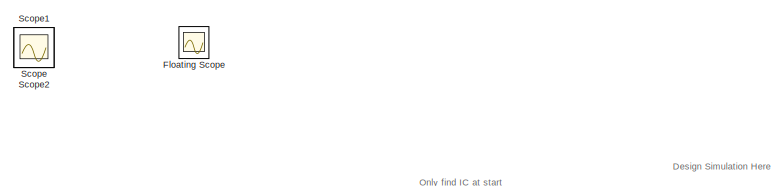
[diagram: root canvas - part 1/4, top center region]
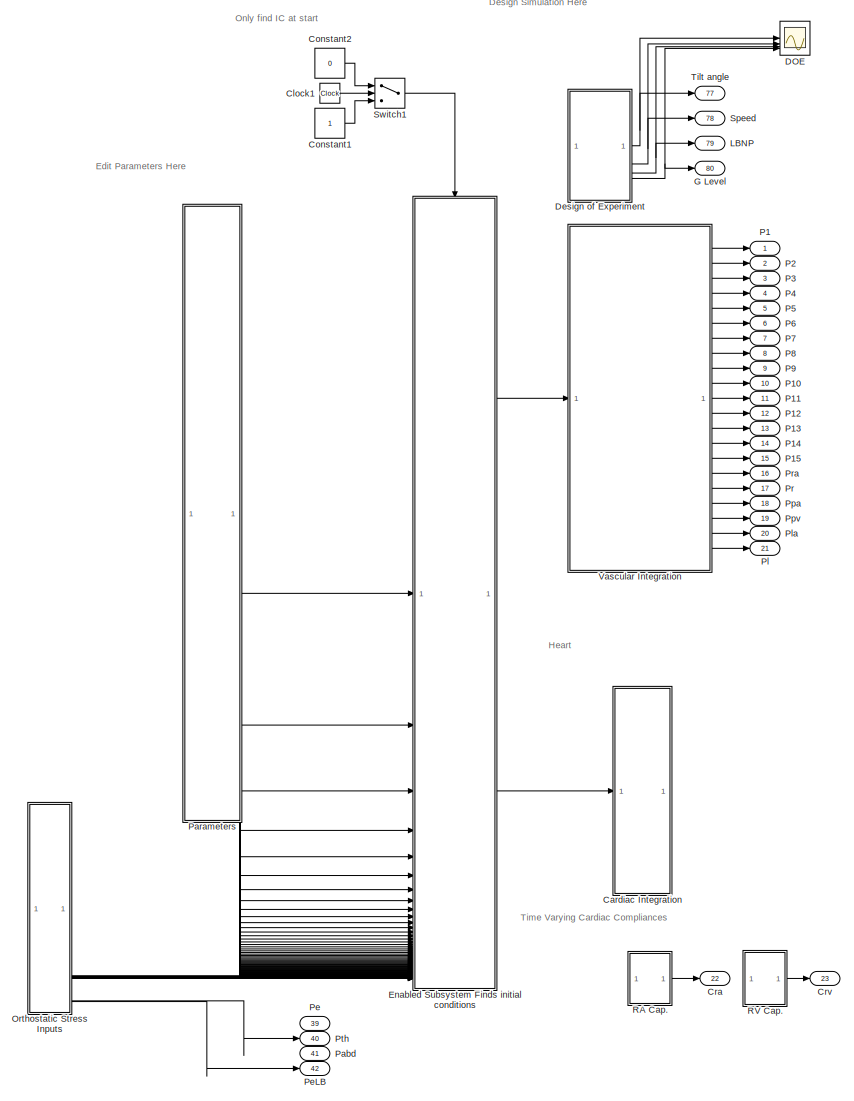
[diagram: root canvas - part 2/4, center side, full height]
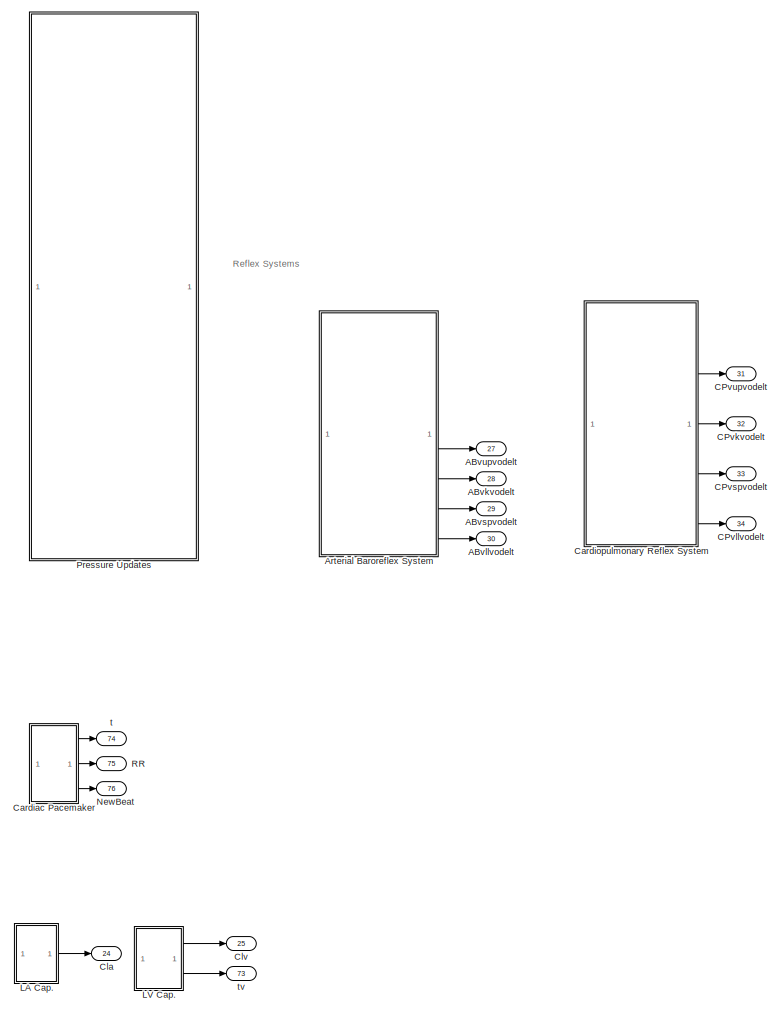
[diagram: root canvas - part 3/4, right side, full height]
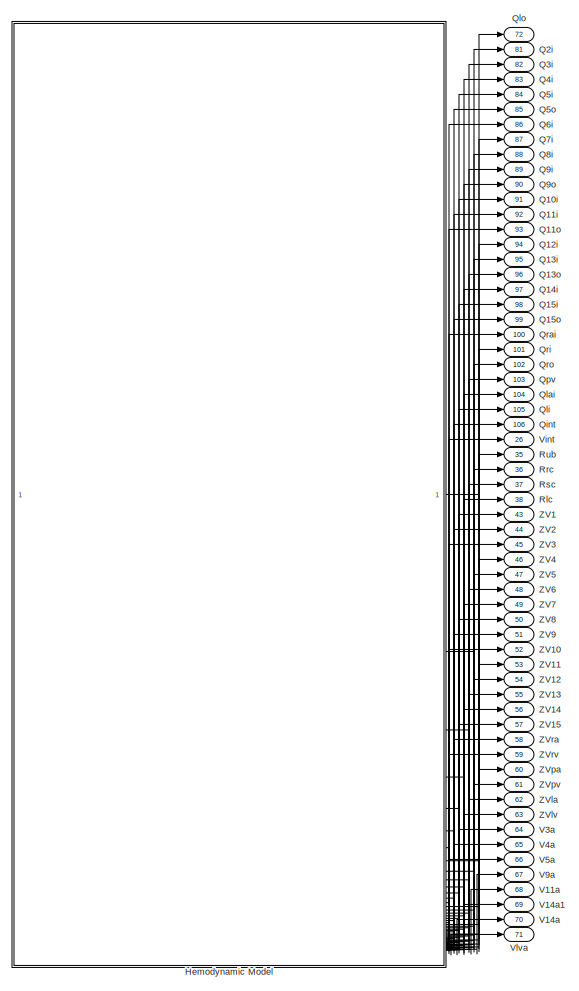
[diagram: root canvas - part 4/4, left side, full height]
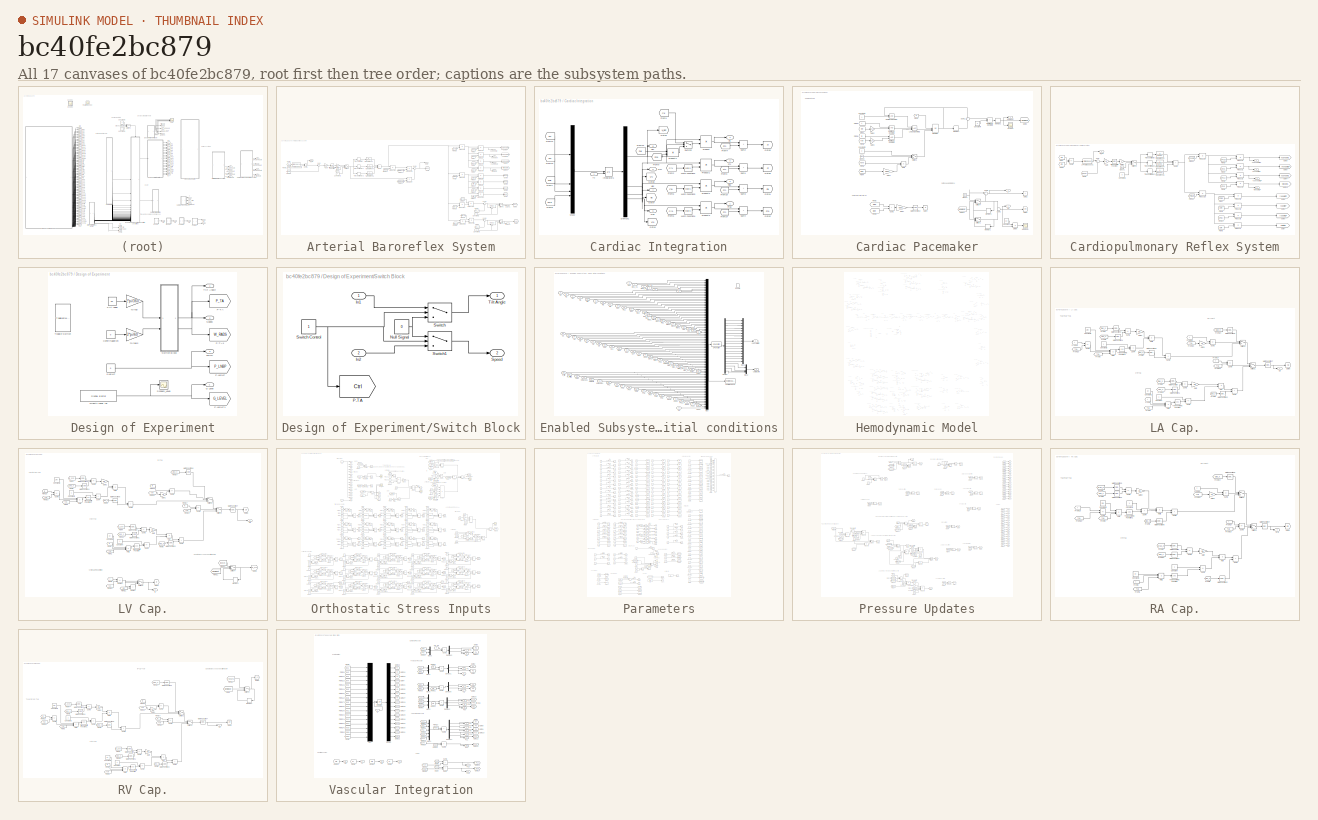
[diagram: thumbnail index - all 17 canvases of the model, root first then tree order]
MODEL slx_bc40fe2bc879
KIND model
CONFIG AbsTol = auto
CONFIG EnableMultiTasking = off
CONFIG FixedStep = 0.0005
CONFIG MaxStep = .01
CONFIG MinStep = auto
CONFIG RelTol = 1e-4
CONFIG SampleTimeConstraint = Unconstrained
CONFIG SolverName = ode23t
CONFIG StartTime = 0
CONFIG StopTime = 1431
WORKSPACE source: mxarray member
WORKSPACE test = 0
BLOCK [Outport] ABvkvodelt
  NameLocation = right
  Port = 28
BLOCK [Outport] ABvllvodelt
  NameLocation = right
  Port = 30
BLOCK [Outport] ABvspvodelt
  NameLocation = right
  Port = 29
BLOCK [Outport] ABvupvodelt
  NameLocation = right
  Port = 27
BLOCK [SubSystem] Arterial Baroreflex System
BLOCK [Clock] Arterial Baroreflex System/Clock1
BLOCK [Constant] Arterial Baroreflex System/Constant1
  Value = 0
BLOCK [Constant] Arterial Baroreflex System/Constant2
  Value = 0.3
BLOCK [Constant] Arterial Baroreflex System/Constant3
  Value = 0.01
BLOCK [From] Arterial Baroreflex System/From1
  CloseFcn = tagdialog Close
  GotoTag = Clvs_n
  TagVisibility = global
BLOCK [From] Arterial Baroreflex System/From10
  CloseFcn = tagdialog Close
  GotoTag = ABrub
  TagVisibility = global
BLOCK [From] Arterial Baroreflex System/From11
  CloseFcn = tagdialog Close
  GotoTag = ABvgain
  TagVisibility = global
BLOCK [From] Arterial Baroreflex System/From12
  CloseFcn = tagdialog Close
  GotoTag = ABrk
  TagVisibility = global
BLOCK [From] Arterial Baroreflex System/From13
  CloseFcn = tagdialog Close
  GotoTag = ABrsc
  TagVisibility = global
BLOCK [From] Arterial Baroreflex System/From14
  CloseFcn = tagdialog Close
  GotoTag = ABrll
  TagVisibility = global
BLOCK [From] Arterial Baroreflex System/From15
  CloseFcn = tagdialog Close
  GotoTag = ABlsys
  TagVisibility = global
BLOCK [From] Arterial Baroreflex System/From16
  CloseFcn = tagdialog Close
  GotoTag = ABset
  TagVisibility = global
BLOCK [From] Arterial Baroreflex System/From17
  CloseFcn = tagdialog Close
  GotoTag = ABlsys1
  TagVisibility = global
BLOCK [From] Arterial Baroreflex System/From18
  CloseFcn = tagdialog Close
  GotoTag = ABrsys
  TagVisibility = global
BLOCK [From] Arterial Baroreflex System/From19
  CloseFcn = tagdialog Close
  GotoTag = ABrsys1
  TagVisibility = global
BLOCK [From] Arterial Baroreflex System/From2
  CloseFcn = tagdialog Close
  GotoTag = ABrgain
  TagVisibility = global
BLOCK [From] Arterial Baroreflex System/From20
  CloseFcn = tagdialog Close
  GotoTag = ABRR
  TagVisibility = global
BLOCK [From] Arterial Baroreflex System/From21
  CloseFcn = tagdialog Close
  GotoTag = ABRRsym
  TagVisibility = global
BLOCK [From] Arterial Baroreflex System/From22
  CloseFcn = tagdialog Close
  GotoTag = ABRRpara
  TagVisibility = global
BLOCK [From] Arterial Baroreflex System/From3
  CloseFcn = tagdialog Close
  GotoTag = ABvub
  TagVisibility = global
BLOCK [From] Arterial Baroreflex System/From4
  CloseFcn = tagdialog Close
  GotoTag = Crvs_n
  TagVisibility = global
BLOCK [From] Arterial Baroreflex System/From5
  CloseFcn = tagdialog Close
  GotoTag = P1
  TagVisibility = global
BLOCK [From] Arterial Baroreflex System/From6
  CloseFcn = tagdialog Close
  GotoTag = Poff
  TagVisibility = global
BLOCK [From] Arterial Baroreflex System/From7
  CloseFcn = tagdialog Close
  GotoTag = ABvk
  TagVisibility = global
BLOCK [From] Arterial Baroreflex System/From8
  CloseFcn = tagdialog Close
  GotoTag = ABvsc
  TagVisibility = global
BLOCK [From] Arterial Baroreflex System/From9
  CloseFcn = tagdialog Close
  GotoTag = ABvll
  TagVisibility = global
BLOCK [Gain] Arterial Baroreflex System/Gain
  Gain = 1/18
  OutDataTypeStr = Inherit: Same as input
  ParamDataTypeStr = Inherit: Same as input
  SaturateOnIntegerOverflow = on
BLOCK [Gain] Arterial Baroreflex System/Gain1
  Gain = 18
  OutDataTypeStr = Inherit: Same as input
  ParamDataTypeStr = Inherit: Same as input
  SaturateOnIntegerOverflow = on
BLOCK [Goto] Arterial Baroreflex System/Goto
  GotoTag = idelt
  TagVisibility = global
BLOCK [Goto] Arterial Baroreflex System/Goto1
  GotoTag = lvcsys
  TagVisibility = global
BLOCK [Goto] Arterial Baroreflex System/Goto10
  GotoTag = vllvodelt
  TagVisibility = global
BLOCK [Goto] Arterial Baroreflex System/Goto2
  GotoTag = rvcsys
  TagVisibility = global
BLOCK [Goto] Arterial Baroreflex System/Goto3
  GotoTag = rkdelt
  TagVisibility = global
BLOCK [Goto] Arterial Baroreflex System/Goto4
  GotoTag = vspvodelt
  TagVisibility = global
BLOCK [Goto] Arterial Baroreflex System/Goto5
  GotoTag = rspdelt
  TagVisibility = global
BLOCK [Goto] Arterial Baroreflex System/Goto6
  GotoTag = rupdelt
  TagVisibility = global
BLOCK [Goto] Arterial Baroreflex System/Goto7
  GotoTag = rlldelt
  TagVisibility = global
BLOCK [Goto] Arterial Baroreflex System/Goto8
  GotoTag = vupvodelt
  TagVisibility = global
BLOCK [Goto] Arterial Baroreflex System/Goto9
  GotoTag = vkvodelt
  TagVisibility = global
BLOCK [StateSpace] Arterial Baroreflex System/LPF state space3
  A = A_cheb_09_1
  B = B_cheb_09_1
  C = C_cheb_09_1
  D = 0
  InitialCondition = [0 0 0 0 0 0 0 0 91/C_cheb_09_1(9)]
  NameLocation = top
BLOCK [Product] Arterial Baroreflex System/Product1
  Inputs = **
  OutDataTypeStr = Inherit: Same as first input
  SaturateOnIntegerOverflow = on
BLOCK [Product] Arterial Baroreflex System/Product10
  Inputs = **
  OutDataTypeStr = Inherit: Same as first input
  SaturateOnIntegerOverflow = on
BLOCK [Product] Arterial Baroreflex System/Product11
  Inputs = **
  OutDataTypeStr = Inherit: Same as first input
  SaturateOnIntegerOverflow = on
BLOCK [Product] Arterial Baroreflex System/Product12
  Inputs = **
  OutDataTypeStr = Inherit: Same as first input
  SaturateOnIntegerOverflow = on
BLOCK [Product] Arterial Baroreflex System/Product13
  Inputs = **
  OutDataTypeStr = Inherit: Same as first input
  SaturateOnIntegerOverflow = on
BLOCK [Product] Arterial Baroreflex System/Product14
  Inputs = **
  OutDataTypeStr = Inherit: Same as first input
  SaturateOnIntegerOverflow = on
BLOCK [Product] Arterial Baroreflex System/Product15
  Inputs = **
  OutDataTypeStr = Inherit: Same as first input
  SaturateOnIntegerOverflow = on
BLOCK [Product] Arterial Baroreflex System/Product16
  Inputs = **
  OutDataTypeStr = Inherit: Same as first input
  SaturateOnIntegerOverflow = on
BLOCK [Product] Arterial Baroreflex System/Product17
  Inputs = **
  OutDataTypeStr = Inherit: Same as first input
  SaturateOnIntegerOverflow = on
BLOCK [Product] Arterial Baroreflex System/Product2
  Inputs = **
  OutDataTypeStr = Inherit: Same as first input
  SaturateOnIntegerOverflow = on
BLOCK [Product] Arterial Baroreflex System/Product3
  Inputs = **
  OutDataTypeStr = Inherit: Same as first input
  SaturateOnIntegerOverflow = on
BLOCK [Product] Arterial Baroreflex System/Product4
  Inputs = **
  OutDataTypeStr = Inherit: Same as first input
  SaturateOnIntegerOverflow = on
BLOCK [Product] Arterial Baroreflex System/Product5
  Inputs = **
  OutDataTypeStr = Inherit: Same as first input
  SaturateOnIntegerOverflow = on
BLOCK [Product] Arterial Baroreflex System/Product6
  Inputs = **
  OutDataTypeStr = Inherit: Same as first input
  SaturateOnIntegerOverflow = on
BLOCK [Product] Arterial Baroreflex System/Product7
  Inputs = **
  OutDataTypeStr = Inherit: Same as first input
  SaturateOnIntegerOverflow = on
BLOCK [Product] Arterial Baroreflex System/Product8
  Inputs = **
  OutDataTypeStr = Inherit: Same as first input
  SaturateOnIntegerOverflow = on
BLOCK [Product] Arterial Baroreflex System/Product9
  Inputs = **
  OutDataTypeStr = Inherit: Same as first input
  SaturateOnIntegerOverflow = on
BLOCK [Sum] Arterial Baroreflex System/Sum
  InputSameDT = on
  Inputs = |+-
  OutDataTypeStr = Inherit: Same as first input
  SaturateOnIntegerOverflow = on
BLOCK [Sum] Arterial Baroreflex System/Sum1
  InputSameDT = on
  Inputs = |++
  OutDataTypeStr = Inherit: Same as first input
  SaturateOnIntegerOverflow = on
BLOCK [Sum] Arterial Baroreflex System/Sum11
  InputSameDT = on
  Inputs = |+-
  OutDataTypeStr = Inherit: Same as first input
  SaturateOnIntegerOverflow = on
BLOCK [Sum] Arterial Baroreflex System/Sum12
  InputSameDT = on
  Inputs = |+-
  OutDataTypeStr = Inherit: Same as first input
  SaturateOnIntegerOverflow = on
BLOCK [Sum] Arterial Baroreflex System/Sum2
  InputSameDT = on
  Inputs = |++
  OutDataTypeStr = Inherit: Same as first input
  SaturateOnIntegerOverflow = on
BLOCK [Sum] Arterial Baroreflex System/Sum3
  InputSameDT = on
  Inputs = |++
  OutDataTypeStr = Inherit: Same as first input
  SaturateOnIntegerOverflow = on
BLOCK [Sum] Arterial Baroreflex System/Sum4
  IconShape = rectangular
  InputSameDT = on
  Inputs = +++
  OutDataTypeStr = Inherit: Same as first input
  SaturateOnIntegerOverflow = on
BLOCK [Sum] Arterial Baroreflex System/Sum5
  IconShape = rectangular
  InputSameDT = on
  OutDataTypeStr = Inherit: Same as first input
  SaturateOnIntegerOverflow = on
BLOCK [Switch] Arterial Baroreflex System/Switch1
  Threshold = 15
BLOCK [Switch] Arterial Baroreflex System/Switch2
  Criteria = u2 > Threshold
BLOCK [Switch] Arterial Baroreflex System/Switch3
  Criteria = u2 > Threshold
BLOCK [TransferFcn] Arterial Baroreflex System/Transfer Fcn2
  Denominator = [75 0 0]
  Numerator = -2
BLOCK [TransferFcn] Arterial Baroreflex System/Transfer Fcn4
  Denominator = [42 0 0 ]
  Numerator = 1
BLOCK [TransferFcn] Arterial Baroreflex System/Transfer Fcn5
  Denominator = [350 0 0 ]
  Numerator = 1
BLOCK [TransportDelay] Arterial Baroreflex System/Transport Delay
  DelayTime = 5
BLOCK [TransportDelay] Arterial Baroreflex System/Transport Delay1
  DelayTime = 2
BLOCK [TransportDelay] Arterial Baroreflex System/Transport Delay2
  BufferSize = 6144
  DelayTime = 30
BLOCK [Trigonometry] Arterial Baroreflex System/Trigonometric Function
  Operator = atan
BLOCK [Outport] Arterial Baroreflex System/dHR
  Port = 2
BLOCK [Outport] Arterial Baroreflex System/err_inp
  NameLocation = right
BLOCK [Outport] Arterial Baroreflex System/lvcsys
  NameLocation = right
  Port = 3
BLOCK [Outport] Arterial Baroreflex System/rvcsys
  NameLocation = right
  Port = 4
BLOCK [Outport] Arterial Baroreflex System/vkvodelt
  NameLocation = right
  Port = 6
BLOCK [Outport] Arterial Baroreflex System/vllvodelt
  NameLocation = right
  Port = 8
BLOCK [Outport] Arterial Baroreflex System/vspvodelt
  NameLocation = right
  Port = 7
BLOCK [Outport] Arterial Baroreflex System/vupvodelt
  NameLocation = right
  Port = 5
BLOCK [Outport] CPvkvodelt
  NameLocation = right
  Port = 32
BLOCK [Outport] CPvllvodelt
  NameLocation = right
  Port = 34
BLOCK [Outport] CPvspvodelt
  NameLocation = right
  Port = 33
BLOCK [Outport] CPvupvodelt
  NameLocation = right
  Port = 31
BLOCK [SubSystem] Cardiac Integration
BLOCK [Demux] Cardiac Integration/Demux1
  DisplayOption = none
BLOCK [From] Cardiac Integration/From1
  CloseFcn = tagdialog Close
  GotoTag = Clv
  TagVisibility = global
BLOCK [From] Cardiac Integration/From10
  CloseFcn = tagdialog Close
  GotoTag = Pth
  TagVisibility = global
BLOCK [From] Cardiac Integration/From11
  CloseFcn = tagdialog Close
  GotoTag = dVl
  TagVisibility = global
BLOCK [From] Cardiac Integration/From12
  CloseFcn = tagdialog Close
  GotoTag = dVr
  TagVisibility = global
BLOCK [From] Cardiac Integration/From13
  CloseFcn = tagdialog Close
  GotoTag = ZVlv
  TagVisibility = global
BLOCK [From] Cardiac Integration/From14
  CloseFcn = tagdialog Close
  GotoTag = Pth
  TagVisibility = global
BLOCK [From] Cardiac Integration/From2
  CloseFcn = tagdialog Close
  GotoTag = Crv
  TagVisibility = global
BLOCK [From] Cardiac Integration/From3
  CloseFcn = tagdialog Close
  GotoTag = Pth
  TagVisibility = global
BLOCK [From] Cardiac Integration/From4
  CloseFcn = tagdialog Close
  GotoTag = Pth
  TagVisibility = global
BLOCK [From] Cardiac Integration/From5
  CloseFcn = tagdialog Close
  GotoTag = Cla
  TagVisibility = global
BLOCK [From] Cardiac Integration/From6
  CloseFcn = tagdialog Close
  GotoTag = Cra
  TagVisibility = global
BLOCK [From] Cardiac Integration/From7
  CloseFcn = tagdialog Close
  GotoTag = dVla
  TagVisibility = global
BLOCK [From] Cardiac Integration/From8
  CloseFcn = tagdialog Close
  GotoTag = dVra
  TagVisibility = global
BLOCK [From] Cardiac Integration/From9
  CloseFcn = tagdialog Close
  GotoTag = Pcol
  TagVisibility = global
BLOCK [Goto] Cardiac Integration/Goto1
  GotoTag = Pla
  TagVisibility = global
BLOCK [Goto] Cardiac Integration/Goto2
  GotoTag = Pra
  TagVisibility = global
BLOCK [Goto] Cardiac Integration/Goto3
  GotoTag = Vl_dist
  TagVisibility = global
BLOCK [Goto] Cardiac Integration/Goto4
  GotoTag = Vra
  TagVisibility = global
BLOCK [Goto] Cardiac Integration/Goto5
  GotoTag = Pl
  TagVisibility = global
BLOCK [Goto] Cardiac Integration/Goto6
  GotoTag = Pr
  TagVisibility = global
BLOCK [Goto] Cardiac Integration/Goto7
  GotoTag = Vla
  TagVisibility = global
BLOCK [Goto] Cardiac Integration/Goto8
  GotoTag = Vrv
  TagVisibility = global
BLOCK [Inport] Cardiac Integration/IC
BLOCK [Integrator] Cardiac Integration/Integrator1
  InitialCondition = [220.105 68.078]
  InitialConditionSource = external
BLOCK [Math] Cardiac Integration/Math Function1
  Operator = reciprocal
  SignedPower = on
BLOCK [Math] Cardiac Integration/Math Function3
  Operator = reciprocal
  SignedPower = on
BLOCK [Math] Cardiac Integration/Math Function4
  Operator = reciprocal
  SignedPower = on
BLOCK [Mux] Cardiac Integration/Mux2
  DisplayOption = bar
BLOCK [Outport] Cardiac Integration/Plac
  NameLocation = right
  Port = 3
BLOCK [Outport] Cardiac Integration/Plc
  NameLocation = right
  Port = 4
BLOCK [Outport] Cardiac Integration/Prac
  NameLocation = right
BLOCK [Outport] Cardiac Integration/Prc
  NameLocation = right
  Port = 2
BLOCK [Product] Cardiac Integration/Product
  Inputs = */
  OutDataTypeStr = Inherit: Same as first input
  SaturateOnIntegerOverflow = on
BLOCK [Product] Cardiac Integration/Product1
  OutDataTypeStr = Inherit: Same as first input
  SaturateOnIntegerOverflow = on
BLOCK [Product] Cardiac Integration/Product2
  OutDataTypeStr = Inherit: Same as first input
  SaturateOnIntegerOverflow = on
BLOCK [Product] Cardiac Integration/Product3
  OutDataTypeStr = Inherit: Same as first input
  SaturateOnIntegerOverflow = on
BLOCK [Product] Cardiac Integration/Product4
  Inputs = */
  OutDataTypeStr = Inherit: Same as first input
  SaturateOnIntegerOverflow = on
BLOCK [Sum] Cardiac Integration/Sum1
  IconShape = rectangular
  InputSameDT = on
  OutDataTypeStr = Inherit: Same as first input
  SaturateOnIntegerOverflow = on
BLOCK [Sum] Cardiac Integration/Sum2
  IconShape = rectangular
  InputSameDT = on
  OutDataTypeStr = Inherit: Same as first input
  SaturateOnIntegerOverflow = on
BLOCK [Sum] Cardiac Integration/Sum3
  IconShape = rectangular
  InputSameDT = on
  OutDataTypeStr = Inherit: Same as first input
  SaturateOnIntegerOverflow = on
BLOCK [Sum] Cardiac Integration/Sum4
  IconShape = rectangular
  InputSameDT = on
  OutDataTypeStr = Inherit: Same as first input
  SaturateOnIntegerOverflow = on
BLOCK [Switch] Cardiac Integration/Switch2
  Criteria = u2 > Threshold
BLOCK [Outport] Cardiac Integration/Vlac
  NameLocation = right
  Port = 7
BLOCK [Outport] Cardiac Integration/Vlvc
  NameLocation = right
  Port = 8
BLOCK [Outport] Cardiac Integration/Vrac
  NameLocation = right
  Port = 5
BLOCK [Outport] Cardiac Integration/Vrvc
  NameLocation = right
  Port = 6
BLOCK [SubSystem] Cardiac Pacemaker
BLOCK [Clock] Cardiac Pacemaker/Clock1
BLOCK [Clock] Cardiac Pacemaker/Clock2
BLOCK [Constant] Cardiac Pacemaker/Constant
  Value = 60
BLOCK [Constant] Cardiac Pacemaker/Constant1
BLOCK [Constant] Cardiac Pacemaker/Constant2
  Value = 0
BLOCK [Constant] Cardiac Pacemaker/Constant4
  Value = 0
BLOCK [Product] Cardiac Pacemaker/Divide
  Inputs = */
BLOCK [From] Cardiac Pacemaker/From1
  CloseFcn = tagdialog Close
  GotoTag = m
  TagVisibility = global
BLOCK [From] Cardiac Pacemaker/From11
  CloseFcn = tagdialog Close
  GotoTag = NewBeat
  TagVisibility = global
BLOCK [From] Cardiac Pacemaker/From2
  CloseFcn = tagdialog Close
  GotoTag = RR0
  TagVisibility = global
BLOCK [From] Cardiac Pacemaker/From3
  CloseFcn = tagdialog Close
  GotoTag = idelt
  TagVisibility = global
BLOCK [From] Cardiac Pacemaker/From4
  CloseFcn = tagdialog Close
  GotoTag = RR0
  TagVisibility = global
BLOCK [From] Cardiac Pacemaker/From5
  CloseFcn = tagdialog Close
  GotoTag = Tav0
  TagVisibility = global
BLOCK [From] Cardiac Pacemaker/From6
  CloseFcn = tagdialog Close
  GotoTag = t
  TagVisibility = global
BLOCK [From] Cardiac Pacemaker/From7
  CloseFcn = tagdialog Close
  GotoTag = RR
  TagVisibility = global
BLOCK [From] Cardiac Pacemaker/From8
  CloseFcn = tagdialog Close
  GotoTag = Tslv
  TagVisibility = global
BLOCK [From] Cardiac Pacemaker/From9
  CloseFcn = tagdialog Close
  GotoTag = tv
  TagVisibility = global
BLOCK [Gain] Cardiac Pacemaker/Gain1
  Gain = 0.001
BLOCK [Gain] Cardiac Pacemaker/Gain2
  Gain = 0.2
BLOCK [Gain] Cardiac Pacemaker/Gain3
  Gain = 1.5
BLOCK [Gain] Cardiac Pacemaker/Gain4
  Gain = 0.001
BLOCK [Goto] Cardiac Pacemaker/Goto1
  GotoTag = RR
  TagVisibility = global
BLOCK [Goto] Cardiac Pacemaker/Goto2
  GotoTag = t
  TagVisibility = global
BLOCK [Goto] Cardiac Pacemaker/Goto3
  GotoTag = NewBeat
  TagVisibility = global
BLOCK [Goto] Cardiac Pacemaker/Goto4
  GotoTag = m
  TagVisibility = global
BLOCK [Scope] Cardiac Pacemaker/HRVisual
  Floating = off
  NumInputPorts = 1
  ScopeSpecificationString = Simulink.scopes.TimeScopeBlockCfg('CurrentConfiguration', extmgr.ConfigurationSet(extmgr.Configuration('Core','General UI',true),extmgr.Configuration('Core','Source UI',true),extmgr.Configuration('Sources','WiredSimulink',true,'DataLoggingVariableName','ScopeData12','DataLoggingSaveFormat','Array','DataLoggingDecimation','1','DataLoggingDecimateData',true),extmgr.Configuration('Visuals','Time Doma...<+1683ch>
BLOCK [Integrator] Cardiac Pacemaker/Integrator
  ExternalReset = level
  InitialConditionSource = external
BLOCK [Logic] Cardiac Pacemaker/Logical Operator1
  Inputs = 3
  OutDataTypeStr = boolean
BLOCK [Math] Cardiac Pacemaker/Math Function2
  Operator = reciprocal
  SignedPower = on
BLOCK [Memory] Cardiac Pacemaker/Memory1
  InheritSampleTime = on
  InitialCondition = -0.12*sqrt(6/7)-6/7
BLOCK [Memory] Cardiac Pacemaker/Memory2
  InheritSampleTime = on
BLOCK [Memory] Cardiac Pacemaker/Memory3
  InheritSampleTime = on
  InitialCondition = -0.12*sqrt(6/7)
BLOCK [Memory] Cardiac Pacemaker/Memory4
  InheritSampleTime = on
BLOCK [Outport] Cardiac Pacemaker/NewBeat
  NameLocation = right
  Port = 3
BLOCK [Outport] Cardiac Pacemaker/RR
  NameLocation = right
  Port = 2
BLOCK [RelationalOperator] Cardiac Pacemaker/Relational Operator
  InputSameDT = off
  NameLocation = top
  OutDataTypeStr = boolean
BLOCK [RelationalOperator] Cardiac Pacemaker/Relational Operator1
  InputSameDT = off
  OutDataTypeStr = boolean
BLOCK [RelationalOperator] Cardiac Pacemaker/Relational Operator2
  InputSameDT = off
  OutDataTypeStr = boolean
BLOCK [RelationalOperator] Cardiac Pacemaker/Relational Operator3
  InputSameDT = off
  Operator = <
  OutDataTypeStr = float('double')
BLOCK [Scope] Cardiac Pacemaker/Scope1
  Floating = off
  NumInputPorts = 1
  ScopeSpecificationString = Simulink.scopes.TimeScopeBlockCfg('CurrentConfiguration', extmgr.ConfigurationSet(extmgr.Configuration('Core','General UI',true),extmgr.Configuration('Core','Source UI',true),extmgr.Configuration('Sources','WiredSimulink',true,'DataLoggingVariableName','ScopeData17','DataLoggingSaveFormat','Array','DataLoggingDecimation','1','DataLoggingDecimateData',true),extmgr.Configuration('Visuals','Time Doma...<+1680ch>
BLOCK [Sum] Cardiac Pacemaker/Sum1
  InputSameDT = on
  Inputs = +-
  OutDataTypeStr = Inherit: Same as first input
  SaturateOnIntegerOverflow = on
BLOCK [Sum] Cardiac Pacemaker/Sum11
  InputSameDT = on
  Inputs = +-
  OutDataTypeStr = Inherit: Same as first input
  SaturateOnIntegerOverflow = on
BLOCK [Sum] Cardiac Pacemaker/Sum2
  IconShape = rectangular
  InputSameDT = on
  OutDataTypeStr = Inherit: Same as first input
  SaturateOnIntegerOverflow = on
BLOCK [Sum] Cardiac Pacemaker/Sum3
  InputSameDT = on
  Inputs = +-
  OutDataTypeStr = Inherit: Same as first input
  SaturateOnIntegerOverflow = on
BLOCK [Switch] Cardiac Pacemaker/Switch1
  Threshold = 0.5
BLOCK [Switch] Cardiac Pacemaker/Switch2
  Criteria = u2 > Threshold
BLOCK [Switch] Cardiac Pacemaker/Switch4
  Criteria = u2 > Threshold
  Threshold = 0.5
BLOCK [Product] Cardiac Pacemaker/mult1
  Inputs = */
BLOCK [Outport] Cardiac Pacemaker/t
  NameLocation = right
BLOCK [SubSystem] Cardiopulmonary Reflex System
BLOCK [Clock] Cardiopulmonary Reflex System/Clock1
BLOCK [Constant] Cardiopulmonary Reflex System/Constant1
  Value = 0
BLOCK [From] Cardiopulmonary Reflex System/From
  CloseFcn = tagdialog Close
  GotoTag = Pra
  TagVisibility = global
BLOCK [From] Cardiopulmonary Reflex System/From1
  CloseFcn = tagdialog Close
  GotoTag = CPset
  TagVisibility = global
BLOCK [From] Cardiopulmonary Reflex System/From10
  CloseFcn = tagdialog Close
  GotoTag = CPrsc
  TagVisibility = global
BLOCK [From] Cardiopulmonary Reflex System/From11
  CloseFcn = tagdialog Close
  GotoTag = CPvgain
  TagVisibility = global
BLOCK [From] Cardiopulmonary Reflex System/From12
  CloseFcn = tagdialog Close
  GotoTag = CPrgain
  TagVisibility = global
BLOCK [From] Cardiopulmonary Reflex System/From2
  CloseFcn = tagdialog Close
  GotoTag = Pth
  TagVisibility = global
BLOCK [From] Cardiopulmonary Reflex System/From3
  CloseFcn = tagdialog Close
  GotoTag = CPvub
  TagVisibility = global
BLOCK [From] Cardiopulmonary Reflex System/From4
  CloseFcn = tagdialog Close
  GotoTag = CPvk
  TagVisibility = global
BLOCK [From] Cardiopulmonary Reflex System/From5
  CloseFcn = tagdialog Close
  GotoTag = CPvsc
  TagVisibility = global
BLOCK [From] Cardiopulmonary Reflex System/From6
  CloseFcn = tagdialog Close
  GotoTag = CPvll
  TagVisibility = global
BLOCK [From] Cardiopulmonary Reflex System/From7
  CloseFcn = tagdialog Close
  GotoTag = CPrub
  TagVisibility = global
BLOCK [From] Cardiopulmonary Reflex System/From8
  CloseFcn = tagdialog Close
  GotoTag = CPrk
  TagVisibility = global
BLOCK [From] Cardiopulmonary Reflex System/From9
  CloseFcn = tagdialog Close
  GotoTag = CPrll
  TagVisibility = global
BLOCK [Gain] Cardiopulmonary Reflex System/Gain
  Gain = 1/5
  OutDataTypeStr = Inherit: Same as input
  ParamDataTypeStr = Inherit: Same as input
  SaturateOnIntegerOverflow = on
BLOCK [Gain] Cardiopulmonary Reflex System/Gain1
  Gain = 5
  OutDataTypeStr = Inherit: Same as input
  ParamDataTypeStr = Inherit: Same as input
  SaturateOnIntegerOverflow = on
BLOCK [Goto] Cardiopulmonary Reflex System/Goto10
  GotoTag = vllvodeltCP
  TagVisibility = global
BLOCK [Goto] Cardiopulmonary Reflex System/Goto3
  GotoTag = rkdeltCP
  TagVisibility = global
BLOCK [Goto] Cardiopulmonary Reflex System/Goto4
  GotoTag = vspvodeltCP
  TagVisibility = global
BLOCK [Goto] Cardiopulmonary Reflex System/Goto5
  GotoTag = rspdeltCP
  TagVisibility = global
BLOCK [Goto] Cardiopulmonary Reflex System/Goto6
  GotoTag = rupdeltCP
  TagVisibility = global
BLOCK [Goto] Cardiopulmonary Reflex System/Goto7
  GotoTag = rlldeltCP
  TagVisibility = global
BLOCK [Goto] Cardiopulmonary Reflex System/Goto8
  GotoTag = vupvodeltCP
  TagVisibility = global
BLOCK [Goto] Cardiopulmonary Reflex System/Goto9
  GotoTag = vkvodeltCP
  TagVisibility = global
BLOCK [StateSpace] Cardiopulmonary Reflex System/LPF state space1
  A = A_cheb_09_1
  B = B_cheb_09_1
  C = C_cheb_09_1
  D = 0
  InitialCondition = [0 0 0 0 0 0 0 0 8.3/C_cheb_09_1(9)]
BLOCK [Product] Cardiopulmonary Reflex System/Product1
  Inputs = **
  OutDataTypeStr = Inherit: Same as first input
  SaturateOnIntegerOverflow = on
BLOCK [Product] Cardiopulmonary Reflex System/Product10
  Inputs = **
  OutDataTypeStr = Inherit: Same as first input
  SaturateOnIntegerOverflow = on
BLOCK [Product] Cardiopulmonary Reflex System/Product2
  Inputs = **
  OutDataTypeStr = Inherit: Same as first input
  SaturateOnIntegerOverflow = on
BLOCK [Product] Cardiopulmonary Reflex System/Product3
  Inputs = **
  OutDataTypeStr = Inherit: Same as first input
  SaturateOnIntegerOverflow = on
BLOCK [Product] Cardiopulmonary Reflex System/Product4
  Inputs = **
  OutDataTypeStr = Inherit: Same as first input
  SaturateOnIntegerOverflow = on
BLOCK [Product] Cardiopulmonary Reflex System/Product5
  Inputs = **
  OutDataTypeStr = Inherit: Same as first input
  SaturateOnIntegerOverflow = on
BLOCK [Product] Cardiopulmonary Reflex System/Product6
  Inputs = **
  OutDataTypeStr = Inherit: Same as first input
  SaturateOnIntegerOverflow = on
BLOCK [Product] Cardiopulmonary Reflex System/Product7
  Inputs = **
  OutDataTypeStr = Inherit: Same as first input
  SaturateOnIntegerOverflow = on
BLOCK [Product] Cardiopulmonary Reflex System/Product8
  Inputs = **
  OutDataTypeStr = Inherit: Same as first input
  SaturateOnIntegerOverflow = on
BLOCK [Product] Cardiopulmonary Reflex System/Product9
  Inputs = **
  OutDataTypeStr = Inherit: Same as first input
  SaturateOnIntegerOverflow = on
BLOCK [Sum] Cardiopulmonary Reflex System/Sum
  InputSameDT = on
  Inputs = |+-
  OutDataTypeStr = Inherit: Same as first input
  SaturateOnIntegerOverflow = on
BLOCK [Sum] Cardiopulmonary Reflex System/Sum2
  IconShape = rectangular
  InputSameDT = on
  Inputs = +-
  OutDataTypeStr = Inherit: Same as first input
  SaturateOnIntegerOverflow = on
BLOCK [Sum] Cardiopulmonary Reflex System/Sum4
  IconShape = rectangular
  InputSameDT = on
  Inputs = +++
  OutDataTypeStr = Inherit: Same as first input
  SaturateOnIntegerOverflow = on
BLOCK [Switch] Cardiopulmonary Reflex System/Switch1
  Threshold = 15
BLOCK [TransferFcn] Cardiopulmonary Reflex System/Transfer Fcn2
  Denominator = [75 0 0]
  Numerator = -2
BLOCK [TransferFcn] Cardiopulmonary Reflex System/Transfer Fcn4
  Denominator = [42 0 0 ]
  Numerator = 1
BLOCK [TransferFcn] Cardiopulmonary Reflex System/Transfer Fcn5
  Denominator = [350 0 0 ]
  Numerator = 1
BLOCK [TransportDelay] Cardiopulmonary Reflex System/Transport Delay
  DelayTime = 5
BLOCK [TransportDelay] Cardiopulmonary Reflex System/Transport Delay1
  DelayTime = 2
BLOCK [TransportDelay] Cardiopulmonary Reflex System/Transport Delay2
  BufferSize = 6144
  DelayTime = 30
BLOCK [Trigonometry] Cardiopulmonary Reflex System/Trigonometric Function
  Operator = atan
BLOCK [Outport] Cardiopulmonary Reflex System/err_inp
BLOCK [Outport] Cardiopulmonary Reflex System/vkvodeltCP
  NameLocation = right
  Port = 3
BLOCK [Outport] Cardiopulmonary Reflex System/vllvodeltCP
  NameLocation = right
  Port = 5
BLOCK [Outport] Cardiopulmonary Reflex System/vspvodeltCP
  NameLocation = right
  Port = 4
BLOCK [Outport] Cardiopulmonary Reflex System/vupvodeltCP
  NameLocation = right
  Port = 2
BLOCK [Outport] Cla
  Port = 24
BLOCK [Clock] Clock1
BLOCK [Outport] Clv
  NameLocation = right
  Port = 25
BLOCK [Constant] Constant1
BLOCK [Constant] Constant2
  Value = 0
BLOCK [Outport] Cra
  Port = 22
BLOCK [Outport] Crv
  Port = 23
BLOCK [Scope] DOE
  Floating = off
  NumInputPorts = 4
  ScopeSpecificationString = Simulink.scopes.TimeScopeBlockCfg('CurrentConfiguration', extmgr.ConfigurationSet(extmgr.Configuration('Core','General UI',true),extmgr.Configuration('Core','Source UI',true),extmgr.Configuration('Sources','WiredSimulink',true,'DataLoggingVariableName','ScopeData1','DataLoggingSaveFormat','Array','DataLoggingDecimation','1','DataLoggingDecimateData',true),extmgr.Configuration('Visuals','Time Domai...<+3730ch>
BLOCK [SubSystem] Design of Experiment
BLOCK [Constant] Design of Experiment/0 LBNP
  Value = 0
BLOCK [Constant] Design of Experiment/Centrifugation
  Value = 0
BLOCK [Outport] Design of Experiment/G Level
  Port = 4
BLOCK [Reference] Design of Experiment/Gravity Level (g)  REF=SignalEditorBlockLib/Signal Editor
  SourceBlock = SignalEditorBlockLib/Signal Editor
  SourceType = SignalEditor
  UserDataPersistent = on
BLOCK [Outport] Design of Experiment/LBNP
  Port = 3
BLOCK [Goto] Design of Experiment/P-LBNP
  GotoTag = P_LNBP
  TagVisibility = global
BLOCK [Goto] Design of Experiment/P-LBNP1
  GotoTag = G_LEVEL
  TagVisibility = global
BLOCK [Goto] Design of Experiment/P-TA
  GotoTag = P_TA
  TagVisibility = global
BLOCK [Goto] Design of Experiment/P-TA1
  GotoTag = W_RADS
  TagVisibility = global
BLOCK [Scope] Design of Experiment/ScopeG_Level
  Floating = off
  NumInputPorts = 1
  ScopeSpecificationString = Simulink.scopes.TimeScopeBlockCfg('CurrentConfiguration', extmgr.ConfigurationSet(extmgr.Configuration('Core','General UI',true),extmgr.Configuration('Core','Source UI',true),extmgr.Configuration('Sources','WiredSimulink',true,'DataLoggingVariableName','ScopeData1'),extmgr.Configuration('Visuals','Time Domain',true,'SerializedDisplays',{struct('MinYLimReal','-0.225','MaxYLimReal','2.025','YLabelRe...<+1436ch>
BLOCK [Outport] Design of Experiment/Speed
  Port = 2
BLOCK [SubSystem] Design of Experiment/Switch Block
BLOCK [Inport] Design of Experiment/Switch Block/In1
BLOCK [Inport] Design of Experiment/Switch Block/In2
  Port = 2
BLOCK [Constant] Design of Experiment/Switch Block/Null Signal
  Value = 0
BLOCK [Goto] Design of Experiment/Switch Block/P-TA
  GotoTag = Ctrl
  TagVisibility = global
BLOCK [Outport] Design of Experiment/Switch Block/Speed
  Port = 2
BLOCK [Switch] Design of Experiment/Switch Block/Switch
  Criteria = u2 > Threshold
  InputSameDT = off
  SaturateOnIntegerOverflow = off
  Threshold = 0.5
BLOCK [Constant] Design of Experiment/Switch Block/Switch Control
BLOCK [Switch] Design of Experiment/Switch Block/Switch1
  Criteria = u2 > Threshold
  InputSameDT = off
  SaturateOnIntegerOverflow = off
  Threshold = 0.5
BLOCK [Outport] Design of Experiment/Switch Block/Tilt Angle
BLOCK [Constant] Design of Experiment/Tilt (deg)
  Value = 60
BLOCK [Outport] Design of Experiment/Tilt Angle
BLOCK [ToggleSwitchBlock] Design of Experiment/Toggle Switch
  LabelPosition = Hide
BLOCK [Gain] Design of Experiment/to rad
  Gain = 2*pi/360
  OutDataTypeStr = Inherit: Same as input
  ParamDataTypeStr = Inherit: Same as input
  SaturateOnIntegerOverflow = on
BLOCK [Gain] Design of Experiment/to rad//s
  Gain = 2*pi/60
  OutDataTypeStr = Inherit: Same as input
  ParamDataTypeStr = Inherit: Same as input
  SaturateOnIntegerOverflow = on
BLOCK [SubSystem] Enabled Subsystem Finds initial conditions
  TreatAsAtomicUnit = on
BLOCK [Inport] Enabled Subsystem Finds initial conditions/C.1
  Port = 30
BLOCK [Inport] Enabled Subsystem Finds initial conditions/C.10
  Port = 39
BLOCK [Inport] Enabled Subsystem Finds initial conditions/C.11
  Port = 40
BLOCK [Inport] Enabled Subsystem Finds initial conditions/C.12
  Port = 41
BLOCK [Inport] Enabled Subsystem Finds initial conditions/C.13
  Port = 42
BLOCK [Inport] Enabled Subsystem Finds initial conditions/C.14
  Port = 43
BLOCK [Inport] Enabled Subsystem Finds initial conditions/C.15
  Port = 44
BLOCK [Inport] Enabled Subsystem Finds initial conditions/C.2
  Port = 31
BLOCK [Inport] Enabled Subsystem Finds initial conditions/C.3
  Port = 32
BLOCK [Inport] Enabled Subsystem Finds initial conditions/C.4
  Port = 33
BLOCK [Inport] Enabled Subsystem Finds initial conditions/C.5
  Port = 34
BLOCK [Inport] Enabled Subsystem Finds initial conditions/C.6
  Port = 35
BLOCK [Inport] Enabled Subsystem Finds initial conditions/C.7
  Port = 36
BLOCK [Inport] Enabled Subsystem Finds initial conditions/C.8
  Port = 37
BLOCK [Inport] Enabled Subsystem Finds initial conditions/C.9
  Port = 38
BLOCK [Inport] Enabled Subsystem Finds initial conditions/Clad_n1
  Port = 50
BLOCK [Inport] Enabled Subsystem Finds initial conditions/Clas_n1
  Port = 51
BLOCK [Inport] Enabled Subsystem Finds initial conditions/Clvd_n1
  Port = 3
BLOCK [Inport] Enabled Subsystem Finds initial conditions/Clvs_n1
  Port = 2
BLOCK [Inport] Enabled Subsystem Finds initial conditions/Cpa1
  Port = 45
BLOCK [Inport] Enabled Subsystem Finds initial conditions/Cpv1
  Port = 46
BLOCK [Inport] Enabled Subsystem Finds initial conditions/Crad_n1
  Port = 52
BLOCK [Inport] Enabled Subsystem Finds initial conditions/Cras_n1
  Port = 53
BLOCK [Inport] Enabled Subsystem Finds initial conditions/Crvd_n1
  Port = 5
BLOCK [Inport] Enabled Subsystem Finds initial conditions/Crvs_n1
  Port = 4
BLOCK [Demux] Enabled Subsystem Finds initial conditions/Demux
  DisplayOption = none
  Outputs = 21
BLOCK [EnablePort] Enabled Subsystem Finds initial conditions/Enable
  ShowOutputPort = on
BLOCK [Mux] Enabled Subsystem Finds initial conditions/Mux
  DisplayOption = bar
  Inputs = 77
BLOCK [Mux] Enabled Subsystem Finds initial conditions/Mux1
  DisplayOption = bar
  Inputs = 17
BLOCK [Mux] Enabled Subsystem Finds initial conditions/Mux2
  DisplayOption = bar
BLOCK [Inport] Enabled Subsystem Finds initial conditions/Pabd1
  Port = 49
BLOCK [Inport] Enabled Subsystem Finds initial conditions/Pe1
  Port = 48
BLOCK [Inport] Enabled Subsystem Finds initial conditions/Ph.1
  Port = 62
BLOCK [Inport] Enabled Subsystem Finds initial conditions/Ph.10
  Port = 71
BLOCK [Inport] Enabled Subsystem Finds initial conditions/Ph.11
  Port = 72
BLOCK [Inport] Enabled Subsystem Finds initial conditions/Ph.12
  Port = 73
BLOCK [Inport] Enabled Subsystem Finds initial conditions/Ph.13
  Port = 74
BLOCK [Inport] Enabled Subsystem Finds initial conditions/Ph.14
  Port = 75
BLOCK [Inport] Enabled Subsystem Finds initial conditions/Ph.15
  Port = 76
BLOCK [Inport] Enabled Subsystem Finds initial conditions/Ph.2
  Port = 63
BLOCK [Inport] Enabled Subsystem Finds initial conditions/Ph.3
  Port = 64
BLOCK [Inport] Enabled Subsystem Finds initial conditions/Ph.4
  Port = 65
BLOCK [Inport] Enabled Subsystem Finds initial conditions/Ph.5
  Port = 66
BLOCK [Inport] Enabled Subsystem Finds initial conditions/Ph.6
  Port = 67
BLOCK [Inport] Enabled Subsystem Finds initial conditions/Ph.7
  Port = 68
BLOCK [Inport] Enabled Subsystem Finds initial conditions/Ph.8
  Port = 69
BLOCK [Inport] Enabled Subsystem Finds initial conditions/Ph.9
  Port = 70
BLOCK [Inport] Enabled Subsystem Finds initial conditions/Pth1
  Port = 47
BLOCK [Inport] Enabled Subsystem Finds initial conditions/R.0
  Port = 77
BLOCK [Inport] Enabled Subsystem Finds initial conditions/R.1
  Port = 6
BLOCK [Inport] Enabled Subsystem Finds initial conditions/R.10
  Port = 15
BLOCK [Inport] Enabled Subsystem Finds initial conditions/R.11
  Port = 16
BLOCK [Inport] Enabled Subsystem Finds initial conditions/R.12
  Port = 17
BLOCK [Inport] Enabled Subsystem Finds initial conditions/R.13
  Port = 18
BLOCK [Inport] Enabled Subsystem Finds initial conditions/R.14
  Port = 19
BLOCK [Inport] Enabled Subsystem Finds initial conditions/R.15
  Port = 20
BLOCK [Inport] Enabled Subsystem Finds initial conditions/R.2
  Port = 7
BLOCK [Inport] Enabled Subsystem Finds initial conditions/R.3
  Port = 8
BLOCK [Inport] Enabled Subsystem Finds initial conditions/R.4
  Port = 9
BLOCK [Inport] Enabled Subsystem Finds initial conditions/R.5
  Port = 10
BLOCK [Inport] Enabled Subsystem Finds initial conditions/R.6
  Port = 11
BLOCK [Inport] Enabled Subsystem Finds initial conditions/R.7
  Port = 12
BLOCK [Inport] Enabled Subsystem Finds initial conditions/R.8
  Port = 13
BLOCK [Inport] Enabled Subsystem Finds initial conditions/R.9
  Port = 14
BLOCK [Inport] Enabled Subsystem Finds initial conditions/RR1
BLOCK [Inport] Enabled Subsystem Finds initial conditions/R_mitral1
  Port = 57
BLOCK [Inport] Enabled Subsystem Finds initial conditions/R_tri1
  Port = 56
BLOCK [Inport] Enabled Subsystem Finds initial conditions/Rlc1
  Port = 24
BLOCK [Inport] Enabled Subsystem Finds initial conditions/Rpa1
  Port = 25
BLOCK [Inport] Enabled Subsystem Finds initial conditions/Rpc1
  Port = 26
BLOCK [Inport] Enabled Subsystem Finds initial conditions/Rpv1
  Port = 27
BLOCK [Inport] Enabled Subsystem Finds initial conditions/Rrc1
  Port = 22
BLOCK [Inport] Enabled Subsystem Finds initial conditions/Rsc1
  Port = 23
BLOCK [Inport] Enabled Subsystem Finds initial conditions/Rub1
  Port = 21
BLOCK [S-Function] Enabled Subsystem Finds initial conditions/S-Function
  EnableBusSupport = off
  FunctionName = find_initial
  SFcnIsStateOwnerBlock = off
  SFunctionDeploymentMode = off
BLOCK [Inport] Enabled Subsystem Finds initial conditions/Tav1
  Port = 55
BLOCK [ToWorkspace] Enabled Subsystem Finds initial conditions/To Workspace
  MaxDataPoints = inf
  SampleTime = -1
  VariableName = initcond
BLOCK [Inport] Enabled Subsystem Finds initial conditions/Tsla1
  Port = 54
BLOCK [Inport] Enabled Subsystem Finds initial conditions/Tslv1
  Port = 58
BLOCK [Inport] Enabled Subsystem Finds initial conditions/Vmaxab1
  Port = 61
BLOCK [Inport] Enabled Subsystem Finds initial conditions/Vmaxll1
  Port = 60
BLOCK [Inport] Enabled Subsystem Finds initial conditions/Vmaxsp1
  Port = 59
BLOCK [Inport] Enabled Subsystem Finds initial conditions/Vo1
  Port = 29
BLOCK [Inport] Enabled Subsystem Finds initial conditions/Vtot1
  Port = 28
BLOCK [Outport] Enabled Subsystem Finds initial conditions/cardiac init
  Port = 2
BLOCK [Outport] Enabled Subsystem Finds initial conditions/vascular init
BLOCK [Scope] Floating Scope
  Floating = off
  IOType = viewer
  NumInputPorts = 1
  ScopeSpecificationString = Simulink.scopes.TimeScopeBlockCfg('CurrentConfiguration', extmgr.ConfigurationSet(extmgr.Configuration('Core','General UI',true),extmgr.Configuration('Core','Source UI',true),extmgr.Configuration('Sources','WiredSimulink',true,'DataLoggingVariableName','ScopeData1','DataLoggingSaveFormat','StructureWithTime','DataLoggingLimitDataPoints',true,'DataLoggingDecimation','1','DataLoggingDecimateData',tr...<+1646ch>
BLOCK [Outport] G Level
  NameLocation = right
  Port = 80
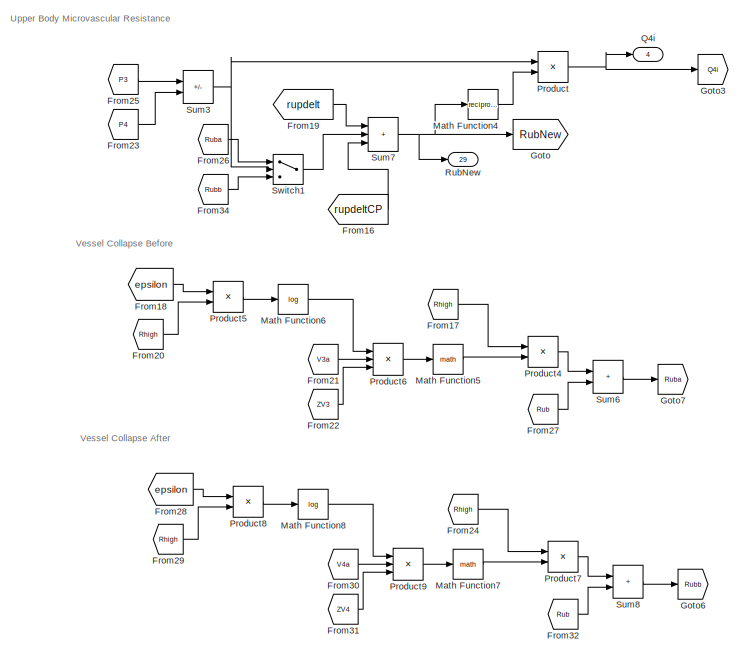
[diagram: Hemodynamic Model - part 1/22, top center region]
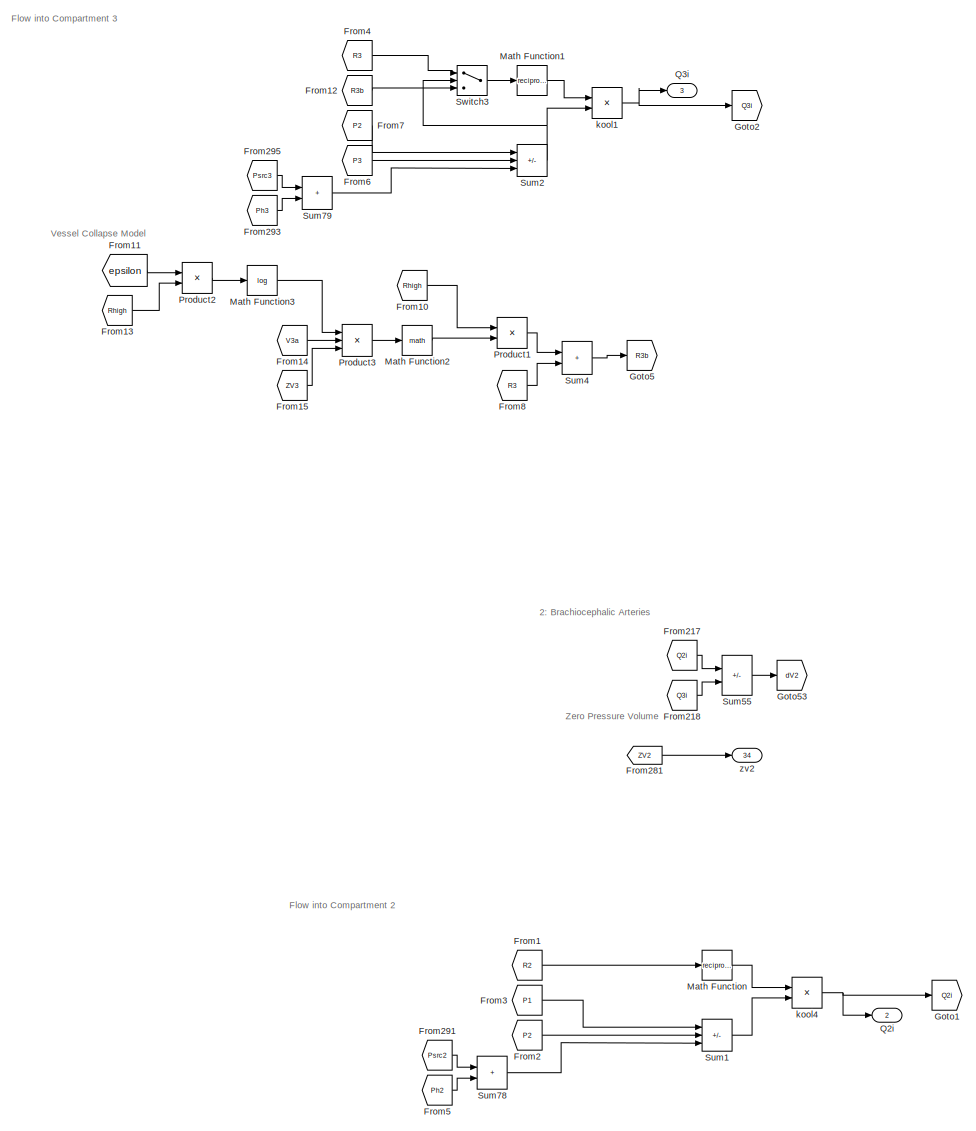
[diagram: Hemodynamic Model - part 2/22, top right region]
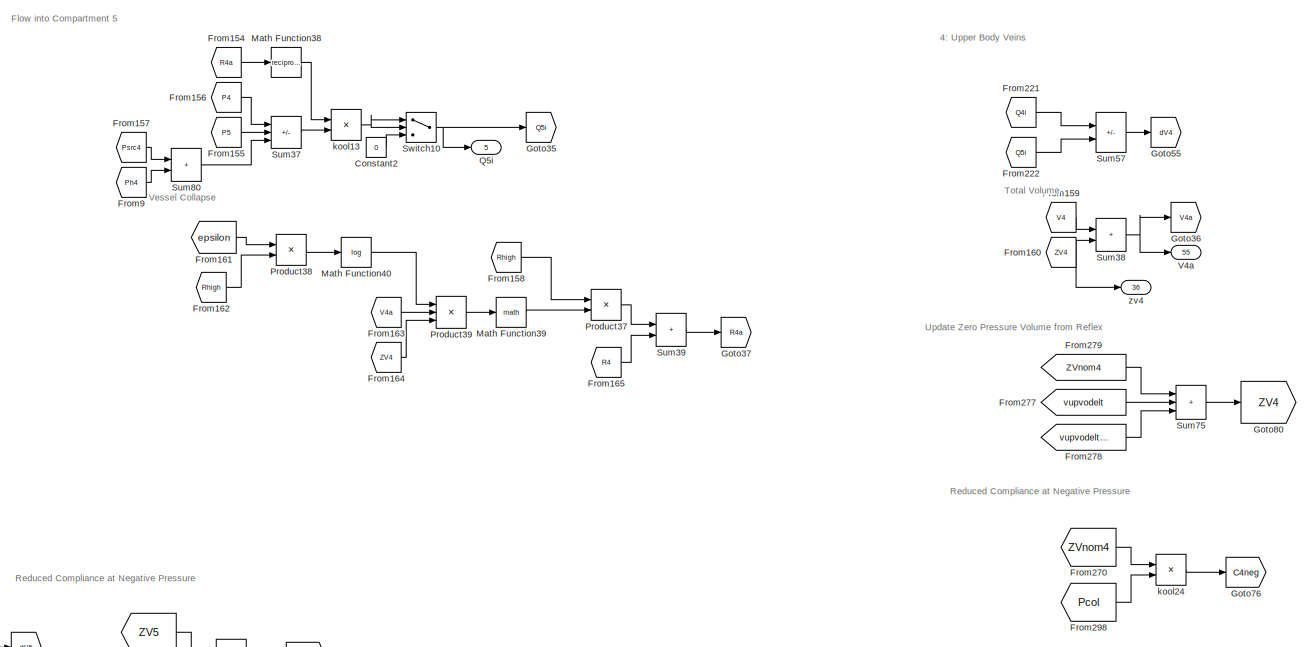
[diagram: Hemodynamic Model - part 3/22, top left region]
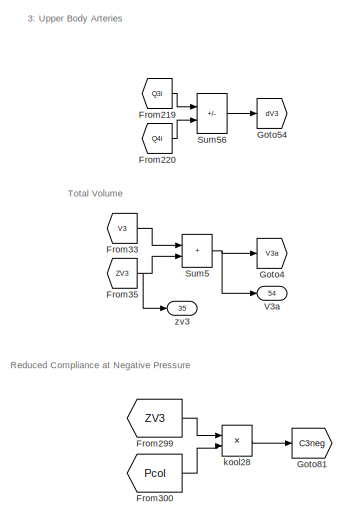
[diagram: Hemodynamic Model - part 4/22, top right region]
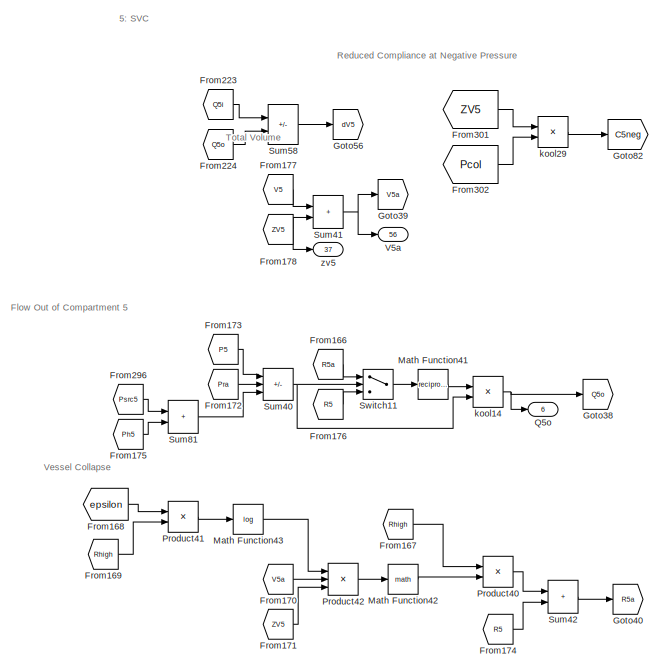
[diagram: Hemodynamic Model - part 5/22, top left region]
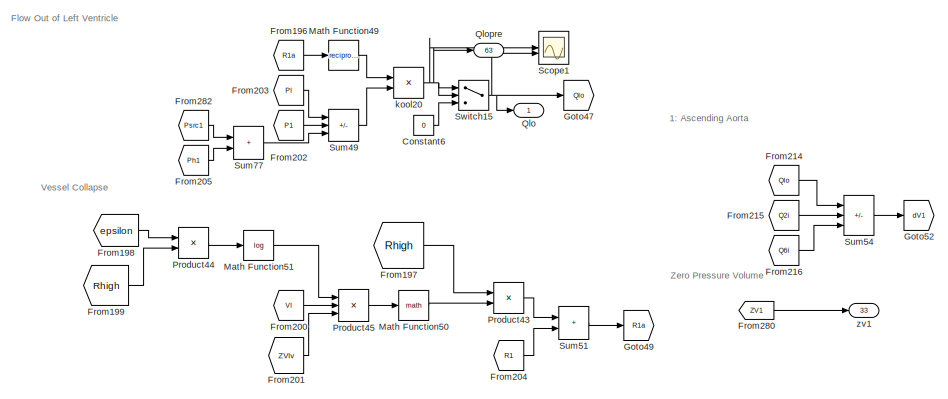
[diagram: Hemodynamic Model - part 6/22, top right region]
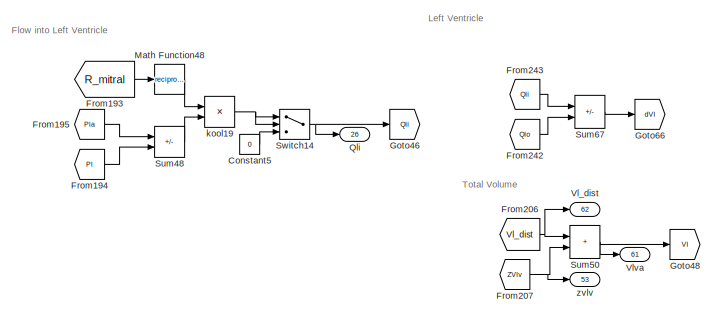
[diagram: Hemodynamic Model - part 7/22, top right region]
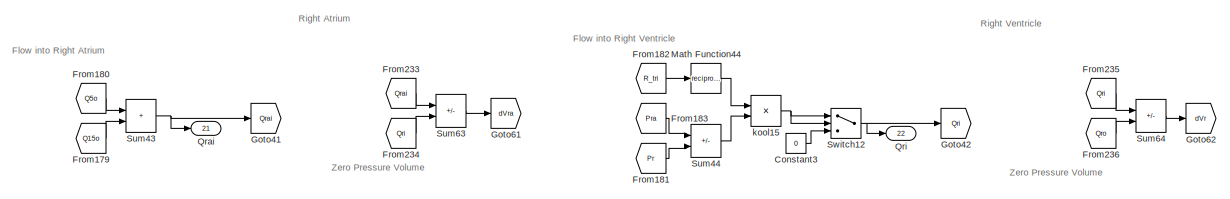
[diagram: Hemodynamic Model - part 8/22, top left region]
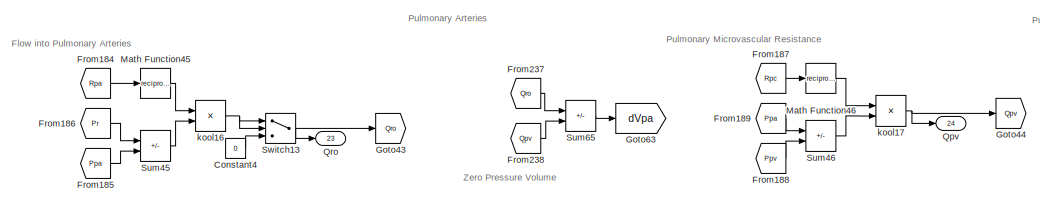
[diagram: Hemodynamic Model - part 9/22, top center region]
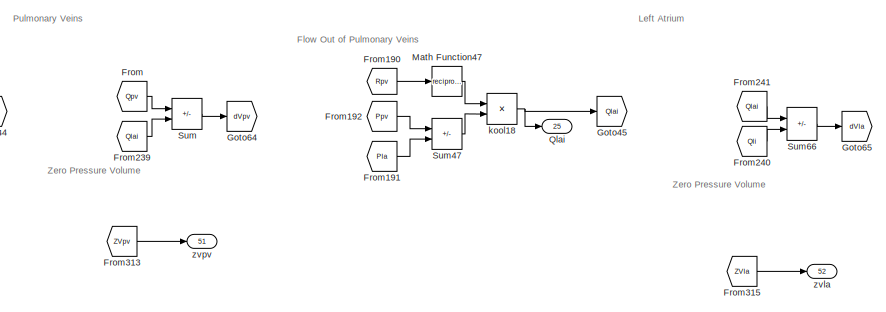
[diagram: Hemodynamic Model - part 10/22, top center region]
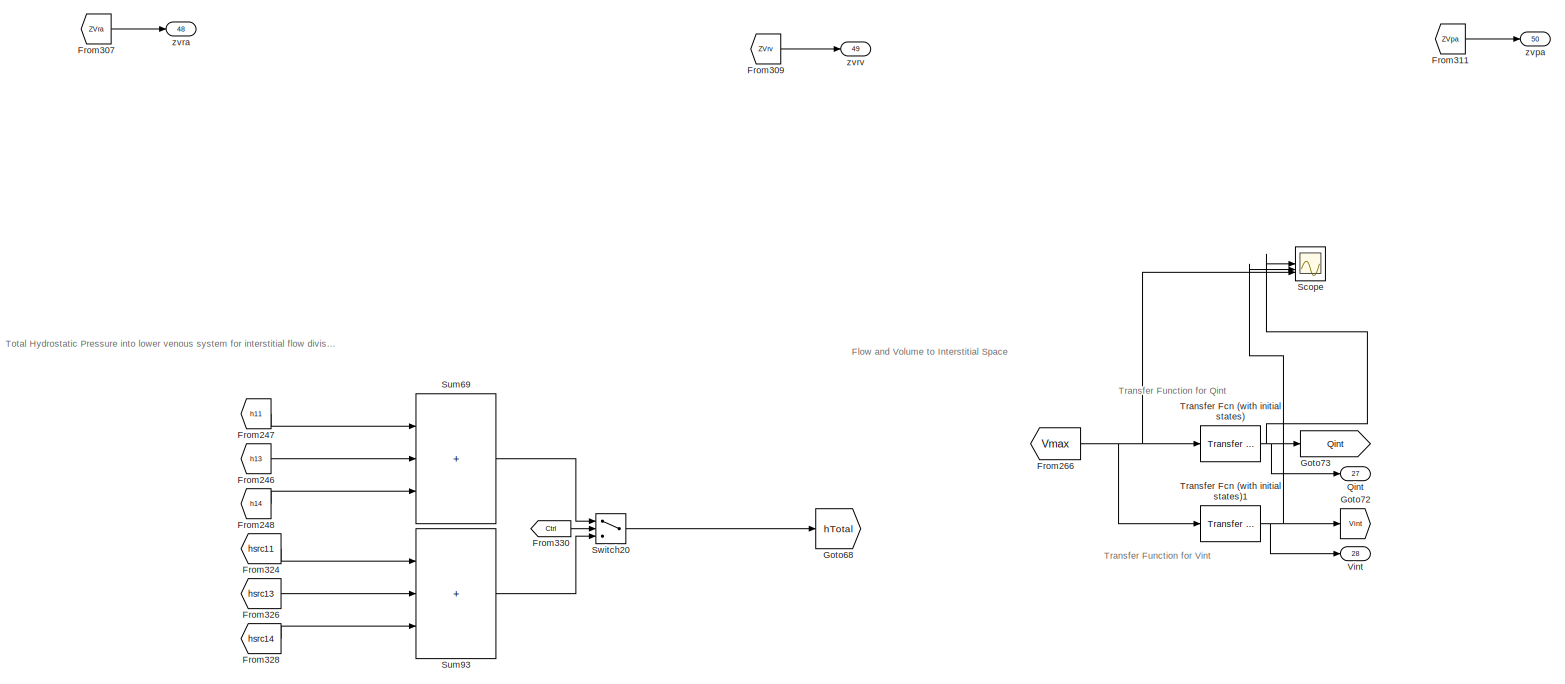
[diagram: Hemodynamic Model - part 11/22, middle left region]
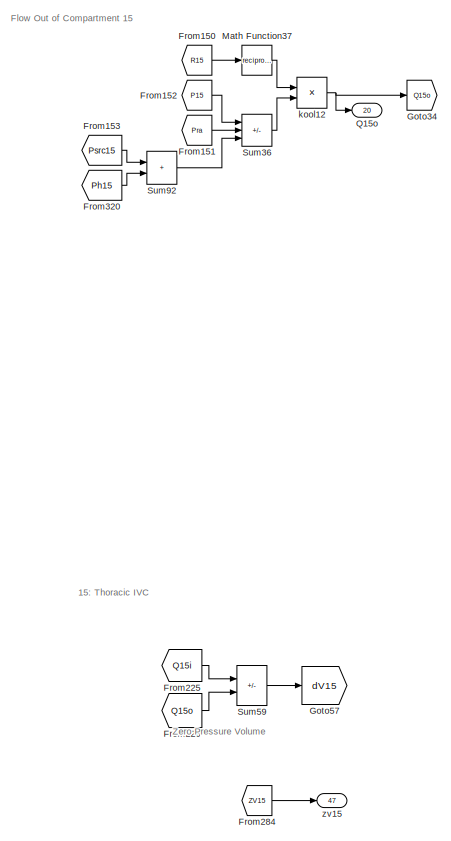
[diagram: Hemodynamic Model - part 12/22, middle left region]
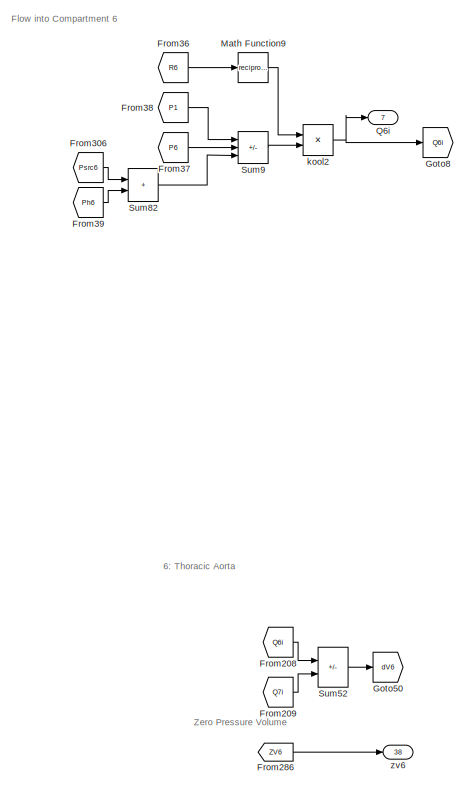
[diagram: Hemodynamic Model - part 13/22, middle right region]
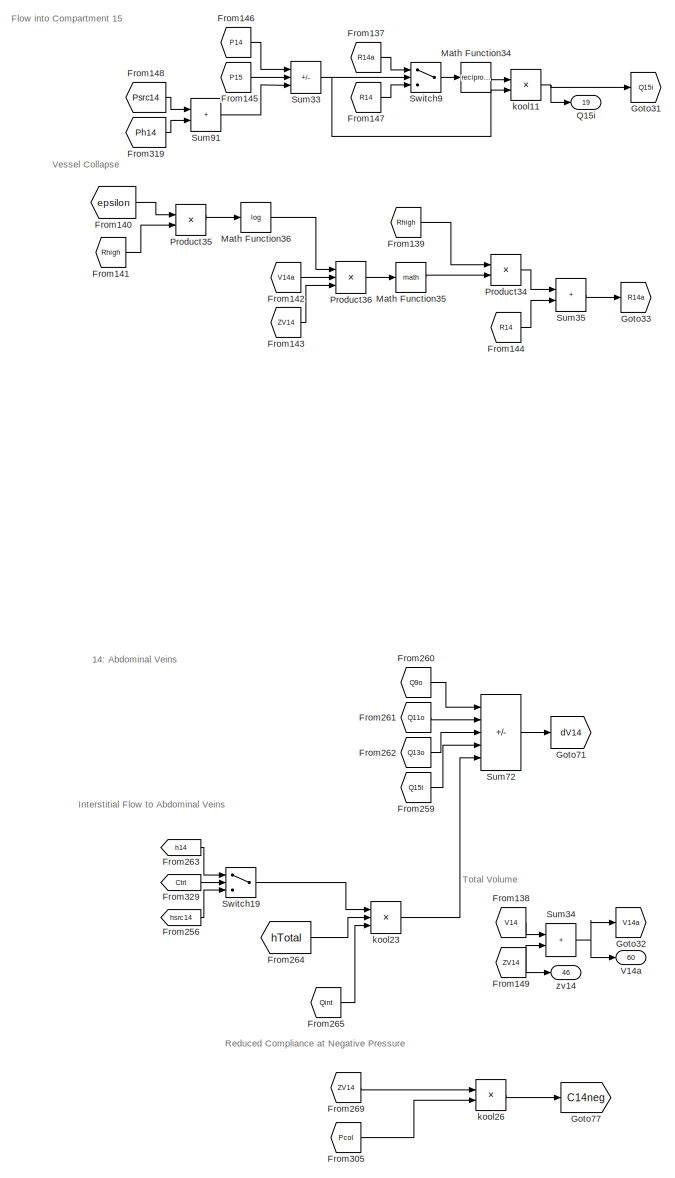
[diagram: Hemodynamic Model - part 14/22, bottom left region]
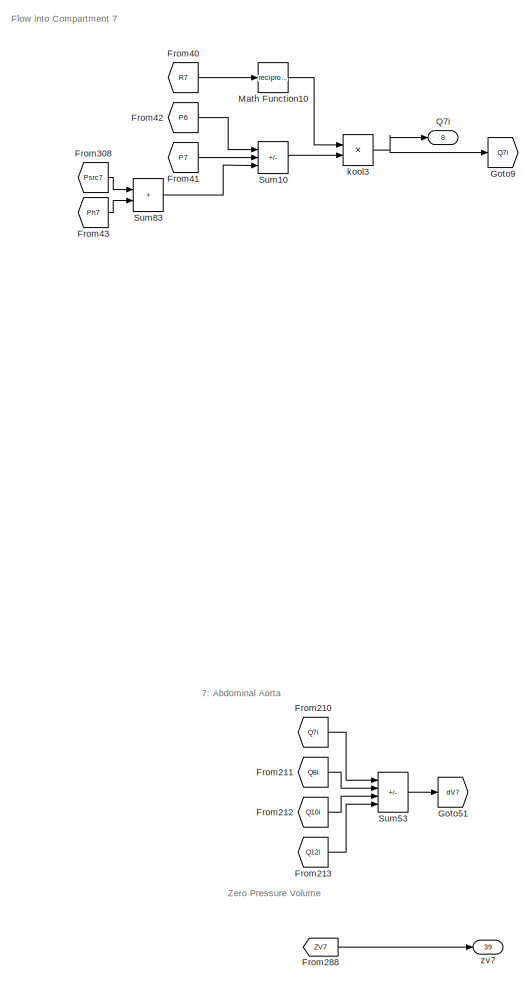
[diagram: Hemodynamic Model - part 15/22, bottom right region]
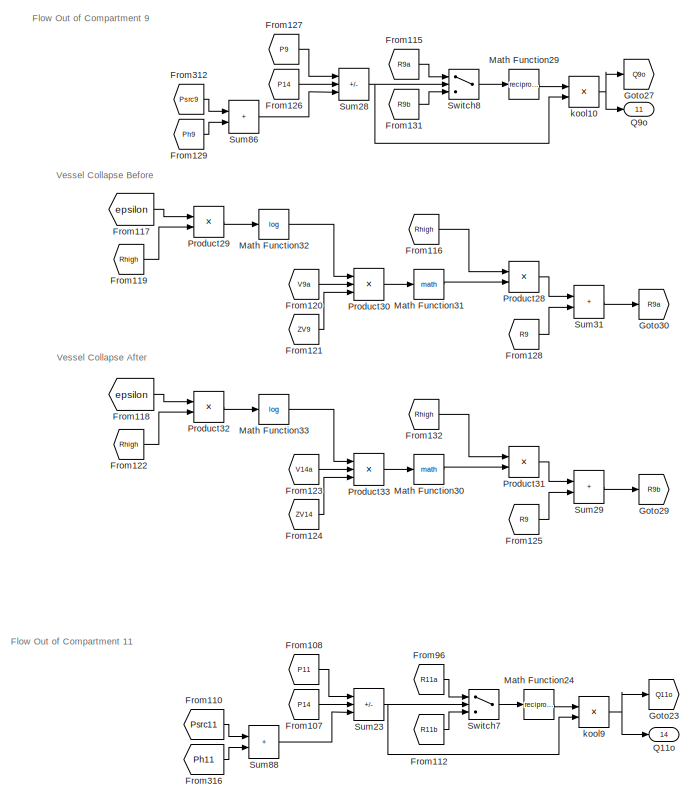
[diagram: Hemodynamic Model - part 16/22, bottom left region]
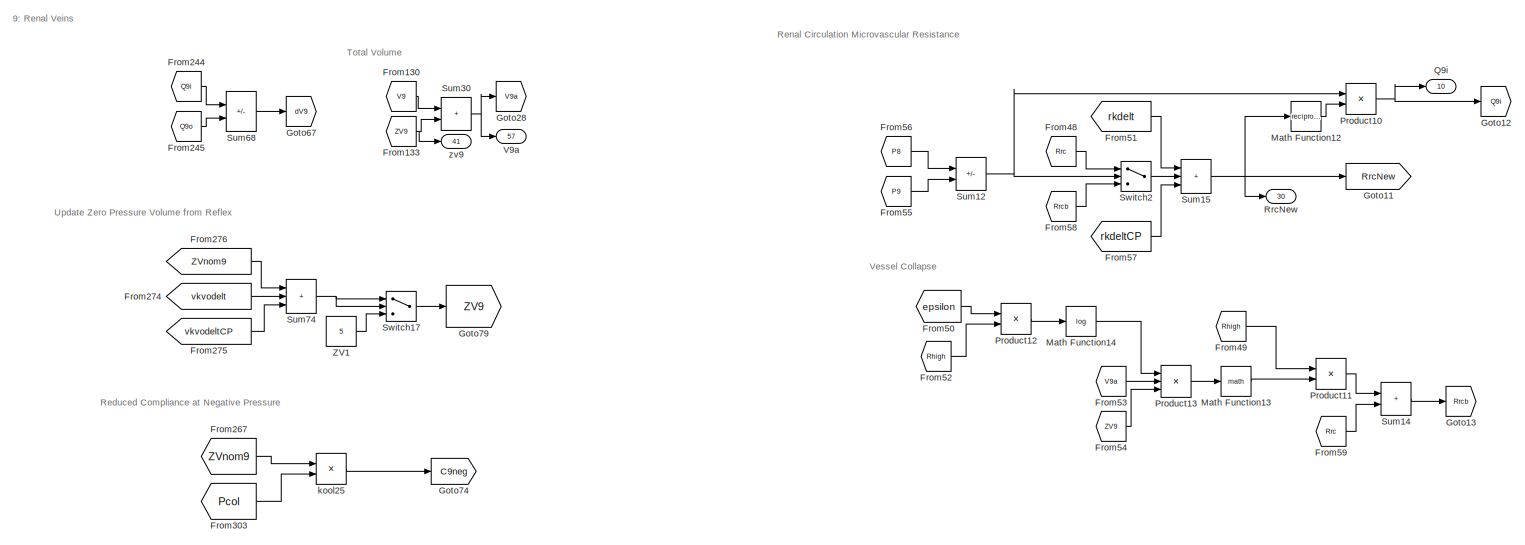
[diagram: Hemodynamic Model - part 17/22, bottom center region]
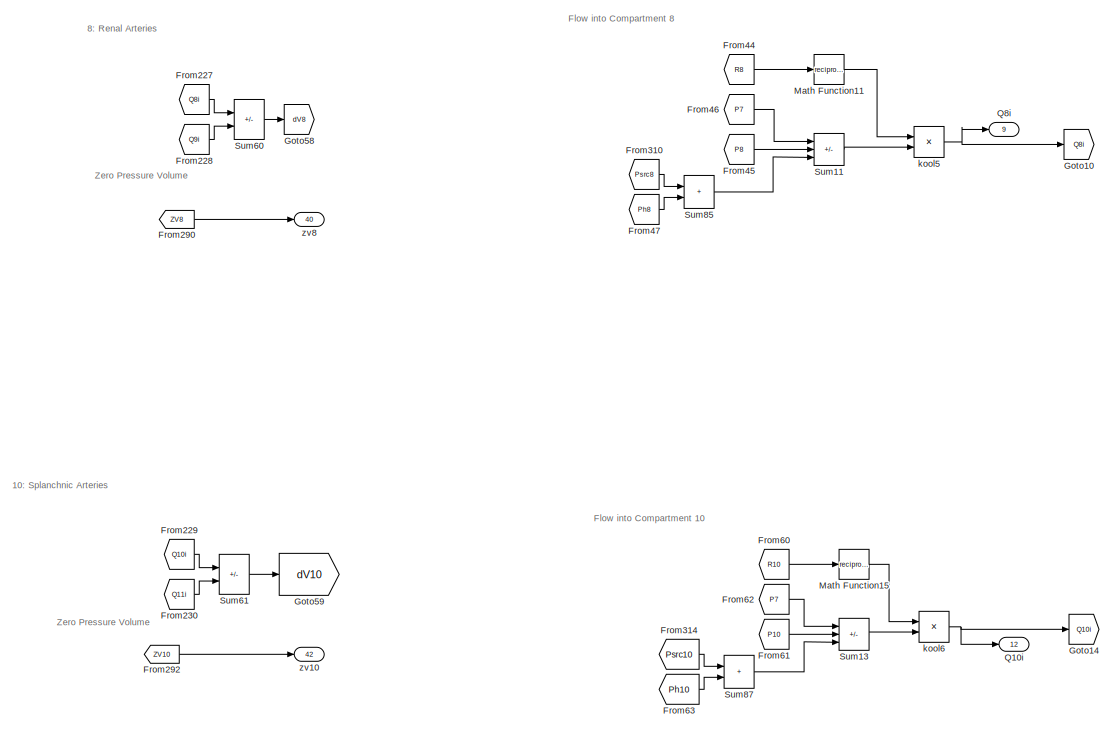
[diagram: Hemodynamic Model - part 18/22, bottom right region]
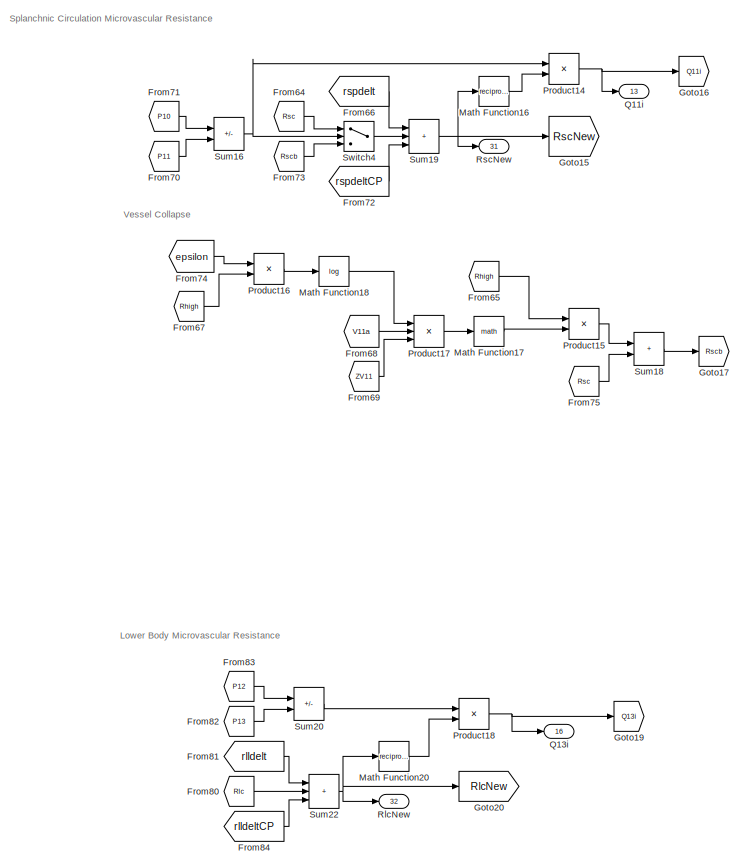
[diagram: Hemodynamic Model - part 19/22, bottom center region]
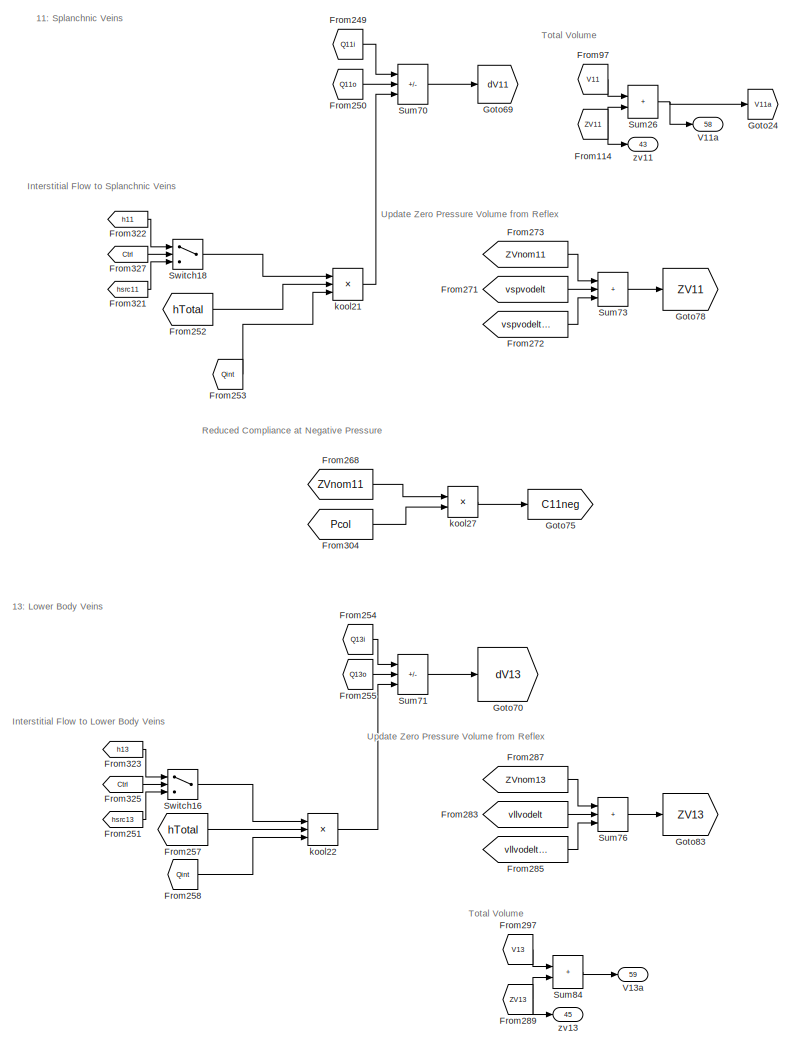
[diagram: Hemodynamic Model - part 20/22, bottom center region]
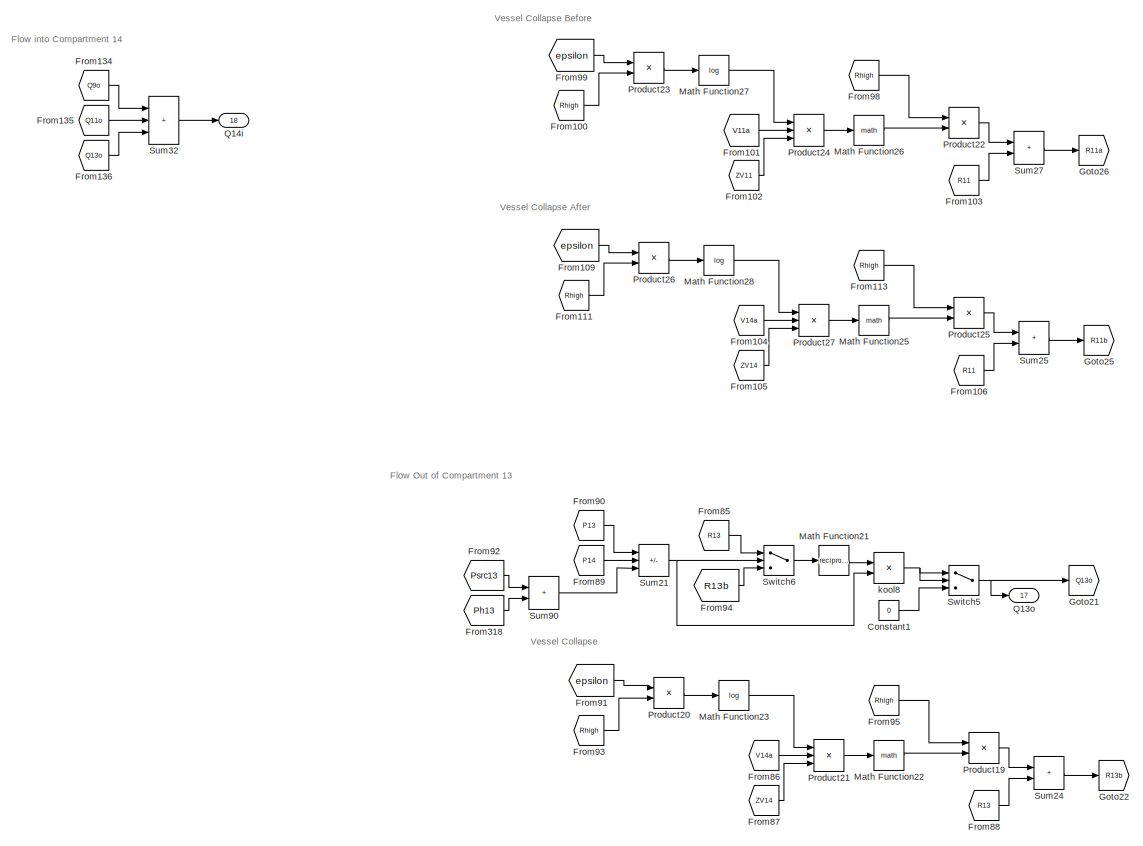
[diagram: Hemodynamic Model - part 21/22, bottom left region]
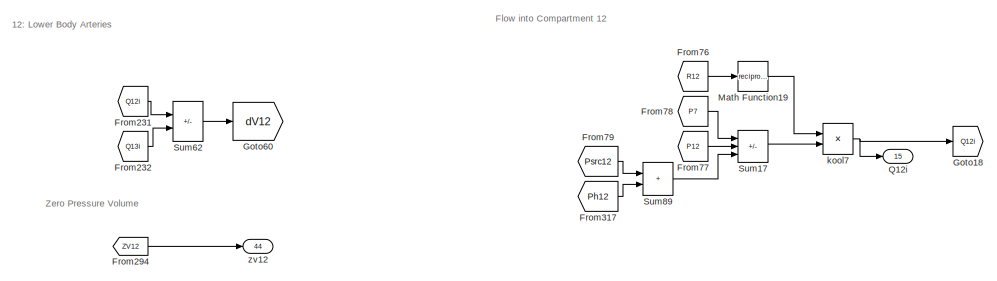
[diagram: Hemodynamic Model - part 22/22, bottom right region]
BLOCK [SubSystem] Hemodynamic Model
BLOCK [Constant] Hemodynamic Model/Constant1
  Value = 0
BLOCK [Constant] Hemodynamic Model/Constant2
  Value = 0
BLOCK [Constant] Hemodynamic Model/Constant3
  Value = 0
BLOCK [Constant] Hemodynamic Model/Constant4
  Value = 0
BLOCK [Constant] Hemodynamic Model/Constant5
  Value = 0
BLOCK [Constant] Hemodynamic Model/Constant6
  Value = 0
BLOCK [From] Hemodynamic Model/From
  CloseFcn = tagdialog Close
  GotoTag = Qpv
  TagVisibility = global
BLOCK [From] Hemodynamic Model/From1
  CloseFcn = tagdialog Close
  GotoTag = R2
  TagVisibility = global
BLOCK [From] Hemodynamic Model/From10
  CloseFcn = tagdialog Close
  GotoTag = Rhigh
  TagVisibility = global
BLOCK [From] Hemodynamic Model/From100
  CloseFcn = tagdialog Close
  GotoTag = Rhigh
  TagVisibility = global
BLOCK [From] Hemodynamic Model/From101
  CloseFcn = tagdialog Close
  GotoTag = V11a
  TagVisibility = global
BLOCK [From] Hemodynamic Model/From102
  CloseFcn = tagdialog Close
  GotoTag = ZV11
  TagVisibility = global
BLOCK [From] Hemodynamic Model/From103
  CloseFcn = tagdialog Close
  GotoTag = R11
  TagVisibility = global
BLOCK [From] Hemodynamic Model/From104
  CloseFcn = tagdialog Close
  GotoTag = V14a
  TagVisibility = global
BLOCK [From] Hemodynamic Model/From105
  CloseFcn = tagdialog Close
  GotoTag = ZV14
  TagVisibility = global
BLOCK [From] Hemodynamic Model/From106
  CloseFcn = tagdialog Close
  GotoTag = R11
  TagVisibility = global
BLOCK [From] Hemodynamic Model/From107
  CloseFcn = tagdialog Close
  GotoTag = P14
  TagVisibility = global
BLOCK [From] Hemodynamic Model/From108
  CloseFcn = tagdialog Close
  GotoTag = P11
  TagVisibility = global
BLOCK [From] Hemodynamic Model/From109
  CloseFcn = tagdialog Close
  GotoTag = epsilon
  TagVisibility = global
BLOCK [From] Hemodynamic Model/From11
  CloseFcn = tagdialog Close
  GotoTag = epsilon
  TagVisibility = global
BLOCK [From] Hemodynamic Model/From110
  CloseFcn = tagdialog Close
  GotoTag = Psrc11
  TagVisibility = global
BLOCK [From] Hemodynamic Model/From111
  CloseFcn = tagdialog Close
  GotoTag = Rhigh
  TagVisibility = global
BLOCK [From] Hemodynamic Model/From112
  CloseFcn = tagdialog Close
  GotoTag = R11b
  TagVisibility = global
BLOCK [From] Hemodynamic Model/From113
  CloseFcn = tagdialog Close
  GotoTag = Rhigh
  TagVisibility = global
BLOCK [From] Hemodynamic Model/From114
  CloseFcn = tagdialog Close
  GotoTag = ZV11
  TagVisibility = global
BLOCK [From] Hemodynamic Model/From115
  CloseFcn = tagdialog Close
  GotoTag = R9a
  TagVisibility = global
BLOCK [From] Hemodynamic Model/From116
  CloseFcn = tagdialog Close
  GotoTag = Rhigh
  TagVisibility = global
BLOCK [From] Hemodynamic Model/From117
  CloseFcn = tagdialog Close
  GotoTag = epsilon
  TagVisibility = global
BLOCK [From] Hemodynamic Model/From118
  CloseFcn = tagdialog Close
  GotoTag = epsilon
  TagVisibility = global
BLOCK [From] Hemodynamic Model/From119
  CloseFcn = tagdialog Close
  GotoTag = Rhigh
  TagVisibility = global
BLOCK [From] Hemodynamic Model/From12
  CloseFcn = tagdialog Close
  GotoTag = R3b
  TagVisibility = global
BLOCK [From] Hemodynamic Model/From120
  CloseFcn = tagdialog Close
  GotoTag = V9a
  TagVisibility = global
BLOCK [From] Hemodynamic Model/From121
  CloseFcn = tagdialog Close
  GotoTag = ZV9
  TagVisibility = global
BLOCK [From] Hemodynamic Model/From122
  CloseFcn = tagdialog Close
  GotoTag = Rhigh
  TagVisibility = global
BLOCK [From] Hemodynamic Model/From123
  CloseFcn = tagdialog Close
  GotoTag = V14a
  TagVisibility = global
BLOCK [From] Hemodynamic Model/From124
  CloseFcn = tagdialog Close
  GotoTag = ZV14
  TagVisibility = global
BLOCK [From] Hemodynamic Model/From125
  CloseFcn = tagdialog Close
  GotoTag = R9
  TagVisibility = global
BLOCK [From] Hemodynamic Model/From126
  CloseFcn = tagdialog Close
  GotoTag = P14
  TagVisibility = global
BLOCK [From] Hemodynamic Model/From127
  CloseFcn = tagdialog Close
  GotoTag = P9
  TagVisibility = global
BLOCK [From] Hemodynamic Model/From128
  CloseFcn = tagdialog Close
  GotoTag = R9
  TagVisibility = global
BLOCK [From] Hemodynamic Model/From129
  CloseFcn = tagdialog Close
  GotoTag = Ph9
  TagVisibility = global
BLOCK [From] Hemodynamic Model/From13
  CloseFcn = tagdialog Close
  GotoTag = Rhigh
  TagVisibility = global
BLOCK [From] Hemodynamic Model/From130
  CloseFcn = tagdialog Close
  GotoTag = V9
  TagVisibility = global
BLOCK [From] Hemodynamic Model/From131
  CloseFcn = tagdialog Close
  GotoTag = R9b
  TagVisibility = global
BLOCK [From] Hemodynamic Model/From132
  CloseFcn = tagdialog Close
  GotoTag = Rhigh
  TagVisibility = global
BLOCK [From] Hemodynamic Model/From133
  CloseFcn = tagdialog Close
  GotoTag = ZV9
  TagVisibility = global
BLOCK [From] Hemodynamic Model/From134
  CloseFcn = tagdialog Close
  GotoTag = Q9o
  TagVisibility = global
BLOCK [From] Hemodynamic Model/From135
  CloseFcn = tagdialog Close
  GotoTag = Q11o
  TagVisibility = global
BLOCK [From] Hemodynamic Model/From136
  CloseFcn = tagdialog Close
  GotoTag = Q13o
  TagVisibility = global
BLOCK [From] Hemodynamic Model/From137
  CloseFcn = tagdialog Close
  GotoTag = R14a
  TagVisibility = global
BLOCK [From] Hemodynamic Model/From138
  CloseFcn = tagdialog Close
  GotoTag = V14
  TagVisibility = global
BLOCK [From] Hemodynamic Model/From139
  CloseFcn = tagdialog Close
  GotoTag = Rhigh
  TagVisibility = global
BLOCK [From] Hemodynamic Model/From14
  CloseFcn = tagdialog Close
  GotoTag = V3a
  TagVisibility = global
BLOCK [From] Hemodynamic Model/From140
  CloseFcn = tagdialog Close
  GotoTag = epsilon
  TagVisibility = global
BLOCK [From] Hemodynamic Model/From141
  CloseFcn = tagdialog Close
  GotoTag = Rhigh
  TagVisibility = global
BLOCK [From] Hemodynamic Model/From142
  CloseFcn = tagdialog Close
  GotoTag = V14a
  TagVisibility = global
BLOCK [From] Hemodynamic Model/From143
  CloseFcn = tagdialog Close
  GotoTag = ZV14
  TagVisibility = global
BLOCK [From] Hemodynamic Model/From144
  CloseFcn = tagdialog Close
  GotoTag = R14
  TagVisibility = global
BLOCK [From] Hemodynamic Model/From145
  CloseFcn = tagdialog Close
  GotoTag = P15
  TagVisibility = global
BLOCK [From] Hemodynamic Model/From146
  CloseFcn = tagdialog Close
  GotoTag = P14
  TagVisibility = global
BLOCK [From] Hemodynamic Model/From147
  CloseFcn = tagdialog Close
  GotoTag = R14
  TagVisibility = global
BLOCK [From] Hemodynamic Model/From148
  CloseFcn = tagdialog Close
  GotoTag = Psrc14
  TagVisibility = global
BLOCK [From] Hemodynamic Model/From149
  CloseFcn = tagdialog Close
  GotoTag = ZV14
  TagVisibility = global
BLOCK [From] Hemodynamic Model/From15
  CloseFcn = tagdialog Close
  GotoTag = ZV3
  TagVisibility = global
BLOCK [From] Hemodynamic Model/From150
  CloseFcn = tagdialog Close
  GotoTag = R15
  TagVisibility = global
BLOCK [From] Hemodynamic Model/From151
  CloseFcn = tagdialog Close
  GotoTag = Pra
  TagVisibility = global
BLOCK [From] Hemodynamic Model/From152
  CloseFcn = tagdialog Close
  GotoTag = P15
  TagVisibility = global
BLOCK [From] Hemodynamic Model/From153
  CloseFcn = tagdialog Close
  GotoTag = Psrc15
  TagVisibility = global
BLOCK [From] Hemodynamic Model/From154
  CloseFcn = tagdialog Close
  GotoTag = R4a
  TagVisibility = global
BLOCK [From] Hemodynamic Model/From155
  CloseFcn = tagdialog Close
  GotoTag = P5
  TagVisibility = global
BLOCK [From] Hemodynamic Model/From156
  CloseFcn = tagdialog Close
  GotoTag = P4
  TagVisibility = global
BLOCK [From] Hemodynamic Model/From157
  CloseFcn = tagdialog Close
  GotoTag = Psrc4
  TagVisibility = global
BLOCK [From] Hemodynamic Model/From158
  CloseFcn = tagdialog Close
  GotoTag = Rhigh
  TagVisibility = global
BLOCK [From] Hemodynamic Model/From159
  CloseFcn = tagdialog Close
  GotoTag = V4
  TagVisibility = global
BLOCK [From] Hemodynamic Model/From16
  CloseFcn = tagdialog Close
  GotoTag = rupdeltCP
  TagVisibility = global
BLOCK [From] Hemodynamic Model/From160
  CloseFcn = tagdialog Close
  GotoTag = ZV4
  TagVisibility = global
BLOCK [From] Hemodynamic Model/From161
  CloseFcn = tagdialog Close
  GotoTag = epsilon
  TagVisibility = global
BLOCK [From] Hemodynamic Model/From162
  CloseFcn = tagdialog Close
  GotoTag = Rhigh
  TagVisibility = global
BLOCK [From] Hemodynamic Model/From163
  CloseFcn = tagdialog Close
  GotoTag = V4a
  TagVisibility = global
BLOCK [From] Hemodynamic Model/From164
  CloseFcn = tagdialog Close
  GotoTag = ZV4
  TagVisibility = global
BLOCK [From] Hemodynamic Model/From165
  CloseFcn = tagdialog Close
  GotoTag = R4
  TagVisibility = global
BLOCK [From] Hemodynamic Model/From166
  CloseFcn = tagdialog Close
  GotoTag = R5a
  TagVisibility = global
BLOCK [From] Hemodynamic Model/From167
  CloseFcn = tagdialog Close
  GotoTag = Rhigh
  TagVisibility = global
BLOCK [From] Hemodynamic Model/From168
  CloseFcn = tagdialog Close
  GotoTag = epsilon
  TagVisibility = global
BLOCK [From] Hemodynamic Model/From169
  CloseFcn = tagdialog Close
  GotoTag = Rhigh
  TagVisibility = global
BLOCK [From] Hemodynamic Model/From17
  CloseFcn = tagdialog Close
  GotoTag = Rhigh
  TagVisibility = global
BLOCK [From] Hemodynamic Model/From170
  CloseFcn = tagdialog Close
  GotoTag = V5a
  TagVisibility = global
BLOCK [From] Hemodynamic Model/From171
  CloseFcn = tagdialog Close
  GotoTag = ZV5
  TagVisibility = global
BLOCK [From] Hemodynamic Model/From172
  CloseFcn = tagdialog Close
  GotoTag = Pra
  TagVisibility = global
BLOCK [From] Hemodynamic Model/From173
  CloseFcn = tagdialog Close
  GotoTag = P5
  TagVisibility = global
BLOCK [From] Hemodynamic Model/From174
  CloseFcn = tagdialog Close
  GotoTag = R5
  TagVisibility = global
BLOCK [From] Hemodynamic Model/From175
  CloseFcn = tagdialog Close
  GotoTag = Ph5
  TagVisibility = global
BLOCK [From] Hemodynamic Model/From176
  CloseFcn = tagdialog Close
  GotoTag = R5
  TagVisibility = global
BLOCK [From] Hemodynamic Model/From177
  CloseFcn = tagdialog Close
  GotoTag = V5
  TagVisibility = global
BLOCK [From] Hemodynamic Model/From178
  CloseFcn = tagdialog Close
  GotoTag = ZV5
  TagVisibility = global
BLOCK [From] Hemodynamic Model/From179
  CloseFcn = tagdialog Close
  GotoTag = Q15o
  TagVisibility = global
BLOCK [From] Hemodynamic Model/From18
  CloseFcn = tagdialog Close
  GotoTag = epsilon
  TagVisibility = global
BLOCK [From] Hemodynamic Model/From180
  CloseFcn = tagdialog Close
  GotoTag = Q5o
  TagVisibility = global
BLOCK [From] Hemodynamic Model/From181
  CloseFcn = tagdialog Close
  GotoTag = Pr
  TagVisibility = global
BLOCK [From] Hemodynamic Model/From182
  CloseFcn = tagdialog Close
  GotoTag = R_tri
  TagVisibility = global
BLOCK [From] Hemodynamic Model/From183
  CloseFcn = tagdialog Close
  GotoTag = Pra
  TagVisibility = global
BLOCK [From] Hemodynamic Model/From184
  CloseFcn = tagdialog Close
  GotoTag = Rpa
  TagVisibility = global
BLOCK [From] Hemodynamic Model/From185
  CloseFcn = tagdialog Close
  GotoTag = Ppa
  TagVisibility = global
BLOCK [From] Hemodynamic Model/From186
  CloseFcn = tagdialog Close
  GotoTag = Pr
  TagVisibility = global
BLOCK [From] Hemodynamic Model/From187
  CloseFcn = tagdialog Close
  GotoTag = Rpc
  TagVisibility = global
BLOCK [From] Hemodynamic Model/From188
  CloseFcn = tagdialog Close
  GotoTag = Ppv
  TagVisibility = global
BLOCK [From] Hemodynamic Model/From189
  CloseFcn = tagdialog Close
  GotoTag = Ppa
  TagVisibility = global
BLOCK [From] Hemodynamic Model/From19
  CloseFcn = tagdialog Close
  GotoTag = rupdelt
  TagVisibility = global
BLOCK [From] Hemodynamic Model/From190
  CloseFcn = tagdialog Close
  GotoTag = Rpv
  TagVisibility = global
BLOCK [From] Hemodynamic Model/From191
  CloseFcn = tagdialog Close
  GotoTag = Pla
  TagVisibility = global
BLOCK [From] Hemodynamic Model/From192
  CloseFcn = tagdialog Close
  GotoTag = Ppv
  TagVisibility = global
BLOCK [From] Hemodynamic Model/From193
  CloseFcn = tagdialog Close
  GotoTag = R_mitral
  TagVisibility = global
BLOCK [From] Hemodynamic Model/From194
  CloseFcn = tagdialog Close
  GotoTag = Pl
  TagVisibility = global
BLOCK [From] Hemodynamic Model/From195
  CloseFcn = tagdialog Close
  GotoTag = Pla
  TagVisibility = global
BLOCK [From] Hemodynamic Model/From196
  CloseFcn = tagdialog Close
  GotoTag = R1a
  TagVisibility = global
BLOCK [From] Hemodynamic Model/From197
  CloseFcn = tagdialog Close
  GotoTag = Rhigh
  TagVisibility = global
BLOCK [From] Hemodynamic Model/From198
  CloseFcn = tagdialog Close
  GotoTag = epsilon
  TagVisibility = global
BLOCK [From] Hemodynamic Model/From199
  CloseFcn = tagdialog Close
  GotoTag = Rhigh
  TagVisibility = global
BLOCK [From] Hemodynamic Model/From2
  CloseFcn = tagdialog Close
  GotoTag = P2
  TagVisibility = global
BLOCK [From] Hemodynamic Model/From20
  CloseFcn = tagdialog Close
  GotoTag = Rhigh
  TagVisibility = global
BLOCK [From] Hemodynamic Model/From200
  CloseFcn = tagdialog Close
  GotoTag = Vl
  TagVisibility = global
BLOCK [From] Hemodynamic Model/From201
  CloseFcn = tagdialog Close
  GotoTag = ZVlv
  TagVisibility = global
BLOCK [From] Hemodynamic Model/From202
  CloseFcn = tagdialog Close
  GotoTag = P1
  TagVisibility = global
BLOCK [From] Hemodynamic Model/From203
  CloseFcn = tagdialog Close
  GotoTag = Pl
  TagVisibility = global
BLOCK [From] Hemodynamic Model/From204
  CloseFcn = tagdialog Close
  GotoTag = R1
  TagVisibility = global
BLOCK [From] Hemodynamic Model/From205
  CloseFcn = tagdialog Close
  GotoTag = Ph1
  TagVisibility = global
BLOCK [From] Hemodynamic Model/From206
  CloseFcn = tagdialog Close
  GotoTag = Vl_dist
  TagVisibility = global
BLOCK [From] Hemodynamic Model/From207
  CloseFcn = tagdialog Close
  GotoTag = ZVlv
  TagVisibility = global
BLOCK [From] Hemodynamic Model/From208
  CloseFcn = tagdialog Close
  GotoTag = Q6i
  TagVisibility = global
BLOCK [From] Hemodynamic Model/From209
  CloseFcn = tagdialog Close
  GotoTag = Q7i
  TagVisibility = global
BLOCK [From] Hemodynamic Model/From21
  CloseFcn = tagdialog Close
  GotoTag = V3a
  TagVisibility = global
BLOCK [From] Hemodynamic Model/From210
  CloseFcn = tagdialog Close
  GotoTag = Q7i
  TagVisibility = global
BLOCK [From] Hemodynamic Model/From211
  CloseFcn = tagdialog Close
  GotoTag = Q8i
  TagVisibility = global
BLOCK [From] Hemodynamic Model/From212
  CloseFcn = tagdialog Close
  GotoTag = Q10i
  TagVisibility = global
BLOCK [From] Hemodynamic Model/From213
  CloseFcn = tagdialog Close
  GotoTag = Q12i
  TagVisibility = global
BLOCK [From] Hemodynamic Model/From214
  CloseFcn = tagdialog Close
  GotoTag = Qlo
  TagVisibility = global
BLOCK [From] Hemodynamic Model/From215
  CloseFcn = tagdialog Close
  GotoTag = Q2i
  TagVisibility = global
BLOCK [From] Hemodynamic Model/From216
  CloseFcn = tagdialog Close
  GotoTag = Q6i
  TagVisibility = global
BLOCK [From] Hemodynamic Model/From217
  CloseFcn = tagdialog Close
  GotoTag = Q2i
  TagVisibility = global
BLOCK [From] Hemodynamic Model/From218
  CloseFcn = tagdialog Close
  GotoTag = Q3i
  TagVisibility = global
BLOCK [From] Hemodynamic Model/From219
  CloseFcn = tagdialog Close
  GotoTag = Q3i
  TagVisibility = global
BLOCK [From] Hemodynamic Model/From22
  CloseFcn = tagdialog Close
  GotoTag = ZV3
  TagVisibility = global
BLOCK [From] Hemodynamic Model/From220
  CloseFcn = tagdialog Close
  GotoTag = Q4i
  TagVisibility = global
BLOCK [From] Hemodynamic Model/From221
  CloseFcn = tagdialog Close
  GotoTag = Q4i
  TagVisibility = global
BLOCK [From] Hemodynamic Model/From222
  CloseFcn = tagdialog Close
  GotoTag = Q5i
  TagVisibility = global
BLOCK [From] Hemodynamic Model/From223
  CloseFcn = tagdialog Close
  GotoTag = Q5i
  TagVisibility = global
BLOCK [From] Hemodynamic Model/From224
  CloseFcn = tagdialog Close
  GotoTag = Q5o
  TagVisibility = global
BLOCK [From] Hemodynamic Model/From225
  CloseFcn = tagdialog Close
  GotoTag = Q15i
  TagVisibility = global
BLOCK [From] Hemodynamic Model/From226
  CloseFcn = tagdialog Close
  GotoTag = Q15o
  TagVisibility = global
BLOCK [From] Hemodynamic Model/From227
  CloseFcn = tagdialog Close
  GotoTag = Q8i
  TagVisibility = global
BLOCK [From] Hemodynamic Model/From228
  CloseFcn = tagdialog Close
  GotoTag = Q9i
  TagVisibility = global
BLOCK [From] Hemodynamic Model/From229
  CloseFcn = tagdialog Close
  GotoTag = Q10i
  TagVisibility = global
BLOCK [From] Hemodynamic Model/From23
  CloseFcn = tagdialog Close
  GotoTag = P4
  TagVisibility = global
BLOCK [From] Hemodynamic Model/From230
  CloseFcn = tagdialog Close
  GotoTag = Q11i
  TagVisibility = global
BLOCK [From] Hemodynamic Model/From231
  CloseFcn = tagdialog Close
  GotoTag = Q12i
  TagVisibility = global
BLOCK [From] Hemodynamic Model/From232
  CloseFcn = tagdialog Close
  GotoTag = Q13i
  TagVisibility = global
BLOCK [From] Hemodynamic Model/From233
  CloseFcn = tagdialog Close
  GotoTag = Qrai
  TagVisibility = global
BLOCK [From] Hemodynamic Model/From234
  CloseFcn = tagdialog Close
  GotoTag = Qri
  TagVisibility = global
BLOCK [From] Hemodynamic Model/From235
  CloseFcn = tagdialog Close
  GotoTag = Qri
  TagVisibility = global
BLOCK [From] Hemodynamic Model/From236
  CloseFcn = tagdialog Close
  GotoTag = Qro
  TagVisibility = global
BLOCK [From] Hemodynamic Model/From237
  CloseFcn = tagdialog Close
  GotoTag = Qro
  TagVisibility = global
BLOCK [From] Hemodynamic Model/From238
  CloseFcn = tagdialog Close
  GotoTag = Qpv
  TagVisibility = global
BLOCK [From] Hemodynamic Model/From239
  CloseFcn = tagdialog Close
  GotoTag = Qlai
  TagVisibility = global
BLOCK [From] Hemodynamic Model/From24
  CloseFcn = tagdialog Close
  GotoTag = Rhigh
  TagVisibility = global
BLOCK [From] Hemodynamic Model/From240
  CloseFcn = tagdialog Close
  GotoTag = Qli
  TagVisibility = global
BLOCK [From] Hemodynamic Model/From241
  CloseFcn = tagdialog Close
  GotoTag = Qlai
  TagVisibility = global
BLOCK [From] Hemodynamic Model/From242
  CloseFcn = tagdialog Close
  GotoTag = Qlo
  TagVisibility = global
BLOCK [From] Hemodynamic Model/From243
  CloseFcn = tagdialog Close
  GotoTag = Qli
  TagVisibility = global
BLOCK [From] Hemodynamic Model/From244
  CloseFcn = tagdialog Close
  GotoTag = Q9i
  TagVisibility = global
BLOCK [From] Hemodynamic Model/From245
  CloseFcn = tagdialog Close
  GotoTag = Q9o
  TagVisibility = global
BLOCK [From] Hemodynamic Model/From246
  CloseFcn = tagdialog Close
  GotoTag = h13
  TagVisibility = global
BLOCK [From] Hemodynamic Model/From247
  CloseFcn = tagdialog Close
  GotoTag = h11
  TagVisibility = global
BLOCK [From] Hemodynamic Model/From248
  CloseFcn = tagdialog Close
  GotoTag = h14
  TagVisibility = global
BLOCK [From] Hemodynamic Model/From249
  CloseFcn = tagdialog Close
  GotoTag = Q11i
  TagVisibility = global
BLOCK [From] Hemodynamic Model/From25
  CloseFcn = tagdialog Close
  GotoTag = P3
  TagVisibility = global
BLOCK [From] Hemodynamic Model/From250
  CloseFcn = tagdialog Close
  GotoTag = Q11o
  TagVisibility = global
BLOCK [From] Hemodynamic Model/From251
  CloseFcn = tagdialog Close
  GotoTag = hsrc13
  TagVisibility = global
BLOCK [From] Hemodynamic Model/From252
  CloseFcn = tagdialog Close
  GotoTag = hTotal
  TagVisibility = global
BLOCK [From] Hemodynamic Model/From253
  CloseFcn = tagdialog Close
  GotoTag = Qint
  TagVisibility = global
BLOCK [From] Hemodynamic Model/From254
  CloseFcn = tagdialog Close
  GotoTag = Q13i
  TagVisibility = global
BLOCK [From] Hemodynamic Model/From255
  CloseFcn = tagdialog Close
  GotoTag = Q13o
  TagVisibility = global
BLOCK [From] Hemodynamic Model/From256
  CloseFcn = tagdialog Close
  GotoTag = hsrc14
  TagVisibility = global
BLOCK [From] Hemodynamic Model/From257
  CloseFcn = tagdialog Close
  GotoTag = hTotal
  TagVisibility = global
BLOCK [From] Hemodynamic Model/From258
  CloseFcn = tagdialog Close
  GotoTag = Qint
  TagVisibility = global
BLOCK [From] Hemodynamic Model/From259
  CloseFcn = tagdialog Close
  GotoTag = Q15i
  TagVisibility = global
BLOCK [From] Hemodynamic Model/From26
  CloseFcn = tagdialog Close
  GotoTag = Ruba
  TagVisibility = global
BLOCK [From] Hemodynamic Model/From260
  CloseFcn = tagdialog Close
  GotoTag = Q9o
  TagVisibility = global
BLOCK [From] Hemodynamic Model/From261
  CloseFcn = tagdialog Close
  GotoTag = Q11o
  TagVisibility = global
BLOCK [From] Hemodynamic Model/From262
  CloseFcn = tagdialog Close
  GotoTag = Q13o
  TagVisibility = global
BLOCK [From] Hemodynamic Model/From263
  CloseFcn = tagdialog Close
  GotoTag = h14
  TagVisibility = global
BLOCK [From] Hemodynamic Model/From264
  CloseFcn = tagdialog Close
  GotoTag = hTotal
  TagVisibility = global
BLOCK [From] Hemodynamic Model/From265
  CloseFcn = tagdialog Close
  GotoTag = Qint
  TagVisibility = global
BLOCK [From] Hemodynamic Model/From266
  CloseFcn = tagdialog Close
  GotoTag = Vmax
  TagVisibility = global
BLOCK [From] Hemodynamic Model/From267
  CloseFcn = tagdialog Close
  GotoTag = ZVnom9
  TagVisibility = global
BLOCK [From] Hemodynamic Model/From268
  CloseFcn = tagdialog Close
  GotoTag = ZVnom11
  TagVisibility = global
BLOCK [From] Hemodynamic Model/From269
  CloseFcn = tagdialog Close
  GotoTag = ZV14
  TagVisibility = global
BLOCK [From] Hemodynamic Model/From27
  CloseFcn = tagdialog Close
  GotoTag = Rub
  TagVisibility = global
BLOCK [From] Hemodynamic Model/From270
  CloseFcn = tagdialog Close
  GotoTag = ZVnom4
  TagVisibility = global
BLOCK [From] Hemodynamic Model/From271
  CloseFcn = tagdialog Close
  GotoTag = vspvodelt
  TagVisibility = global
BLOCK [From] Hemodynamic Model/From272
  CloseFcn = tagdialog Close
  GotoTag = vspvodeltCP
  TagVisibility = global
BLOCK [From] Hemodynamic Model/From273
  CloseFcn = tagdialog Close
  GotoTag = ZVnom11
  TagVisibility = global
BLOCK [From] Hemodynamic Model/From274
  CloseFcn = tagdialog Close
  GotoTag = vkvodelt
  TagVisibility = global
BLOCK [From] Hemodynamic Model/From275
  CloseFcn = tagdialog Close
  GotoTag = vkvodeltCP
  TagVisibility = global
BLOCK [From] Hemodynamic Model/From276
  CloseFcn = tagdialog Close
  GotoTag = ZVnom9
  TagVisibility = global
BLOCK [From] Hemodynamic Model/From277
  CloseFcn = tagdialog Close
  GotoTag = vupvodelt
  TagVisibility = global
BLOCK [From] Hemodynamic Model/From278
  CloseFcn = tagdialog Close
  GotoTag = vupvodeltCP
  TagVisibility = global
BLOCK [From] Hemodynamic Model/From279
  CloseFcn = tagdialog Close
  GotoTag = ZVnom4
  TagVisibility = global
BLOCK [From] Hemodynamic Model/From28
  CloseFcn = tagdialog Close
  GotoTag = epsilon
  TagVisibility = global
BLOCK [From] Hemodynamic Model/From280
  CloseFcn = tagdialog Close
  GotoTag = ZV1
  TagVisibility = global
BLOCK [From] Hemodynamic Model/From281
  CloseFcn = tagdialog Close
  GotoTag = ZV2
  TagVisibility = global
BLOCK [From] Hemodynamic Model/From282
  CloseFcn = tagdialog Close
  GotoTag = Psrc1
  TagVisibility = global
BLOCK [From] Hemodynamic Model/From283
  CloseFcn = tagdialog Close
  GotoTag = vllvodelt
  TagVisibility = global
BLOCK [From] Hemodynamic Model/From284
  CloseFcn = tagdialog Close
  GotoTag = ZV15
  TagVisibility = global
BLOCK [From] Hemodynamic Model/From285
  CloseFcn = tagdialog Close
  GotoTag = vllvodeltCP
  TagVisibility = global
BLOCK [From] Hemodynamic Model/From286
  CloseFcn = tagdialog Close
  GotoTag = ZV6
  TagVisibility = global
BLOCK [From] Hemodynamic Model/From287
  CloseFcn = tagdialog Close
  GotoTag = ZVnom13
  TagVisibility = global
BLOCK [From] Hemodynamic Model/From288
  CloseFcn = tagdialog Close
  GotoTag = ZV7
  TagVisibility = global
BLOCK [From] Hemodynamic Model/From289
  CloseFcn = tagdialog Close
  GotoTag = ZV13
  TagVisibility = global
BLOCK [From] Hemodynamic Model/From29
  CloseFcn = tagdialog Close
  GotoTag = Rhigh
  TagVisibility = global
BLOCK [From] Hemodynamic Model/From290
  CloseFcn = tagdialog Close
  GotoTag = ZV8
  TagVisibility = global
BLOCK [From] Hemodynamic Model/From291
  CloseFcn = tagdialog Close
  GotoTag = Psrc2
  TagVisibility = global
BLOCK [From] Hemodynamic Model/From292
  CloseFcn = tagdialog Close
  GotoTag = ZV10
  TagVisibility = global
BLOCK [From] Hemodynamic Model/From293
  CloseFcn = tagdialog Close
  GotoTag = Ph3
  TagVisibility = global
BLOCK [From] Hemodynamic Model/From294
  CloseFcn = tagdialog Close
  GotoTag = ZV12
  TagVisibility = global
BLOCK [From] Hemodynamic Model/From295
  CloseFcn = tagdialog Close
  GotoTag = Psrc3
  TagVisibility = global
BLOCK [From] Hemodynamic Model/From296
  CloseFcn = tagdialog Close
  GotoTag = Psrc5
  TagVisibility = global
BLOCK [From] Hemodynamic Model/From297
  CloseFcn = tagdialog Close
  GotoTag = V13
  TagVisibility = global
BLOCK [From] Hemodynamic Model/From298
  CloseFcn = tagdialog Close
  GotoTag = Pcol
  TagVisibility = global
BLOCK [From] Hemodynamic Model/From299
  CloseFcn = tagdialog Close
  GotoTag = ZV3
  TagVisibility = global
BLOCK [From] Hemodynamic Model/From3
  CloseFcn = tagdialog Close
  GotoTag = P1
  TagVisibility = global
BLOCK [From] Hemodynamic Model/From30
  CloseFcn = tagdialog Close
  GotoTag = V4a
  TagVisibility = global
BLOCK [From] Hemodynamic Model/From300
  CloseFcn = tagdialog Close
  GotoTag = Pcol
  TagVisibility = global
BLOCK [From] Hemodynamic Model/From301
  CloseFcn = tagdialog Close
  GotoTag = ZV5
  TagVisibility = global
BLOCK [From] Hemodynamic Model/From302
  CloseFcn = tagdialog Close
  GotoTag = Pcol
  TagVisibility = global
BLOCK [From] Hemodynamic Model/From303
  CloseFcn = tagdialog Close
  GotoTag = Pcol
  TagVisibility = global
BLOCK [From] Hemodynamic Model/From304
  CloseFcn = tagdialog Close
  GotoTag = Pcol
  TagVisibility = global
BLOCK [From] Hemodynamic Model/From305
  CloseFcn = tagdialog Close
  GotoTag = Pcol
  TagVisibility = global
BLOCK [From] Hemodynamic Model/From306
  CloseFcn = tagdialog Close
  GotoTag = Psrc6
  TagVisibility = global
BLOCK [From] Hemodynamic Model/From307
  CloseFcn = tagdialog Close
  GotoTag = ZVra
  TagVisibility = global
BLOCK [From] Hemodynamic Model/From308
  CloseFcn = tagdialog Close
  GotoTag = Psrc7
  TagVisibility = global
BLOCK [From] Hemodynamic Model/From309
  CloseFcn = tagdialog Close
  GotoTag = ZVrv
  TagVisibility = global
BLOCK [From] Hemodynamic Model/From31
  CloseFcn = tagdialog Close
  GotoTag = ZV4
  TagVisibility = global
BLOCK [From] Hemodynamic Model/From310
  CloseFcn = tagdialog Close
  GotoTag = Psrc8
  TagVisibility = global
BLOCK [From] Hemodynamic Model/From311
  CloseFcn = tagdialog Close
  GotoTag = ZVpa
  TagVisibility = global
BLOCK [From] Hemodynamic Model/From312
  CloseFcn = tagdialog Close
  GotoTag = Psrc9
  TagVisibility = global
BLOCK [From] Hemodynamic Model/From313
  CloseFcn = tagdialog Close
  GotoTag = ZVpv
  TagVisibility = global
BLOCK [From] Hemodynamic Model/From314
  CloseFcn = tagdialog Close
  GotoTag = Psrc10
  TagVisibility = global
BLOCK [From] Hemodynamic Model/From315
  CloseFcn = tagdialog Close
  GotoTag = ZVla
  TagVisibility = global
BLOCK [From] Hemodynamic Model/From316
  CloseFcn = tagdialog Close
  GotoTag = Ph11
  TagVisibility = global
BLOCK [From] Hemodynamic Model/From317
  CloseFcn = tagdialog Close
  GotoTag = Ph12
  TagVisibility = global
BLOCK [From] Hemodynamic Model/From318
  CloseFcn = tagdialog Close
  GotoTag = Ph13
  TagVisibility = global
BLOCK [From] Hemodynamic Model/From319
  CloseFcn = tagdialog Close
  GotoTag = Ph14
  TagVisibility = global
BLOCK [From] Hemodynamic Model/From32
  CloseFcn = tagdialog Close
  GotoTag = Rub
  TagVisibility = global
BLOCK [From] Hemodynamic Model/From320
  CloseFcn = tagdialog Close
  GotoTag = Ph15
  TagVisibility = global
BLOCK [From] Hemodynamic Model/From321
  CloseFcn = tagdialog Close
  GotoTag = hsrc11
  TagVisibility = global
BLOCK [From] Hemodynamic Model/From322
  CloseFcn = tagdialog Close
  GotoTag = h11
  TagVisibility = global
BLOCK [From] Hemodynamic Model/From323
  CloseFcn = tagdialog Close
  GotoTag = h13
  TagVisibility = global
BLOCK [From] Hemodynamic Model/From324
  CloseFcn = tagdialog Close
  GotoTag = hsrc11
  TagVisibility = global
BLOCK [From] Hemodynamic Model/From325
  CloseFcn = tagdialog Close
  GotoTag = Ctrl
  TagVisibility = global
BLOCK [From] Hemodynamic Model/From326
  CloseFcn = tagdialog Close
  GotoTag = hsrc13
  TagVisibility = global
BLOCK [From] Hemodynamic Model/From327
  CloseFcn = tagdialog Close
  GotoTag = Ctrl
  TagVisibility = global
BLOCK [From] Hemodynamic Model/From328
  CloseFcn = tagdialog Close
  GotoTag = hsrc14
  TagVisibility = global
BLOCK [From] Hemodynamic Model/From329
  CloseFcn = tagdialog Close
  GotoTag = Ctrl
  TagVisibility = global
BLOCK [From] Hemodynamic Model/From33
  CloseFcn = tagdialog Close
  GotoTag = V3
  TagVisibility = global
BLOCK [From] Hemodynamic Model/From330
  CloseFcn = tagdialog Close
  GotoTag = Ctrl
  TagVisibility = global
BLOCK [From] Hemodynamic Model/From34
  CloseFcn = tagdialog Close
  GotoTag = Rubb
  TagVisibility = global
BLOCK [From] Hemodynamic Model/From35
  CloseFcn = tagdialog Close
  GotoTag = ZV3
  TagVisibility = global
BLOCK [From] Hemodynamic Model/From36
  CloseFcn = tagdialog Close
  GotoTag = R6
  TagVisibility = global
BLOCK [From] Hemodynamic Model/From37
  CloseFcn = tagdialog Close
  GotoTag = P6
  TagVisibility = global
BLOCK [From] Hemodynamic Model/From38
  CloseFcn = tagdialog Close
  GotoTag = P1
  TagVisibility = global
BLOCK [From] Hemodynamic Model/From39
  CloseFcn = tagdialog Close
  GotoTag = Ph6
  TagVisibility = global
BLOCK [From] Hemodynamic Model/From4
  CloseFcn = tagdialog Close
  GotoTag = R3
  TagVisibility = global
BLOCK [From] Hemodynamic Model/From40
  CloseFcn = tagdialog Close
  GotoTag = R7
  TagVisibility = global
BLOCK [From] Hemodynamic Model/From41
  CloseFcn = tagdialog Close
  GotoTag = P7
  TagVisibility = global
BLOCK [From] Hemodynamic Model/From42
  CloseFcn = tagdialog Close
  GotoTag = P6
  TagVisibility = global
BLOCK [From] Hemodynamic Model/From43
  CloseFcn = tagdialog Close
  GotoTag = Ph7
  TagVisibility = global
BLOCK [From] Hemodynamic Model/From44
  CloseFcn = tagdialog Close
  GotoTag = R8
  TagVisibility = global
BLOCK [From] Hemodynamic Model/From45
  CloseFcn = tagdialog Close
  GotoTag = P8
  TagVisibility = global
BLOCK [From] Hemodynamic Model/From46
  CloseFcn = tagdialog Close
  GotoTag = P7
  TagVisibility = global
BLOCK [From] Hemodynamic Model/From47
  CloseFcn = tagdialog Close
  GotoTag = Ph8
  TagVisibility = global
BLOCK [From] Hemodynamic Model/From48
  CloseFcn = tagdialog Close
  GotoTag = Rrc
  TagVisibility = global
BLOCK [From] Hemodynamic Model/From49
  CloseFcn = tagdialog Close
  GotoTag = Rhigh
  TagVisibility = global
BLOCK [From] Hemodynamic Model/From5
  CloseFcn = tagdialog Close
  GotoTag = Ph2
  TagVisibility = global
BLOCK [From] Hemodynamic Model/From50
  CloseFcn = tagdialog Close
  GotoTag = epsilon
  TagVisibility = global
BLOCK [From] Hemodynamic Model/From51
  CloseFcn = tagdialog Close
  GotoTag = rkdelt
  TagVisibility = global
BLOCK [From] Hemodynamic Model/From52
  CloseFcn = tagdialog Close
  GotoTag = Rhigh
  TagVisibility = global
BLOCK [From] Hemodynamic Model/From53
  CloseFcn = tagdialog Close
  GotoTag = V9a
  TagVisibility = global
BLOCK [From] Hemodynamic Model/From54
  CloseFcn = tagdialog Close
  GotoTag = ZV9
  TagVisibility = global
BLOCK [From] Hemodynamic Model/From55
  CloseFcn = tagdialog Close
  GotoTag = P9
  TagVisibility = global
BLOCK [From] Hemodynamic Model/From56
  CloseFcn = tagdialog Close
  GotoTag = P8
  TagVisibility = global
BLOCK [From] Hemodynamic Model/From57
  CloseFcn = tagdialog Close
  GotoTag = rkdeltCP
  TagVisibility = global
BLOCK [From] Hemodynamic Model/From58
  CloseFcn = tagdialog Close
  GotoTag = Rrcb
  TagVisibility = global
BLOCK [From] Hemodynamic Model/From59
  CloseFcn = tagdialog Close
  GotoTag = Rrc
  TagVisibility = global
BLOCK [From] Hemodynamic Model/From6
  CloseFcn = tagdialog Close
  GotoTag = P3
  TagVisibility = global
BLOCK [From] Hemodynamic Model/From60
  CloseFcn = tagdialog Close
  GotoTag = R10
  TagVisibility = global
BLOCK [From] Hemodynamic Model/From61
  CloseFcn = tagdialog Close
  GotoTag = P10
  TagVisibility = global
BLOCK [From] Hemodynamic Model/From62
  CloseFcn = tagdialog Close
  GotoTag = P7
  TagVisibility = global
BLOCK [From] Hemodynamic Model/From63
  CloseFcn = tagdialog Close
  GotoTag = Ph10
  TagVisibility = global
BLOCK [From] Hemodynamic Model/From64
  CloseFcn = tagdialog Close
  GotoTag = Rsc
  TagVisibility = global
BLOCK [From] Hemodynamic Model/From65
  CloseFcn = tagdialog Close
  GotoTag = Rhigh
  TagVisibility = global
BLOCK [From] Hemodynamic Model/From66
  CloseFcn = tagdialog Close
  GotoTag = rspdelt
  TagVisibility = global
BLOCK [From] Hemodynamic Model/From67
  CloseFcn = tagdialog Close
  GotoTag = Rhigh
  TagVisibility = global
BLOCK [From] Hemodynamic Model/From68
  CloseFcn = tagdialog Close
  GotoTag = V11a
  TagVisibility = global
BLOCK [From] Hemodynamic Model/From69
  CloseFcn = tagdialog Close
  GotoTag = ZV11
  TagVisibility = global
BLOCK [From] Hemodynamic Model/From7
  CloseFcn = tagdialog Close
  GotoTag = P2
  TagVisibility = global
BLOCK [From] Hemodynamic Model/From70
  CloseFcn = tagdialog Close
  GotoTag = P11
  TagVisibility = global
BLOCK [From] Hemodynamic Model/From71
  CloseFcn = tagdialog Close
  GotoTag = P10
  TagVisibility = global
BLOCK [From] Hemodynamic Model/From72
  CloseFcn = tagdialog Close
  GotoTag = rspdeltCP
  TagVisibility = global
BLOCK [From] Hemodynamic Model/From73
  CloseFcn = tagdialog Close
  GotoTag = Rscb
  TagVisibility = global
BLOCK [From] Hemodynamic Model/From74
  CloseFcn = tagdialog Close
  GotoTag = epsilon
  TagVisibility = global
BLOCK [From] Hemodynamic Model/From75
  CloseFcn = tagdialog Close
  GotoTag = Rsc
  TagVisibility = global
BLOCK [From] Hemodynamic Model/From76
  CloseFcn = tagdialog Close
  GotoTag = R12
  TagVisibility = global
BLOCK [From] Hemodynamic Model/From77
  CloseFcn = tagdialog Close
  GotoTag = P12
  TagVisibility = global
BLOCK [From] Hemodynamic Model/From78
  CloseFcn = tagdialog Close
  GotoTag = P7
  TagVisibility = global
BLOCK [From] Hemodynamic Model/From79
  CloseFcn = tagdialog Close
  GotoTag = Psrc12
  TagVisibility = global
BLOCK [From] Hemodynamic Model/From8
  CloseFcn = tagdialog Close
  GotoTag = R3
  TagVisibility = global
BLOCK [From] Hemodynamic Model/From80
  CloseFcn = tagdialog Close
  GotoTag = Rlc
  TagVisibility = global
BLOCK [From] Hemodynamic Model/From81
  CloseFcn = tagdialog Close
  GotoTag = rlldelt
  TagVisibility = global
BLOCK [From] Hemodynamic Model/From82
  CloseFcn = tagdialog Close
  GotoTag = P13
  TagVisibility = global
BLOCK [From] Hemodynamic Model/From83
  CloseFcn = tagdialog Close
  GotoTag = P12
  TagVisibility = global
BLOCK [From] Hemodynamic Model/From84
  CloseFcn = tagdialog Close
  GotoTag = rlldeltCP
  TagVisibility = global
BLOCK [From] Hemodynamic Model/From85
  CloseFcn = tagdialog Close
  GotoTag = R13
  TagVisibility = global
BLOCK [From] Hemodynamic Model/From86
  CloseFcn = tagdialog Close
  GotoTag = V14a
  TagVisibility = global
BLOCK [From] Hemodynamic Model/From87
  CloseFcn = tagdialog Close
  GotoTag = ZV14
  TagVisibility = global
BLOCK [From] Hemodynamic Model/From88
  CloseFcn = tagdialog Close
  GotoTag = R13
  TagVisibility = global
BLOCK [From] Hemodynamic Model/From89
  CloseFcn = tagdialog Close
  GotoTag = P14
  TagVisibility = global
BLOCK [From] Hemodynamic Model/From9
  CloseFcn = tagdialog Close
  GotoTag = Ph4
  TagVisibility = global
BLOCK [From] Hemodynamic Model/From90
  CloseFcn = tagdialog Close
  GotoTag = P13
  TagVisibility = global
BLOCK [From] Hemodynamic Model/From91
  CloseFcn = tagdialog Close
  GotoTag = epsilon
  TagVisibility = global
BLOCK [From] Hemodynamic Model/From92
  CloseFcn = tagdialog Close
  GotoTag = Psrc13
  TagVisibility = global
BLOCK [From] Hemodynamic Model/From93
  CloseFcn = tagdialog Close
  GotoTag = Rhigh
  TagVisibility = global
BLOCK [From] Hemodynamic Model/From94
  CloseFcn = tagdialog Close
  GotoTag = R13b
  TagVisibility = global
BLOCK [From] Hemodynamic Model/From95
  CloseFcn = tagdialog Close
  GotoTag = Rhigh
  TagVisibility = global
BLOCK [From] Hemodynamic Model/From96
  CloseFcn = tagdialog Close
  GotoTag = R11a
  TagVisibility = global
BLOCK [From] Hemodynamic Model/From97
  CloseFcn = tagdialog Close
  GotoTag = V11
  TagVisibility = global
BLOCK [From] Hemodynamic Model/From98
  CloseFcn = tagdialog Close
  GotoTag = Rhigh
  TagVisibility = global
BLOCK [From] Hemodynamic Model/From99
  CloseFcn = tagdialog Close
  GotoTag = epsilon
  TagVisibility = global
BLOCK [Goto] Hemodynamic Model/Goto
  GotoTag = RubNew
  TagVisibility = global
BLOCK [Goto] Hemodynamic Model/Goto1
  GotoTag = Q2i
  TagVisibility = global
BLOCK [Goto] Hemodynamic Model/Goto10
  GotoTag = Q8i
  TagVisibility = global
BLOCK [Goto] Hemodynamic Model/Goto11
  GotoTag = RrcNew
  TagVisibility = global
BLOCK [Goto] Hemodynamic Model/Goto12
  GotoTag = Q9i
  TagVisibility = global
BLOCK [Goto] Hemodynamic Model/Goto13
  GotoTag = Rrcb
  TagVisibility = global
BLOCK [Goto] Hemodynamic Model/Goto14
  GotoTag = Q10i
  TagVisibility = global
BLOCK [Goto] Hemodynamic Model/Goto15
  GotoTag = RscNew
  TagVisibility = global
BLOCK [Goto] Hemodynamic Model/Goto16
  GotoTag = Q11i
  TagVisibility = global
BLOCK [Goto] Hemodynamic Model/Goto17
  GotoTag = Rscb
  TagVisibility = global
BLOCK [Goto] Hemodynamic Model/Goto18
  GotoTag = Q12i
  TagVisibility = global
BLOCK [Goto] Hemodynamic Model/Goto19
  GotoTag = Q13i
  TagVisibility = global
BLOCK [Goto] Hemodynamic Model/Goto2
  GotoTag = Q3i
  TagVisibility = global
BLOCK [Goto] Hemodynamic Model/Goto20
  GotoTag = RlcNew
  TagVisibility = global
BLOCK [Goto] Hemodynamic Model/Goto21
  GotoTag = Q13o
  TagVisibility = global
BLOCK [Goto] Hemodynamic Model/Goto22
  GotoTag = R13b
  TagVisibility = global
BLOCK [Goto] Hemodynamic Model/Goto23
  GotoTag = Q11o
  TagVisibility = global
BLOCK [Goto] Hemodynamic Model/Goto24
  GotoTag = V11a
  TagVisibility = global
BLOCK [Goto] Hemodynamic Model/Goto25
  GotoTag = R11b
  TagVisibility = global
BLOCK [Goto] Hemodynamic Model/Goto26
  GotoTag = R11a
  TagVisibility = global
BLOCK [Goto] Hemodynamic Model/Goto27
  GotoTag = Q9o
  TagVisibility = global
BLOCK [Goto] Hemodynamic Model/Goto28
  GotoTag = V9a
  TagVisibility = global
BLOCK [Goto] Hemodynamic Model/Goto29
  GotoTag = R9b
  TagVisibility = global
BLOCK [Goto] Hemodynamic Model/Goto3
  GotoTag = Q4i
  TagVisibility = global
BLOCK [Goto] Hemodynamic Model/Goto30
  GotoTag = R9a
  TagVisibility = global
BLOCK [Goto] Hemodynamic Model/Goto31
  GotoTag = Q15i
  TagVisibility = global
BLOCK [Goto] Hemodynamic Model/Goto32
  GotoTag = V14a
  TagVisibility = global
BLOCK [Goto] Hemodynamic Model/Goto33
  GotoTag = R14a
  TagVisibility = global
BLOCK [Goto] Hemodynamic Model/Goto34
  GotoTag = Q15o
  TagVisibility = global
BLOCK [Goto] Hemodynamic Model/Goto35
  GotoTag = Q5i
  TagVisibility = global
BLOCK [Goto] Hemodynamic Model/Goto36
  GotoTag = V4a
  TagVisibility = global
BLOCK [Goto] Hemodynamic Model/Goto37
  GotoTag = R4a
  TagVisibility = global
BLOCK [Goto] Hemodynamic Model/Goto38
  GotoTag = Q5o
  TagVisibility = global
BLOCK [Goto] Hemodynamic Model/Goto39
  GotoTag = V5a
  TagVisibility = global
BLOCK [Goto] Hemodynamic Model/Goto4
  GotoTag = V3a
  TagVisibility = global
BLOCK [Goto] Hemodynamic Model/Goto40
  GotoTag = R5a
  TagVisibility = global
BLOCK [Goto] Hemodynamic Model/Goto41
  GotoTag = Qrai
  TagVisibility = global
BLOCK [Goto] Hemodynamic Model/Goto42
  GotoTag = Qri
  TagVisibility = global
BLOCK [Goto] Hemodynamic Model/Goto43
  GotoTag = Qro
  TagVisibility = global
BLOCK [Goto] Hemodynamic Model/Goto44
  GotoTag = Qpv
  TagVisibility = global
BLOCK [Goto] Hemodynamic Model/Goto45
  GotoTag = Qlai
  TagVisibility = global
BLOCK [Goto] Hemodynamic Model/Goto46
  GotoTag = Qli
  TagVisibility = global
BLOCK [Goto] Hemodynamic Model/Goto47
  GotoTag = Qlo
  TagVisibility = global
BLOCK [Goto] Hemodynamic Model/Goto48
  GotoTag = Vl
  TagVisibility = global
BLOCK [Goto] Hemodynamic Model/Goto49
  GotoTag = R1a
  TagVisibility = global
BLOCK [Goto] Hemodynamic Model/Goto5
  GotoTag = R3b
  TagVisibility = global
BLOCK [Goto] Hemodynamic Model/Goto50
  GotoTag = dV6
  TagVisibility = global
BLOCK [Goto] Hemodynamic Model/Goto51
  GotoTag = dV7
  TagVisibility = global
BLOCK [Goto] Hemodynamic Model/Goto52
  GotoTag = dV1
  TagVisibility = global
BLOCK [Goto] Hemodynamic Model/Goto53
  GotoTag = dV2
  TagVisibility = global
BLOCK [Goto] Hemodynamic Model/Goto54
  GotoTag = dV3
  TagVisibility = global
BLOCK [Goto] Hemodynamic Model/Goto55
  GotoTag = dV4
  TagVisibility = global
BLOCK [Goto] Hemodynamic Model/Goto56
  GotoTag = dV5
  TagVisibility = global
BLOCK [Goto] Hemodynamic Model/Goto57
  GotoTag = dV15
  TagVisibility = global
BLOCK [Goto] Hemodynamic Model/Goto58
  GotoTag = dV8
  TagVisibility = global
BLOCK [Goto] Hemodynamic Model/Goto59
  GotoTag = dV10
  TagVisibility = global
BLOCK [Goto] Hemodynamic Model/Goto6
  GotoTag = Rubb
  TagVisibility = global
BLOCK [Goto] Hemodynamic Model/Goto60
  GotoTag = dV12
  TagVisibility = global
BLOCK [Goto] Hemodynamic Model/Goto61
  GotoTag = dVra
  TagVisibility = global
BLOCK [Goto] Hemodynamic Model/Goto62
  GotoTag = dVr
  TagVisibility = global
BLOCK [Goto] Hemodynamic Model/Goto63
  GotoTag = dVpa
  TagVisibility = global
BLOCK [Goto] Hemodynamic Model/Goto64
  GotoTag = dVpv
  TagVisibility = global
BLOCK [Goto] Hemodynamic Model/Goto65
  GotoTag = dVla
  TagVisibility = global
BLOCK [Goto] Hemodynamic Model/Goto66
  GotoTag = dVl
  TagVisibility = global
BLOCK [Goto] Hemodynamic Model/Goto67
  GotoTag = dV9
  TagVisibility = global
BLOCK [Goto] Hemodynamic Model/Goto68
  GotoTag = hTotal
  TagVisibility = global
BLOCK [Goto] Hemodynamic Model/Goto69
  GotoTag = dV11
  TagVisibility = global
BLOCK [Goto] Hemodynamic Model/Goto7
  GotoTag = Ruba
  TagVisibility = global
BLOCK [Goto] Hemodynamic Model/Goto70
  GotoTag = dV13
  TagVisibility = global
BLOCK [Goto] Hemodynamic Model/Goto71
  GotoTag = dV14
  TagVisibility = global
BLOCK [Goto] Hemodynamic Model/Goto72
  GotoTag = Vint
  TagVisibility = global
BLOCK [Goto] Hemodynamic Model/Goto73
  GotoTag = Qint
  TagVisibility = global
BLOCK [Goto] Hemodynamic Model/Goto74
  GotoTag = C9neg
  TagVisibility = global
BLOCK [Goto] Hemodynamic Model/Goto75
  GotoTag = C11neg
  TagVisibility = global
BLOCK [Goto] Hemodynamic Model/Goto76
  GotoTag = C4neg
  TagVisibility = global
BLOCK [Goto] Hemodynamic Model/Goto77
  GotoTag = C14neg
  TagVisibility = global
BLOCK [Goto] Hemodynamic Model/Goto78
  GotoTag = ZV11
  TagVisibility = global
BLOCK [Goto] Hemodynamic Model/Goto79
  GotoTag = ZV9
  TagVisibility = global
BLOCK [Goto] Hemodynamic Model/Goto8
  GotoTag = Q6i
  TagVisibility = global
BLOCK [Goto] Hemodynamic Model/Goto80
  GotoTag = ZV4
  TagVisibility = global
BLOCK [Goto] Hemodynamic Model/Goto81
  GotoTag = C3neg
  TagVisibility = global
BLOCK [Goto] Hemodynamic Model/Goto82
  GotoTag = C5neg
  TagVisibility = global
BLOCK [Goto] Hemodynamic Model/Goto83
  GotoTag = ZV13
  TagVisibility = global
BLOCK [Goto] Hemodynamic Model/Goto9
  GotoTag = Q7i
  TagVisibility = global
BLOCK [Math] Hemodynamic Model/Math Function
  Operator = reciprocal
  SignedPower = on
BLOCK [Math] Hemodynamic Model/Math Function1
  Operator = reciprocal
  SignedPower = on
BLOCK [Math] Hemodynamic Model/Math Function10
  Operator = reciprocal
  SignedPower = on
BLOCK [Math] Hemodynamic Model/Math Function11
  Operator = reciprocal
  SignedPower = on
BLOCK [Math] Hemodynamic Model/Math Function12
  Operator = reciprocal
  SignedPower = on
BLOCK [Math] Hemodynamic Model/Math Function13
  SignedPower = on
BLOCK [Math] Hemodynamic Model/Math Function14
  Operator = log
  SignedPower = on
BLOCK [Math] Hemodynamic Model/Math Function15
  Operator = reciprocal
  SignedPower = on
BLOCK [Math] Hemodynamic Model/Math Function16
  Operator = reciprocal
  SignedPower = on
BLOCK [Math] Hemodynamic Model/Math Function17
  SignedPower = on
BLOCK [Math] Hemodynamic Model/Math Function18
  Operator = log
  SignedPower = on
BLOCK [Math] Hemodynamic Model/Math Function19
  Operator = reciprocal
  SignedPower = on
BLOCK [Math] Hemodynamic Model/Math Function2
  SignedPower = on
BLOCK [Math] Hemodynamic Model/Math Function20
  Operator = reciprocal
  SignedPower = on
BLOCK [Math] Hemodynamic Model/Math Function21
  Operator = reciprocal
  SignedPower = on
BLOCK [Math] Hemodynamic Model/Math Function22
  SignedPower = on
BLOCK [Math] Hemodynamic Model/Math Function23
  Operator = log
  SignedPower = on
BLOCK [Math] Hemodynamic Model/Math Function24
  Operator = reciprocal
  SignedPower = on
BLOCK [Math] Hemodynamic Model/Math Function25
  SignedPower = on
BLOCK [Math] Hemodynamic Model/Math Function26
  SignedPower = on
BLOCK [Math] Hemodynamic Model/Math Function27
  Operator = log
  SignedPower = on
BLOCK [Math] Hemodynamic Model/Math Function28
  Operator = log
  SignedPower = on
BLOCK [Math] Hemodynamic Model/Math Function29
  Operator = reciprocal
  SignedPower = on
BLOCK [Math] Hemodynamic Model/Math Function3
  Operator = log
  SignedPower = on
BLOCK [Math] Hemodynamic Model/Math Function30
  SignedPower = on
BLOCK [Math] Hemodynamic Model/Math Function31
  SignedPower = on
BLOCK [Math] Hemodynamic Model/Math Function32
  Operator = log
  SignedPower = on
BLOCK [Math] Hemodynamic Model/Math Function33
  Operator = log
  SignedPower = on
BLOCK [Math] Hemodynamic Model/Math Function34
  Operator = reciprocal
  SignedPower = on
BLOCK [Math] Hemodynamic Model/Math Function35
  SignedPower = on
BLOCK [Math] Hemodynamic Model/Math Function36
  Operator = log
  SignedPower = on
BLOCK [Math] Hemodynamic Model/Math Function37
  Operator = reciprocal
  SignedPower = on
BLOCK [Math] Hemodynamic Model/Math Function38
  Operator = reciprocal
  SignedPower = on
BLOCK [Math] Hemodynamic Model/Math Function39
  SignedPower = on
BLOCK [Math] Hemodynamic Model/Math Function4
  Operator = reciprocal
  SignedPower = on
BLOCK [Math] Hemodynamic Model/Math Function40
  Operator = log
  SignedPower = on
BLOCK [Math] Hemodynamic Model/Math Function41
  Operator = reciprocal
  SignedPower = on
BLOCK [Math] Hemodynamic Model/Math Function42
  SignedPower = on
BLOCK [Math] Hemodynamic Model/Math Function43
  Operator = log
  SignedPower = on
BLOCK [Math] Hemodynamic Model/Math Function44
  Operator = reciprocal
  SignedPower = on
BLOCK [Math] Hemodynamic Model/Math Function45
  Operator = reciprocal
  SignedPower = on
BLOCK [Math] Hemodynamic Model/Math Function46
  Operator = reciprocal
  SignedPower = on
BLOCK [Math] Hemodynamic Model/Math Function47
  Operator = reciprocal
  SignedPower = on
BLOCK [Math] Hemodynamic Model/Math Function48
  Operator = reciprocal
  SignedPower = on
BLOCK [Math] Hemodynamic Model/Math Function49
  Operator = reciprocal
  SignedPower = on
BLOCK [Math] Hemodynamic Model/Math Function5
  SignedPower = on
BLOCK [Math] Hemodynamic Model/Math Function50
  SignedPower = on
BLOCK [Math] Hemodynamic Model/Math Function51
  Operator = log
  SignedPower = on
BLOCK [Math] Hemodynamic Model/Math Function6
  Operator = log
  SignedPower = on
BLOCK [Math] Hemodynamic Model/Math Function7
  SignedPower = on
BLOCK [Math] Hemodynamic Model/Math Function8
  Operator = log
  SignedPower = on
BLOCK [Math] Hemodynamic Model/Math Function9
  Operator = reciprocal
  SignedPower = on
BLOCK [Product] Hemodynamic Model/Product
  InputSameDT = on
  OutDataTypeStr = Inherit: Same as first input
  SaturateOnIntegerOverflow = on
BLOCK [Product] Hemodynamic Model/Product1
  InputSameDT = on
  OutDataTypeStr = Inherit: Same as first input
  SaturateOnIntegerOverflow = on
BLOCK [Product] Hemodynamic Model/Product10
  InputSameDT = on
  OutDataTypeStr = Inherit: Same as first input
  SaturateOnIntegerOverflow = on
BLOCK [Product] Hemodynamic Model/Product11
  InputSameDT = on
  OutDataTypeStr = Inherit: Same as first input
  SaturateOnIntegerOverflow = on
BLOCK [Product] Hemodynamic Model/Product12
  InputSameDT = on
  Inputs = */
  OutDataTypeStr = Inherit: Same as first input
  SaturateOnIntegerOverflow = on
BLOCK [Product] Hemodynamic Model/Product13
  InputSameDT = on
  Inputs = **/
  OutDataTypeStr = Inherit: Same as first input
  SaturateOnIntegerOverflow = on
BLOCK [Product] Hemodynamic Model/Product14
  InputSameDT = on
  OutDataTypeStr = Inherit: Same as first input
  SaturateOnIntegerOverflow = on
BLOCK [Product] Hemodynamic Model/Product15
  InputSameDT = on
  OutDataTypeStr = Inherit: Same as first input
  SaturateOnIntegerOverflow = on
BLOCK [Product] Hemodynamic Model/Product16
  InputSameDT = on
  Inputs = */
  OutDataTypeStr = Inherit: Same as first input
  SaturateOnIntegerOverflow = on
BLOCK [Product] Hemodynamic Model/Product17
  InputSameDT = on
  Inputs = **/
  OutDataTypeStr = Inherit: Same as first input
  SaturateOnIntegerOverflow = on
BLOCK [Product] Hemodynamic Model/Product18
  InputSameDT = on
  OutDataTypeStr = Inherit: Same as first input
  SaturateOnIntegerOverflow = on
BLOCK [Product] Hemodynamic Model/Product19
  InputSameDT = on
  OutDataTypeStr = Inherit: Same as first input
  SaturateOnIntegerOverflow = on
BLOCK [Product] Hemodynamic Model/Product2
  InputSameDT = on
  Inputs = */
  OutDataTypeStr = Inherit: Same as first input
  SaturateOnIntegerOverflow = on
BLOCK [Product] Hemodynamic Model/Product20
  InputSameDT = on
  Inputs = */
  OutDataTypeStr = Inherit: Same as first input
  SaturateOnIntegerOverflow = on
BLOCK [Product] Hemodynamic Model/Product21
  InputSameDT = on
  Inputs = **/
  OutDataTypeStr = Inherit: Same as first input
  SaturateOnIntegerOverflow = on
BLOCK [Product] Hemodynamic Model/Product22
  InputSameDT = on
  OutDataTypeStr = Inherit: Same as first input
  SaturateOnIntegerOverflow = on
BLOCK [Product] Hemodynamic Model/Product23
  InputSameDT = on
  Inputs = */
  OutDataTypeStr = Inherit: Same as first input
  SaturateOnIntegerOverflow = on
BLOCK [Product] Hemodynamic Model/Product24
  InputSameDT = on
  Inputs = **/
  OutDataTypeStr = Inherit: Same as first input
  SaturateOnIntegerOverflow = on
BLOCK [Product] Hemodynamic Model/Product25
  InputSameDT = on
  OutDataTypeStr = Inherit: Same as first input
  SaturateOnIntegerOverflow = on
BLOCK [Product] Hemodynamic Model/Product26
  InputSameDT = on
  Inputs = */
  OutDataTypeStr = Inherit: Same as first input
  SaturateOnIntegerOverflow = on
BLOCK [Product] Hemodynamic Model/Product27
  InputSameDT = on
  Inputs = **/
  OutDataTypeStr = Inherit: Same as first input
  SaturateOnIntegerOverflow = on
BLOCK [Product] Hemodynamic Model/Product28
  InputSameDT = on
  OutDataTypeStr = Inherit: Same as first input
  SaturateOnIntegerOverflow = on
BLOCK [Product] Hemodynamic Model/Product29
  InputSameDT = on
  Inputs = */
  OutDataTypeStr = Inherit: Same as first input
  SaturateOnIntegerOverflow = on
BLOCK [Product] Hemodynamic Model/Product3
  InputSameDT = on
  Inputs = **/
  OutDataTypeStr = Inherit: Same as first input
  SaturateOnIntegerOverflow = on
BLOCK [Product] Hemodynamic Model/Product30
  InputSameDT = on
  Inputs = **/
  OutDataTypeStr = Inherit: Same as first input
  SaturateOnIntegerOverflow = on
BLOCK [Product] Hemodynamic Model/Product31
  InputSameDT = on
  OutDataTypeStr = Inherit: Same as first input
  SaturateOnIntegerOverflow = on
BLOCK [Product] Hemodynamic Model/Product32
  InputSameDT = on
  Inputs = */
  OutDataTypeStr = Inherit: Same as first input
  SaturateOnIntegerOverflow = on
BLOCK [Product] Hemodynamic Model/Product33
  InputSameDT = on
  Inputs = **/
  OutDataTypeStr = Inherit: Same as first input
  SaturateOnIntegerOverflow = on
BLOCK [Product] Hemodynamic Model/Product34
  InputSameDT = on
  OutDataTypeStr = Inherit: Same as first input
  SaturateOnIntegerOverflow = on
BLOCK [Product] Hemodynamic Model/Product35
  InputSameDT = on
  Inputs = */
  OutDataTypeStr = Inherit: Same as first input
  SaturateOnIntegerOverflow = on
BLOCK [Product] Hemodynamic Model/Product36
  InputSameDT = on
  Inputs = **/
  OutDataTypeStr = Inherit: Same as first input
  SaturateOnIntegerOverflow = on
BLOCK [Product] Hemodynamic Model/Product37
  InputSameDT = on
  OutDataTypeStr = Inherit: Same as first input
  SaturateOnIntegerOverflow = on
BLOCK [Product] Hemodynamic Model/Product38
  InputSameDT = on
  Inputs = */
  OutDataTypeStr = Inherit: Same as first input
  SaturateOnIntegerOverflow = on
BLOCK [Product] Hemodynamic Model/Product39
  InputSameDT = on
  Inputs = **/
  OutDataTypeStr = Inherit: Same as first input
  SaturateOnIntegerOverflow = on
BLOCK [Product] Hemodynamic Model/Product4
  InputSameDT = on
  OutDataTypeStr = Inherit: Same as first input
  SaturateOnIntegerOverflow = on
BLOCK [Product] Hemodynamic Model/Product40
  InputSameDT = on
  OutDataTypeStr = Inherit: Same as first input
  SaturateOnIntegerOverflow = on
BLOCK [Product] Hemodynamic Model/Product41
  InputSameDT = on
  Inputs = */
  OutDataTypeStr = Inherit: Same as first input
  SaturateOnIntegerOverflow = on
BLOCK [Product] Hemodynamic Model/Product42
  InputSameDT = on
  Inputs = **/
  OutDataTypeStr = Inherit: Same as first input
  SaturateOnIntegerOverflow = on
BLOCK [Product] Hemodynamic Model/Product43
  InputSameDT = on
  OutDataTypeStr = Inherit: Same as first input
  SaturateOnIntegerOverflow = on
BLOCK [Product] Hemodynamic Model/Product44
  InputSameDT = on
  Inputs = */
  OutDataTypeStr = Inherit: Same as first input
  SaturateOnIntegerOverflow = on
BLOCK [Product] Hemodynamic Model/Product45
  InputSameDT = on
  Inputs = **/
  OutDataTypeStr = Inherit: Same as first input
  SaturateOnIntegerOverflow = on
BLOCK [Product] Hemodynamic Model/Product5
  InputSameDT = on
  Inputs = */
  OutDataTypeStr = Inherit: Same as first input
  SaturateOnIntegerOverflow = on
BLOCK [Product] Hemodynamic Model/Product6
  InputSameDT = on
  Inputs = **/
  OutDataTypeStr = Inherit: Same as first input
  SaturateOnIntegerOverflow = on
BLOCK [Product] Hemodynamic Model/Product7
  InputSameDT = on
  OutDataTypeStr = Inherit: Same as first input
  SaturateOnIntegerOverflow = on
BLOCK [Product] Hemodynamic Model/Product8
  InputSameDT = on
  Inputs = */
  OutDataTypeStr = Inherit: Same as first input
  SaturateOnIntegerOverflow = on
BLOCK [Product] Hemodynamic Model/Product9
  InputSameDT = on
  Inputs = **/
  OutDataTypeStr = Inherit: Same as first input
  SaturateOnIntegerOverflow = on
BLOCK [Outport] Hemodynamic Model/Q10i
  NameLocation = right
  Port = 12
BLOCK [Outport] Hemodynamic Model/Q11i
  NameLocation = right
  Port = 13
BLOCK [Outport] Hemodynamic Model/Q11o
  Port = 14
BLOCK [Outport] Hemodynamic Model/Q12i
  NameLocation = right
  Port = 15
BLOCK [Outport] Hemodynamic Model/Q13i
  NameLocation = right
  Port = 16
BLOCK [Outport] Hemodynamic Model/Q13o
  NameLocation = right
  Port = 17
BLOCK [Outport] Hemodynamic Model/Q14i
  Port = 18
BLOCK [Outport] Hemodynamic Model/Q15i
  NameLocation = right
  Port = 19
BLOCK [Outport] Hemodynamic Model/Q15o
  NameLocation = right
  Port = 20
BLOCK [Outport] Hemodynamic Model/Q2i
  NameLocation = right
  Port = 2
BLOCK [Outport] Hemodynamic Model/Q3i
  NameLocation = right
  Port = 3
BLOCK [Outport] Hemodynamic Model/Q4i
  NameLocation = right
  Port = 4
BLOCK [Outport] Hemodynamic Model/Q5i
  NameLocation = right
  Port = 5
BLOCK [Outport] Hemodynamic Model/Q5o
  NameLocation = right
  Port = 6
BLOCK [Outport] Hemodynamic Model/Q6i
  NameLocation = right
  Port = 7
BLOCK [Outport] Hemodynamic Model/Q7i
  NameLocation = right
  Port = 8
BLOCK [Outport] Hemodynamic Model/Q8i
  NameLocation = right
  Port = 9
BLOCK [Outport] Hemodynamic Model/Q9i
  NameLocation = right
  Port = 10
BLOCK [Outport] Hemodynamic Model/Q9o
  Port = 11
BLOCK [Outport] Hemodynamic Model/Qint
  Port = 27
BLOCK [Outport] Hemodynamic Model/Qlai
  NameLocation = right
  Port = 25
BLOCK [Outport] Hemodynamic Model/Qli
  NameLocation = right
  Port = 26
BLOCK [Outport] Hemodynamic Model/Qlo
  NameLocation = right
BLOCK [Outport] Hemodynamic Model/Qlopre
  NameLocation = right
  Port = 63
BLOCK [Outport] Hemodynamic Model/Qpv
  NameLocation = right
  Port = 24
BLOCK [Outport] Hemodynamic Model/Qrai
  NameLocation = right
  Port = 21
BLOCK [Outport] Hemodynamic Model/Qri
  NameLocation = right
  Port = 22
BLOCK [Outport] Hemodynamic Model/Qro
  NameLocation = right
  Port = 23
BLOCK [Outport] Hemodynamic Model/RlcNew
  NameLocation = right
  Port = 32
BLOCK [Outport] Hemodynamic Model/RrcNew
  NameLocation = right
  Port = 30
BLOCK [Outport] Hemodynamic Model/RscNew
  NameLocation = right
  Port = 31
BLOCK [Outport] Hemodynamic Model/RubNew
  NameLocation = right
  Port = 29
BLOCK [Scope] Hemodynamic Model/Scope
  Floating = off
  NumInputPorts = 3
  ScopeSpecificationString = Simulink.scopes.TimeScopeBlockCfg('CurrentConfiguration', extmgr.ConfigurationSet(extmgr.Configuration('Core','General UI',true),extmgr.Configuration('Core','Source UI',true),extmgr.Configuration('Sources','WiredSimulink',true,'DataLoggingVariableName','ScopeData1'),extmgr.Configuration('Visuals','Time Domain',true,'SerializedDisplays',{struct('MinYLimReal','-3.54863','MaxYLimReal','3.22309','YLab...<+2831ch>
BLOCK [Scope] Hemodynamic Model/Scope1
  Floating = off
  NumInputPorts = 2
  ScopeSpecificationString = Simulink.scopes.TimeScopeBlockCfg('CurrentConfiguration', extmgr.ConfigurationSet(extmgr.Configuration('Core','General UI',true),extmgr.Configuration('Core','Source UI',true),extmgr.Configuration('Sources','WiredSimulink',true,'DataLoggingVariableName','ScopeData1'),extmgr.Configuration('Visuals','Time Domain',true,'SerializedDisplays',{struct('MinYLimReal','-19746.77835','MaxYLimReal','3279.81471...<+2161ch>
BLOCK [Sum] Hemodynamic Model/Sum
  IconShape = rectangular
  InputSameDT = on
  Inputs = +-
  OutDataTypeStr = Inherit: Same as first input
  SaturateOnIntegerOverflow = on
BLOCK [Sum] Hemodynamic Model/Sum1
  IconShape = rectangular
  InputSameDT = on
  Inputs = +--
  OutDataTypeStr = Inherit: Same as first input
  SaturateOnIntegerOverflow = on
BLOCK [Sum] Hemodynamic Model/Sum10
  IconShape = rectangular
  InputSameDT = on
  Inputs = +-+
  OutDataTypeStr = Inherit: Same as first input
  SaturateOnIntegerOverflow = on
BLOCK [Sum] Hemodynamic Model/Sum11
  IconShape = rectangular
  InputSameDT = on
  Inputs = +-+
  OutDataTypeStr = Inherit: Same as first input
  SaturateOnIntegerOverflow = on
BLOCK [Sum] Hemodynamic Model/Sum12
  IconShape = rectangular
  InputSameDT = on
  Inputs = +-
  OutDataTypeStr = Inherit: Same as first input
  SaturateOnIntegerOverflow = on
BLOCK [Sum] Hemodynamic Model/Sum13
  IconShape = rectangular
  InputSameDT = on
  Inputs = +-+
  OutDataTypeStr = Inherit: Same as first input
  SaturateOnIntegerOverflow = on
BLOCK [Sum] Hemodynamic Model/Sum14
  IconShape = rectangular
  InputSameDT = on
  OutDataTypeStr = Inherit: Same as first input
  SaturateOnIntegerOverflow = on
BLOCK [Sum] Hemodynamic Model/Sum15
  IconShape = rectangular
  InputSameDT = on
  Inputs = +++
  OutDataTypeStr = Inherit: Same as first input
  SaturateOnIntegerOverflow = on
BLOCK [Sum] Hemodynamic Model/Sum16
  IconShape = rectangular
  InputSameDT = on
  Inputs = +-
  OutDataTypeStr = Inherit: Same as first input
  SaturateOnIntegerOverflow = on
BLOCK [Sum] Hemodynamic Model/Sum17
  IconShape = rectangular
  InputSameDT = on
  Inputs = +-+
  OutDataTypeStr = Inherit: Same as first input
  SaturateOnIntegerOverflow = on
BLOCK [Sum] Hemodynamic Model/Sum18
  IconShape = rectangular
  InputSameDT = on
  OutDataTypeStr = Inherit: Same as first input
  SaturateOnIntegerOverflow = on
BLOCK [Sum] Hemodynamic Model/Sum19
  IconShape = rectangular
  InputSameDT = on
  Inputs = +++
  OutDataTypeStr = Inherit: Same as first input
  SaturateOnIntegerOverflow = on
BLOCK [Sum] Hemodynamic Model/Sum2
  IconShape = rectangular
  InputSameDT = on
  Inputs = +--
  OutDataTypeStr = Inherit: Same as first input
  SaturateOnIntegerOverflow = on
BLOCK [Sum] Hemodynamic Model/Sum20
  IconShape = rectangular
  InputSameDT = on
  Inputs = +-
  OutDataTypeStr = Inherit: Same as first input
  SaturateOnIntegerOverflow = on
BLOCK [Sum] Hemodynamic Model/Sum21
  IconShape = rectangular
  InputSameDT = on
  Inputs = +--
  OutDataTypeStr = Inherit: Same as first input
  SaturateOnIntegerOverflow = on
BLOCK [Sum] Hemodynamic Model/Sum22
  IconShape = rectangular
  InputSameDT = on
  Inputs = +++
  OutDataTypeStr = Inherit: Same as first input
  SaturateOnIntegerOverflow = on
BLOCK [Sum] Hemodynamic Model/Sum23
  IconShape = rectangular
  InputSameDT = on
  Inputs = +--
  OutDataTypeStr = Inherit: Same as first input
  SaturateOnIntegerOverflow = on
BLOCK [Sum] Hemodynamic Model/Sum24
  IconShape = rectangular
  InputSameDT = on
  OutDataTypeStr = Inherit: Same as first input
  SaturateOnIntegerOverflow = on
BLOCK [Sum] Hemodynamic Model/Sum25
  IconShape = rectangular
  InputSameDT = on
  OutDataTypeStr = Inherit: Same as first input
  SaturateOnIntegerOverflow = on
BLOCK [Sum] Hemodynamic Model/Sum26
  IconShape = rectangular
  InputSameDT = on
  OutDataTypeStr = Inherit: Same as first input
  SaturateOnIntegerOverflow = on
BLOCK [Sum] Hemodynamic Model/Sum27
  IconShape = rectangular
  InputSameDT = on
  OutDataTypeStr = Inherit: Same as first input
  SaturateOnIntegerOverflow = on
BLOCK [Sum] Hemodynamic Model/Sum28
  IconShape = rectangular
  InputSameDT = on
  Inputs = +--
  OutDataTypeStr = Inherit: Same as first input
  SaturateOnIntegerOverflow = on
BLOCK [Sum] Hemodynamic Model/Sum29
  IconShape = rectangular
  InputSameDT = on
  OutDataTypeStr = Inherit: Same as first input
  SaturateOnIntegerOverflow = on
BLOCK [Sum] Hemodynamic Model/Sum3
  IconShape = rectangular
  InputSameDT = on
  Inputs = +-
  OutDataTypeStr = Inherit: Same as first input
  SaturateOnIntegerOverflow = on
BLOCK [Sum] Hemodynamic Model/Sum30
  IconShape = rectangular
  InputSameDT = on
  OutDataTypeStr = Inherit: Same as first input
  SaturateOnIntegerOverflow = on
BLOCK [Sum] Hemodynamic Model/Sum31
  IconShape = rectangular
  InputSameDT = on
  OutDataTypeStr = Inherit: Same as first input
  SaturateOnIntegerOverflow = on
BLOCK [Sum] Hemodynamic Model/Sum32
  IconShape = rectangular
  InputSameDT = on
  Inputs = +++
  OutDataTypeStr = Inherit: Same as first input
  SaturateOnIntegerOverflow = on
BLOCK [Sum] Hemodynamic Model/Sum33
  IconShape = rectangular
  InputSameDT = on
  Inputs = +--
  OutDataTypeStr = Inherit: Same as first input
  SaturateOnIntegerOverflow = on
BLOCK [Sum] Hemodynamic Model/Sum34
  IconShape = rectangular
  InputSameDT = on
  OutDataTypeStr = Inherit: Same as first input
  SaturateOnIntegerOverflow = on
BLOCK [Sum] Hemodynamic Model/Sum35
  IconShape = rectangular
  InputSameDT = on
  OutDataTypeStr = Inherit: Same as first input
  SaturateOnIntegerOverflow = on
BLOCK [Sum] Hemodynamic Model/Sum36
  IconShape = rectangular
  InputSameDT = on
  Inputs = +--
  OutDataTypeStr = Inherit: Same as first input
  SaturateOnIntegerOverflow = on
BLOCK [Sum] Hemodynamic Model/Sum37
  IconShape = rectangular
  InputSameDT = on
  Inputs = +-+
  OutDataTypeStr = Inherit: Same as first input
  SaturateOnIntegerOverflow = on
BLOCK [Sum] Hemodynamic Model/Sum38
  IconShape = rectangular
  InputSameDT = on
  OutDataTypeStr = Inherit: Same as first input
  SaturateOnIntegerOverflow = on
BLOCK [Sum] Hemodynamic Model/Sum39
  IconShape = rectangular
  InputSameDT = on
  OutDataTypeStr = Inherit: Same as first input
  SaturateOnIntegerOverflow = on
BLOCK [Sum] Hemodynamic Model/Sum4
  IconShape = rectangular
  InputSameDT = on
  OutDataTypeStr = Inherit: Same as first input
  SaturateOnIntegerOverflow = on
BLOCK [Sum] Hemodynamic Model/Sum40
  IconShape = rectangular
  InputSameDT = on
  Inputs = +-+
  OutDataTypeStr = Inherit: Same as first input
  SaturateOnIntegerOverflow = on
BLOCK [Sum] Hemodynamic Model/Sum41
  IconShape = rectangular
  InputSameDT = on
  OutDataTypeStr = Inherit: Same as first input
  SaturateOnIntegerOverflow = on
BLOCK [Sum] Hemodynamic Model/Sum42
  IconShape = rectangular
  InputSameDT = on
  OutDataTypeStr = Inherit: Same as first input
  SaturateOnIntegerOverflow = on
BLOCK [Sum] Hemodynamic Model/Sum43
  IconShape = rectangular
  InputSameDT = on
  OutDataTypeStr = Inherit: Same as first input
  SaturateOnIntegerOverflow = on
BLOCK [Sum] Hemodynamic Model/Sum44
  IconShape = rectangular
  InputSameDT = on
  Inputs = +-
  OutDataTypeStr = Inherit: Same as first input
  SaturateOnIntegerOverflow = on
BLOCK [Sum] Hemodynamic Model/Sum45
  IconShape = rectangular
  InputSameDT = on
  Inputs = +-
  OutDataTypeStr = Inherit: Same as first input
  SaturateOnIntegerOverflow = on
BLOCK [Sum] Hemodynamic Model/Sum46
  IconShape = rectangular
  InputSameDT = on
  Inputs = +-
  OutDataTypeStr = Inherit: Same as first input
  SaturateOnIntegerOverflow = on
BLOCK [Sum] Hemodynamic Model/Sum47
  IconShape = rectangular
  InputSameDT = on
  Inputs = +-
  OutDataTypeStr = Inherit: Same as first input
  SaturateOnIntegerOverflow = on
BLOCK [Sum] Hemodynamic Model/Sum48
  IconShape = rectangular
  InputSameDT = on
  Inputs = +-
  OutDataTypeStr = Inherit: Same as first input
  SaturateOnIntegerOverflow = on
BLOCK [Sum] Hemodynamic Model/Sum49
  IconShape = rectangular
  InputSameDT = on
  Inputs = +--
  OutDataTypeStr = Inherit: Same as first input
  SaturateOnIntegerOverflow = on
BLOCK [Sum] Hemodynamic Model/Sum5
  IconShape = rectangular
  InputSameDT = on
  OutDataTypeStr = Inherit: Same as first input
  SaturateOnIntegerOverflow = on
BLOCK [Sum] Hemodynamic Model/Sum50
  IconShape = rectangular
  InputSameDT = on
  OutDataTypeStr = Inherit: Same as first input
  SaturateOnIntegerOverflow = on
BLOCK [Sum] Hemodynamic Model/Sum51
  IconShape = rectangular
  InputSameDT = on
  OutDataTypeStr = Inherit: Same as first input
  SaturateOnIntegerOverflow = on
BLOCK [Sum] Hemodynamic Model/Sum52
  IconShape = rectangular
  InputSameDT = on
  Inputs = +-
  OutDataTypeStr = Inherit: Same as first input
  SaturateOnIntegerOverflow = on
BLOCK [Sum] Hemodynamic Model/Sum53
  IconShape = rectangular
  InputSameDT = on
  Inputs = +---
  OutDataTypeStr = Inherit: Same as first input
  SaturateOnIntegerOverflow = on
BLOCK [Sum] Hemodynamic Model/Sum54
  IconShape = rectangular
  InputSameDT = on
  Inputs = +--
  OutDataTypeStr = Inherit: Same as first input
  SaturateOnIntegerOverflow = on
BLOCK [Sum] Hemodynamic Model/Sum55
  IconShape = rectangular
  InputSameDT = on
  Inputs = +-
  OutDataTypeStr = Inherit: Same as first input
  SaturateOnIntegerOverflow = on
BLOCK [Sum] Hemodynamic Model/Sum56
  IconShape = rectangular
  InputSameDT = on
  Inputs = +-
  OutDataTypeStr = Inherit: Same as first input
  SaturateOnIntegerOverflow = on
BLOCK [Sum] Hemodynamic Model/Sum57
  IconShape = rectangular
  InputSameDT = on
  Inputs = +-
  OutDataTypeStr = Inherit: Same as first input
  SaturateOnIntegerOverflow = on
BLOCK [Sum] Hemodynamic Model/Sum58
  IconShape = rectangular
  InputSameDT = on
  Inputs = +-
  OutDataTypeStr = Inherit: Same as first input
  SaturateOnIntegerOverflow = on
BLOCK [Sum] Hemodynamic Model/Sum59
  IconShape = rectangular
  InputSameDT = on
  Inputs = +-
  OutDataTypeStr = Inherit: Same as first input
  SaturateOnIntegerOverflow = on
BLOCK [Sum] Hemodynamic Model/Sum6
  IconShape = rectangular
  InputSameDT = on
  OutDataTypeStr = Inherit: Same as first input
  SaturateOnIntegerOverflow = on
BLOCK [Sum] Hemodynamic Model/Sum60
  IconShape = rectangular
  InputSameDT = on
  Inputs = +-
  OutDataTypeStr = Inherit: Same as first input
  SaturateOnIntegerOverflow = on
BLOCK [Sum] Hemodynamic Model/Sum61
  IconShape = rectangular
  InputSameDT = on
  Inputs = +-
  OutDataTypeStr = Inherit: Same as first input
  SaturateOnIntegerOverflow = on
BLOCK [Sum] Hemodynamic Model/Sum62
  IconShape = rectangular
  InputSameDT = on
  Inputs = +-
  OutDataTypeStr = Inherit: Same as first input
  SaturateOnIntegerOverflow = on
BLOCK [Sum] Hemodynamic Model/Sum63
  IconShape = rectangular
  InputSameDT = on
  Inputs = +-
  OutDataTypeStr = Inherit: Same as first input
  SaturateOnIntegerOverflow = on
BLOCK [Sum] Hemodynamic Model/Sum64
  IconShape = rectangular
  InputSameDT = on
  Inputs = +-
  OutDataTypeStr = Inherit: Same as first input
  SaturateOnIntegerOverflow = on
BLOCK [Sum] Hemodynamic Model/Sum65
  IconShape = rectangular
  InputSameDT = on
  Inputs = +-
  OutDataTypeStr = Inherit: Same as first input
  SaturateOnIntegerOverflow = on
BLOCK [Sum] Hemodynamic Model/Sum66
  IconShape = rectangular
  InputSameDT = on
  Inputs = +-
  OutDataTypeStr = Inherit: Same as first input
  SaturateOnIntegerOverflow = on
BLOCK [Sum] Hemodynamic Model/Sum67
  IconShape = rectangular
  InputSameDT = on
  Inputs = +-
  OutDataTypeStr = Inherit: Same as first input
  SaturateOnIntegerOverflow = on
BLOCK [Sum] Hemodynamic Model/Sum68
  IconShape = rectangular
  InputSameDT = on
  Inputs = +-
  OutDataTypeStr = Inherit: Same as first input
  SaturateOnIntegerOverflow = on
BLOCK [Sum] Hemodynamic Model/Sum69
  IconShape = rectangular
  InputSameDT = on
  Inputs = +++
  OutDataTypeStr = Inherit: Same as first input
  SaturateOnIntegerOverflow = on
BLOCK [Sum] Hemodynamic Model/Sum7
  IconShape = rectangular
  InputSameDT = on
  Inputs = +++
  OutDataTypeStr = Inherit: Same as first input
  SaturateOnIntegerOverflow = on
BLOCK [Sum] Hemodynamic Model/Sum70
  IconShape = rectangular
  InputSameDT = on
  Inputs = +--
  OutDataTypeStr = Inherit: Same as first input
  SaturateOnIntegerOverflow = on
BLOCK [Sum] Hemodynamic Model/Sum71
  IconShape = rectangular
  InputSameDT = on
  Inputs = +--
  OutDataTypeStr = Inherit: Same as first input
  SaturateOnIntegerOverflow = on
BLOCK [Sum] Hemodynamic Model/Sum72
  IconShape = rectangular
  InputSameDT = on
  Inputs = +++--
  OutDataTypeStr = Inherit: Same as first input
  SaturateOnIntegerOverflow = on
BLOCK [Sum] Hemodynamic Model/Sum73
  IconShape = rectangular
  InputSameDT = on
  Inputs = +++
  OutDataTypeStr = Inherit: Same as first input
  SaturateOnIntegerOverflow = on
BLOCK [Sum] Hemodynamic Model/Sum74
  IconShape = rectangular
  InputSameDT = on
  Inputs = +++
  OutDataTypeStr = Inherit: Same as first input
  SaturateOnIntegerOverflow = on
BLOCK [Sum] Hemodynamic Model/Sum75
  IconShape = rectangular
  InputSameDT = on
  Inputs = +++
  OutDataTypeStr = Inherit: Same as first input
  SaturateOnIntegerOverflow = on
BLOCK [Sum] Hemodynamic Model/Sum76
  IconShape = rectangular
  InputSameDT = on
  Inputs = +++
  OutDataTypeStr = Inherit: Same as first input
  SaturateOnIntegerOverflow = on
BLOCK [Sum] Hemodynamic Model/Sum77
  IconShape = rectangular
  InputSameDT = on
  OutDataTypeStr = Inherit: Same as first input
  SaturateOnIntegerOverflow = on
BLOCK [Sum] Hemodynamic Model/Sum78
  IconShape = rectangular
  InputSameDT = on
  OutDataTypeStr = Inherit: Same as first input
  SaturateOnIntegerOverflow = on
BLOCK [Sum] Hemodynamic Model/Sum79
  IconShape = rectangular
  InputSameDT = on
  OutDataTypeStr = Inherit: Same as first input
  SaturateOnIntegerOverflow = on
BLOCK [Sum] Hemodynamic Model/Sum8
  IconShape = rectangular
  InputSameDT = on
  OutDataTypeStr = Inherit: Same as first input
  SaturateOnIntegerOverflow = on
BLOCK [Sum] Hemodynamic Model/Sum80
  IconShape = rectangular
  InputSameDT = on
  OutDataTypeStr = Inherit: Same as first input
  SaturateOnIntegerOverflow = on
BLOCK [Sum] Hemodynamic Model/Sum81
  IconShape = rectangular
  InputSameDT = on
  OutDataTypeStr = Inherit: Same as first input
  SaturateOnIntegerOverflow = on
BLOCK [Sum] Hemodynamic Model/Sum82
  IconShape = rectangular
  InputSameDT = on
  OutDataTypeStr = Inherit: Same as first input
  SaturateOnIntegerOverflow = on
BLOCK [Sum] Hemodynamic Model/Sum83
  IconShape = rectangular
  InputSameDT = on
  OutDataTypeStr = Inherit: Same as first input
  SaturateOnIntegerOverflow = on
BLOCK [Sum] Hemodynamic Model/Sum84
  IconShape = rectangular
  InputSameDT = on
  OutDataTypeStr = Inherit: Same as first input
  SaturateOnIntegerOverflow = on
BLOCK [Sum] Hemodynamic Model/Sum85
  IconShape = rectangular
  InputSameDT = on
  OutDataTypeStr = Inherit: Same as first input
  SaturateOnIntegerOverflow = on
BLOCK [Sum] Hemodynamic Model/Sum86
  IconShape = rectangular
  InputSameDT = on
  OutDataTypeStr = Inherit: Same as first input
  SaturateOnIntegerOverflow = on
BLOCK [Sum] Hemodynamic Model/Sum87
  IconShape = rectangular
  InputSameDT = on
  OutDataTypeStr = Inherit: Same as first input
  SaturateOnIntegerOverflow = on
BLOCK [Sum] Hemodynamic Model/Sum88
  IconShape = rectangular
  InputSameDT = on
  OutDataTypeStr = Inherit: Same as first input
  SaturateOnIntegerOverflow = on
BLOCK [Sum] Hemodynamic Model/Sum89
  IconShape = rectangular
  InputSameDT = on
  OutDataTypeStr = Inherit: Same as first input
  SaturateOnIntegerOverflow = on
BLOCK [Sum] Hemodynamic Model/Sum9
  IconShape = rectangular
  InputSameDT = on
  Inputs = +-+
  OutDataTypeStr = Inherit: Same as first input
  SaturateOnIntegerOverflow = on
BLOCK [Sum] Hemodynamic Model/Sum90
  IconShape = rectangular
  InputSameDT = on
  OutDataTypeStr = Inherit: Same as first input
  SaturateOnIntegerOverflow = on
BLOCK [Sum] Hemodynamic Model/Sum91
  IconShape = rectangular
  InputSameDT = on
  OutDataTypeStr = Inherit: Same as first input
  SaturateOnIntegerOverflow = on
BLOCK [Sum] Hemodynamic Model/Sum92
  IconShape = rectangular
  InputSameDT = on
  OutDataTypeStr = Inherit: Same as first input
  SaturateOnIntegerOverflow = on
BLOCK [Sum] Hemodynamic Model/Sum93
  IconShape = rectangular
  InputSameDT = on
  Inputs = +++
  OutDataTypeStr = Inherit: Same as first input
  SaturateOnIntegerOverflow = on
BLOCK [Switch] Hemodynamic Model/Switch1
BLOCK [Switch] Hemodynamic Model/Switch10
BLOCK [Switch] Hemodynamic Model/Switch11
BLOCK [Switch] Hemodynamic Model/Switch12
BLOCK [Switch] Hemodynamic Model/Switch13
BLOCK [Switch] Hemodynamic Model/Switch14
BLOCK [Switch] Hemodynamic Model/Switch15
BLOCK [Switch] Hemodynamic Model/Switch16
  Threshold = 0.5
BLOCK [Switch] Hemodynamic Model/Switch17
  Criteria = u2 > Threshold
  Threshold = 5
BLOCK [Switch] Hemodynamic Model/Switch18
  Threshold = 0.5
BLOCK [Switch] Hemodynamic Model/Switch19
  Threshold = 0.5
BLOCK [Switch] Hemodynamic Model/Switch2
BLOCK [Switch] Hemodynamic Model/Switch20
  Threshold = 0.5
BLOCK [Switch] Hemodynamic Model/Switch3
BLOCK [Switch] Hemodynamic Model/Switch4
BLOCK [Switch] Hemodynamic Model/Switch5
BLOCK [Switch] Hemodynamic Model/Switch6
BLOCK [Switch] Hemodynamic Model/Switch7
BLOCK [Switch] Hemodynamic Model/Switch8
BLOCK [Switch] Hemodynamic Model/Switch9
BLOCK [Reference] Hemodynamic Model/Transfer Fcn (with initial states)  REF=simulink_extras/Additional
Linear/Transfer Fcn
(with initial states)
  SourceBlock = simulink_extras/Additional\nLinear/Transfer Fcn\n(with initial states)
  SourceType = Transfer Function with Initial States
BLOCK [Reference] Hemodynamic Model/Transfer Fcn (with initial states)1  REF=simulink_extras/Additional
Linear/Transfer Fcn
(with initial states)
  SourceBlock = simulink_extras/Additional\nLinear/Transfer Fcn\n(with initial states)
  SourceType = Transfer Function with Initial States
BLOCK [Outport] Hemodynamic Model/V11a
  NameLocation = right
  Port = 58
BLOCK [Outport] Hemodynamic Model/V13a
  NameLocation = right
  Port = 59
BLOCK [Outport] Hemodynamic Model/V14a
  Port = 60
BLOCK [Outport] Hemodynamic Model/V3a
  Port = 54
BLOCK [Outport] Hemodynamic Model/V4a
  Port = 55
BLOCK [Outport] Hemodynamic Model/V5a
  Port = 56
BLOCK [Outport] Hemodynamic Model/V9a
  Port = 57
BLOCK [Outport] Hemodynamic Model/Vint
  Port = 28
BLOCK [Outport] Hemodynamic Model/Vl_dist
  NameLocation = right
  Port = 62
BLOCK [Outport] Hemodynamic Model/Vlva
  NameLocation = right
  Port = 61
BLOCK [Constant] Hemodynamic Model/ZV1
  Value = 5
BLOCK [Product] Hemodynamic Model/kool1
  InputSameDT = on
  Inputs = **
  OutDataTypeStr = Inherit: Same as first input
  SaturateOnIntegerOverflow = on
BLOCK [Product] Hemodynamic Model/kool10
  InputSameDT = on
  Inputs = **
  OutDataTypeStr = Inherit: Same as first input
  SaturateOnIntegerOverflow = on
BLOCK [Product] Hemodynamic Model/kool11
  InputSameDT = on
  Inputs = **
  OutDataTypeStr = Inherit: Same as first input
  SaturateOnIntegerOverflow = on
BLOCK [Product] Hemodynamic Model/kool12
  InputSameDT = on
  Inputs = **
  OutDataTypeStr = Inherit: Same as first input
  SaturateOnIntegerOverflow = on
BLOCK [Product] Hemodynamic Model/kool13
  InputSameDT = on
  Inputs = **
  OutDataTypeStr = Inherit: Same as first input
  SaturateOnIntegerOverflow = on
BLOCK [Product] Hemodynamic Model/kool14
  InputSameDT = on
  Inputs = **
  OutDataTypeStr = Inherit: Same as first input
  SaturateOnIntegerOverflow = on
BLOCK [Product] Hemodynamic Model/kool15
  InputSameDT = on
  Inputs = **
  OutDataTypeStr = Inherit: Same as first input
  SaturateOnIntegerOverflow = on
BLOCK [Product] Hemodynamic Model/kool16
  InputSameDT = on
  Inputs = **
  OutDataTypeStr = Inherit: Same as first input
  SaturateOnIntegerOverflow = on
BLOCK [Product] Hemodynamic Model/kool17
  InputSameDT = on
  Inputs = **
  OutDataTypeStr = Inherit: Same as first input
  SaturateOnIntegerOverflow = on
BLOCK [Product] Hemodynamic Model/kool18
  InputSameDT = on
  Inputs = **
  OutDataTypeStr = Inherit: Same as first input
  SaturateOnIntegerOverflow = on
BLOCK [Product] Hemodynamic Model/kool19
  InputSameDT = on
  Inputs = **
  OutDataTypeStr = Inherit: Same as first input
  SaturateOnIntegerOverflow = on
BLOCK [Product] Hemodynamic Model/kool2
  InputSameDT = on
  Inputs = **
  OutDataTypeStr = Inherit: Same as first input
  SaturateOnIntegerOverflow = on
BLOCK [Product] Hemodynamic Model/kool20
  InputSameDT = on
  Inputs = **
  OutDataTypeStr = Inherit: Same as first input
  SaturateOnIntegerOverflow = on
BLOCK [Product] Hemodynamic Model/kool21
  InputSameDT = on
  Inputs = */*
  OutDataTypeStr = Inherit: Same as first input
  SaturateOnIntegerOverflow = on
BLOCK [Product] Hemodynamic Model/kool22
  InputSameDT = on
  Inputs = */*
  OutDataTypeStr = Inherit: Same as first input
  SaturateOnIntegerOverflow = on
BLOCK [Product] Hemodynamic Model/kool23
  InputSameDT = on
  Inputs = */*
  OutDataTypeStr = Inherit: Same as first input
  SaturateOnIntegerOverflow = on
BLOCK [Product] Hemodynamic Model/kool24
  InputSameDT = on
  Inputs = */
  OutDataTypeStr = Inherit: Same as first input
  SaturateOnIntegerOverflow = on
BLOCK [Product] Hemodynamic Model/kool25
  InputSameDT = on
  Inputs = */
  OutDataTypeStr = Inherit: Same as first input
  SaturateOnIntegerOverflow = on
BLOCK [Product] Hemodynamic Model/kool26
  InputSameDT = on
  Inputs = */
  OutDataTypeStr = Inherit: Same as first input
  SaturateOnIntegerOverflow = on
BLOCK [Product] Hemodynamic Model/kool27
  InputSameDT = on
  Inputs = */
  OutDataTypeStr = Inherit: Same as first input
  SaturateOnIntegerOverflow = on
BLOCK [Product] Hemodynamic Model/kool28
  InputSameDT = on
  Inputs = */
  OutDataTypeStr = Inherit: Same as first input
  SaturateOnIntegerOverflow = on
BLOCK [Product] Hemodynamic Model/kool29
  InputSameDT = on
  Inputs = */
  OutDataTypeStr = Inherit: Same as first input
  SaturateOnIntegerOverflow = on
BLOCK [Product] Hemodynamic Model/kool3
  InputSameDT = on
  Inputs = **
  OutDataTypeStr = Inherit: Same as first input
  SaturateOnIntegerOverflow = on
BLOCK [Product] Hemodynamic Model/kool4
  InputSameDT = on
  Inputs = **
  OutDataTypeStr = Inherit: Same as first input
  SaturateOnIntegerOverflow = on
BLOCK [Product] Hemodynamic Model/kool5
  InputSameDT = on
  Inputs = **
  OutDataTypeStr = Inherit: Same as first input
  SaturateOnIntegerOverflow = on
BLOCK [Product] Hemodynamic Model/kool6
  InputSameDT = on
  Inputs = **
  OutDataTypeStr = Inherit: Same as first input
  SaturateOnIntegerOverflow = on
BLOCK [Product] Hemodynamic Model/kool7
  InputSameDT = on
  Inputs = **
  OutDataTypeStr = Inherit: Same as first input
  SaturateOnIntegerOverflow = on
BLOCK [Product] Hemodynamic Model/kool8
  InputSameDT = on
  Inputs = **
  OutDataTypeStr = Inherit: Same as first input
  SaturateOnIntegerOverflow = on
BLOCK [Product] Hemodynamic Model/kool9
  InputSameDT = on
  Inputs = **
  OutDataTypeStr = Inherit: Same as first input
  SaturateOnIntegerOverflow = on
BLOCK [Outport] Hemodynamic Model/zv1
  NameLocation = right
  Port = 33
BLOCK [Outport] Hemodynamic Model/zv10
  NameLocation = right
  Port = 42
BLOCK [Outport] Hemodynamic Model/zv11
  NameLocation = right
  Port = 43
BLOCK [Outport] Hemodynamic Model/zv12
  NameLocation = right
  Port = 44
BLOCK [Outport] Hemodynamic Model/zv13
  NameLocation = right
  Port = 45
BLOCK [Outport] Hemodynamic Model/zv14
  NameLocation = right
  Port = 46
BLOCK [Outport] Hemodynamic Model/zv15
  NameLocation = right
  Port = 47
BLOCK [Outport] Hemodynamic Model/zv2
  NameLocation = right
  Port = 34
BLOCK [Outport] Hemodynamic Model/zv3
  Port = 35
BLOCK [Outport] Hemodynamic Model/zv4
  Port = 36
BLOCK [Outport] Hemodynamic Model/zv5
  NameLocation = right
  Port = 37
BLOCK [Outport] Hemodynamic Model/zv6
  NameLocation = right
  Port = 38
BLOCK [Outport] Hemodynamic Model/zv7
  NameLocation = right
  Port = 39
BLOCK [Outport] Hemodynamic Model/zv8
  NameLocation = right
  Port = 40
BLOCK [Outport] Hemodynamic Model/zv9
  Port = 41
BLOCK [Outport] Hemodynamic Model/zvla
  NameLocation = right
  Port = 52
BLOCK [Outport] Hemodynamic Model/zvlv
  NameLocation = right
  Port = 53
BLOCK [Outport] Hemodynamic Model/zvpa
  NameLocation = right
  Port = 50
BLOCK [Outport] Hemodynamic Model/zvpv
  NameLocation = right
  Port = 51
BLOCK [Outport] Hemodynamic Model/zvra
  NameLocation = right
  Port = 48
BLOCK [Outport] Hemodynamic Model/zvrv
  NameLocation = right
  Port = 49
BLOCK [SubSystem] LA Cap.
BLOCK [Outport] LA Cap./Cla
  NameLocation = right
BLOCK [Constant] LA Cap./Constant
BLOCK [Constant] LA Cap./Constant1
  Value = pi
BLOCK [Constant] LA Cap./Constant2
BLOCK [Constant] LA Cap./Constant3
  Value = 2*pi
BLOCK [From] LA Cap./From1
  CloseFcn = tagdialog Close
  GotoTag = Tsla
  TagVisibility = global
BLOCK [From] LA Cap./From10
  CloseFcn = tagdialog Close
  GotoTag = Tsla
  TagVisibility = global
BLOCK [From] LA Cap./From12
  CloseFcn = tagdialog Close
  GotoTag = Clad_n
  TagVisibility = global
BLOCK [From] LA Cap./From14
  CloseFcn = tagdialog Close
  GotoTag = Clad_n
  TagVisibility = global
BLOCK [From] LA Cap./From15
  CloseFcn = tagdialog Close
  GotoTag = t
  TagVisibility = global
BLOCK [From] LA Cap./From17
  CloseFcn = tagdialog Close
  GotoTag = t
  TagVisibility = global
BLOCK [From] LA Cap./From18
  CloseFcn = tagdialog Close
  GotoTag = t
  TagVisibility = global
BLOCK [From] LA Cap./From19
  CloseFcn = tagdialog Close
  GotoTag = Tsla
  TagVisibility = global
BLOCK [From] LA Cap./From2
  CloseFcn = tagdialog Close
  GotoTag = t
  TagVisibility = global
BLOCK [From] LA Cap./From20
  CloseFcn = tagdialog Close
  GotoTag = Tsla
  TagVisibility = global
BLOCK [From] LA Cap./From3
  CloseFcn = tagdialog Close
  GotoTag = Tsla
  TagVisibility = global
BLOCK [From] LA Cap./From4
  CloseFcn = tagdialog Close
  GotoTag = Clas_n
  TagVisibility = global
BLOCK [From] LA Cap./From5
  CloseFcn = tagdialog Close
  GotoTag = Clad_n
  TagVisibility = global
BLOCK [From] LA Cap./From7
  CloseFcn = tagdialog Close
  GotoTag = Clas_n
  TagVisibility = global
BLOCK [From] LA Cap./From8
  CloseFcn = tagdialog Close
  GotoTag = Clad_n
  TagVisibility = global
BLOCK [From] LA Cap./From9
  CloseFcn = tagdialog Close
  GotoTag = Clad_n
  TagVisibility = global
BLOCK [Gain] LA Cap./Gain
  Gain = 0.5
BLOCK [Gain] LA Cap./Gain1
  Gain = 1.5
BLOCK [Gain] LA Cap./Gain2
  Gain = 0.5
BLOCK [Goto] LA Cap./Goto6
  GotoTag = Cla
  TagVisibility = global
BLOCK [Math] LA Cap./Math Function
  Operator = reciprocal
  SignedPower = on
BLOCK [Math] LA Cap./Math Function1
  Operator = reciprocal
  SignedPower = on
BLOCK [Math] LA Cap./Math Function2
  Operator = reciprocal
  SignedPower = on
BLOCK [Math] LA Cap./Math Function3
  Operator = reciprocal
  SignedPower = on
BLOCK [Math] LA Cap./Math Function4
  Operator = reciprocal
  SignedPower = on
BLOCK [Math] LA Cap./Math Function5
  Operator = reciprocal
  SignedPower = on
BLOCK [Math] LA Cap./Math Function6
  Operator = reciprocal
  SignedPower = on
BLOCK [Math] LA Cap./Math Function7
  Operator = reciprocal
  SignedPower = on
BLOCK [Sum] LA Cap./Sum1
  IconShape = rectangular
  InputSameDT = on
  Inputs = +-
  OutDataTypeStr = Inherit: Same as first input
  SaturateOnIntegerOverflow = on
BLOCK [Sum] LA Cap./Sum2
  IconShape = rectangular
  InputSameDT = on
  Inputs = +-
  OutDataTypeStr = Inherit: Same as first input
  SaturateOnIntegerOverflow = on
BLOCK [Sum] LA Cap./Sum3
  IconShape = rectangular
  InputSameDT = on
  Inputs = +-
  OutDataTypeStr = Inherit: Same as first input
  SaturateOnIntegerOverflow = on
BLOCK [Sum] LA Cap./Sum4
  IconShape = rectangular
  InputSameDT = on
  OutDataTypeStr = Inherit: Same as first input
  SaturateOnIntegerOverflow = on
BLOCK [Sum] LA Cap./Sum5
  IconShape = rectangular
  InputSameDT = on
  Inputs = +-
  OutDataTypeStr = Inherit: Same as first input
  SaturateOnIntegerOverflow = on
BLOCK [Sum] LA Cap./Sum6
  IconShape = rectangular
  InputSameDT = on
  Inputs = +-
  OutDataTypeStr = Inherit: Same as first input
  SaturateOnIntegerOverflow = on
BLOCK [Sum] LA Cap./Sum7
  IconShape = rectangular
  InputSameDT = on
  OutDataTypeStr = Inherit: Same as first input
  SaturateOnIntegerOverflow = on
BLOCK [Sum] LA Cap./Sum8
  IconShape = rectangular
  InputSameDT = on
  OutDataTypeStr = Inherit: Same as first input
  SaturateOnIntegerOverflow = on
BLOCK [Sum] LA Cap./Sum9
  IconShape = rectangular
  InputSameDT = on
  Inputs = +-
  OutDataTypeStr = Inherit: Same as first input
  SaturateOnIntegerOverflow = on
BLOCK [Switch] LA Cap./Switch1
BLOCK [Switch] LA Cap./Switch2
BLOCK [Trigonometry] LA Cap./Trigonometric Function
  Operator = cos
BLOCK [Trigonometry] LA Cap./Trigonometric Function1
  Operator = cos
BLOCK [Product] LA Cap./mult
  Inputs = **
BLOCK [Product] LA Cap./mult1
  Inputs = **/
BLOCK [Product] LA Cap./mult3
  Inputs = **
BLOCK [Product] LA Cap./mult4
  Inputs = **/
BLOCK [Outport] LBNP
  NameLocation = right
  Port = 79
BLOCK [SubSystem] LV Cap.
BLOCK [Outport] LV Cap./Clv
BLOCK [Constant] LV Cap./Constant
BLOCK [Constant] LV Cap./Constant1
  Value = pi
BLOCK [Constant] LV Cap./Constant2
BLOCK [Constant] LV Cap./Constant3
  Value = 2*pi
BLOCK [From] LV Cap./From1
  CloseFcn = tagdialog Close
  GotoTag = Tslv
  TagVisibility = global
BLOCK [From] LV Cap./From10
  CloseFcn = tagdialog Close
  GotoTag = Tslv
  TagVisibility = global
BLOCK [From] LV Cap./From11
  CloseFcn = tagdialog Close
  GotoTag = NewBeat
  TagVisibility = global
BLOCK [From] LV Cap./From12
  CloseFcn = tagdialog Close
  GotoTag = Clvd_n
  TagVisibility = global
BLOCK [From] LV Cap./From13
  CloseFcn = tagdialog Close
  GotoTag = lvcsys
  TagVisibility = global
BLOCK [From] LV Cap./From14
  CloseFcn = tagdialog Close
  GotoTag = Clvd_n
  TagVisibility = global
BLOCK [From] LV Cap./From15
  CloseFcn = tagdialog Close
  GotoTag = tv
  TagVisibility = global
BLOCK [From] LV Cap./From16
  CloseFcn = tagdialog Close
  GotoTag = Tav
  TagVisibility = global
BLOCK [From] LV Cap./From17
  CloseFcn = tagdialog Close
  GotoTag = tv
  TagVisibility = global
BLOCK [From] LV Cap./From18
  CloseFcn = tagdialog Close
  GotoTag = tv
  TagVisibility = global
BLOCK [From] LV Cap./From19
  CloseFcn = tagdialog Close
  GotoTag = Tslv
  TagVisibility = global
BLOCK [From] LV Cap./From2
  CloseFcn = tagdialog Close
  GotoTag = tv
  TagVisibility = global
BLOCK [From] LV Cap./From20
  CloseFcn = tagdialog Close
  GotoTag = Tslv
  TagVisibility = global
BLOCK [From] LV Cap./From21
  CloseFcn = tagdialog Close
  GotoTag = RR
  TagVisibility = global
BLOCK [From] LV Cap./From3
  CloseFcn = tagdialog Close
  GotoTag = Tslv
  TagVisibility = global
BLOCK [From] LV Cap./From4
  CloseFcn = tagdialog Close
  GotoTag = lc_sys
  TagVisibility = global
BLOCK [From] LV Cap./From5
  CloseFcn = tagdialog Close
  GotoTag = Clvd_n
  TagVisibility = global
BLOCK [From] LV Cap./From6
  CloseFcn = tagdialog Close
  GotoTag = t
  NameLocation = top
  TagVisibility = global
BLOCK [From] LV Cap./From7
  CloseFcn = tagdialog Close
  GotoTag = lc_sys
  TagVisibility = global
BLOCK [From] LV Cap./From8
  CloseFcn = tagdialog Close
  GotoTag = Clvd_n
  TagVisibility = global
BLOCK [From] LV Cap./From9
  CloseFcn = tagdialog Close
  GotoTag = Clvd_n
  TagVisibility = global
BLOCK [Gain] LV Cap./Gain
  Gain = 0.5
BLOCK [Gain] LV Cap./Gain1
  Gain = 1.5
BLOCK [Gain] LV Cap./Gain2
  Gain = 0.5
BLOCK [Goto] LV Cap./Goto1
  GotoTag = tv
  TagVisibility = global
BLOCK [Goto] LV Cap./Goto5
  GotoTag = lc_sys
  TagVisibility = global
BLOCK [Goto] LV Cap./Goto6
  GotoTag = Clv
  TagVisibility = global
BLOCK [Math] LV Cap./Math Function
  Operator = reciprocal
  SignedPower = on
BLOCK [Math] LV Cap./Math Function1
  Operator = reciprocal
  SignedPower = on
BLOCK [Math] LV Cap./Math Function2
  Operator = reciprocal
  SignedPower = on
BLOCK [Math] LV Cap./Math Function3
  Operator = reciprocal
  SignedPower = on
BLOCK [Math] LV Cap./Math Function4
  Operator = reciprocal
  SignedPower = on
BLOCK [Math] LV Cap./Math Function5
  Operator = reciprocal
  SignedPower = on
BLOCK [Math] LV Cap./Math Function6
  Operator = reciprocal
  SignedPower = on
BLOCK [Math] LV Cap./Math Function7
  Operator = reciprocal
  SignedPower = on
BLOCK [Memory] LV Cap./Memory3
  InheritSampleTime = on
  InitialCondition = 0.4
BLOCK [Sum] LV Cap./Sum1
  IconShape = rectangular
  InputSameDT = on
  Inputs = +-
  OutDataTypeStr = Inherit: Same as first input
  SaturateOnIntegerOverflow = on
BLOCK [Sum] LV Cap./Sum10
  IconShape = rectangular
  InputSameDT = on
  Inputs = +-
  OutDataTypeStr = Inherit: Same as first input
  SaturateOnIntegerOverflow = on
BLOCK [Sum] LV Cap./Sum11
  IconShape = rectangular
  InputSameDT = on
  OutDataTypeStr = Inherit: Same as first input
  SaturateOnIntegerOverflow = on
BLOCK [Sum] LV Cap./Sum2
  IconShape = rectangular
  InputSameDT = on
  Inputs = +-
  OutDataTypeStr = Inherit: Same as first input
  SaturateOnIntegerOverflow = on
BLOCK [Sum] LV Cap./Sum3
  IconShape = rectangular
  InputSameDT = on
  Inputs = +-
  OutDataTypeStr = Inherit: Same as first input
  SaturateOnIntegerOverflow = on
BLOCK [Sum] LV Cap./Sum4
  IconShape = rectangular
  InputSameDT = on
  OutDataTypeStr = Inherit: Same as first input
  SaturateOnIntegerOverflow = on
BLOCK [Sum] LV Cap./Sum5
  IconShape = rectangular
  InputSameDT = on
  Inputs = +-
  OutDataTypeStr = Inherit: Same as first input
  SaturateOnIntegerOverflow = on
BLOCK [Sum] LV Cap./Sum6
  IconShape = rectangular
  InputSameDT = on
  Inputs = +-
  OutDataTypeStr = Inherit: Same as first input
  SaturateOnIntegerOverflow = on
BLOCK [Sum] LV Cap./Sum7
  IconShape = rectangular
  InputSameDT = on
  OutDataTypeStr = Inherit: Same as first input
  SaturateOnIntegerOverflow = on
BLOCK [Sum] LV Cap./Sum8
  IconShape = rectangular
  InputSameDT = on
  OutDataTypeStr = Inherit: Same as first input
  SaturateOnIntegerOverflow = on
BLOCK [Sum] LV Cap./Sum9
  IconShape = rectangular
  InputSameDT = on
  Inputs = +-
  OutDataTypeStr = Inherit: Same as first input
  SaturateOnIntegerOverflow = on
BLOCK [Switch] LV Cap./Switch1
BLOCK [Switch] LV Cap./Switch2
BLOCK [Switch] LV Cap./Switch3
BLOCK [Switch] LV Cap./Switch4
  Criteria = u2 > Threshold
BLOCK [Trigonometry] LV Cap./Trigonometric Function
  Operator = cos
BLOCK [Trigonometry] LV Cap./Trigonometric Function1
  Operator = cos
BLOCK [Product] LV Cap./mult
  Inputs = **
BLOCK [Product] LV Cap./mult1
  Inputs = **/
BLOCK [Product] LV Cap./mult3
  Inputs = **
BLOCK [Product] LV Cap./mult4
  Inputs = **/
BLOCK [Outport] LV Cap./tv
  Port = 2
BLOCK [Outport] NewBeat
  NameLocation = right
  Port = 76
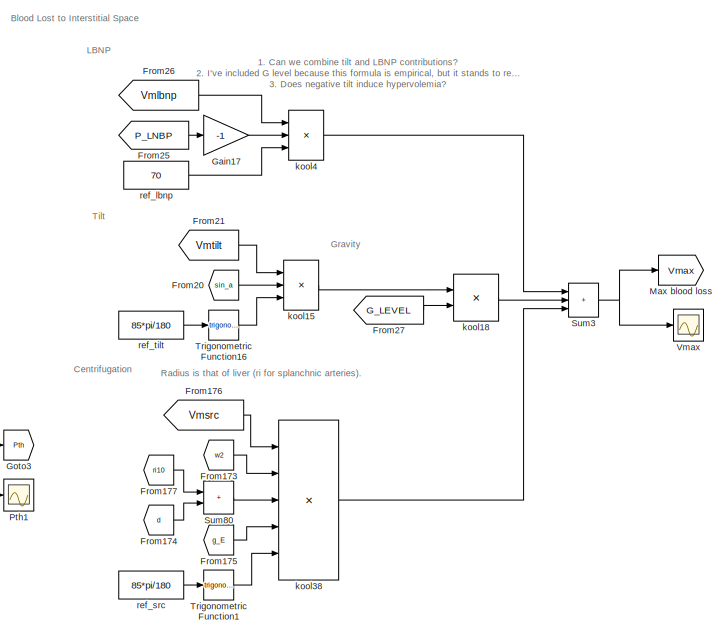
[diagram: Orthostatic Stress Inputs - part 1/6, top right region]
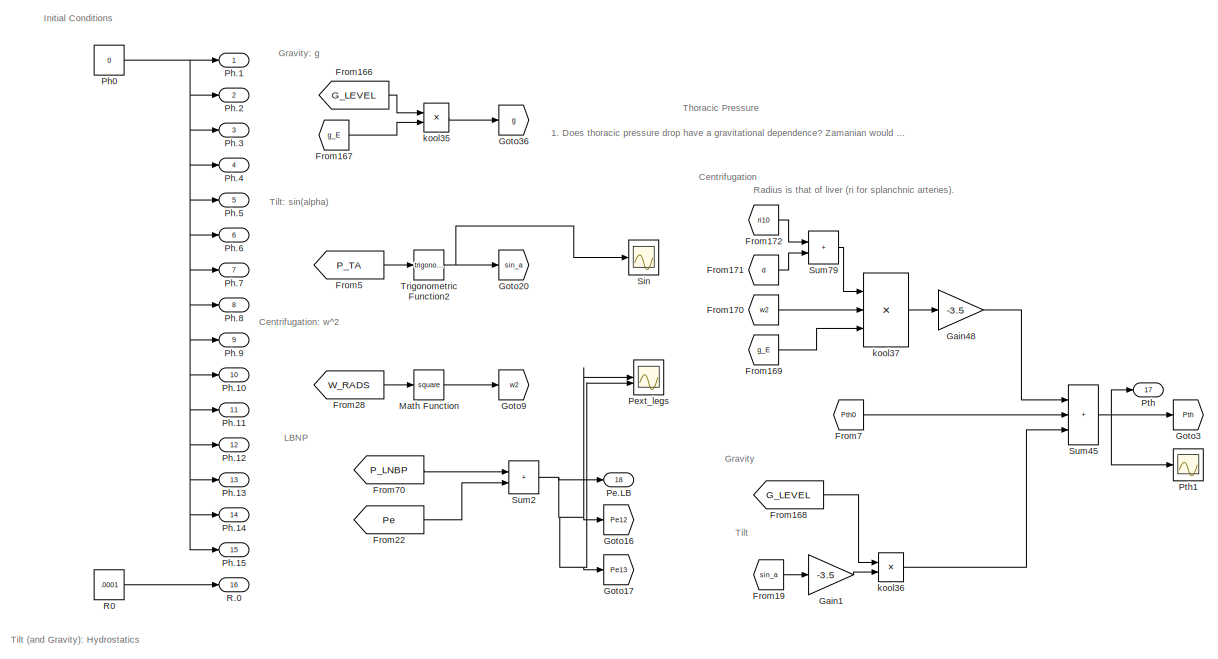
[diagram: Orthostatic Stress Inputs - part 2/6, top center region]
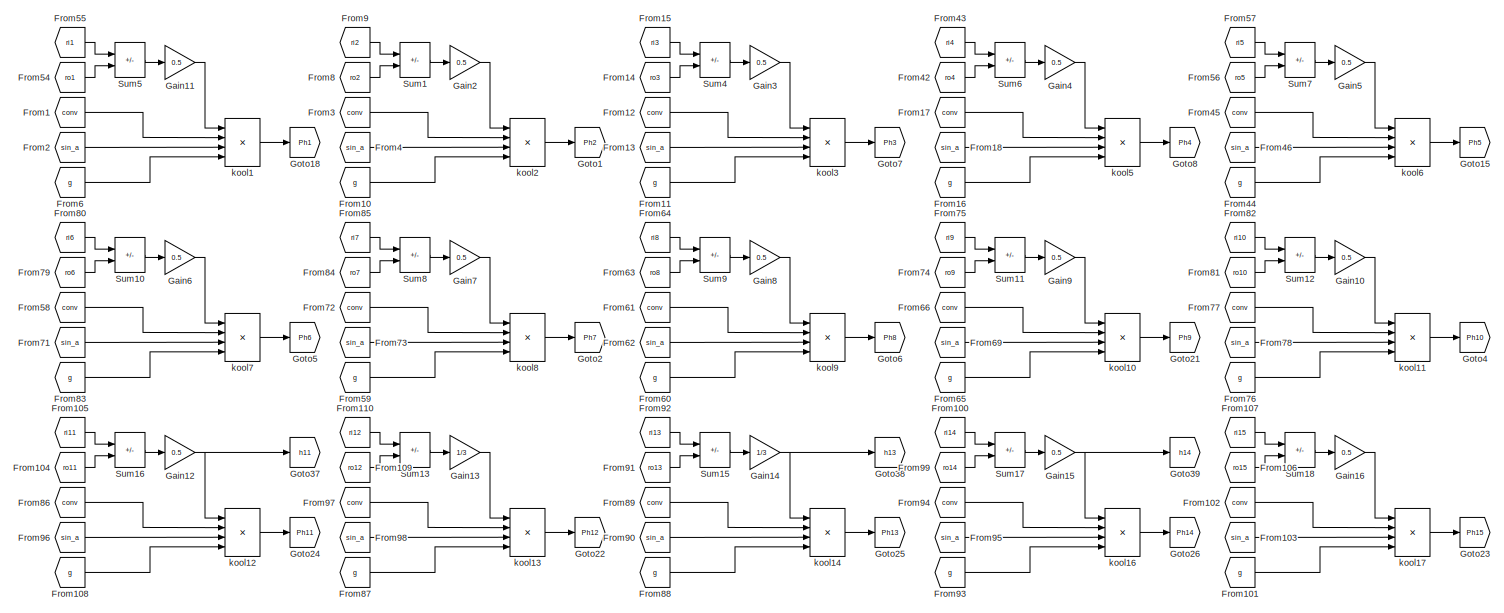
[diagram: Orthostatic Stress Inputs - part 3/6, central region]
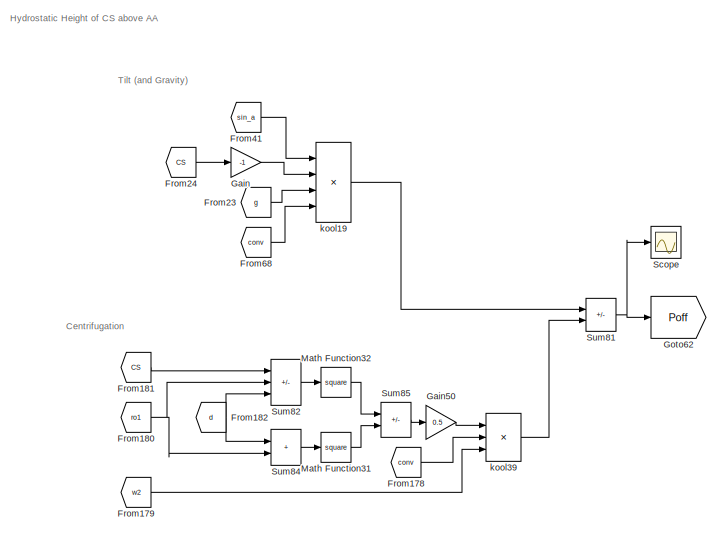
[diagram: Orthostatic Stress Inputs - part 4/6, middle right region]
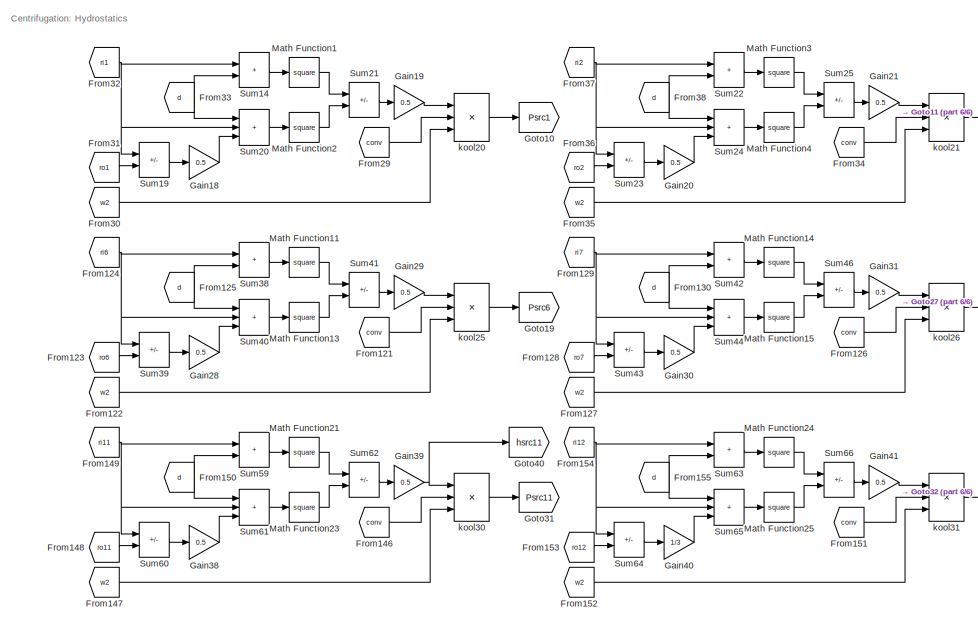
[diagram: Orthostatic Stress Inputs - part 5/6, bottom left region]
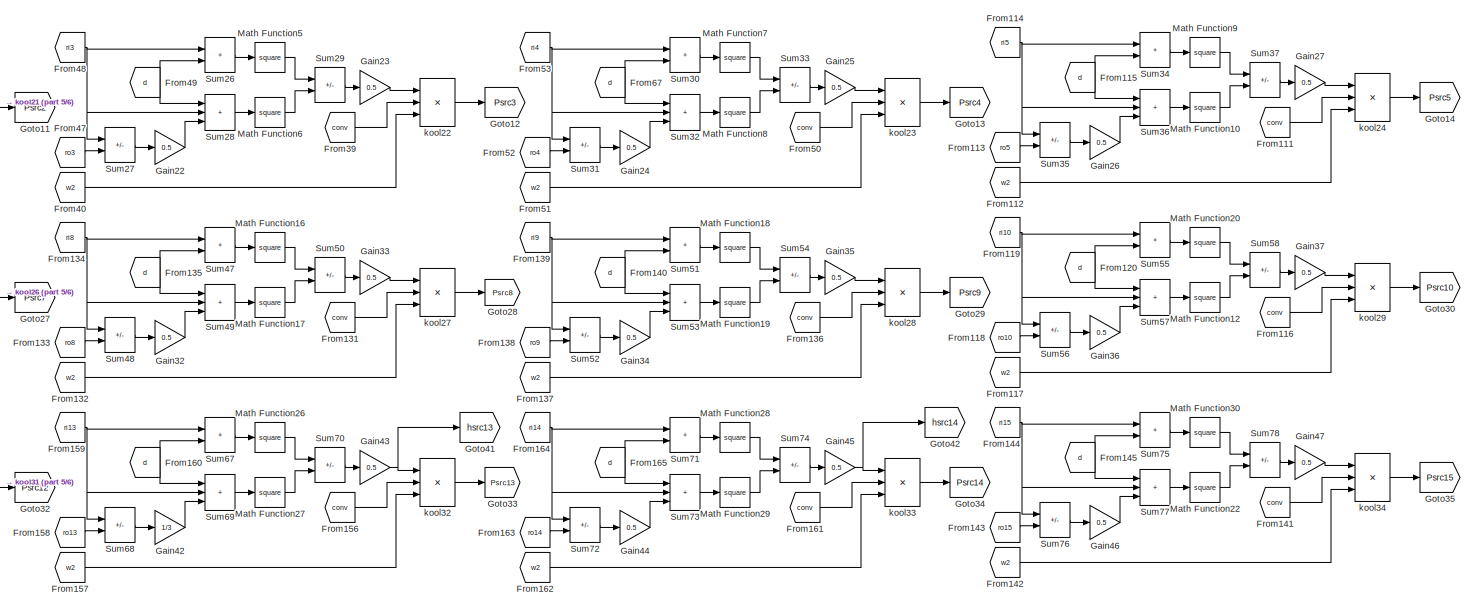
[diagram: Orthostatic Stress Inputs - part 6/6, bottom center region]
BLOCK [SubSystem] Orthostatic Stress Inputs
BLOCK [From] Orthostatic Stress Inputs/From1
  CloseFcn = tagdialog Close
  GotoTag = conv
  TagVisibility = global
BLOCK [From] Orthostatic Stress Inputs/From10
  CloseFcn = tagdialog Close
  GotoTag = g
  TagVisibility = global
BLOCK [From] Orthostatic Stress Inputs/From100
  CloseFcn = tagdialog Close
  GotoTag = ri14
  TagVisibility = global
BLOCK [From] Orthostatic Stress Inputs/From101
  CloseFcn = tagdialog Close
  GotoTag = g
  TagVisibility = global
BLOCK [From] Orthostatic Stress Inputs/From102
  CloseFcn = tagdialog Close
  GotoTag = conv
  TagVisibility = global
BLOCK [From] Orthostatic Stress Inputs/From103
  CloseFcn = tagdialog Close
  GotoTag = sin_a
  TagVisibility = global
BLOCK [From] Orthostatic Stress Inputs/From104
  CloseFcn = tagdialog Close
  GotoTag = ro11
  TagVisibility = global
BLOCK [From] Orthostatic Stress Inputs/From105
  CloseFcn = tagdialog Close
  GotoTag = ri11
  TagVisibility = global
BLOCK [From] Orthostatic Stress Inputs/From106
  CloseFcn = tagdialog Close
  GotoTag = ro15
  TagVisibility = global
BLOCK [From] Orthostatic Stress Inputs/From107
  CloseFcn = tagdialog Close
  GotoTag = ri15
  TagVisibility = global
BLOCK [From] Orthostatic Stress Inputs/From108
  CloseFcn = tagdialog Close
  GotoTag = g
  TagVisibility = global
BLOCK [From] Orthostatic Stress Inputs/From109
  CloseFcn = tagdialog Close
  GotoTag = ro12
  TagVisibility = global
BLOCK [From] Orthostatic Stress Inputs/From11
  CloseFcn = tagdialog Close
  GotoTag = g
  TagVisibility = global
BLOCK [From] Orthostatic Stress Inputs/From110
  CloseFcn = tagdialog Close
  GotoTag = ri12
  TagVisibility = global
BLOCK [From] Orthostatic Stress Inputs/From111
  CloseFcn = tagdialog Close
  GotoTag = conv
  TagVisibility = global
BLOCK [From] Orthostatic Stress Inputs/From112
  CloseFcn = tagdialog Close
  GotoTag = w2
  TagVisibility = global
BLOCK [From] Orthostatic Stress Inputs/From113
  CloseFcn = tagdialog Close
  GotoTag = ro5
  TagVisibility = global
BLOCK [From] Orthostatic Stress Inputs/From114
  CloseFcn = tagdialog Close
  GotoTag = ri5
  TagVisibility = global
BLOCK [From] Orthostatic Stress Inputs/From115
  CloseFcn = tagdialog Close
  GotoTag = d
  TagVisibility = global
BLOCK [From] Orthostatic Stress Inputs/From116
  CloseFcn = tagdialog Close
  GotoTag = conv
  TagVisibility = global
BLOCK [From] Orthostatic Stress Inputs/From117
  CloseFcn = tagdialog Close
  GotoTag = w2
  TagVisibility = global
BLOCK [From] Orthostatic Stress Inputs/From118
  CloseFcn = tagdialog Close
  GotoTag = ro10
  TagVisibility = global
BLOCK [From] Orthostatic Stress Inputs/From119
  CloseFcn = tagdialog Close
  GotoTag = ri10
  TagVisibility = global
BLOCK [From] Orthostatic Stress Inputs/From12
  CloseFcn = tagdialog Close
  GotoTag = conv
  TagVisibility = global
BLOCK [From] Orthostatic Stress Inputs/From120
  CloseFcn = tagdialog Close
  GotoTag = d
  TagVisibility = global
BLOCK [From] Orthostatic Stress Inputs/From121
  CloseFcn = tagdialog Close
  GotoTag = conv
  TagVisibility = global
BLOCK [From] Orthostatic Stress Inputs/From122
  CloseFcn = tagdialog Close
  GotoTag = w2
  TagVisibility = global
BLOCK [From] Orthostatic Stress Inputs/From123
  CloseFcn = tagdialog Close
  GotoTag = ro6
  TagVisibility = global
BLOCK [From] Orthostatic Stress Inputs/From124
  CloseFcn = tagdialog Close
  GotoTag = ri6
  TagVisibility = global
BLOCK [From] Orthostatic Stress Inputs/From125
  CloseFcn = tagdialog Close
  GotoTag = d
  TagVisibility = global
BLOCK [From] Orthostatic Stress Inputs/From126
  CloseFcn = tagdialog Close
  GotoTag = conv
  TagVisibility = global
BLOCK [From] Orthostatic Stress Inputs/From127
  CloseFcn = tagdialog Close
  GotoTag = w2
  TagVisibility = global
BLOCK [From] Orthostatic Stress Inputs/From128
  CloseFcn = tagdialog Close
  GotoTag = ro7
  TagVisibility = global
BLOCK [From] Orthostatic Stress Inputs/From129
  CloseFcn = tagdialog Close
  GotoTag = ri7
  TagVisibility = global
BLOCK [From] Orthostatic Stress Inputs/From13
  CloseFcn = tagdialog Close
  GotoTag = sin_a
  TagVisibility = global
BLOCK [From] Orthostatic Stress Inputs/From130
  CloseFcn = tagdialog Close
  GotoTag = d
  TagVisibility = global
BLOCK [From] Orthostatic Stress Inputs/From131
  CloseFcn = tagdialog Close
  GotoTag = conv
  TagVisibility = global
BLOCK [From] Orthostatic Stress Inputs/From132
  CloseFcn = tagdialog Close
  GotoTag = w2
  TagVisibility = global
BLOCK [From] Orthostatic Stress Inputs/From133
  CloseFcn = tagdialog Close
  GotoTag = ro8
  TagVisibility = global
BLOCK [From] Orthostatic Stress Inputs/From134
  CloseFcn = tagdialog Close
  GotoTag = ri8
  TagVisibility = global
BLOCK [From] Orthostatic Stress Inputs/From135
  CloseFcn = tagdialog Close
  GotoTag = d
  TagVisibility = global
BLOCK [From] Orthostatic Stress Inputs/From136
  CloseFcn = tagdialog Close
  GotoTag = conv
  TagVisibility = global
BLOCK [From] Orthostatic Stress Inputs/From137
  CloseFcn = tagdialog Close
  GotoTag = w2
  TagVisibility = global
BLOCK [From] Orthostatic Stress Inputs/From138
  CloseFcn = tagdialog Close
  GotoTag = ro9
  TagVisibility = global
BLOCK [From] Orthostatic Stress Inputs/From139
  CloseFcn = tagdialog Close
  GotoTag = ri9
  TagVisibility = global
BLOCK [From] Orthostatic Stress Inputs/From14
  CloseFcn = tagdialog Close
  GotoTag = ro3
  TagVisibility = global
BLOCK [From] Orthostatic Stress Inputs/From140
  CloseFcn = tagdialog Close
  GotoTag = d
  TagVisibility = global
BLOCK [From] Orthostatic Stress Inputs/From141
  CloseFcn = tagdialog Close
  GotoTag = conv
  TagVisibility = global
BLOCK [From] Orthostatic Stress Inputs/From142
  CloseFcn = tagdialog Close
  GotoTag = w2
  TagVisibility = global
BLOCK [From] Orthostatic Stress Inputs/From143
  CloseFcn = tagdialog Close
  GotoTag = ro15
  TagVisibility = global
BLOCK [From] Orthostatic Stress Inputs/From144
  CloseFcn = tagdialog Close
  GotoTag = ri15
  TagVisibility = global
BLOCK [From] Orthostatic Stress Inputs/From145
  CloseFcn = tagdialog Close
  GotoTag = d
  TagVisibility = global
BLOCK [From] Orthostatic Stress Inputs/From146
  CloseFcn = tagdialog Close
  GotoTag = conv
  TagVisibility = global
BLOCK [From] Orthostatic Stress Inputs/From147
  CloseFcn = tagdialog Close
  GotoTag = w2
  TagVisibility = global
BLOCK [From] Orthostatic Stress Inputs/From148
  CloseFcn = tagdialog Close
  GotoTag = ro11
  TagVisibility = global
BLOCK [From] Orthostatic Stress Inputs/From149
  CloseFcn = tagdialog Close
  GotoTag = ri11
  TagVisibility = global
BLOCK [From] Orthostatic Stress Inputs/From15
  CloseFcn = tagdialog Close
  GotoTag = ri3
  TagVisibility = global
BLOCK [From] Orthostatic Stress Inputs/From150
  CloseFcn = tagdialog Close
  GotoTag = d
  TagVisibility = global
BLOCK [From] Orthostatic Stress Inputs/From151
  CloseFcn = tagdialog Close
  GotoTag = conv
  TagVisibility = global
BLOCK [From] Orthostatic Stress Inputs/From152
  CloseFcn = tagdialog Close
  GotoTag = w2
  TagVisibility = global
BLOCK [From] Orthostatic Stress Inputs/From153
  CloseFcn = tagdialog Close
  GotoTag = ro12
  TagVisibility = global
BLOCK [From] Orthostatic Stress Inputs/From154
  CloseFcn = tagdialog Close
  GotoTag = ri12
  TagVisibility = global
BLOCK [From] Orthostatic Stress Inputs/From155
  CloseFcn = tagdialog Close
  GotoTag = d
  TagVisibility = global
BLOCK [From] Orthostatic Stress Inputs/From156
  CloseFcn = tagdialog Close
  GotoTag = conv
  TagVisibility = global
BLOCK [From] Orthostatic Stress Inputs/From157
  CloseFcn = tagdialog Close
  GotoTag = w2
  TagVisibility = global
BLOCK [From] Orthostatic Stress Inputs/From158
  CloseFcn = tagdialog Close
  GotoTag = ro13
  TagVisibility = global
BLOCK [From] Orthostatic Stress Inputs/From159
  CloseFcn = tagdialog Close
  GotoTag = ri13
  TagVisibility = global
BLOCK [From] Orthostatic Stress Inputs/From16
  CloseFcn = tagdialog Close
  GotoTag = g
  TagVisibility = global
BLOCK [From] Orthostatic Stress Inputs/From160
  CloseFcn = tagdialog Close
  GotoTag = d
  TagVisibility = global
BLOCK [From] Orthostatic Stress Inputs/From161
  CloseFcn = tagdialog Close
  GotoTag = conv
  TagVisibility = global
BLOCK [From] Orthostatic Stress Inputs/From162
  CloseFcn = tagdialog Close
  GotoTag = w2
  TagVisibility = global
BLOCK [From] Orthostatic Stress Inputs/From163
  CloseFcn = tagdialog Close
  GotoTag = ro14
  TagVisibility = global
BLOCK [From] Orthostatic Stress Inputs/From164
  CloseFcn = tagdialog Close
  GotoTag = ri14
  TagVisibility = global
BLOCK [From] Orthostatic Stress Inputs/From165
  CloseFcn = tagdialog Close
  GotoTag = d
  TagVisibility = global
BLOCK [From] Orthostatic Stress Inputs/From166
  GotoTag = G_LEVEL
  TagVisibility = global
BLOCK [From] Orthostatic Stress Inputs/From167
  CloseFcn = tagdialog Close
  GotoTag = g_E
  TagVisibility = global
BLOCK [From] Orthostatic Stress Inputs/From168
  GotoTag = G_LEVEL
  TagVisibility = global
BLOCK [From] Orthostatic Stress Inputs/From169
  CloseFcn = tagdialog Close
  GotoTag = g_E
  TagVisibility = global
BLOCK [From] Orthostatic Stress Inputs/From17
  CloseFcn = tagdialog Close
  GotoTag = conv
  TagVisibility = global
BLOCK [From] Orthostatic Stress Inputs/From170
  CloseFcn = tagdialog Close
  GotoTag = w2
  TagVisibility = global
BLOCK [From] Orthostatic Stress Inputs/From171
  CloseFcn = tagdialog Close
  GotoTag = d
  TagVisibility = global
BLOCK [From] Orthostatic Stress Inputs/From172
  CloseFcn = tagdialog Close
  GotoTag = ri10
  TagVisibility = global
BLOCK [From] Orthostatic Stress Inputs/From173
  CloseFcn = tagdialog Close
  GotoTag = w2
  TagVisibility = global
BLOCK [From] Orthostatic Stress Inputs/From174
  CloseFcn = tagdialog Close
  GotoTag = d
  TagVisibility = global
BLOCK [From] Orthostatic Stress Inputs/From175
  CloseFcn = tagdialog Close
  GotoTag = g_E
  TagVisibility = global
BLOCK [From] Orthostatic Stress Inputs/From176
  CloseFcn = tagdialog Close
  GotoTag = Vmsrc
  TagVisibility = global
BLOCK [From] Orthostatic Stress Inputs/From177
  CloseFcn = tagdialog Close
  GotoTag = ri10
  TagVisibility = global
BLOCK [From] Orthostatic Stress Inputs/From178
  CloseFcn = tagdialog Close
  GotoTag = conv
  TagVisibility = global
BLOCK [From] Orthostatic Stress Inputs/From179
  CloseFcn = tagdialog Close
  GotoTag = w2
  TagVisibility = global
BLOCK [From] Orthostatic Stress Inputs/From18
  CloseFcn = tagdialog Close
  GotoTag = sin_a
  TagVisibility = global
BLOCK [From] Orthostatic Stress Inputs/From180
  CloseFcn = tagdialog Close
  GotoTag = ro1
  TagVisibility = global
BLOCK [From] Orthostatic Stress Inputs/From181
  CloseFcn = tagdialog Close
  GotoTag = CS
  TagVisibility = global
BLOCK [From] Orthostatic Stress Inputs/From182
  CloseFcn = tagdialog Close
  GotoTag = d
  TagVisibility = global
BLOCK [From] Orthostatic Stress Inputs/From19
  CloseFcn = tagdialog Close
  GotoTag = sin_a
  TagVisibility = global
BLOCK [From] Orthostatic Stress Inputs/From2
  CloseFcn = tagdialog Close
  GotoTag = sin_a
  TagVisibility = global
BLOCK [From] Orthostatic Stress Inputs/From20
  CloseFcn = tagdialog Close
  GotoTag = sin_a
  TagVisibility = global
BLOCK [From] Orthostatic Stress Inputs/From21
  CloseFcn = tagdialog Close
  GotoTag = Vmtilt
  TagVisibility = global
BLOCK [From] Orthostatic Stress Inputs/From22
  GotoTag = Pe
  TagVisibility = global
BLOCK [From] Orthostatic Stress Inputs/From23
  CloseFcn = tagdialog Close
  GotoTag = g
  TagVisibility = global
BLOCK [From] Orthostatic Stress Inputs/From24
  CloseFcn = tagdialog Close
  GotoTag = CS
  TagVisibility = global
BLOCK [From] Orthostatic Stress Inputs/From25
  GotoTag = P_LNBP
  TagVisibility = global
BLOCK [From] Orthostatic Stress Inputs/From26
  CloseFcn = tagdialog Close
  GotoTag = Vmlbnp
  TagVisibility = global
BLOCK [From] Orthostatic Stress Inputs/From27
  GotoTag = G_LEVEL
  TagVisibility = global
BLOCK [From] Orthostatic Stress Inputs/From28
  GotoTag = W_RADS
  TagVisibility = global
BLOCK [From] Orthostatic Stress Inputs/From29
  CloseFcn = tagdialog Close
  GotoTag = conv
  TagVisibility = global
BLOCK [From] Orthostatic Stress Inputs/From3
  CloseFcn = tagdialog Close
  GotoTag = conv
  TagVisibility = global
BLOCK [From] Orthostatic Stress Inputs/From30
  CloseFcn = tagdialog Close
  GotoTag = w2
  TagVisibility = global
BLOCK [From] Orthostatic Stress Inputs/From31
  CloseFcn = tagdialog Close
  GotoTag = ro1
  TagVisibility = global
BLOCK [From] Orthostatic Stress Inputs/From32
  CloseFcn = tagdialog Close
  GotoTag = ri1
  TagVisibility = global
BLOCK [From] Orthostatic Stress Inputs/From33
  CloseFcn = tagdialog Close
  GotoTag = d
  TagVisibility = global
BLOCK [From] Orthostatic Stress Inputs/From34
  CloseFcn = tagdialog Close
  GotoTag = conv
  TagVisibility = global
BLOCK [From] Orthostatic Stress Inputs/From35
  CloseFcn = tagdialog Close
  GotoTag = w2
  TagVisibility = global
BLOCK [From] Orthostatic Stress Inputs/From36
  CloseFcn = tagdialog Close
  GotoTag = ro2
  TagVisibility = global
BLOCK [From] Orthostatic Stress Inputs/From37
  CloseFcn = tagdialog Close
  GotoTag = ri2
  TagVisibility = global
BLOCK [From] Orthostatic Stress Inputs/From38
  CloseFcn = tagdialog Close
  GotoTag = d
  TagVisibility = global
BLOCK [From] Orthostatic Stress Inputs/From39
  CloseFcn = tagdialog Close
  GotoTag = conv
  TagVisibility = global
BLOCK [From] Orthostatic Stress Inputs/From4
  CloseFcn = tagdialog Close
  GotoTag = sin_a
  TagVisibility = global
BLOCK [From] Orthostatic Stress Inputs/From40
  CloseFcn = tagdialog Close
  GotoTag = w2
  TagVisibility = global
BLOCK [From] Orthostatic Stress Inputs/From41
  CloseFcn = tagdialog Close
  GotoTag = sin_a
  TagVisibility = global
BLOCK [From] Orthostatic Stress Inputs/From42
  CloseFcn = tagdialog Close
  GotoTag = ro4
  TagVisibility = global
BLOCK [From] Orthostatic Stress Inputs/From43
  CloseFcn = tagdialog Close
  GotoTag = ri4
  TagVisibility = global
BLOCK [From] Orthostatic Stress Inputs/From44
  CloseFcn = tagdialog Close
  GotoTag = g
  TagVisibility = global
BLOCK [From] Orthostatic Stress Inputs/From45
  CloseFcn = tagdialog Close
  GotoTag = conv
  TagVisibility = global
BLOCK [From] Orthostatic Stress Inputs/From46
  CloseFcn = tagdialog Close
  GotoTag = sin_a
  TagVisibility = global
BLOCK [From] Orthostatic Stress Inputs/From47
  CloseFcn = tagdialog Close
  GotoTag = ro3
  TagVisibility = global
BLOCK [From] Orthostatic Stress Inputs/From48
  CloseFcn = tagdialog Close
  GotoTag = ri3
  TagVisibility = global
BLOCK [From] Orthostatic Stress Inputs/From49
  CloseFcn = tagdialog Close
  GotoTag = d
  TagVisibility = global
BLOCK [From] Orthostatic Stress Inputs/From5
  GotoTag = P_TA
  TagVisibility = global
BLOCK [From] Orthostatic Stress Inputs/From50
  CloseFcn = tagdialog Close
  GotoTag = conv
  TagVisibility = global
BLOCK [From] Orthostatic Stress Inputs/From51
  CloseFcn = tagdialog Close
  GotoTag = w2
  TagVisibility = global
BLOCK [From] Orthostatic Stress Inputs/From52
  CloseFcn = tagdialog Close
  GotoTag = ro4
  TagVisibility = global
BLOCK [From] Orthostatic Stress Inputs/From53
  CloseFcn = tagdialog Close
  GotoTag = ri4
  TagVisibility = global
BLOCK [From] Orthostatic Stress Inputs/From54
  CloseFcn = tagdialog Close
  GotoTag = ro1
  TagVisibility = global
BLOCK [From] Orthostatic Stress Inputs/From55
  CloseFcn = tagdialog Close
  GotoTag = ri1
  TagVisibility = global
BLOCK [From] Orthostatic Stress Inputs/From56
  CloseFcn = tagdialog Close
  GotoTag = ro5
  TagVisibility = global
BLOCK [From] Orthostatic Stress Inputs/From57
  CloseFcn = tagdialog Close
  GotoTag = ri5
  TagVisibility = global
BLOCK [From] Orthostatic Stress Inputs/From58
  CloseFcn = tagdialog Close
  GotoTag = conv
  TagVisibility = global
BLOCK [From] Orthostatic Stress Inputs/From59
  CloseFcn = tagdialog Close
  GotoTag = g
  TagVisibility = global
BLOCK [From] Orthostatic Stress Inputs/From6
  CloseFcn = tagdialog Close
  GotoTag = g
  TagVisibility = global
BLOCK [From] Orthostatic Stress Inputs/From60
  CloseFcn = tagdialog Close
  GotoTag = g
  TagVisibility = global
BLOCK [From] Orthostatic Stress Inputs/From61
  CloseFcn = tagdialog Close
  GotoTag = conv
  TagVisibility = global
BLOCK [From] Orthostatic Stress Inputs/From62
  CloseFcn = tagdialog Close
  GotoTag = sin_a
  TagVisibility = global
BLOCK [From] Orthostatic Stress Inputs/From63
  CloseFcn = tagdialog Close
  GotoTag = ro8
  TagVisibility = global
BLOCK [From] Orthostatic Stress Inputs/From64
  CloseFcn = tagdialog Close
  GotoTag = ri8
  TagVisibility = global
BLOCK [From] Orthostatic Stress Inputs/From65
  CloseFcn = tagdialog Close
  GotoTag = g
  TagVisibility = global
BLOCK [From] Orthostatic Stress Inputs/From66
  CloseFcn = tagdialog Close
  GotoTag = conv
  TagVisibility = global
BLOCK [From] Orthostatic Stress Inputs/From67
  CloseFcn = tagdialog Close
  GotoTag = d
  TagVisibility = global
BLOCK [From] Orthostatic Stress Inputs/From68
  CloseFcn = tagdialog Close
  GotoTag = conv
  TagVisibility = global
BLOCK [From] Orthostatic Stress Inputs/From69
  CloseFcn = tagdialog Close
  GotoTag = sin_a
  TagVisibility = global
BLOCK [From] Orthostatic Stress Inputs/From7
  CloseFcn = tagdialog Close
  GotoTag = Pth0
  TagVisibility = global
BLOCK [From] Orthostatic Stress Inputs/From70
  GotoTag = P_LNBP
  TagVisibility = global
BLOCK [From] Orthostatic Stress Inputs/From71
  CloseFcn = tagdialog Close
  GotoTag = sin_a
  TagVisibility = global
BLOCK [From] Orthostatic Stress Inputs/From72
  CloseFcn = tagdialog Close
  GotoTag = conv
  TagVisibility = global
BLOCK [From] Orthostatic Stress Inputs/From73
  CloseFcn = tagdialog Close
  GotoTag = sin_a
  TagVisibility = global
BLOCK [From] Orthostatic Stress Inputs/From74
  CloseFcn = tagdialog Close
  GotoTag = ro9
  TagVisibility = global
BLOCK [From] Orthostatic Stress Inputs/From75
  CloseFcn = tagdialog Close
  GotoTag = ri9
  TagVisibility = global
BLOCK [From] Orthostatic Stress Inputs/From76
  CloseFcn = tagdialog Close
  GotoTag = g
  TagVisibility = global
BLOCK [From] Orthostatic Stress Inputs/From77
  CloseFcn = tagdialog Close
  GotoTag = conv
  TagVisibility = global
BLOCK [From] Orthostatic Stress Inputs/From78
  CloseFcn = tagdialog Close
  GotoTag = sin_a
  TagVisibility = global
BLOCK [From] Orthostatic Stress Inputs/From79
  CloseFcn = tagdialog Close
  GotoTag = ro6
  TagVisibility = global
BLOCK [From] Orthostatic Stress Inputs/From8
  CloseFcn = tagdialog Close
  GotoTag = ro2
  TagVisibility = global
BLOCK [From] Orthostatic Stress Inputs/From80
  CloseFcn = tagdialog Close
  GotoTag = ri6
  TagVisibility = global
BLOCK [From] Orthostatic Stress Inputs/From81
  CloseFcn = tagdialog Close
  GotoTag = ro10
  TagVisibility = global
BLOCK [From] Orthostatic Stress Inputs/From82
  CloseFcn = tagdialog Close
  GotoTag = ri10
  TagVisibility = global
BLOCK [From] Orthostatic Stress Inputs/From83
  CloseFcn = tagdialog Close
  GotoTag = g
  TagVisibility = global
BLOCK [From] Orthostatic Stress Inputs/From84
  CloseFcn = tagdialog Close
  GotoTag = ro7
  TagVisibility = global
BLOCK [From] Orthostatic Stress Inputs/From85
  CloseFcn = tagdialog Close
  GotoTag = ri7
  TagVisibility = global
BLOCK [From] Orthostatic Stress Inputs/From86
  CloseFcn = tagdialog Close
  GotoTag = conv
  TagVisibility = global
BLOCK [From] Orthostatic Stress Inputs/From87
  CloseFcn = tagdialog Close
  GotoTag = g
  TagVisibility = global
BLOCK [From] Orthostatic Stress Inputs/From88
  CloseFcn = tagdialog Close
  GotoTag = g
  TagVisibility = global
BLOCK [From] Orthostatic Stress Inputs/From89
  CloseFcn = tagdialog Close
  GotoTag = conv
  TagVisibility = global
BLOCK [From] Orthostatic Stress Inputs/From9
  CloseFcn = tagdialog Close
  GotoTag = ri2
  TagVisibility = global
BLOCK [From] Orthostatic Stress Inputs/From90
  CloseFcn = tagdialog Close
  GotoTag = sin_a
  TagVisibility = global
BLOCK [From] Orthostatic Stress Inputs/From91
  CloseFcn = tagdialog Close
  GotoTag = ro13
  TagVisibility = global
BLOCK [From] Orthostatic Stress Inputs/From92
  CloseFcn = tagdialog Close
  GotoTag = ri13
  TagVisibility = global
BLOCK [From] Orthostatic Stress Inputs/From93
  CloseFcn = tagdialog Close
  GotoTag = g
  TagVisibility = global
BLOCK [From] Orthostatic Stress Inputs/From94
  CloseFcn = tagdialog Close
  GotoTag = conv
  TagVisibility = global
BLOCK [From] Orthostatic Stress Inputs/From95
  CloseFcn = tagdialog Close
  GotoTag = sin_a
  TagVisibility = global
BLOCK [From] Orthostatic Stress Inputs/From96
  CloseFcn = tagdialog Close
  GotoTag = sin_a
  TagVisibility = global
BLOCK [From] Orthostatic Stress Inputs/From97
  CloseFcn = tagdialog Close
  GotoTag = conv
  TagVisibility = global
BLOCK [From] Orthostatic Stress Inputs/From98
  CloseFcn = tagdialog Close
  GotoTag = sin_a
  TagVisibility = global
BLOCK [From] Orthostatic Stress Inputs/From99
  CloseFcn = tagdialog Close
  GotoTag = ro14
  TagVisibility = global
BLOCK [Gain] Orthostatic Stress Inputs/Gain
  Gain = -1
BLOCK [Gain] Orthostatic Stress Inputs/Gain1
  Gain = -3.5
  OutDataTypeStr = Inherit: Same as input
  ParamDataTypeStr = Inherit: Same as input
  SaturateOnIntegerOverflow = on
BLOCK [Gain] Orthostatic Stress Inputs/Gain10
  Gain = 0.5
  OutDataTypeStr = Inherit: Same as input
  ParamDataTypeStr = Inherit: Same as input
  SaturateOnIntegerOverflow = on
BLOCK [Gain] Orthostatic Stress Inputs/Gain11
  Gain = 0.5
  OutDataTypeStr = Inherit: Same as input
  ParamDataTypeStr = Inherit: Same as input
  SaturateOnIntegerOverflow = on
BLOCK [Gain] Orthostatic Stress Inputs/Gain12
  Gain = 0.5
  OutDataTypeStr = Inherit: Same as input
  ParamDataTypeStr = Inherit: Same as input
  SaturateOnIntegerOverflow = on
BLOCK [Gain] Orthostatic Stress Inputs/Gain13
  Gain = 1/3
  OutDataTypeStr = Inherit: Same as input
  ParamDataTypeStr = Inherit: Same as input
  SaturateOnIntegerOverflow = on
BLOCK [Gain] Orthostatic Stress Inputs/Gain14
  Gain = 1/3
  OutDataTypeStr = Inherit: Same as input
  ParamDataTypeStr = Inherit: Same as input
  SaturateOnIntegerOverflow = on
BLOCK [Gain] Orthostatic Stress Inputs/Gain15
  Gain = 0.5
  OutDataTypeStr = Inherit: Same as input
  ParamDataTypeStr = Inherit: Same as input
  SaturateOnIntegerOverflow = on
BLOCK [Gain] Orthostatic Stress Inputs/Gain16
  Gain = 0.5
  OutDataTypeStr = Inherit: Same as input
  ParamDataTypeStr = Inherit: Same as input
  SaturateOnIntegerOverflow = on
BLOCK [Gain] Orthostatic Stress Inputs/Gain17
  Gain = -1
  OutDataTypeStr = Inherit: Same as input
  ParamDataTypeStr = Inherit: Same as input
  SaturateOnIntegerOverflow = on
BLOCK [Gain] Orthostatic Stress Inputs/Gain18
  Gain = 0.5
  OutDataTypeStr = Inherit: Same as input
  ParamDataTypeStr = Inherit: Same as input
  SaturateOnIntegerOverflow = on
BLOCK [Gain] Orthostatic Stress Inputs/Gain19
  Gain = 0.5
  OutDataTypeStr = Inherit: Same as input
  ParamDataTypeStr = Inherit: Same as input
  SaturateOnIntegerOverflow = on
BLOCK [Gain] Orthostatic Stress Inputs/Gain2
  Gain = 0.5
  OutDataTypeStr = Inherit: Same as input
  ParamDataTypeStr = Inherit: Same as input
  SaturateOnIntegerOverflow = on
BLOCK [Gain] Orthostatic Stress Inputs/Gain20
  Gain = 0.5
  OutDataTypeStr = Inherit: Same as input
  ParamDataTypeStr = Inherit: Same as input
  SaturateOnIntegerOverflow = on
BLOCK [Gain] Orthostatic Stress Inputs/Gain21
  Gain = 0.5
  OutDataTypeStr = Inherit: Same as input
  ParamDataTypeStr = Inherit: Same as input
  SaturateOnIntegerOverflow = on
BLOCK [Gain] Orthostatic Stress Inputs/Gain22
  Gain = 0.5
  OutDataTypeStr = Inherit: Same as input
  ParamDataTypeStr = Inherit: Same as input
  SaturateOnIntegerOverflow = on
BLOCK [Gain] Orthostatic Stress Inputs/Gain23
  Gain = 0.5
  OutDataTypeStr = Inherit: Same as input
  ParamDataTypeStr = Inherit: Same as input
  SaturateOnIntegerOverflow = on
BLOCK [Gain] Orthostatic Stress Inputs/Gain24
  Gain = 0.5
  OutDataTypeStr = Inherit: Same as input
  ParamDataTypeStr = Inherit: Same as input
  SaturateOnIntegerOverflow = on
BLOCK [Gain] Orthostatic Stress Inputs/Gain25
  Gain = 0.5
  OutDataTypeStr = Inherit: Same as input
  ParamDataTypeStr = Inherit: Same as input
  SaturateOnIntegerOverflow = on
BLOCK [Gain] Orthostatic Stress Inputs/Gain26
  Gain = 0.5
  OutDataTypeStr = Inherit: Same as input
  ParamDataTypeStr = Inherit: Same as input
  SaturateOnIntegerOverflow = on
BLOCK [Gain] Orthostatic Stress Inputs/Gain27
  Gain = 0.5
  OutDataTypeStr = Inherit: Same as input
  ParamDataTypeStr = Inherit: Same as input
  SaturateOnIntegerOverflow = on
BLOCK [Gain] Orthostatic Stress Inputs/Gain28
  Gain = 0.5
  OutDataTypeStr = Inherit: Same as input
  ParamDataTypeStr = Inherit: Same as input
  SaturateOnIntegerOverflow = on
BLOCK [Gain] Orthostatic Stress Inputs/Gain29
  Gain = 0.5
  OutDataTypeStr = Inherit: Same as input
  ParamDataTypeStr = Inherit: Same as input
  SaturateOnIntegerOverflow = on
BLOCK [Gain] Orthostatic Stress Inputs/Gain3
  Gain = 0.5
  OutDataTypeStr = Inherit: Same as input
  ParamDataTypeStr = Inherit: Same as input
  SaturateOnIntegerOverflow = on
BLOCK [Gain] Orthostatic Stress Inputs/Gain30
  Gain = 0.5
  OutDataTypeStr = Inherit: Same as input
  ParamDataTypeStr = Inherit: Same as input
  SaturateOnIntegerOverflow = on
BLOCK [Gain] Orthostatic Stress Inputs/Gain31
  Gain = 0.5
  OutDataTypeStr = Inherit: Same as input
  ParamDataTypeStr = Inherit: Same as input
  SaturateOnIntegerOverflow = on
BLOCK [Gain] Orthostatic Stress Inputs/Gain32
  Gain = 0.5
  OutDataTypeStr = Inherit: Same as input
  ParamDataTypeStr = Inherit: Same as input
  SaturateOnIntegerOverflow = on
BLOCK [Gain] Orthostatic Stress Inputs/Gain33
  Gain = 0.5
  OutDataTypeStr = Inherit: Same as input
  ParamDataTypeStr = Inherit: Same as input
  SaturateOnIntegerOverflow = on
BLOCK [Gain] Orthostatic Stress Inputs/Gain34
  Gain = 0.5
  OutDataTypeStr = Inherit: Same as input
  ParamDataTypeStr = Inherit: Same as input
  SaturateOnIntegerOverflow = on
BLOCK [Gain] Orthostatic Stress Inputs/Gain35
  Gain = 0.5
  OutDataTypeStr = Inherit: Same as input
  ParamDataTypeStr = Inherit: Same as input
  SaturateOnIntegerOverflow = on
BLOCK [Gain] Orthostatic Stress Inputs/Gain36
  Gain = 0.5
  OutDataTypeStr = Inherit: Same as input
  ParamDataTypeStr = Inherit: Same as input
  SaturateOnIntegerOverflow = on
BLOCK [Gain] Orthostatic Stress Inputs/Gain37
  Gain = 0.5
  OutDataTypeStr = Inherit: Same as input
  ParamDataTypeStr = Inherit: Same as input
  SaturateOnIntegerOverflow = on
BLOCK [Gain] Orthostatic Stress Inputs/Gain38
  Gain = 0.5
  OutDataTypeStr = Inherit: Same as input
  ParamDataTypeStr = Inherit: Same as input
  SaturateOnIntegerOverflow = on
BLOCK [Gain] Orthostatic Stress Inputs/Gain39
  Gain = 0.5
  OutDataTypeStr = Inherit: Same as input
  ParamDataTypeStr = Inherit: Same as input
  SaturateOnIntegerOverflow = on
BLOCK [Gain] Orthostatic Stress Inputs/Gain4
  Gain = 0.5
  OutDataTypeStr = Inherit: Same as input
  ParamDataTypeStr = Inherit: Same as input
  SaturateOnIntegerOverflow = on
BLOCK [Gain] Orthostatic Stress Inputs/Gain40
  Gain = 1/3
  OutDataTypeStr = Inherit: Same as input
  ParamDataTypeStr = Inherit: Same as input
  SaturateOnIntegerOverflow = on
BLOCK [Gain] Orthostatic Stress Inputs/Gain41
  Gain = 0.5
  OutDataTypeStr = Inherit: Same as input
  ParamDataTypeStr = Inherit: Same as input
  SaturateOnIntegerOverflow = on
BLOCK [Gain] Orthostatic Stress Inputs/Gain42
  Gain = 1/3
  OutDataTypeStr = Inherit: Same as input
  ParamDataTypeStr = Inherit: Same as input
  SaturateOnIntegerOverflow = on
BLOCK [Gain] Orthostatic Stress Inputs/Gain43
  Gain = 0.5
  OutDataTypeStr = Inherit: Same as input
  ParamDataTypeStr = Inherit: Same as input
  SaturateOnIntegerOverflow = on
BLOCK [Gain] Orthostatic Stress Inputs/Gain44
  Gain = 0.5
  OutDataTypeStr = Inherit: Same as input
  ParamDataTypeStr = Inherit: Same as input
  SaturateOnIntegerOverflow = on
BLOCK [Gain] Orthostatic Stress Inputs/Gain45
  Gain = 0.5
  OutDataTypeStr = Inherit: Same as input
  ParamDataTypeStr = Inherit: Same as input
  SaturateOnIntegerOverflow = on
BLOCK [Gain] Orthostatic Stress Inputs/Gain46
  Gain = 0.5
  OutDataTypeStr = Inherit: Same as input
  ParamDataTypeStr = Inherit: Same as input
  SaturateOnIntegerOverflow = on
BLOCK [Gain] Orthostatic Stress Inputs/Gain47
  Gain = 0.5
  OutDataTypeStr = Inherit: Same as input
  ParamDataTypeStr = Inherit: Same as input
  SaturateOnIntegerOverflow = on
BLOCK [Gain] Orthostatic Stress Inputs/Gain48
  Gain = -3.5
  OutDataTypeStr = Inherit: Same as input
  ParamDataTypeStr = Inherit: Same as input
  SaturateOnIntegerOverflow = on
BLOCK [Gain] Orthostatic Stress Inputs/Gain5
  Gain = 0.5
  OutDataTypeStr = Inherit: Same as input
  ParamDataTypeStr = Inherit: Same as input
  SaturateOnIntegerOverflow = on
BLOCK [Gain] Orthostatic Stress Inputs/Gain50
  Gain = 0.5
  OutDataTypeStr = Inherit: Same as input
  ParamDataTypeStr = Inherit: Same as input
  SaturateOnIntegerOverflow = on
BLOCK [Gain] Orthostatic Stress Inputs/Gain6
  Gain = 0.5
  OutDataTypeStr = Inherit: Same as input
  ParamDataTypeStr = Inherit: Same as input
  SaturateOnIntegerOverflow = on
BLOCK [Gain] Orthostatic Stress Inputs/Gain7
  Gain = 0.5
  OutDataTypeStr = Inherit: Same as input
  ParamDataTypeStr = Inherit: Same as input
  SaturateOnIntegerOverflow = on
BLOCK [Gain] Orthostatic Stress Inputs/Gain8
  Gain = 0.5
  OutDataTypeStr = Inherit: Same as input
  ParamDataTypeStr = Inherit: Same as input
  SaturateOnIntegerOverflow = on
BLOCK [Gain] Orthostatic Stress Inputs/Gain9
  Gain = 0.5
  OutDataTypeStr = Inherit: Same as input
  ParamDataTypeStr = Inherit: Same as input
  SaturateOnIntegerOverflow = on
BLOCK [Goto] Orthostatic Stress Inputs/Goto1
  GotoTag = Ph2
  TagVisibility = global
BLOCK [Goto] Orthostatic Stress Inputs/Goto10
  GotoTag = Psrc1
  TagVisibility = global
BLOCK [Goto] Orthostatic Stress Inputs/Goto11
  GotoTag = Psrc2
  TagVisibility = global
BLOCK [Goto] Orthostatic Stress Inputs/Goto12
  GotoTag = Psrc3
  TagVisibility = global
BLOCK [Goto] Orthostatic Stress Inputs/Goto13
  GotoTag = Psrc4
  TagVisibility = global
BLOCK [Goto] Orthostatic Stress Inputs/Goto14
  GotoTag = Psrc5
  TagVisibility = global
BLOCK [Goto] Orthostatic Stress Inputs/Goto15
  GotoTag = Ph5
  TagVisibility = global
BLOCK [Goto] Orthostatic Stress Inputs/Goto16
  GotoTag = Pe12
  TagVisibility = global
BLOCK [Goto] Orthostatic Stress Inputs/Goto17
  GotoTag = Pe13
  TagVisibility = global
BLOCK [Goto] Orthostatic Stress Inputs/Goto18
  GotoTag = Ph1
  TagVisibility = global
BLOCK [Goto] Orthostatic Stress Inputs/Goto19
  GotoTag = Psrc6
  TagVisibility = global
BLOCK [Goto] Orthostatic Stress Inputs/Goto2
  GotoTag = Ph7
  TagVisibility = global
BLOCK [Goto] Orthostatic Stress Inputs/Goto20
  GotoTag = sin_a
  TagVisibility = global
BLOCK [Goto] Orthostatic Stress Inputs/Goto21
  GotoTag = Ph9
  TagVisibility = global
BLOCK [Goto] Orthostatic Stress Inputs/Goto22
  GotoTag = Ph12
  TagVisibility = global
BLOCK [Goto] Orthostatic Stress Inputs/Goto23
  GotoTag = Ph15
  TagVisibility = global
BLOCK [Goto] Orthostatic Stress Inputs/Goto24
  GotoTag = Ph11
  TagVisibility = global
BLOCK [Goto] Orthostatic Stress Inputs/Goto25
  GotoTag = Ph13
  TagVisibility = global
BLOCK [Goto] Orthostatic Stress Inputs/Goto26
  GotoTag = Ph14
  TagVisibility = global
BLOCK [Goto] Orthostatic Stress Inputs/Goto27
  GotoTag = Psrc7
  TagVisibility = global
BLOCK [Goto] Orthostatic Stress Inputs/Goto28
  GotoTag = Psrc8
  TagVisibility = global
BLOCK [Goto] Orthostatic Stress Inputs/Goto29
  GotoTag = Psrc9
  TagVisibility = global
BLOCK [Goto] Orthostatic Stress Inputs/Goto3
  GotoTag = Pth
  TagVisibility = global
BLOCK [Goto] Orthostatic Stress Inputs/Goto30
  GotoTag = Psrc10
  TagVisibility = global
BLOCK [Goto] Orthostatic Stress Inputs/Goto31
  GotoTag = Psrc11
  TagVisibility = global
BLOCK [Goto] Orthostatic Stress Inputs/Goto32
  GotoTag = Psrc12
  TagVisibility = global
BLOCK [Goto] Orthostatic Stress Inputs/Goto33
  GotoTag = Psrc13
  TagVisibility = global
BLOCK [Goto] Orthostatic Stress Inputs/Goto34
  GotoTag = Psrc14
  TagVisibility = global
BLOCK [Goto] Orthostatic Stress Inputs/Goto35
  GotoTag = Psrc15
  TagVisibility = global
BLOCK [Goto] Orthostatic Stress Inputs/Goto36
  GotoTag = g
  TagVisibility = global
BLOCK [Goto] Orthostatic Stress Inputs/Goto37
  GotoTag = h11
  TagVisibility = global
BLOCK [Goto] Orthostatic Stress Inputs/Goto38
  GotoTag = h13
  TagVisibility = global
BLOCK [Goto] Orthostatic Stress Inputs/Goto39
  GotoTag = h14
  TagVisibility = global
BLOCK [Goto] Orthostatic Stress Inputs/Goto4
  GotoTag = Ph10
  TagVisibility = global
BLOCK [Goto] Orthostatic Stress Inputs/Goto40
  GotoTag = hsrc11
  TagVisibility = global
BLOCK [Goto] Orthostatic Stress Inputs/Goto41
  GotoTag = hsrc13
  TagVisibility = global
BLOCK [Goto] Orthostatic Stress Inputs/Goto42
  GotoTag = hsrc14
  TagVisibility = global
BLOCK [Goto] Orthostatic Stress Inputs/Goto5
  GotoTag = Ph6
  TagVisibility = global
BLOCK [Goto] Orthostatic Stress Inputs/Goto6
  GotoTag = Ph8
  TagVisibility = global
BLOCK [Goto] Orthostatic Stress Inputs/Goto62
  GotoTag = Poff
  TagVisibility = global
BLOCK [Goto] Orthostatic Stress Inputs/Goto7
  GotoTag = Ph3
  TagVisibility = global
BLOCK [Goto] Orthostatic Stress Inputs/Goto8
  GotoTag = Ph4
  TagVisibility = global
BLOCK [Goto] Orthostatic Stress Inputs/Goto9
  GotoTag = w2
  TagVisibility = global
BLOCK [Math] Orthostatic Stress Inputs/Math Function
  Operator = square
BLOCK [Math] Orthostatic Stress Inputs/Math Function1
  Operator = square
BLOCK [Math] Orthostatic Stress Inputs/Math Function10
  Operator = square
BLOCK [Math] Orthostatic Stress Inputs/Math Function11
  Operator = square
BLOCK [Math] Orthostatic Stress Inputs/Math Function12
  Operator = square
BLOCK [Math] Orthostatic Stress Inputs/Math Function13
  Operator = square
BLOCK [Math] Orthostatic Stress Inputs/Math Function14
  Operator = square
BLOCK [Math] Orthostatic Stress Inputs/Math Function15
  Operator = square
BLOCK [Math] Orthostatic Stress Inputs/Math Function16
  Operator = square
BLOCK [Math] Orthostatic Stress Inputs/Math Function17
  Operator = square
BLOCK [Math] Orthostatic Stress Inputs/Math Function18
  Operator = square
BLOCK [Math] Orthostatic Stress Inputs/Math Function19
  Operator = square
BLOCK [Math] Orthostatic Stress Inputs/Math Function2
  Operator = square
BLOCK [Math] Orthostatic Stress Inputs/Math Function20
  Operator = square
BLOCK [Math] Orthostatic Stress Inputs/Math Function21
  Operator = square
BLOCK [Math] Orthostatic Stress Inputs/Math Function22
  Operator = square
BLOCK [Math] Orthostatic Stress Inputs/Math Function23
  Operator = square
BLOCK [Math] Orthostatic Stress Inputs/Math Function24
  Operator = square
BLOCK [Math] Orthostatic Stress Inputs/Math Function25
  Operator = square
BLOCK [Math] Orthostatic Stress Inputs/Math Function26
  Operator = square
BLOCK [Math] Orthostatic Stress Inputs/Math Function27
  Operator = square
BLOCK [Math] Orthostatic Stress Inputs/Math Function28
  Operator = square
BLOCK [Math] Orthostatic Stress Inputs/Math Function29
  Operator = square
BLOCK [Math] Orthostatic Stress Inputs/Math Function3
  Operator = square
BLOCK [Math] Orthostatic Stress Inputs/Math Function30
  Operator = square
BLOCK [Math] Orthostatic Stress Inputs/Math Function31
  Operator = square
BLOCK [Math] Orthostatic Stress Inputs/Math Function32
  Operator = square
BLOCK [Math] Orthostatic Stress Inputs/Math Function4
  Operator = square
BLOCK [Math] Orthostatic Stress Inputs/Math Function5
  Operator = square
BLOCK [Math] Orthostatic Stress Inputs/Math Function6
  Operator = square
BLOCK [Math] Orthostatic Stress Inputs/Math Function7
  Operator = square
BLOCK [Math] Orthostatic Stress Inputs/Math Function8
  Operator = square
BLOCK [Math] Orthostatic Stress Inputs/Math Function9
  Operator = square
BLOCK [Goto] Orthostatic Stress Inputs/Max blood loss
  GotoTag = Vmax
  NameLocation = top
  TagVisibility = global
BLOCK [Outport] Orthostatic Stress Inputs/Pe.LB
  Port = 18
BLOCK [Scope] Orthostatic Stress Inputs/Pext_legs
  Floating = off
  NumInputPorts = 2
  ScopeSpecificationString = Simulink.scopes.TimeScopeBlockCfg('CurrentConfiguration', extmgr.ConfigurationSet(extmgr.Configuration('Core','General UI',true),extmgr.Configuration('Core','Source UI',true),extmgr.Configuration('Sources','WiredSimulink',true,'DataLoggingVariableName','ScopeData1','DataLoggingSaveFormat','Array','DataLoggingDecimation','1','DataLoggingDecimateData',true),extmgr.Configuration('Visuals','Time Domai...<+2218ch>
BLOCK [Outport] Orthostatic Stress Inputs/Ph.1
BLOCK [Outport] Orthostatic Stress Inputs/Ph.10
  Port = 10
BLOCK [Outport] Orthostatic Stress Inputs/Ph.11
  Port = 11
BLOCK [Outport] Orthostatic Stress Inputs/Ph.12
  Port = 12
BLOCK [Outport] Orthostatic Stress Inputs/Ph.13
  Port = 13
BLOCK [Outport] Orthostatic Stress Inputs/Ph.14
  Port = 14
BLOCK [Outport] Orthostatic Stress Inputs/Ph.15
  Port = 15
BLOCK [Outport] Orthostatic Stress Inputs/Ph.2
  Port = 2
BLOCK [Outport] Orthostatic Stress Inputs/Ph.3
  Port = 3
BLOCK [Outport] Orthostatic Stress Inputs/Ph.4
  Port = 4
BLOCK [Outport] Orthostatic Stress Inputs/Ph.5
  Port = 5
BLOCK [Outport] Orthostatic Stress Inputs/Ph.6
  Port = 6
BLOCK [Outport] Orthostatic Stress Inputs/Ph.7
  Port = 7
BLOCK [Outport] Orthostatic Stress Inputs/Ph.8
  Port = 8
BLOCK [Outport] Orthostatic Stress Inputs/Ph.9
  Port = 9
BLOCK [Constant] Orthostatic Stress Inputs/Ph0
  Value = 0
BLOCK [Outport] Orthostatic Stress Inputs/Pth
  NameLocation = right
  Port = 17
BLOCK [Scope] Orthostatic Stress Inputs/Pth1
  Floating = off
  NumInputPorts = 1
  ScopeSpecificationString = Simulink.scopes.TimeScopeBlockCfg('CurrentConfiguration', extmgr.ConfigurationSet(extmgr.Configuration('Core','General UI',true),extmgr.Configuration('Core','Source UI',true),extmgr.Configuration('Sources','WiredSimulink',true,'DataLoggingVariableName','ScopeData5','DataLoggingSaveFormat','Array','DataLoggingDecimation','1','DataLoggingDecimateData',true),extmgr.Configuration('Visuals','Time Domai...<+1654ch>
BLOCK [Outport] Orthostatic Stress Inputs/R.0
  Port = 16
BLOCK [Constant] Orthostatic Stress Inputs/R0
  Value = .0001
BLOCK [Scope] Orthostatic Stress Inputs/Scope
  Floating = off
  NumInputPorts = 1
  ScopeSpecificationString = Simulink.scopes.TimeScopeBlockCfg('CurrentConfiguration', extmgr.ConfigurationSet(extmgr.Configuration('Core','General UI',true),extmgr.Configuration('Core','Source UI',true),extmgr.Configuration('Sources','WiredSimulink',true,'DataLoggingVariableName','ScopeData1'),extmgr.Configuration('Visuals','Time Domain',true,'SerializedDisplays',{struct('MinYLimReal','-2.15793','MaxYLimReal','0.23977','YLab...<+1364ch>
BLOCK [Scope] Orthostatic Stress Inputs/Sin
  Floating = off
  NumInputPorts = 2
  ScopeSpecificationString = Simulink.scopes.TimeScopeBlockCfg('CurrentConfiguration', extmgr.ConfigurationSet(extmgr.Configuration('Core','General UI',true),extmgr.Configuration('Core','Source UI',true),extmgr.Configuration('Sources','WiredSimulink',true,'DataLoggingVariableName','ScopeData2','DataLoggingSaveFormat','Array','DataLoggingDecimation','1','DataLoggingDecimateData',true),extmgr.Configuration('Visuals','Time Domai...<+2255ch>
BLOCK [Sum] Orthostatic Stress Inputs/Sum1
  IconShape = rectangular
  InputSameDT = on
  Inputs = -+
  OutDataTypeStr = Inherit: Same as first input
  SaturateOnIntegerOverflow = on
BLOCK [Sum] Orthostatic Stress Inputs/Sum10
  IconShape = rectangular
  InputSameDT = on
  Inputs = -+
  OutDataTypeStr = Inherit: Same as first input
  SaturateOnIntegerOverflow = on
BLOCK [Sum] Orthostatic Stress Inputs/Sum11
  IconShape = rectangular
  InputSameDT = on
  Inputs = -+
  OutDataTypeStr = Inherit: Same as first input
  SaturateOnIntegerOverflow = on
BLOCK [Sum] Orthostatic Stress Inputs/Sum12
  IconShape = rectangular
  InputSameDT = on
  Inputs = -+
  OutDataTypeStr = Inherit: Same as first input
  SaturateOnIntegerOverflow = on
BLOCK [Sum] Orthostatic Stress Inputs/Sum13
  IconShape = rectangular
  InputSameDT = on
  Inputs = -+
  OutDataTypeStr = Inherit: Same as first input
  SaturateOnIntegerOverflow = on
BLOCK [Sum] Orthostatic Stress Inputs/Sum14
  IconShape = rectangular
  InputSameDT = on
  OutDataTypeStr = Inherit: Same as first input
  SaturateOnIntegerOverflow = on
BLOCK [Sum] Orthostatic Stress Inputs/Sum15
  IconShape = rectangular
  InputSameDT = on
  Inputs = -+
  OutDataTypeStr = Inherit: Same as first input
  SaturateOnIntegerOverflow = on
BLOCK [Sum] Orthostatic Stress Inputs/Sum16
  IconShape = rectangular
  InputSameDT = on
  Inputs = -+
  OutDataTypeStr = Inherit: Same as first input
  SaturateOnIntegerOverflow = on
BLOCK [Sum] Orthostatic Stress Inputs/Sum17
  IconShape = rectangular
  InputSameDT = on
  Inputs = -+
  OutDataTypeStr = Inherit: Same as first input
  SaturateOnIntegerOverflow = on
BLOCK [Sum] Orthostatic Stress Inputs/Sum18
  IconShape = rectangular
  InputSameDT = on
  Inputs = -+
  OutDataTypeStr = Inherit: Same as first input
  SaturateOnIntegerOverflow = on
BLOCK [Sum] Orthostatic Stress Inputs/Sum19
  IconShape = rectangular
  InputSameDT = on
  Inputs = -+
  OutDataTypeStr = Inherit: Same as first input
  SaturateOnIntegerOverflow = on
BLOCK [Sum] Orthostatic Stress Inputs/Sum2
  IconShape = rectangular
  InputSameDT = on
  OutDataTypeStr = Inherit: Same as first input
  SaturateOnIntegerOverflow = on
BLOCK [Sum] Orthostatic Stress Inputs/Sum20
  IconShape = rectangular
  InputSameDT = on
  Inputs = +++
  OutDataTypeStr = Inherit: Same as first input
  SaturateOnIntegerOverflow = on
BLOCK [Sum] Orthostatic Stress Inputs/Sum21
  IconShape = rectangular
  InputSameDT = on
  Inputs = -+
  OutDataTypeStr = Inherit: Same as first input
  SaturateOnIntegerOverflow = on
BLOCK [Sum] Orthostatic Stress Inputs/Sum22
  IconShape = rectangular
  InputSameDT = on
  OutDataTypeStr = Inherit: Same as first input
  SaturateOnIntegerOverflow = on
BLOCK [Sum] Orthostatic Stress Inputs/Sum23
  IconShape = rectangular
  InputSameDT = on
  Inputs = -+
  OutDataTypeStr = Inherit: Same as first input
  SaturateOnIntegerOverflow = on
BLOCK [Sum] Orthostatic Stress Inputs/Sum24
  IconShape = rectangular
  InputSameDT = on
  Inputs = +++
  OutDataTypeStr = Inherit: Same as first input
  SaturateOnIntegerOverflow = on
BLOCK [Sum] Orthostatic Stress Inputs/Sum25
  IconShape = rectangular
  InputSameDT = on
  Inputs = -+
  OutDataTypeStr = Inherit: Same as first input
  SaturateOnIntegerOverflow = on
BLOCK [Sum] Orthostatic Stress Inputs/Sum26
  IconShape = rectangular
  InputSameDT = on
  OutDataTypeStr = Inherit: Same as first input
  SaturateOnIntegerOverflow = on
BLOCK [Sum] Orthostatic Stress Inputs/Sum27
  IconShape = rectangular
  InputSameDT = on
  Inputs = -+
  OutDataTypeStr = Inherit: Same as first input
  SaturateOnIntegerOverflow = on
BLOCK [Sum] Orthostatic Stress Inputs/Sum28
  IconShape = rectangular
  InputSameDT = on
  Inputs = +++
  OutDataTypeStr = Inherit: Same as first input
  SaturateOnIntegerOverflow = on
BLOCK [Sum] Orthostatic Stress Inputs/Sum29
  IconShape = rectangular
  InputSameDT = on
  Inputs = -+
  OutDataTypeStr = Inherit: Same as first input
  SaturateOnIntegerOverflow = on
BLOCK [Sum] Orthostatic Stress Inputs/Sum3
  IconShape = rectangular
  InputSameDT = on
  Inputs = +++
  OutDataTypeStr = Inherit: Same as first input
  SaturateOnIntegerOverflow = on
BLOCK [Sum] Orthostatic Stress Inputs/Sum30
  IconShape = rectangular
  InputSameDT = on
  OutDataTypeStr = Inherit: Same as first input
  SaturateOnIntegerOverflow = on
BLOCK [Sum] Orthostatic Stress Inputs/Sum31
  IconShape = rectangular
  InputSameDT = on
  Inputs = -+
  OutDataTypeStr = Inherit: Same as first input
  SaturateOnIntegerOverflow = on
BLOCK [Sum] Orthostatic Stress Inputs/Sum32
  IconShape = rectangular
  InputSameDT = on
  Inputs = +++
  OutDataTypeStr = Inherit: Same as first input
  SaturateOnIntegerOverflow = on
BLOCK [Sum] Orthostatic Stress Inputs/Sum33
  IconShape = rectangular
  InputSameDT = on
  Inputs = -+
  OutDataTypeStr = Inherit: Same as first input
  SaturateOnIntegerOverflow = on
BLOCK [Sum] Orthostatic Stress Inputs/Sum34
  IconShape = rectangular
  InputSameDT = on
  OutDataTypeStr = Inherit: Same as first input
  SaturateOnIntegerOverflow = on
BLOCK [Sum] Orthostatic Stress Inputs/Sum35
  IconShape = rectangular
  InputSameDT = on
  Inputs = -+
  OutDataTypeStr = Inherit: Same as first input
  SaturateOnIntegerOverflow = on
BLOCK [Sum] Orthostatic Stress Inputs/Sum36
  IconShape = rectangular
  InputSameDT = on
  Inputs = +++
  OutDataTypeStr = Inherit: Same as first input
  SaturateOnIntegerOverflow = on
BLOCK [Sum] Orthostatic Stress Inputs/Sum37
  IconShape = rectangular
  InputSameDT = on
  Inputs = -+
  OutDataTypeStr = Inherit: Same as first input
  SaturateOnIntegerOverflow = on
BLOCK [Sum] Orthostatic Stress Inputs/Sum38
  IconShape = rectangular
  InputSameDT = on
  OutDataTypeStr = Inherit: Same as first input
  SaturateOnIntegerOverflow = on
BLOCK [Sum] Orthostatic Stress Inputs/Sum39
  IconShape = rectangular
  InputSameDT = on
  Inputs = -+
  OutDataTypeStr = Inherit: Same as first input
  SaturateOnIntegerOverflow = on
BLOCK [Sum] Orthostatic Stress Inputs/Sum4
  IconShape = rectangular
  InputSameDT = on
  Inputs = -+
  OutDataTypeStr = Inherit: Same as first input
  SaturateOnIntegerOverflow = on
BLOCK [Sum] Orthostatic Stress Inputs/Sum40
  IconShape = rectangular
  InputSameDT = on
  Inputs = +++
  OutDataTypeStr = Inherit: Same as first input
  SaturateOnIntegerOverflow = on
BLOCK [Sum] Orthostatic Stress Inputs/Sum41
  IconShape = rectangular
  InputSameDT = on
  Inputs = -+
  OutDataTypeStr = Inherit: Same as first input
  SaturateOnIntegerOverflow = on
BLOCK [Sum] Orthostatic Stress Inputs/Sum42
  IconShape = rectangular
  InputSameDT = on
  OutDataTypeStr = Inherit: Same as first input
  SaturateOnIntegerOverflow = on
BLOCK [Sum] Orthostatic Stress Inputs/Sum43
  IconShape = rectangular
  InputSameDT = on
  Inputs = -+
  OutDataTypeStr = Inherit: Same as first input
  SaturateOnIntegerOverflow = on
BLOCK [Sum] Orthostatic Stress Inputs/Sum44
  IconShape = rectangular
  InputSameDT = on
  Inputs = +++
  OutDataTypeStr = Inherit: Same as first input
  SaturateOnIntegerOverflow = on
BLOCK [Sum] Orthostatic Stress Inputs/Sum45
  IconShape = rectangular
  InputSameDT = on
  Inputs = +++
  OutDataTypeStr = Inherit: Same as first input
  SaturateOnIntegerOverflow = on
BLOCK [Sum] Orthostatic Stress Inputs/Sum46
  IconShape = rectangular
  InputSameDT = on
  Inputs = -+
  OutDataTypeStr = Inherit: Same as first input
  SaturateOnIntegerOverflow = on
BLOCK [Sum] Orthostatic Stress Inputs/Sum47
  IconShape = rectangular
  InputSameDT = on
  OutDataTypeStr = Inherit: Same as first input
  SaturateOnIntegerOverflow = on
BLOCK [Sum] Orthostatic Stress Inputs/Sum48
  IconShape = rectangular
  InputSameDT = on
  Inputs = -+
  OutDataTypeStr = Inherit: Same as first input
  SaturateOnIntegerOverflow = on
BLOCK [Sum] Orthostatic Stress Inputs/Sum49
  IconShape = rectangular
  InputSameDT = on
  Inputs = +++
  OutDataTypeStr = Inherit: Same as first input
  SaturateOnIntegerOverflow = on
BLOCK [Sum] Orthostatic Stress Inputs/Sum5
  IconShape = rectangular
  InputSameDT = on
  Inputs = -+
  OutDataTypeStr = Inherit: Same as first input
  SaturateOnIntegerOverflow = on
BLOCK [Sum] Orthostatic Stress Inputs/Sum50
  IconShape = rectangular
  InputSameDT = on
  Inputs = -+
  OutDataTypeStr = Inherit: Same as first input
  SaturateOnIntegerOverflow = on
BLOCK [Sum] Orthostatic Stress Inputs/Sum51
  IconShape = rectangular
  InputSameDT = on
  OutDataTypeStr = Inherit: Same as first input
  SaturateOnIntegerOverflow = on
BLOCK [Sum] Orthostatic Stress Inputs/Sum52
  IconShape = rectangular
  InputSameDT = on
  Inputs = -+
  OutDataTypeStr = Inherit: Same as first input
  SaturateOnIntegerOverflow = on
BLOCK [Sum] Orthostatic Stress Inputs/Sum53
  IconShape = rectangular
  InputSameDT = on
  Inputs = +++
  OutDataTypeStr = Inherit: Same as first input
  SaturateOnIntegerOverflow = on
BLOCK [Sum] Orthostatic Stress Inputs/Sum54
  IconShape = rectangular
  InputSameDT = on
  Inputs = -+
  OutDataTypeStr = Inherit: Same as first input
  SaturateOnIntegerOverflow = on
BLOCK [Sum] Orthostatic Stress Inputs/Sum55
  IconShape = rectangular
  InputSameDT = on
  OutDataTypeStr = Inherit: Same as first input
  SaturateOnIntegerOverflow = on
BLOCK [Sum] Orthostatic Stress Inputs/Sum56
  IconShape = rectangular
  InputSameDT = on
  Inputs = -+
  OutDataTypeStr = Inherit: Same as first input
  SaturateOnIntegerOverflow = on
BLOCK [Sum] Orthostatic Stress Inputs/Sum57
  IconShape = rectangular
  InputSameDT = on
  Inputs = +++
  OutDataTypeStr = Inherit: Same as first input
  SaturateOnIntegerOverflow = on
BLOCK [Sum] Orthostatic Stress Inputs/Sum58
  IconShape = rectangular
  InputSameDT = on
  Inputs = -+
  OutDataTypeStr = Inherit: Same as first input
  SaturateOnIntegerOverflow = on
BLOCK [Sum] Orthostatic Stress Inputs/Sum59
  IconShape = rectangular
  InputSameDT = on
  OutDataTypeStr = Inherit: Same as first input
  SaturateOnIntegerOverflow = on
BLOCK [Sum] Orthostatic Stress Inputs/Sum6
  IconShape = rectangular
  InputSameDT = on
  Inputs = -+
  OutDataTypeStr = Inherit: Same as first input
  SaturateOnIntegerOverflow = on
BLOCK [Sum] Orthostatic Stress Inputs/Sum60
  IconShape = rectangular
  InputSameDT = on
  Inputs = -+
  OutDataTypeStr = Inherit: Same as first input
  SaturateOnIntegerOverflow = on
BLOCK [Sum] Orthostatic Stress Inputs/Sum61
  IconShape = rectangular
  InputSameDT = on
  Inputs = +++
  OutDataTypeStr = Inherit: Same as first input
  SaturateOnIntegerOverflow = on
BLOCK [Sum] Orthostatic Stress Inputs/Sum62
  IconShape = rectangular
  InputSameDT = on
  Inputs = -+
  OutDataTypeStr = Inherit: Same as first input
  SaturateOnIntegerOverflow = on
BLOCK [Sum] Orthostatic Stress Inputs/Sum63
  IconShape = rectangular
  InputSameDT = on
  OutDataTypeStr = Inherit: Same as first input
  SaturateOnIntegerOverflow = on
BLOCK [Sum] Orthostatic Stress Inputs/Sum64
  IconShape = rectangular
  InputSameDT = on
  Inputs = -+
  OutDataTypeStr = Inherit: Same as first input
  SaturateOnIntegerOverflow = on
BLOCK [Sum] Orthostatic Stress Inputs/Sum65
  IconShape = rectangular
  InputSameDT = on
  Inputs = +++
  OutDataTypeStr = Inherit: Same as first input
  SaturateOnIntegerOverflow = on
BLOCK [Sum] Orthostatic Stress Inputs/Sum66
  IconShape = rectangular
  InputSameDT = on
  Inputs = -+
  OutDataTypeStr = Inherit: Same as first input
  SaturateOnIntegerOverflow = on
BLOCK [Sum] Orthostatic Stress Inputs/Sum67
  IconShape = rectangular
  InputSameDT = on
  OutDataTypeStr = Inherit: Same as first input
  SaturateOnIntegerOverflow = on
BLOCK [Sum] Orthostatic Stress Inputs/Sum68
  IconShape = rectangular
  InputSameDT = on
  Inputs = -+
  OutDataTypeStr = Inherit: Same as first input
  SaturateOnIntegerOverflow = on
BLOCK [Sum] Orthostatic Stress Inputs/Sum69
  IconShape = rectangular
  InputSameDT = on
  Inputs = +++
  OutDataTypeStr = Inherit: Same as first input
  SaturateOnIntegerOverflow = on
BLOCK [Sum] Orthostatic Stress Inputs/Sum7
  IconShape = rectangular
  InputSameDT = on
  Inputs = -+
  OutDataTypeStr = Inherit: Same as first input
  SaturateOnIntegerOverflow = on
BLOCK [Sum] Orthostatic Stress Inputs/Sum70
  IconShape = rectangular
  InputSameDT = on
  Inputs = -+
  OutDataTypeStr = Inherit: Same as first input
  SaturateOnIntegerOverflow = on
BLOCK [Sum] Orthostatic Stress Inputs/Sum71
  IconShape = rectangular
  InputSameDT = on
  OutDataTypeStr = Inherit: Same as first input
  SaturateOnIntegerOverflow = on
BLOCK [Sum] Orthostatic Stress Inputs/Sum72
  IconShape = rectangular
  InputSameDT = on
  Inputs = -+
  OutDataTypeStr = Inherit: Same as first input
  SaturateOnIntegerOverflow = on
BLOCK [Sum] Orthostatic Stress Inputs/Sum73
  IconShape = rectangular
  InputSameDT = on
  Inputs = +++
  OutDataTypeStr = Inherit: Same as first input
  SaturateOnIntegerOverflow = on
BLOCK [Sum] Orthostatic Stress Inputs/Sum74
  IconShape = rectangular
  InputSameDT = on
  Inputs = -+
  OutDataTypeStr = Inherit: Same as first input
  SaturateOnIntegerOverflow = on
BLOCK [Sum] Orthostatic Stress Inputs/Sum75
  IconShape = rectangular
  InputSameDT = on
  OutDataTypeStr = Inherit: Same as first input
  SaturateOnIntegerOverflow = on
BLOCK [Sum] Orthostatic Stress Inputs/Sum76
  IconShape = rectangular
  InputSameDT = on
  Inputs = -+
  OutDataTypeStr = Inherit: Same as first input
  SaturateOnIntegerOverflow = on
BLOCK [Sum] Orthostatic Stress Inputs/Sum77
  IconShape = rectangular
  InputSameDT = on
  Inputs = +++
  OutDataTypeStr = Inherit: Same as first input
  SaturateOnIntegerOverflow = on
BLOCK [Sum] Orthostatic Stress Inputs/Sum78
  IconShape = rectangular
  InputSameDT = on
  Inputs = -+
  OutDataTypeStr = Inherit: Same as first input
  SaturateOnIntegerOverflow = on
BLOCK [Sum] Orthostatic Stress Inputs/Sum79
  IconShape = rectangular
  InputSameDT = on
  OutDataTypeStr = Inherit: Same as first input
  SaturateOnIntegerOverflow = on
BLOCK [Sum] Orthostatic Stress Inputs/Sum8
  IconShape = rectangular
  InputSameDT = on
  Inputs = -+
  OutDataTypeStr = Inherit: Same as first input
  SaturateOnIntegerOverflow = on
BLOCK [Sum] Orthostatic Stress Inputs/Sum80
  IconShape = rectangular
  InputSameDT = on
  OutDataTypeStr = Inherit: Same as first input
  SaturateOnIntegerOverflow = on
BLOCK [Sum] Orthostatic Stress Inputs/Sum81
  IconShape = rectangular
  InputSameDT = on
  Inputs = +-
  OutDataTypeStr = Inherit: Same as first input
  SaturateOnIntegerOverflow = on
BLOCK [Sum] Orthostatic Stress Inputs/Sum82
  IconShape = rectangular
  InputSameDT = on
  Inputs = -++
  OutDataTypeStr = Inherit: Same as first input
  SaturateOnIntegerOverflow = on
BLOCK [Sum] Orthostatic Stress Inputs/Sum84
  IconShape = rectangular
  InputSameDT = on
  OutDataTypeStr = Inherit: Same as first input
  SaturateOnIntegerOverflow = on
BLOCK [Sum] Orthostatic Stress Inputs/Sum85
  IconShape = rectangular
  InputSameDT = on
  Inputs = -+
  OutDataTypeStr = Inherit: Same as first input
  SaturateOnIntegerOverflow = on
BLOCK [Sum] Orthostatic Stress Inputs/Sum9
  IconShape = rectangular
  InputSameDT = on
  Inputs = -+
  OutDataTypeStr = Inherit: Same as first input
  SaturateOnIntegerOverflow = on
BLOCK [Trigonometry] Orthostatic Stress Inputs/Trigonometric Function1
BLOCK [Trigonometry] Orthostatic Stress Inputs/Trigonometric Function16
BLOCK [Trigonometry] Orthostatic Stress Inputs/Trigonometric Function2
BLOCK [Scope] Orthostatic Stress Inputs/Vmax
  Floating = off
  NumInputPorts = 1
  ScopeSpecificationString = Simulink.scopes.TimeScopeBlockCfg('CurrentConfiguration', extmgr.ConfigurationSet(extmgr.Configuration('Core','General UI',true),extmgr.Configuration('Core','Source UI',true),extmgr.Configuration('Sources','WiredSimulink',true,'DataLoggingVariableName','ScopeData11','DataLoggingSaveFormat','Array','DataLoggingDecimation','1','DataLoggingDecimateData',true),extmgr.Configuration('Visuals','Time Doma...<+1670ch>
BLOCK [Product] Orthostatic Stress Inputs/kool1
  InputSameDT = on
  Inputs = ****
  OutDataTypeStr = Inherit: Same as first input
  SaturateOnIntegerOverflow = on
BLOCK [Product] Orthostatic Stress Inputs/kool10
  InputSameDT = on
  Inputs = ****
  OutDataTypeStr = Inherit: Same as first input
  SaturateOnIntegerOverflow = on
BLOCK [Product] Orthostatic Stress Inputs/kool11
  InputSameDT = on
  Inputs = ****
  OutDataTypeStr = Inherit: Same as first input
  SaturateOnIntegerOverflow = on
BLOCK [Product] Orthostatic Stress Inputs/kool12
  InputSameDT = on
  Inputs = ****
  OutDataTypeStr = Inherit: Same as first input
  SaturateOnIntegerOverflow = on
BLOCK [Product] Orthostatic Stress Inputs/kool13
  InputSameDT = on
  Inputs = ****
  OutDataTypeStr = Inherit: Same as first input
  SaturateOnIntegerOverflow = on
BLOCK [Product] Orthostatic Stress Inputs/kool14
  InputSameDT = on
  Inputs = ****
  OutDataTypeStr = Inherit: Same as first input
  SaturateOnIntegerOverflow = on
BLOCK [Product] Orthostatic Stress Inputs/kool15
  InputSameDT = on
  Inputs = **/
  OutDataTypeStr = Inherit: Same as first input
  SaturateOnIntegerOverflow = on
BLOCK [Product] Orthostatic Stress Inputs/kool16
  InputSameDT = on
  Inputs = ****
  OutDataTypeStr = Inherit: Same as first input
  SaturateOnIntegerOverflow = on
BLOCK [Product] Orthostatic Stress Inputs/kool17
  InputSameDT = on
  Inputs = ****
  OutDataTypeStr = Inherit: Same as first input
  SaturateOnIntegerOverflow = on
BLOCK [Product] Orthostatic Stress Inputs/kool18
  InputSameDT = on
  Inputs = **
  OutDataTypeStr = Inherit: Same as first input
  SaturateOnIntegerOverflow = on
BLOCK [Product] Orthostatic Stress Inputs/kool19
  InputSameDT = on
  Inputs = ****
  OutDataTypeStr = Inherit: Same as first input
  SaturateOnIntegerOverflow = on
BLOCK [Product] Orthostatic Stress Inputs/kool2
  InputSameDT = on
  Inputs = ****
  OutDataTypeStr = Inherit: Same as first input
  SaturateOnIntegerOverflow = on
BLOCK [Product] Orthostatic Stress Inputs/kool20
  InputSameDT = on
  Inputs = 3
  OutDataTypeStr = Inherit: Same as first input
  SaturateOnIntegerOverflow = on
BLOCK [Product] Orthostatic Stress Inputs/kool21
  InputSameDT = on
  Inputs = 3
  OutDataTypeStr = Inherit: Same as first input
  SaturateOnIntegerOverflow = on
BLOCK [Product] Orthostatic Stress Inputs/kool22
  InputSameDT = on
  Inputs = 3
  OutDataTypeStr = Inherit: Same as first input
  SaturateOnIntegerOverflow = on
BLOCK [Product] Orthostatic Stress Inputs/kool23
  InputSameDT = on
  Inputs = 3
  OutDataTypeStr = Inherit: Same as first input
  SaturateOnIntegerOverflow = on
BLOCK [Product] Orthostatic Stress Inputs/kool24
  InputSameDT = on
  Inputs = 3
  OutDataTypeStr = Inherit: Same as first input
  SaturateOnIntegerOverflow = on
BLOCK [Product] Orthostatic Stress Inputs/kool25
  InputSameDT = on
  Inputs = 3
  OutDataTypeStr = Inherit: Same as first input
  SaturateOnIntegerOverflow = on
BLOCK [Product] Orthostatic Stress Inputs/kool26
  InputSameDT = on
  Inputs = 3
  OutDataTypeStr = Inherit: Same as first input
  SaturateOnIntegerOverflow = on
BLOCK [Product] Orthostatic Stress Inputs/kool27
  InputSameDT = on
  Inputs = 3
  OutDataTypeStr = Inherit: Same as first input
  SaturateOnIntegerOverflow = on
BLOCK [Product] Orthostatic Stress Inputs/kool28
  InputSameDT = on
  Inputs = 3
  OutDataTypeStr = Inherit: Same as first input
  SaturateOnIntegerOverflow = on
BLOCK [Product] Orthostatic Stress Inputs/kool29
  InputSameDT = on
  Inputs = 3
  OutDataTypeStr = Inherit: Same as first input
  SaturateOnIntegerOverflow = on
BLOCK [Product] Orthostatic Stress Inputs/kool3
  InputSameDT = on
  Inputs = ****
  OutDataTypeStr = Inherit: Same as first input
  SaturateOnIntegerOverflow = on
BLOCK [Product] Orthostatic Stress Inputs/kool30
  InputSameDT = on
  Inputs = 3
  OutDataTypeStr = Inherit: Same as first input
  SaturateOnIntegerOverflow = on
BLOCK [Product] Orthostatic Stress Inputs/kool31
  InputSameDT = on
  Inputs = 3
  OutDataTypeStr = Inherit: Same as first input
  SaturateOnIntegerOverflow = on
BLOCK [Product] Orthostatic Stress Inputs/kool32
  InputSameDT = on
  Inputs = 3
  OutDataTypeStr = Inherit: Same as first input
  SaturateOnIntegerOverflow = on
BLOCK [Product] Orthostatic Stress Inputs/kool33
  InputSameDT = on
  Inputs = 3
  OutDataTypeStr = Inherit: Same as first input
  SaturateOnIntegerOverflow = on
BLOCK [Product] Orthostatic Stress Inputs/kool34
  InputSameDT = on
  Inputs = 3
  OutDataTypeStr = Inherit: Same as first input
  SaturateOnIntegerOverflow = on
BLOCK [Product] Orthostatic Stress Inputs/kool35
  InputSameDT = on
  Inputs = **
  OutDataTypeStr = Inherit: Same as first input
  SaturateOnIntegerOverflow = on
BLOCK [Product] Orthostatic Stress Inputs/kool36
  InputSameDT = on
  Inputs = **
  OutDataTypeStr = Inherit: Same as first input
  SaturateOnIntegerOverflow = on
BLOCK [Product] Orthostatic Stress Inputs/kool37
  InputSameDT = on
  Inputs = **/
  OutDataTypeStr = Inherit: Same as first input
  SaturateOnIntegerOverflow = on
BLOCK [Product] Orthostatic Stress Inputs/kool38
  InputSameDT = on
  Inputs = ***//
  OutDataTypeStr = Inherit: Same as first input
  SaturateOnIntegerOverflow = on
BLOCK [Product] Orthostatic Stress Inputs/kool39
  InputSameDT = on
  Inputs = 3
  OutDataTypeStr = Inherit: Same as first input
  SaturateOnIntegerOverflow = on
BLOCK [Product] Orthostatic Stress Inputs/kool4
  InputSameDT = on
  Inputs = **/
  OutDataTypeStr = Inherit: Same as first input
  SaturateOnIntegerOverflow = on
BLOCK [Product] Orthostatic Stress Inputs/kool5
  InputSameDT = on
  Inputs = ****
  OutDataTypeStr = Inherit: Same as first input
  SaturateOnIntegerOverflow = on
BLOCK [Product] Orthostatic Stress Inputs/kool6
  InputSameDT = on
  Inputs = ****
  OutDataTypeStr = Inherit: Same as first input
  SaturateOnIntegerOverflow = on
BLOCK [Product] Orthostatic Stress Inputs/kool7
  InputSameDT = on
  Inputs = ****
  OutDataTypeStr = Inherit: Same as first input
  SaturateOnIntegerOverflow = on
BLOCK [Product] Orthostatic Stress Inputs/kool8
  InputSameDT = on
  Inputs = ****
  OutDataTypeStr = Inherit: Same as first input
  SaturateOnIntegerOverflow = on
BLOCK [Product] Orthostatic Stress Inputs/kool9
  InputSameDT = on
  Inputs = ****
  OutDataTypeStr = Inherit: Same as first input
  SaturateOnIntegerOverflow = on
BLOCK [Constant] Orthostatic Stress Inputs/ref_lbnp
  Value = 70
BLOCK [Constant] Orthostatic Stress Inputs/ref_src
  Value = 85*pi/180
BLOCK [Constant] Orthostatic Stress Inputs/ref_tilt
  Value = 85*pi/180
BLOCK [Outport] P1
  NameLocation = right
BLOCK [Outport] P10
  NameLocation = right
  Port = 10
BLOCK [Outport] P11
  NameLocation = right
  Port = 11
BLOCK [Outport] P12
  NameLocation = right
  Port = 12
BLOCK [Outport] P13
  NameLocation = right
  Port = 13
BLOCK [Outport] P14
  NameLocation = right
  Port = 14
BLOCK [Outport] P15
  NameLocation = right
  Port = 15
BLOCK [Outport] P2
  NameLocation = right
  Port = 2
BLOCK [Outport] P3
  NameLocation = right
  Port = 3
BLOCK [Outport] P4
  NameLocation = right
  Port = 4
BLOCK [Outport] P5
  NameLocation = right
  Port = 5
BLOCK [Outport] P6
  NameLocation = right
  Port = 6
BLOCK [Outport] P7
  NameLocation = right
  Port = 7
BLOCK [Outport] P8
  NameLocation = right
  Port = 8
BLOCK [Outport] P9
  NameLocation = right
  Port = 9
BLOCK [Outport] Pabd
  NameLocation = right
  Port = 41
BLOCK [SubSystem] Parameters
  NameLocation = top
BLOCK [Sum] Parameters/Add
  IconShape = rectangular
  Inputs = +++++++++++++++++++++
BLOCK [Sum] Parameters/Add1
  IconShape = rectangular
  Inputs = +-
BLOCK [Outport] Parameters/C.1
  Port = 30
BLOCK [Outport] Parameters/C.10
  Port = 39
BLOCK [Outport] Parameters/C.11
  Port = 40
BLOCK [Outport] Parameters/C.12
  Port = 41
BLOCK [Outport] Parameters/C.13
  Port = 42
BLOCK [Outport] Parameters/C.14
  Port = 43
BLOCK [Outport] Parameters/C.15
  Port = 44
BLOCK [Outport] Parameters/C.2
  Port = 31
BLOCK [Outport] Parameters/C.3
  Port = 32
BLOCK [Outport] Parameters/C.4
  Port = 33
BLOCK [Outport] Parameters/C.5
  Port = 34
BLOCK [Outport] Parameters/C.6
  Port = 35
BLOCK [Outport] Parameters/C.7
  Port = 36
BLOCK [Outport] Parameters/C.8
  Port = 37
BLOCK [Outport] Parameters/C.9
  Port = 38
BLOCK [Constant] Parameters/C1
  Value = .28
BLOCK [Constant] Parameters/C10
  Value = 0.2
BLOCK [Constant] Parameters/C11
  Value = 50
BLOCK [Constant] Parameters/C12
  Value = 0.2
BLOCK [Constant] Parameters/C13
  Value = 20
BLOCK [Constant] Parameters/C14
  Value = 1.3
BLOCK [Constant] Parameters/C15
  Value = 0.5
BLOCK [Constant] Parameters/C2
  Value = .13
BLOCK [Constant] Parameters/C3
  Value = 0.2
BLOCK [Constant] Parameters/C4
  Value = 7
BLOCK [Constant] Parameters/C5
  Value = 1.3
BLOCK [Constant] Parameters/C6
  Value = 0.1
BLOCK [Constant] Parameters/C7
  Value = 0.1
BLOCK [Constant] Parameters/C8
  Value = .21
BLOCK [Constant] Parameters/C9
  Value = 5
BLOCK [Constant] Parameters/Clad_n
  Value = 2.0
BLOCK [Outport] Parameters/Clad_n1
  Port = 50
BLOCK [Constant] Parameters/Clas_n
  Value = 1.64
BLOCK [Outport] Parameters/Clas_n1
  Port = 51
BLOCK [Constant] Parameters/Clvd_n
  Value = 9.09
BLOCK [Outport] Parameters/Clvd_n1
  Port = 3
BLOCK [Constant] Parameters/Clvs_n
  Value = 0.40
BLOCK [Outport] Parameters/Clvs_n1
  Port = 2
BLOCK [Scope] Parameters/Const Scope
  Floating = off
  NumInputPorts = 1
  ScopeSpecificationString = Simulink.scopes.TimeScopeBlockCfg('CurrentConfiguration', extmgr.ConfigurationSet(extmgr.Configuration('Core','General UI',true),extmgr.Configuration('Core','Source UI',true),extmgr.Configuration('Sources','WiredSimulink',true,'DataLoggingVariableName','ScopeData1','DataLoggingSaveFormat','Array','DataLoggingDecimation','1','DataLoggingDecimateData',true),extmgr.Configuration('Visuals','Time Domai...<+1855ch>
BLOCK [Constant] Parameters/Constant1
  Value = 10^(-5)
BLOCK [Constant] Parameters/Constant2
  Value = 60*1000
BLOCK [Constant] Parameters/Constant3
  Value = 1000
BLOCK [Constant] Parameters/Constant4
  Value = 5
BLOCK [Constant] Parameters/Cont
  Value = 1/1.5
BLOCK [Constant] Parameters/Cpa
  Value = 3.4
BLOCK [Outport] Parameters/Cpa1
  Port = 45
BLOCK [Constant] Parameters/Cpv
  Value = 9.0
BLOCK [Outport] Parameters/Cpv1
  Port = 46
BLOCK [Constant] Parameters/Crad_n
  Value = 3.33
BLOCK [Outport] Parameters/Crad_n1
  Port = 52
BLOCK [Constant] Parameters/Cras_n
  Value = 1.35
BLOCK [Outport] Parameters/Cras_n1
  Port = 53
BLOCK [Constant] Parameters/Crvd_n
  Value = 19
BLOCK [Outport] Parameters/Crvd_n1
  Port = 5
BLOCK [Constant] Parameters/Crvs_n
  Value = 0.77
BLOCK [Outport] Parameters/Crvs_n1
  Port = 4
BLOCK [Constant] Parameters/Density
  Value = 1.10
BLOCK [From] Parameters/From1
  CloseFcn = tagdialog Close
  GotoTag = RR
  TagVisibility = global
BLOCK [From] Parameters/From10
  CloseFcn = tagdialog Close
  GotoTag = ZVnom4
  TagVisibility = global
BLOCK [From] Parameters/From11
  CloseFcn = tagdialog Close
  GotoTag = ZV8
  TagVisibility = global
BLOCK [From] Parameters/From12
  CloseFcn = tagdialog Close
  GotoTag = ZV5
  TagVisibility = global
BLOCK [From] Parameters/From124
  CloseFcn = tagdialog Close
  GotoTag = ri6
  TagVisibility = global
BLOCK [From] Parameters/From13
  CloseFcn = tagdialog Close
  GotoTag = ZV6
  TagVisibility = global
BLOCK [From] Parameters/From14
  CloseFcn = tagdialog Close
  GotoTag = ZV7
  TagVisibility = global
BLOCK [From] Parameters/From15
  CloseFcn = tagdialog Close
  GotoTag = ZV12
  TagVisibility = global
BLOCK [From] Parameters/From16
  CloseFcn = tagdialog Close
  GotoTag = ZVra
  TagVisibility = global
BLOCK [From] Parameters/From17
  CloseFcn = tagdialog Close
  GotoTag = ZVnom13
  TagVisibility = global
BLOCK [From] Parameters/From18
  CloseFcn = tagdialog Close
  GotoTag = ZV14
  TagVisibility = global
BLOCK [From] Parameters/From19
  CloseFcn = tagdialog Close
  GotoTag = ZV15
  TagVisibility = global
BLOCK [From] Parameters/From2
  CloseFcn = tagdialog Close
  GotoTag = RR
  TagVisibility = global
BLOCK [From] Parameters/From20
  CloseFcn = tagdialog Close
  GotoTag = ro10
  TagVisibility = global
BLOCK [From] Parameters/From21
  CloseFcn = tagdialog Close
  GotoTag = ZVnom9
  TagVisibility = global
BLOCK [From] Parameters/From22
  CloseFcn = tagdialog Close
  GotoTag = ZV10
  TagVisibility = global
BLOCK [From] Parameters/From23
  CloseFcn = tagdialog Close
  GotoTag = ZVnom11
  TagVisibility = global
BLOCK [From] Parameters/From24
  CloseFcn = tagdialog Close
  GotoTag = ZVrv
  TagVisibility = global
BLOCK [From] Parameters/From25
  CloseFcn = tagdialog Close
  GotoTag = ZVlv
  TagVisibility = global
BLOCK [From] Parameters/From26
  CloseFcn = tagdialog Close
  GotoTag = ZVpa
  TagVisibility = global
BLOCK [From] Parameters/From27
  CloseFcn = tagdialog Close
  GotoTag = ZVpv
  TagVisibility = global
BLOCK [From] Parameters/From28
  CloseFcn = tagdialog Close
  GotoTag = ZVla
  TagVisibility = global
BLOCK [From] Parameters/From3
  CloseFcn = tagdialog Close
  GotoTag = RR0
  TagVisibility = global
BLOCK [From] Parameters/From4
  CloseFcn = tagdialog Close
  GotoTag = RR0
  TagVisibility = global
BLOCK [From] Parameters/From5
  CloseFcn = tagdialog Close
  GotoTag = RR0
  TagVisibility = global
BLOCK [From] Parameters/From6
  CloseFcn = tagdialog Close
  GotoTag = RR
  TagVisibility = global
BLOCK [From] Parameters/From7
  CloseFcn = tagdialog Close
  GotoTag = ZV1
  TagVisibility = global
BLOCK [From] Parameters/From8
  CloseFcn = tagdialog Close
  GotoTag = ZV2
  TagVisibility = global
BLOCK [From] Parameters/From9
  CloseFcn = tagdialog Close
  GotoTag = ZV3
  TagVisibility = global
BLOCK [Gain] Parameters/Gain1
  Gain = 0.3
BLOCK [Gain] Parameters/Gain2
  Gain = 0.12
BLOCK [Gain] Parameters/Gain3
  Gain = 0.2
BLOCK [Gain] Parameters/Gain4
  Gain = 0.2
BLOCK [Gain] Parameters/Gain5
  Gain = 0.001
BLOCK [Gain] Parameters/Gain6
  Gain = 0.3
BLOCK [Gain] Parameters/Gain7
  Gain = 0.001
BLOCK [Gain] Parameters/Gain8
  Gain = 0.12
BLOCK [Gain] Parameters/Gain9
  Gain = 0.001
BLOCK [Goto] Parameters/Goto1
  GotoTag = C2
  TagVisibility = global
BLOCK [Goto] Parameters/Goto10
  GotoTag = Rpa
  TagVisibility = global
BLOCK [Goto] Parameters/Goto100
  GotoTag = ro12
  TagVisibility = global
BLOCK [Goto] Parameters/Goto101
  GotoTag = ro13
  TagVisibility = global
BLOCK [Goto] Parameters/Goto102
  GotoTag = ro14
  TagVisibility = global
BLOCK [Goto] Parameters/Goto103
  GotoTag = ro15
  TagVisibility = global
BLOCK [Goto] Parameters/Goto104
  GotoTag = d
  TagVisibility = global
BLOCK [Goto] Parameters/Goto105
  GotoTag = Vmtilt
  TagVisibility = global
BLOCK [Goto] Parameters/Goto106
  GotoTag = ZV2
  TagVisibility = global
BLOCK [Goto] Parameters/Goto107
  GotoTag = ZV1
  TagVisibility = global
BLOCK [Goto] Parameters/Goto108
  GotoTag = ZV6
  TagVisibility = global
BLOCK [Goto] Parameters/Goto109
  GotoTag = ZV7
  TagVisibility = global
BLOCK [Goto] Parameters/Goto11
  GotoTag = Rpc
  TagVisibility = global
BLOCK [Goto] Parameters/Goto110
  GotoTag = ZV8
  TagVisibility = global
BLOCK [Goto] Parameters/Goto111
  GotoTag = ZV10
  TagVisibility = global
BLOCK [Goto] Parameters/Goto112
  GotoTag = ZV12
  TagVisibility = global
BLOCK [Goto] Parameters/Goto113
  GotoTag = ZVnom13
  TagVisibility = global
BLOCK [Goto] Parameters/Goto114
  GotoTag = ZV15
  TagVisibility = global
BLOCK [Goto] Parameters/Goto115
  GotoTag = Pcol
  TagVisibility = global
BLOCK [Goto] Parameters/Goto116
  GotoTag = ZVra
  TagVisibility = global
BLOCK [Goto] Parameters/Goto117
  GotoTag = ZVrv
  TagVisibility = global
BLOCK [Goto] Parameters/Goto118
  GotoTag = ZVlv
  TagVisibility = global
BLOCK [Goto] Parameters/Goto119
  GotoTag = ZVpa
  TagVisibility = global
BLOCK [Goto] Parameters/Goto12
  GotoTag = Rpv
  TagVisibility = global
BLOCK [Goto] Parameters/Goto120
  GotoTag = ZVpv
  TagVisibility = global
BLOCK [Goto] Parameters/Goto121
  GotoTag = CPset
  TagVisibility = global
BLOCK [Goto] Parameters/Goto122
  GotoTag = CPvgain
  TagVisibility = global
BLOCK [Goto] Parameters/Goto123
  GotoTag = CPvub
  TagVisibility = global
BLOCK [Goto] Parameters/Goto124
  GotoTag = CPvk
  TagVisibility = global
BLOCK [Goto] Parameters/Goto125
  GotoTag = CPvsc
  TagVisibility = global
BLOCK [Goto] Parameters/Goto126
  GotoTag = CPvll
  TagVisibility = global
BLOCK [Goto] Parameters/Goto127
  GotoTag = CPrgain
  TagVisibility = global
BLOCK [Goto] Parameters/Goto128
  GotoTag = CPrub
  TagVisibility = global
BLOCK [Goto] Parameters/Goto129
  GotoTag = CPrk
  TagVisibility = global
BLOCK [Goto] Parameters/Goto13
  GotoTag = RR0
  TagVisibility = global
BLOCK [Goto] Parameters/Goto130
  GotoTag = CPrsc
  TagVisibility = global
BLOCK [Goto] Parameters/Goto131
  GotoTag = CPrll
  TagVisibility = global
BLOCK [Goto] Parameters/Goto132
  GotoTag = ABset
  TagVisibility = global
BLOCK [Goto] Parameters/Goto133
  GotoTag = ABvgain
  TagVisibility = global
BLOCK [Goto] Parameters/Goto134
  GotoTag = ABvub
  TagVisibility = global
BLOCK [Goto] Parameters/Goto135
  GotoTag = ABvk
  TagVisibility = global
BLOCK [Goto] Parameters/Goto136
  GotoTag = ABvsc
  TagVisibility = global
BLOCK [Goto] Parameters/Goto137
  GotoTag = ABvll
  TagVisibility = global
BLOCK [Goto] Parameters/Goto138
  GotoTag = ABrgain
  TagVisibility = global
BLOCK [Goto] Parameters/Goto139
  GotoTag = ABrub
  TagVisibility = global
BLOCK [Goto] Parameters/Goto14
  GotoTag = Crvd_n
  TagVisibility = global
BLOCK [Goto] Parameters/Goto140
  GotoTag = ABrk
  TagVisibility = global
BLOCK [Goto] Parameters/Goto141
  GotoTag = ABrsc
  TagVisibility = global
BLOCK [Goto] Parameters/Goto142
  GotoTag = ABrll
  TagVisibility = global
BLOCK [Goto] Parameters/Goto143
  GotoTag = ABlsys
  TagVisibility = global
BLOCK [Goto] Parameters/Goto144
  GotoTag = ABlsys1
  TagVisibility = global
BLOCK [Goto] Parameters/Goto145
  GotoTag = ABrsys
  TagVisibility = global
BLOCK [Goto] Parameters/Goto146
  GotoTag = ABrsys1
  TagVisibility = global
BLOCK [Goto] Parameters/Goto147
  GotoTag = ABRR
  TagVisibility = global
BLOCK [Goto] Parameters/Goto148
  GotoTag = ABRRsym
  TagVisibility = global
BLOCK [Goto] Parameters/Goto149
  GotoTag = ABRRpara
  TagVisibility = global
BLOCK [Goto] Parameters/Goto15
  GotoTag = Clvd_n
  TagVisibility = global
BLOCK [Goto] Parameters/Goto150
  GotoTag = CS
  TagVisibility = global
BLOCK [Goto] Parameters/Goto151
  GotoTag = Vmlbnp
  TagVisibility = global
BLOCK [Goto] Parameters/Goto152
  GotoTag = Vmsrc
  TagVisibility = global
BLOCK [Goto] Parameters/Goto16
  GotoTag = Vtot
  TagVisibility = global
BLOCK [Goto] Parameters/Goto17
  GotoTag = V0
  TagVisibility = global
BLOCK [Goto] Parameters/Goto18
  GotoTag = Pth0
  TagVisibility = global
BLOCK [Goto] Parameters/Goto19
  GotoTag = Pe
  TagVisibility = global
BLOCK [Goto] Parameters/Goto2
  GotoTag = Cpa
  TagVisibility = global
BLOCK [Goto] Parameters/Goto20
  GotoTag = C1
  TagVisibility = global
BLOCK [Goto] Parameters/Goto21
  GotoTag = C4
  TagVisibility = global
BLOCK [Goto] Parameters/Goto22
  GotoTag = C5
  TagVisibility = global
BLOCK [Goto] Parameters/Goto23
  GotoTag = C6
  TagVisibility = global
BLOCK [Goto] Parameters/Goto24
  GotoTag = C7
  TagVisibility = global
BLOCK [Goto] Parameters/Goto25
  GotoTag = C8
  TagVisibility = global
BLOCK [Goto] Parameters/Goto26
  GotoTag = C9
  TagVisibility = global
BLOCK [Goto] Parameters/Goto27
  GotoTag = C10
  TagVisibility = global
BLOCK [Goto] Parameters/Goto28
  GotoTag = C11
  TagVisibility = global
BLOCK [Goto] Parameters/Goto29
  GotoTag = C12
  TagVisibility = global
BLOCK [Goto] Parameters/Goto3
  GotoTag = C3
  TagVisibility = global
BLOCK [Goto] Parameters/Goto30
  GotoTag = C13
  TagVisibility = global
BLOCK [Goto] Parameters/Goto31
  GotoTag = C14
  TagVisibility = global
BLOCK [Goto] Parameters/Goto32
  GotoTag = C15
  TagVisibility = global
BLOCK [Goto] Parameters/Goto33
  GotoTag = R3
  TagVisibility = global
BLOCK [Goto] Parameters/Goto34
  GotoTag = R4
  TagVisibility = global
BLOCK [Goto] Parameters/Goto35
  GotoTag = R5
  TagVisibility = global
BLOCK [Goto] Parameters/Goto36
  GotoTag = R6
  TagVisibility = global
BLOCK [Goto] Parameters/Goto37
  GotoTag = R7
  TagVisibility = global
BLOCK [Goto] Parameters/Goto38
  GotoTag = R8
  TagVisibility = global
BLOCK [Goto] Parameters/Goto39
  GotoTag = R9
  TagVisibility = global
BLOCK [Goto] Parameters/Goto4
  GotoTag = Cpv
  TagVisibility = global
BLOCK [Goto] Parameters/Goto40
  GotoTag = R10
  TagVisibility = global
BLOCK [Goto] Parameters/Goto41
  GotoTag = R11
  TagVisibility = global
BLOCK [Goto] Parameters/Goto42
  GotoTag = R12
  TagVisibility = global
BLOCK [Goto] Parameters/Goto43
  GotoTag = R13
  TagVisibility = global
BLOCK [Goto] Parameters/Goto44
  GotoTag = R14
  TagVisibility = global
BLOCK [Goto] Parameters/Goto45
  GotoTag = R15
  TagVisibility = global
BLOCK [Goto] Parameters/Goto46
  GotoTag = Rrc
  TagVisibility = global
BLOCK [Goto] Parameters/Goto47
  GotoTag = Rsc
  TagVisibility = global
BLOCK [Goto] Parameters/Goto48
  GotoTag = Rlc
  TagVisibility = global
BLOCK [Goto] Parameters/Goto49
  GotoTag = Cras_n
  TagVisibility = global
BLOCK [Goto] Parameters/Goto5
  GotoTag = Clvs_n
  TagVisibility = global
BLOCK [Goto] Parameters/Goto50
  GotoTag = Clad_n
  TagVisibility = global
BLOCK [Goto] Parameters/Goto51
  GotoTag = Clas_n
  TagVisibility = global
BLOCK [Goto] Parameters/Goto52
  GotoTag = Crad_n
  TagVisibility = global
BLOCK [Goto] Parameters/Goto53
  GotoTag = R_tri
  TagVisibility = global
BLOCK [Goto] Parameters/Goto54
  GotoTag = R_mitral
  TagVisibility = global
BLOCK [Goto] Parameters/Goto55
  GotoTag = Tsla
  TagVisibility = global
BLOCK [Goto] Parameters/Goto56
  GotoTag = Tav
  TagVisibility = global
BLOCK [Goto] Parameters/Goto57
  GotoTag = Tslv
  TagVisibility = global
BLOCK [Goto] Parameters/Goto58
  GotoTag = Vmaxsp
  TagVisibility = global
BLOCK [Goto] Parameters/Goto59
  GotoTag = Vmaxll
  TagVisibility = global
BLOCK [Goto] Parameters/Goto6
  GotoTag = Crvs_n
  TagVisibility = global
BLOCK [Goto] Parameters/Goto60
  GotoTag = Vmaxab
  TagVisibility = global
BLOCK [Goto] Parameters/Goto61
  GotoTag = Tav0
  TagVisibility = global
BLOCK [Goto] Parameters/Goto62
  GotoTag = ZV3
  TagVisibility = global
BLOCK [Goto] Parameters/Goto63
  GotoTag = ZVnom4
  TagVisibility = global
BLOCK [Goto] Parameters/Goto64
  GotoTag = ZV5
  TagVisibility = global
BLOCK [Goto] Parameters/Goto65
  GotoTag = ZVnom9
  TagVisibility = global
BLOCK [Goto] Parameters/Goto66
  GotoTag = ZVnom11
  TagVisibility = global
BLOCK [Goto] Parameters/Goto67
  GotoTag = ZV14
  TagVisibility = global
BLOCK [Goto] Parameters/Goto68
  GotoTag = ZVla
  TagVisibility = global
BLOCK [Goto] Parameters/Goto69
  GotoTag = Rhigh
  TagVisibility = global
BLOCK [Goto] Parameters/Goto7
  GotoTag = Rub
  TagVisibility = global
BLOCK [Goto] Parameters/Goto70
  GotoTag = epsilon
  TagVisibility = global
BLOCK [Goto] Parameters/Goto71
  GotoTag = g_E
  TagVisibility = global
BLOCK [Goto] Parameters/Goto72
  GotoTag = ri1
  TagVisibility = global
BLOCK [Goto] Parameters/Goto73
  GotoTag = ri2
  TagVisibility = global
BLOCK [Goto] Parameters/Goto74
  GotoTag = Pabd
  TagVisibility = global
BLOCK [Goto] Parameters/Goto75
  GotoTag = conv
  TagVisibility = global
BLOCK [Goto] Parameters/Goto76
  GotoTag = ri3
  TagVisibility = global
BLOCK [Goto] Parameters/Goto77
  GotoTag = ri4
  TagVisibility = global
BLOCK [Goto] Parameters/Goto78
  GotoTag = ri5
  TagVisibility = global
BLOCK [Goto] Parameters/Goto79
  GotoTag = ri6
  TagVisibility = global
BLOCK [Goto] Parameters/Goto8
  GotoTag = R1
  TagVisibility = global
BLOCK [Goto] Parameters/Goto80
  GotoTag = ri7
  TagVisibility = global
BLOCK [Goto] Parameters/Goto81
  GotoTag = ri8
  TagVisibility = global
BLOCK [Goto] Parameters/Goto82
  GotoTag = ri9
  TagVisibility = global
BLOCK [Goto] Parameters/Goto83
  GotoTag = ri10
  TagVisibility = global
BLOCK [Goto] Parameters/Goto84
  GotoTag = ri11
  TagVisibility = global
BLOCK [Goto] Parameters/Goto85
  GotoTag = ri12
  TagVisibility = global
BLOCK [Goto] Parameters/Goto86
  GotoTag = ri13
  TagVisibility = global
BLOCK [Goto] Parameters/Goto87
  GotoTag = ri14
  TagVisibility = global
BLOCK [Goto] Parameters/Goto88
  GotoTag = ri15
  TagVisibility = global
BLOCK [Goto] Parameters/Goto89
  GotoTag = ro1
  TagVisibility = global
BLOCK [Goto] Parameters/Goto9
  GotoTag = R2
  TagVisibility = global
BLOCK [Goto] Parameters/Goto90
  GotoTag = ro2
  TagVisibility = global
BLOCK [Goto] Parameters/Goto91
  GotoTag = ro3
  TagVisibility = global
BLOCK [Goto] Parameters/Goto92
  GotoTag = ro4
  TagVisibility = global
BLOCK [Goto] Parameters/Goto93
  GotoTag = ro5
  TagVisibility = global
BLOCK [Goto] Parameters/Goto94
  GotoTag = ro6
  TagVisibility = global
BLOCK [Goto] Parameters/Goto95
  GotoTag = ro7
  TagVisibility = global
BLOCK [Goto] Parameters/Goto96
  GotoTag = ro8
  TagVisibility = global
BLOCK [Goto] Parameters/Goto97
  GotoTag = ro9
  TagVisibility = global
BLOCK [Goto] Parameters/Goto98
  GotoTag = ro10
  TagVisibility = global
BLOCK [Goto] Parameters/Goto99
  GotoTag = ro11
  TagVisibility = global
BLOCK [Constant] Parameters/HRNom
  Value = 73.2
BLOCK [Math] Parameters/Math Function1
  Operator = sqrt
  SignedPower = on
BLOCK [Math] Parameters/Math Function2
  Operator = sqrt
  SignedPower = on
BLOCK [Math] Parameters/Math Function3
  Operator = sqrt
  SignedPower = on
BLOCK [Math] Parameters/Math Function4
  Operator = sqrt
  SignedPower = on
BLOCK [Math] Parameters/Math Function5
  Operator = sqrt
  SignedPower = on
BLOCK [Math] Parameters/Math Function6
  Operator = sqrt
  SignedPower = on
BLOCK [Constant] Parameters/Pabd Constant 0
  Value = 0
BLOCK [Scope] Parameters/Pabd scope3
  Floating = off
  NumInputPorts = 1
  ScopeSpecificationString = Simulink.scopes.TimeScopeBlockCfg('CurrentConfiguration', extmgr.ConfigurationSet(extmgr.Configuration('Core','General UI',true),extmgr.Configuration('Core','Source UI',true),extmgr.Configuration('Sources','WiredSimulink',true,'DataLoggingVariableName','ScopeData1','DataLoggingSaveFormat','Array','DataLoggingDecimation','1','DataLoggingDecimateData',true),extmgr.Configuration('Visuals','Time Domai...<+1839ch>
BLOCK [Outport] Parameters/Pabd3
  Port = 49
BLOCK [Outport] Parameters/Pe1
  Port = 48
BLOCK [Scope] Parameters/Pexternal scope
  Floating = off
  NumInputPorts = 1
  ScopeSpecificationString = Simulink.scopes.TimeScopeBlockCfg('CurrentConfiguration', extmgr.ConfigurationSet(extmgr.Configuration('Core','General UI',true),extmgr.Configuration('Core','Source UI',true),extmgr.Configuration('Sources','WiredSimulink',true,'DataLoggingVariableName','ScopeData2','DataLoggingSaveFormat','Array','DataLoggingDecimation','1','DataLoggingDecimateData',true),extmgr.Configuration('Visuals','Time Domai...<+1887ch>
BLOCK [Product] Parameters/Product
  Inputs = 4
BLOCK [Product] Parameters/Product1
BLOCK [Constant] Parameters/Pth
  Value = -4
BLOCK [Outport] Parameters/Pth1
  Port = 47
BLOCK [Outport] Parameters/R.1
  Port = 6
BLOCK [Outport] Parameters/R.10
  Port = 15
BLOCK [Outport] Parameters/R.11
  Port = 16
BLOCK [Outport] Parameters/R.12
  Port = 17
BLOCK [Outport] Parameters/R.13
  Port = 18
BLOCK [Outport] Parameters/R.14
  Port = 19
BLOCK [Outport] Parameters/R.15
  Port = 20
BLOCK [Outport] Parameters/R.2
  Port = 7
BLOCK [Outport] Parameters/R.3
  Port = 8
BLOCK [Outport] Parameters/R.4
  Port = 9
BLOCK [Outport] Parameters/R.5
  Port = 10
BLOCK [Outport] Parameters/R.6
  Port = 11
BLOCK [Outport] Parameters/R.7
  Port = 12
BLOCK [Outport] Parameters/R.8
  Port = 13
BLOCK [Outport] Parameters/R.9
  Port = 14
BLOCK [Constant] Parameters/R1
  Value = .007
BLOCK [Constant] Parameters/R10
  Value = .07
BLOCK [Constant] Parameters/R11
  Value = .07
BLOCK [Constant] Parameters/R12
  Value = .09
BLOCK [Constant] Parameters/R13
  Value = .10
BLOCK [Constant] Parameters/R14
  Value = .019
BLOCK [Constant] Parameters/R15
  Value = .008
BLOCK [Constant] Parameters/R2
  Value = .003
BLOCK [Constant] Parameters/R3
  Value = .014
BLOCK [Constant] Parameters/R4
  Value = .11
BLOCK [Constant] Parameters/R5
  Value = .028
BLOCK [Constant] Parameters/R6
  Value = .011
BLOCK [Constant] Parameters/R7
  Value = .010
BLOCK [Constant] Parameters/R8
  Value = .10
BLOCK [Constant] Parameters/R9
  Value = .11
BLOCK [Outport] Parameters/RR1
  NameLocation = right
BLOCK [Constant] Parameters/R_mitral
  Value = 0.01
BLOCK [Outport] Parameters/R_mitral1
  Port = 57
BLOCK [Constant] Parameters/R_tri
  Value = 0.006
BLOCK [Outport] Parameters/R_tri1
  Port = 56
BLOCK [Constant] Parameters/Rlc
  Value = 3.9
BLOCK [Outport] Parameters/Rlc1
  Port = 24
BLOCK [Constant] Parameters/Rpa
  Value = 0.006
BLOCK [Outport] Parameters/Rpa1
  Port = 25
BLOCK [Constant] Parameters/Rpc
  Value = 0.07
BLOCK [Outport] Parameters/Rpc1
  Port = 26
BLOCK [Constant] Parameters/Rpv
  Value = 0.006
BLOCK [Outport] Parameters/Rpv1
  Port = 27
BLOCK [Constant] Parameters/Rrc
  Value = 4.2
BLOCK [Outport] Parameters/Rrc1
  Port = 22
BLOCK [Constant] Parameters/Rsc
  Value = 2.4
BLOCK [Outport] Parameters/Rsc1
  Port = 23
BLOCK [Constant] Parameters/Rub
  Value = 4.0
BLOCK [Outport] Parameters/Rub1
  Port = 21
BLOCK [Outport] Parameters/Tav1
  NameLocation = right
  Port = 55
BLOCK [Outport] Parameters/Tsla1
  Port = 54
BLOCK [Outport] Parameters/Tslv1
  Port = 58
BLOCK [Constant] Parameters/Unit Converstion to mmHg
  Value = 0.000750062
BLOCK [Constant] Parameters/Vm_lbnp
  Value = 491
BLOCK [Constant] Parameters/Vm_src
  Value = 700
BLOCK [Constant] Parameters/Vm_tilt
  Value = 343.33
BLOCK [Constant] Parameters/Vmaxab
  Value = 650
BLOCK [Outport] Parameters/Vmaxab1
  Port = 61
BLOCK [Constant] Parameters/Vmaxll
  Value = 1000
BLOCK [Outport] Parameters/Vmaxll1
  Port = 60
BLOCK [Constant] Parameters/Vmaxsp
  Value = 1500
BLOCK [Outport] Parameters/Vmaxsp1
  Port = 59
BLOCK [Outport] Parameters/Vo1
  NameLocation = right
  Port = 29
BLOCK [Constant] Parameters/Vtot
  Value = 5051.8
BLOCK [Outport] Parameters/Vtot1
  NameLocation = right
  Port = 28
BLOCK [Constant] Parameters/ZV1
  Value = 20.60
BLOCK [Constant] Parameters/ZV10
  Value = 294.28
BLOCK [Constant] Parameters/ZV11
  Value = 1124.15
BLOCK [Constant] Parameters/ZV12
  Value = 196.19
BLOCK [Constant] Parameters/ZV13
  Value = 702.35
BLOCK [Constant] Parameters/ZV14
  Value = 77.49
BLOCK [Constant] Parameters/ZV15
  Value = 32.37
BLOCK [Constant] Parameters/ZV2
  Value = 4.9
BLOCK [Constant] Parameters/ZV3
  Value = 196.19
BLOCK [Constant] Parameters/ZV4
  Value = 632.7
BLOCK [Constant] Parameters/ZV5
  Value = 15.69
BLOCK [Constant] Parameters/ZV6
  Value = 15.69
BLOCK [Constant] Parameters/ZV7
  Value = 9.81
BLOCK [Constant] Parameters/ZV8
  Value = 19.62
BLOCK [Constant] Parameters/ZV9
  Value = 29.43
BLOCK [Constant] Parameters/ZVla
  Value = 24
BLOCK [Constant] Parameters/ZVlv
  Value = 44.44
BLOCK [Constant] Parameters/ZVpa
  Value = 160
BLOCK [Constant] Parameters/ZVpv
  Value = 430
BLOCK [Constant] Parameters/ZVra
  Value = 14
BLOCK [Constant] Parameters/ZVrv
  Value = 46
BLOCK [Constant] Parameters/ablsys
  Value = 0.007
BLOCK [Constant] Parameters/ablsysgain
BLOCK [Constant] Parameters/abrgain
BLOCK [Constant] Parameters/abrgainlc
  Value = -0.05
BLOCK [Constant] Parameters/abrgainrc
  Value = -0.05
BLOCK [Constant] Parameters/abrgainsc
  Value = -0.05
BLOCK [Constant] Parameters/abrgainub
  Value = -0.05
BLOCK [Constant] Parameters/abrrpara
  Value = 9
BLOCK [Constant] Parameters/abrrsym
  Value = 9
BLOCK [Constant] Parameters/abrrsymgain
BLOCK [Constant] Parameters/abrsys
  Value = 0.022
BLOCK [Constant] Parameters/abrsysgain
BLOCK [Constant] Parameters/abset
  Value = 93
BLOCK [Constant] Parameters/abvgain
BLOCK [Constant] Parameters/abvgainlc
  Value = 7
BLOCK [Constant] Parameters/abvgainrc
  Value = 2
BLOCK [Constant] Parameters/abvgainsc
  Value = 13
BLOCK [Constant] Parameters/abvgainub
  Value = 5
BLOCK [Constant] Parameters/conv
  Value = 0.00079507
BLOCK [Constant] Parameters/cprgain
BLOCK [Constant] Parameters/cprgainlc
  Value = -0.05
BLOCK [Constant] Parameters/cprgainrc
  Value = -0.05
BLOCK [Constant] Parameters/cprgainsc
  Value = -0.05
BLOCK [Constant] Parameters/cprgainub
  Value = -0.05
BLOCK [Constant] Parameters/cpset
  Value = 6
BLOCK [Constant] Parameters/cpvgain
BLOCK [Constant] Parameters/cpvgainlc
  Value = 30
BLOCK [Constant] Parameters/cpvgainrc
  Value = 3
BLOCK [Constant] Parameters/cpvgainsc
  Value = 64
BLOCK [Constant] Parameters/cpvgainub
  Value = 13
BLOCK [Constant] Parameters/d (cm)
  Value = 0
BLOCK [From] Parameters/g
  CloseFcn = tagdialog Close
  GotoTag = g
  TagVisibility = global
BLOCK [Constant] Parameters/grav
  Value = 981
BLOCK [Constant] Parameters/height CS above AA
  Value = 25
BLOCK [Product] Parameters/kool1
  InputSameDT = on
  Inputs = */
  OutDataTypeStr = Inherit: Same as first input
  SaturateOnIntegerOverflow = on
BLOCK [Constant] Parameters/ri1
  Value = 32.4
BLOCK [Constant] Parameters/ri10
  Value = 83.2
BLOCK [Constant] Parameters/ri11
  Value = 83.2
BLOCK [Constant] Parameters/ri12
  Value = 65
BLOCK [Constant] Parameters/ri13
  Value = 65
BLOCK [Constant] Parameters/ri14
  Value = 56.4
BLOCK [Constant] Parameters/ri15
  Value = 42.4
BLOCK [Constant] Parameters/ri2
  Value = 26
BLOCK [Constant] Parameters/ri3
  Value = 0
BLOCK [Constant] Parameters/ri4
  Value = 0
BLOCK [Constant] Parameters/ri5
  Value = 26
BLOCK [Constant] Parameters/ri6
  Value = 32.4
BLOCK [Constant] Parameters/ri7
  Value = 56.4
BLOCK [Constant] Parameters/ri8
  Value = 50
BLOCK [Constant] Parameters/ri9
  Value = 50
BLOCK [Constant] Parameters/ro1
  Value = 42.4
BLOCK [Constant] Parameters/ro10
  Value = 65
BLOCK [Constant] Parameters/ro11
  Value = 65
BLOCK [Constant] Parameters/ro12
  Value = 122.7
BLOCK [Constant] Parameters/ro13
  Value = 122.7
BLOCK [Constant] Parameters/ro14
  Value = 83.2
BLOCK [Constant] Parameters/ro15
  Value = 56.4
BLOCK [Constant] Parameters/ro2
  Value = 32.4
BLOCK [Constant] Parameters/ro3
  Value = 26
BLOCK [Constant] Parameters/ro4
  Value = 26
BLOCK [Constant] Parameters/ro5
  Value = 42.4
BLOCK [Constant] Parameters/ro6
  Value = 56.4
BLOCK [Constant] Parameters/ro7
  Value = 83.2
BLOCK [Constant] Parameters/ro8
  Value = 50
BLOCK [Constant] Parameters/ro9
  Value = 50
BLOCK [Outport] Pe
  NameLocation = right
  Port = 39
BLOCK [Outport] PeLB
  NameLocation = right
  Port = 42
BLOCK [Outport] Pl
  NameLocation = right
  Port = 21
BLOCK [Outport] Pla
  NameLocation = right
  Port = 20
BLOCK [Outport] Ppa
  NameLocation = right
  Port = 18
BLOCK [Outport] Ppv
  NameLocation = right
  Port = 19
BLOCK [Outport] Pr
  NameLocation = right
  Port = 17
BLOCK [Outport] Pra
  NameLocation = right
  Port = 16
BLOCK [SubSystem] Pressure Updates
BLOCK [Constant] Pressure Updates/Constant1
  Value = pi
BLOCK [Constant] Pressure Updates/Constant10
  Value = 2
BLOCK [Constant] Pressure Updates/Constant11
  Value = 2
BLOCK [Constant] Pressure Updates/Constant12
  Value = pi
BLOCK [Constant] Pressure Updates/Constant2
  Value = 2
BLOCK [Constant] Pressure Updates/Constant3
  Value = pi
BLOCK [Constant] Pressure Updates/Constant4
  Value = 2
BLOCK [Constant] Pressure Updates/Constant5
  Value = 2
BLOCK [Constant] Pressure Updates/Constant6
  Value = pi
BLOCK [Constant] Pressure Updates/Constant7
  Value = 2
BLOCK [Constant] Pressure Updates/Constant8
  Value = pi
BLOCK [Constant] Pressure Updates/Constant9
  Value = pi
BLOCK [From] Pressure Updates/From1
  CloseFcn = tagdialog Close
  GotoTag = uV4
  TagVisibility = global
BLOCK [From] Pressure Updates/From10
  CloseFcn = tagdialog Close
  GotoTag = uV11
  TagVisibility = global
BLOCK [From] Pressure Updates/From11
  CloseFcn = tagdialog Close
  GotoTag = C14
  TagVisibility = global
BLOCK [From] Pressure Updates/From12
  CloseFcn = tagdialog Close
  GotoTag = C14neg
  TagVisibility = global
BLOCK [From] Pressure Updates/From13
  CloseFcn = tagdialog Close
  GotoTag = V14
  TagVisibility = global
BLOCK [From] Pressure Updates/From14
  CloseFcn = tagdialog Close
  GotoTag = C5
  TagVisibility = global
BLOCK [From] Pressure Updates/From15
  CloseFcn = tagdialog Close
  GotoTag = vspvodeltCP
  TagVisibility = global
BLOCK [From] Pressure Updates/From16
  CloseFcn = tagdialog Close
  GotoTag = uV13
  TagVisibility = global
BLOCK [From] Pressure Updates/From17
  CloseFcn = tagdialog Close
  GotoTag = V5
  TagVisibility = global
BLOCK [From] Pressure Updates/From18
  CloseFcn = tagdialog Close
  GotoTag = vllvodeltCP
  TagVisibility = global
BLOCK [From] Pressure Updates/From19
  CloseFcn = tagdialog Close
  GotoTag = vupvodeltCP
  TagVisibility = global
BLOCK [From] Pressure Updates/From2
  CloseFcn = tagdialog Close
  GotoTag = V6
  TagVisibility = global
BLOCK [From] Pressure Updates/From20
  CloseFcn = tagdialog Close
  GotoTag = C3
  TagVisibility = global
BLOCK [From] Pressure Updates/From21
  CloseFcn = tagdialog Close
  GotoTag = vspvodelt
  TagVisibility = global
BLOCK [From] Pressure Updates/From22
  CloseFcn = tagdialog Close
  GotoTag = vllvodelt
  TagVisibility = global
BLOCK [From] Pressure Updates/From23
  CloseFcn = tagdialog Close
  GotoTag = C5neg
  TagVisibility = global
BLOCK [From] Pressure Updates/From24
  CloseFcn = tagdialog Close
  GotoTag = Vmaxll
  TagVisibility = global
BLOCK [From] Pressure Updates/From25
  CloseFcn = tagdialog Close
  GotoTag = Vmaxll
  TagVisibility = global
BLOCK [From] Pressure Updates/From26
  CloseFcn = tagdialog Close
  GotoTag = Vmaxsp
  TagVisibility = global
BLOCK [From] Pressure Updates/From27
  CloseFcn = tagdialog Close
  GotoTag = C13
  TagVisibility = global
BLOCK [From] Pressure Updates/From28
  CloseFcn = tagdialog Close
  GotoTag = Vmaxsp
  TagVisibility = global
BLOCK [From] Pressure Updates/From29
  CloseFcn = tagdialog Close
  GotoTag = C11
  TagVisibility = global
BLOCK [From] Pressure Updates/From3
  CloseFcn = tagdialog Close
  GotoTag = vupvodelt
  TagVisibility = global
BLOCK [From] Pressure Updates/From30
  CloseFcn = tagdialog Close
  GotoTag = V3
  TagVisibility = global
BLOCK [From] Pressure Updates/From31
  CloseFcn = tagdialog Close
  GotoTag = C3neg
  TagVisibility = global
BLOCK [From] Pressure Updates/From32
  CloseFcn = tagdialog Close
  GotoTag = V1
  TagVisibility = global
BLOCK [From] Pressure Updates/From33
  CloseFcn = tagdialog Close
  GotoTag = C1
  TagVisibility = global
BLOCK [From] Pressure Updates/From34
  CloseFcn = tagdialog Close
  GotoTag = V2
  TagVisibility = global
BLOCK [From] Pressure Updates/From35
  CloseFcn = tagdialog Close
  GotoTag = C11neg
  TagVisibility = global
BLOCK [From] Pressure Updates/From36
  CloseFcn = tagdialog Close
  GotoTag = C4
  TagVisibility = global
BLOCK [From] Pressure Updates/From37
  CloseFcn = tagdialog Close
  GotoTag = C4neg
  TagVisibility = global
BLOCK [From] Pressure Updates/From38
  CloseFcn = tagdialog Close
  GotoTag = C2
  TagVisibility = global
BLOCK [From] Pressure Updates/From39
  CloseFcn = tagdialog Close
  GotoTag = V8
  TagVisibility = global
BLOCK [From] Pressure Updates/From4
  CloseFcn = tagdialog Close
  GotoTag = uV9
  TagVisibility = global
BLOCK [From] Pressure Updates/From40
  CloseFcn = tagdialog Close
  GotoTag = ZVnom9
  TagVisibility = global
BLOCK [From] Pressure Updates/From41
  CloseFcn = tagdialog Close
  GotoTag = ZV9
  TagVisibility = global
BLOCK [From] Pressure Updates/From42
  CloseFcn = tagdialog Close
  GotoTag = C9
  TagVisibility = global
BLOCK [From] Pressure Updates/From43
  CloseFcn = tagdialog Close
  GotoTag = C9neg
  TagVisibility = global
BLOCK [From] Pressure Updates/From44
  CloseFcn = tagdialog Close
  GotoTag = C8
  TagVisibility = global
BLOCK [From] Pressure Updates/From45
  CloseFcn = tagdialog Close
  GotoTag = V10
  TagVisibility = global
BLOCK [From] Pressure Updates/From46
  CloseFcn = tagdialog Close
  GotoTag = C10
  TagVisibility = global
BLOCK [From] Pressure Updates/From47
  CloseFcn = tagdialog Close
  GotoTag = V12
  TagVisibility = global
BLOCK [From] Pressure Updates/From48
  CloseFcn = tagdialog Close
  GotoTag = C12
  TagVisibility = global
BLOCK [From] Pressure Updates/From49
  CloseFcn = tagdialog Close
  GotoTag = V15
  TagVisibility = global
BLOCK [From] Pressure Updates/From5
  CloseFcn = tagdialog Close
  GotoTag = Vmaxab
  TagVisibility = global
BLOCK [From] Pressure Updates/From50
  CloseFcn = tagdialog Close
  GotoTag = C15
  TagVisibility = global
BLOCK [From] Pressure Updates/From51
  CloseFcn = tagdialog Close
  GotoTag = Vpa
  TagVisibility = global
BLOCK [From] Pressure Updates/From52
  CloseFcn = tagdialog Close
  GotoTag = Cpa
  TagVisibility = global
BLOCK [From] Pressure Updates/From53
  CloseFcn = tagdialog Close
  GotoTag = Vpv
  TagVisibility = global
BLOCK [From] Pressure Updates/From54
  CloseFcn = tagdialog Close
  GotoTag = Cpv
  TagVisibility = global
BLOCK [From] Pressure Updates/From55
  CloseFcn = tagdialog Close
  GotoTag = P9c
  TagVisibility = global
BLOCK [From] Pressure Updates/From56
  CloseFcn = tagdialog Close
  GotoTag = P13c
  TagVisibility = global
BLOCK [From] Pressure Updates/From57
  CloseFcn = tagdialog Close
  GotoTag = P11c
  TagVisibility = global
BLOCK [From] Pressure Updates/From58
  CloseFcn = tagdialog Close
  GotoTag = P14c
  TagVisibility = global
BLOCK [From] Pressure Updates/From59
  CloseFcn = tagdialog Close
  GotoTag = P4c
  TagVisibility = global
BLOCK [From] Pressure Updates/From6
  CloseFcn = tagdialog Close
  GotoTag = Vmaxab
  TagVisibility = global
BLOCK [From] Pressure Updates/From60
  CloseFcn = tagdialog Close
  GotoTag = P5c
  TagVisibility = global
BLOCK [From] Pressure Updates/From61
  CloseFcn = tagdialog Close
  GotoTag = P3c
  TagVisibility = global
BLOCK [From] Pressure Updates/From62
  CloseFcn = tagdialog Close
  GotoTag = P1c
  TagVisibility = global
BLOCK [From] Pressure Updates/From63
  CloseFcn = tagdialog Close
  GotoTag = P2c
  TagVisibility = global
BLOCK [From] Pressure Updates/From64
  CloseFcn = tagdialog Close
  GotoTag = P6c
  TagVisibility = global
BLOCK [From] Pressure Updates/From65
  CloseFcn = tagdialog Close
  GotoTag = P7c
  TagVisibility = global
BLOCK [From] Pressure Updates/From66
  CloseFcn = tagdialog Close
  GotoTag = P8c
  TagVisibility = global
BLOCK [From] Pressure Updates/From67
  CloseFcn = tagdialog Close
  GotoTag = P10c
  TagVisibility = global
BLOCK [From] Pressure Updates/From68
  CloseFcn = tagdialog Close
  GotoTag = P12c
  TagVisibility = global
BLOCK [From] Pressure Updates/From69
  CloseFcn = tagdialog Close
  GotoTag = P15c
  TagVisibility = global
BLOCK [From] Pressure Updates/From7
  CloseFcn = tagdialog Close
  GotoTag = C6
  TagVisibility = global
BLOCK [From] Pressure Updates/From70
  CloseFcn = tagdialog Close
  GotoTag = Ppac
  TagVisibility = global
BLOCK [From] Pressure Updates/From71
  CloseFcn = tagdialog Close
  GotoTag = Ppvc
  TagVisibility = global
BLOCK [From] Pressure Updates/From72
  CloseFcn = tagdialog Close
  GotoTag = V9
  TagVisibility = global
BLOCK [From] Pressure Updates/From73
  CloseFcn = tagdialog Close
  GotoTag = V13
  TagVisibility = global
BLOCK [From] Pressure Updates/From74
  CloseFcn = tagdialog Close
  GotoTag = V11
  TagVisibility = global
BLOCK [From] Pressure Updates/From75
  CloseFcn = tagdialog Close
  GotoTag = V14
  TagVisibility = global
BLOCK [From] Pressure Updates/From76
  CloseFcn = tagdialog Close
  GotoTag = V4
  TagVisibility = global
BLOCK [From] Pressure Updates/From77
  CloseFcn = tagdialog Close
  GotoTag = V5
  TagVisibility = global
BLOCK [From] Pressure Updates/From78
  CloseFcn = tagdialog Close
  GotoTag = V3
  TagVisibility = global
BLOCK [From] Pressure Updates/From79
  CloseFcn = tagdialog Close
  GotoTag = V1
  TagVisibility = global
BLOCK [From] Pressure Updates/From8
  CloseFcn = tagdialog Close
  GotoTag = V7
  TagVisibility = global
BLOCK [From] Pressure Updates/From80
  CloseFcn = tagdialog Close
  GotoTag = V2
  TagVisibility = global
BLOCK [From] Pressure Updates/From81
  CloseFcn = tagdialog Close
  GotoTag = V6
  TagVisibility = global
BLOCK [From] Pressure Updates/From82
  CloseFcn = tagdialog Close
  GotoTag = V7
  TagVisibility = global
BLOCK [From] Pressure Updates/From83
  CloseFcn = tagdialog Close
  GotoTag = V8
  TagVisibility = global
BLOCK [From] Pressure Updates/From84
  CloseFcn = tagdialog Close
  GotoTag = V10
  TagVisibility = global
BLOCK [From] Pressure Updates/From85
  CloseFcn = tagdialog Close
  GotoTag = V12
  TagVisibility = global
BLOCK [From] Pressure Updates/From86
  CloseFcn = tagdialog Close
  GotoTag = V15
  TagVisibility = global
BLOCK [From] Pressure Updates/From87
  CloseFcn = tagdialog Close
  GotoTag = Vpa
  TagVisibility = global
BLOCK [From] Pressure Updates/From88
  CloseFcn = tagdialog Close
  GotoTag = Vpv
  TagVisibility = global
BLOCK [From] Pressure Updates/From9
  CloseFcn = tagdialog Close
  GotoTag = C7
  TagVisibility = global
BLOCK [Goto] Pressure Updates/Goto
  GotoTag = P4c
  TagVisibility = global
BLOCK [Goto] Pressure Updates/Goto1
  GotoTag = V4
  TagVisibility = global
BLOCK [Goto] Pressure Updates/Goto10
  GotoTag = V13
  TagVisibility = global
BLOCK [Goto] Pressure Updates/Goto11
  GotoTag = P14c
  TagVisibility = global
BLOCK [Goto] Pressure Updates/Goto12
  GotoTag = V9
  TagVisibility = global
BLOCK [Goto] Pressure Updates/Goto13
  GotoTag = P5c
  TagVisibility = global
BLOCK [Goto] Pressure Updates/Goto14
  GotoTag = P3c
  TagVisibility = global
BLOCK [Goto] Pressure Updates/Goto15
  GotoTag = P1c
  TagVisibility = global
BLOCK [Goto] Pressure Updates/Goto16
  GotoTag = P2c
  TagVisibility = global
BLOCK [Goto] Pressure Updates/Goto17
  GotoTag = P12c
  TagVisibility = global
BLOCK [Goto] Pressure Updates/Goto18
  GotoTag = P15c
  TagVisibility = global
BLOCK [Goto] Pressure Updates/Goto19
  GotoTag = Ppac
  TagVisibility = global
BLOCK [Goto] Pressure Updates/Goto2
  GotoTag = P11c
  TagVisibility = global
BLOCK [Goto] Pressure Updates/Goto20
  GotoTag = Ppvc
  TagVisibility = global
BLOCK [Goto] Pressure Updates/Goto3
  GotoTag = P13c
  TagVisibility = global
BLOCK [Goto] Pressure Updates/Goto4
  GotoTag = P6c
  TagVisibility = global
BLOCK [Goto] Pressure Updates/Goto5
  GotoTag = P7c
  TagVisibility = global
BLOCK [Goto] Pressure Updates/Goto6
  GotoTag = P8c
  TagVisibility = global
BLOCK [Goto] Pressure Updates/Goto7
  GotoTag = P10c
  TagVisibility = global
BLOCK [Goto] Pressure Updates/Goto8
  GotoTag = P9c
  TagVisibility = global
BLOCK [Goto] Pressure Updates/Goto9
  GotoTag = V11
  TagVisibility = global
BLOCK [Outport] Pressure Updates/P10c
  NameLocation = right
  Port = 10
BLOCK [Outport] Pressure Updates/P11c
  NameLocation = right
  Port = 11
BLOCK [Outport] Pressure Updates/P12c
  NameLocation = right
  Port = 12
BLOCK [Outport] Pressure Updates/P13c
  NameLocation = right
  Port = 13
BLOCK [Outport] Pressure Updates/P14c
  NameLocation = right
  Port = 14
BLOCK [Outport] Pressure Updates/P15c
  NameLocation = right
  Port = 15
BLOCK [Outport] Pressure Updates/P1c
  NameLocation = right
BLOCK [Outport] Pressure Updates/P2c
  NameLocation = right
  Port = 2
BLOCK [Outport] Pressure Updates/P3c
  NameLocation = right
  Port = 3
BLOCK [Outport] Pressure Updates/P4c
  NameLocation = right
  Port = 4
BLOCK [Outport] Pressure Updates/P5c
  NameLocation = right
  Port = 5
BLOCK [Outport] Pressure Updates/P6c
  NameLocation = right
  Port = 6
BLOCK [Outport] Pressure Updates/P7c
  NameLocation = right
  Port = 7
BLOCK [Outport] Pressure Updates/P8c
  NameLocation = right
  Port = 8
BLOCK [Outport] Pressure Updates/P9c
  NameLocation = right
  Port = 9
BLOCK [Outport] Pressure Updates/Ppac
  NameLocation = right
  Port = 16
BLOCK [Outport] Pressure Updates/Ppvc
  NameLocation = right
  Port = 17
BLOCK [Product] Pressure Updates/Product1
  Inputs = ***//
  OutDataTypeStr = Inherit: Same as first input
  SaturateOnIntegerOverflow = on
BLOCK [Product] Pressure Updates/Product10
  Inputs = */
  OutDataTypeStr = Inherit: Same as first input
  SaturateOnIntegerOverflow = on
BLOCK [Product] Pressure Updates/Product11
  Inputs = */
  OutDataTypeStr = Inherit: Same as first input
  SaturateOnIntegerOverflow = on
BLOCK [Product] Pressure Updates/Product12
  Inputs = */
  OutDataTypeStr = Inherit: Same as first input
  SaturateOnIntegerOverflow = on
BLOCK [Product] Pressure Updates/Product13
  Inputs = */
  OutDataTypeStr = Inherit: Same as first input
  SaturateOnIntegerOverflow = on
BLOCK [Product] Pressure Updates/Product14
  Inputs = */
  OutDataTypeStr = Inherit: Same as first input
  SaturateOnIntegerOverflow = on
BLOCK [Product] Pressure Updates/Product15
  Inputs = */
  OutDataTypeStr = Inherit: Same as first input
  SaturateOnIntegerOverflow = on
BLOCK [Product] Pressure Updates/Product16
  Inputs = */
  OutDataTypeStr = Inherit: Same as first input
  SaturateOnIntegerOverflow = on
BLOCK [Product] Pressure Updates/Product17
  Inputs = */
  OutDataTypeStr = Inherit: Same as first input
  SaturateOnIntegerOverflow = on
BLOCK [Product] Pressure Updates/Product18
  Inputs = */
  OutDataTypeStr = Inherit: Same as first input
  SaturateOnIntegerOverflow = on
BLOCK [Product] Pressure Updates/Product19
  Inputs = */
  OutDataTypeStr = Inherit: Same as first input
  SaturateOnIntegerOverflow = on
BLOCK [Product] Pressure Updates/Product2
  Inputs = ***//
  OutDataTypeStr = Inherit: Same as first input
  SaturateOnIntegerOverflow = on
BLOCK [Product] Pressure Updates/Product20
  Inputs = */
  OutDataTypeStr = Inherit: Same as first input
  SaturateOnIntegerOverflow = on
BLOCK [Product] Pressure Updates/Product3
  Inputs = ***//
  OutDataTypeStr = Inherit: Same as first input
  SaturateOnIntegerOverflow = on
BLOCK [Product] Pressure Updates/Product4
  Inputs = */
  OutDataTypeStr = Inherit: Same as first input
  SaturateOnIntegerOverflow = on
BLOCK [Product] Pressure Updates/Product5
  Inputs = **//
  OutDataTypeStr = Inherit: Same as first input
  SaturateOnIntegerOverflow = on
BLOCK [Product] Pressure Updates/Product6
  Inputs = **//
  OutDataTypeStr = Inherit: Same as first input
  SaturateOnIntegerOverflow = on
BLOCK [Product] Pressure Updates/Product7
  Inputs = **//
  OutDataTypeStr = Inherit: Same as first input
  SaturateOnIntegerOverflow = on
BLOCK [Product] Pressure Updates/Product8
  Inputs = */
  OutDataTypeStr = Inherit: Same as first input
  SaturateOnIntegerOverflow = on
BLOCK [Product] Pressure Updates/Product9
  Inputs = */
  OutDataTypeStr = Inherit: Same as first input
  SaturateOnIntegerOverflow = on
BLOCK [Sum] Pressure Updates/Sum1
  IconShape = rectangular
  InputSameDT = on
  Inputs = +-+
  OutDataTypeStr = Inherit: Same as first input
  SaturateOnIntegerOverflow = on
BLOCK [Sum] Pressure Updates/Sum10
  IconShape = rectangular
  InputSameDT = on
  Inputs = +--
  OutDataTypeStr = Inherit: Same as first input
  SaturateOnIntegerOverflow = on
BLOCK [Sum] Pressure Updates/Sum5
  IconShape = rectangular
  InputSameDT = on
  Inputs = +--
  OutDataTypeStr = Inherit: Same as first input
  SaturateOnIntegerOverflow = on
BLOCK [Sum] Pressure Updates/Sum8
  IconShape = rectangular
  InputSameDT = on
  Inputs = +--
  OutDataTypeStr = Inherit: Same as first input
  SaturateOnIntegerOverflow = on
BLOCK [Switch] Pressure Updates/Switch1
  Criteria = u2 > Threshold
BLOCK [Switch] Pressure Updates/Switch2
  Criteria = u2 > Threshold
BLOCK [Switch] Pressure Updates/Switch3
  Criteria = u2 > Threshold
BLOCK [Switch] Pressure Updates/Switch4
  Criteria = u2 > Threshold
BLOCK [Switch] Pressure Updates/Switch5
  Criteria = u2 > Threshold
BLOCK [Switch] Pressure Updates/Switch6
  Criteria = u2 > Threshold
BLOCK [Trigonometry] Pressure Updates/Trigonometric Function1
  Operator = tan
BLOCK [Trigonometry] Pressure Updates/Trigonometric Function2
  Operator = tan
BLOCK [Trigonometry] Pressure Updates/Trigonometric Function3
  Operator = tan
BLOCK [Outport] Pressure Updates/V1
  NameLocation = right
  Port = 18
BLOCK [Outport] Pressure Updates/V10
  NameLocation = right
  Port = 27
BLOCK [Outport] Pressure Updates/V11
  NameLocation = right
  Port = 28
BLOCK [Outport] Pressure Updates/V12
  NameLocation = right
  Port = 29
BLOCK [Outport] Pressure Updates/V13
  NameLocation = right
  Port = 30
BLOCK [Outport] Pressure Updates/V14
  NameLocation = right
  Port = 31
BLOCK [Outport] Pressure Updates/V15
  NameLocation = right
  Port = 32
BLOCK [Outport] Pressure Updates/V2
  NameLocation = right
  Port = 19
BLOCK [Outport] Pressure Updates/V3
  NameLocation = right
  Port = 20
BLOCK [Outport] Pressure Updates/V4
  NameLocation = right
  Port = 21
BLOCK [Outport] Pressure Updates/V5
  NameLocation = right
  Port = 22
BLOCK [Outport] Pressure Updates/V6
  NameLocation = right
  Port = 23
BLOCK [Outport] Pressure Updates/V7
  NameLocation = right
  Port = 24
BLOCK [Outport] Pressure Updates/V8
  NameLocation = right
  Port = 25
BLOCK [Outport] Pressure Updates/V9
  NameLocation = right
  Port = 26
BLOCK [Outport] Pressure Updates/Vpa
  NameLocation = right
  Port = 33
BLOCK [Outport] Pressure Updates/Vpv
  NameLocation = right
  Port = 34
BLOCK [Product] Pressure Updates/kool3
  InputSameDT = on
  Inputs = */
  OutDataTypeStr = Inherit: Same as first input
  SaturateOnIntegerOverflow = on
BLOCK [Product] Pressure Updates/kool4
  InputSameDT = on
  Inputs = */
  OutDataTypeStr = Inherit: Same as first input
  SaturateOnIntegerOverflow = on
BLOCK [Outport] Pth
  NameLocation = right
  Port = 40
BLOCK [Outport] Q10i
  NameLocation = right
  Port = 91
BLOCK [Outport] Q11i
  NameLocation = right
  Port = 92
BLOCK [Outport] Q11o
  NameLocation = right
  Port = 93
BLOCK [Outport] Q12i
  NameLocation = right
  Port = 94
BLOCK [Outport] Q13i
  NameLocation = right
  Port = 95
BLOCK [Outport] Q13o
  NameLocation = right
  Port = 96
BLOCK [Outport] Q14i
  NameLocation = right
  Port = 97
BLOCK [Outport] Q15i
  NameLocation = right
  Port = 98
BLOCK [Outport] Q15o
  NameLocation = right
  Port = 99
BLOCK [Outport] Q2i
  NameLocation = right
  Port = 81
BLOCK [Outport] Q3i
  NameLocation = right
  Port = 82
BLOCK [Outport] Q4i
  NameLocation = right
  Port = 83
BLOCK [Outport] Q5i
  NameLocation = right
  Port = 84
BLOCK [Outport] Q5o
  NameLocation = right
  Port = 85
BLOCK [Outport] Q6i
  NameLocation = right
  Port = 86
BLOCK [Outport] Q7i
  NameLocation = right
  Port = 87
BLOCK [Outport] Q8i
  NameLocation = right
  Port = 88
BLOCK [Outport] Q9i
  NameLocation = right
  Port = 89
BLOCK [Outport] Q9o
  NameLocation = right
  Port = 90
BLOCK [Outport] Qint
  NameLocation = right
  Port = 106
BLOCK [Outport] Qlai
  NameLocation = right
  Port = 104
BLOCK [Outport] Qli
  NameLocation = right
  Port = 105
BLOCK [Outport] Qlo
  NameLocation = right
  Port = 72
BLOCK [Outport] Qpv
  NameLocation = right
  Port = 103
BLOCK [Outport] Qrai
  NameLocation = right
  Port = 100
BLOCK [Outport] Qri
  NameLocation = right
  Port = 101
BLOCK [Outport] Qro
  NameLocation = right
  Port = 102
BLOCK [SubSystem] RA Cap.
BLOCK [Constant] RA Cap./Constant
BLOCK [Constant] RA Cap./Constant1
  Value = pi
BLOCK [Constant] RA Cap./Constant2
BLOCK [Constant] RA Cap./Constant3
  Value = 2*pi
BLOCK [Outport] RA Cap./Cra
  NameLocation = right
BLOCK [From] RA Cap./From1
  CloseFcn = tagdialog Close
  GotoTag = Tsla
  TagVisibility = global
BLOCK [From] RA Cap./From10
  CloseFcn = tagdialog Close
  GotoTag = Tsla
  TagVisibility = global
BLOCK [From] RA Cap./From12
  CloseFcn = tagdialog Close
  GotoTag = Crad_n
  TagVisibility = global
BLOCK [From] RA Cap./From14
  CloseFcn = tagdialog Close
  GotoTag = Crad_n
  TagVisibility = global
BLOCK [From] RA Cap./From15
  CloseFcn = tagdialog Close
  GotoTag = t
  TagVisibility = global
BLOCK [From] RA Cap./From17
  CloseFcn = tagdialog Close
  GotoTag = t
  TagVisibility = global
BLOCK [From] RA Cap./From18
  CloseFcn = tagdialog Close
  GotoTag = t
  TagVisibility = global
BLOCK [From] RA Cap./From19
  CloseFcn = tagdialog Close
  GotoTag = Tsla
  TagVisibility = global
BLOCK [From] RA Cap./From2
  CloseFcn = tagdialog Close
  GotoTag = t
  TagVisibility = global
BLOCK [From] RA Cap./From20
  CloseFcn = tagdialog Close
  GotoTag = Tsla
  TagVisibility = global
BLOCK [From] RA Cap./From3
  CloseFcn = tagdialog Close
  GotoTag = Tsla
  TagVisibility = global
BLOCK [From] RA Cap./From4
  CloseFcn = tagdialog Close
  GotoTag = Cras_n
  TagVisibility = global
BLOCK [From] RA Cap./From5
  CloseFcn = tagdialog Close
  GotoTag = Crad_n
  TagVisibility = global
BLOCK [From] RA Cap./From7
  CloseFcn = tagdialog Close
  GotoTag = Cras_n
  TagVisibility = global
BLOCK [From] RA Cap./From8
  CloseFcn = tagdialog Close
  GotoTag = Crad_n
  TagVisibility = global
BLOCK [From] RA Cap./From9
  CloseFcn = tagdialog Close
  GotoTag = Crad_n
  TagVisibility = global
BLOCK [Gain] RA Cap./Gain
  Gain = 0.5
BLOCK [Gain] RA Cap./Gain1
  Gain = 1.5
BLOCK [Gain] RA Cap./Gain2
  Gain = 0.5
BLOCK [Goto] RA Cap./Goto6
  GotoTag = Cra
  TagVisibility = global
BLOCK [Math] RA Cap./Math Function
  Operator = reciprocal
  SignedPower = on
BLOCK [Math] RA Cap./Math Function1
  Operator = reciprocal
  SignedPower = on
BLOCK [Math] RA Cap./Math Function2
  Operator = reciprocal
  SignedPower = on
BLOCK [Math] RA Cap./Math Function3
  Operator = reciprocal
  SignedPower = on
BLOCK [Math] RA Cap./Math Function4
  Operator = reciprocal
  SignedPower = on
BLOCK [Math] RA Cap./Math Function5
  Operator = reciprocal
  SignedPower = on
BLOCK [Math] RA Cap./Math Function6
  Operator = reciprocal
  SignedPower = on
BLOCK [Math] RA Cap./Math Function7
  Operator = reciprocal
  SignedPower = on
BLOCK [Sum] RA Cap./Sum1
  IconShape = rectangular
  InputSameDT = on
  Inputs = +-
  OutDataTypeStr = Inherit: Same as first input
  SaturateOnIntegerOverflow = on
BLOCK [Sum] RA Cap./Sum2
  IconShape = rectangular
  InputSameDT = on
  Inputs = +-
  OutDataTypeStr = Inherit: Same as first input
  SaturateOnIntegerOverflow = on
BLOCK [Sum] RA Cap./Sum3
  IconShape = rectangular
  InputSameDT = on
  Inputs = +-
  OutDataTypeStr = Inherit: Same as first input
  SaturateOnIntegerOverflow = on
BLOCK [Sum] RA Cap./Sum4
  IconShape = rectangular
  InputSameDT = on
  OutDataTypeStr = Inherit: Same as first input
  SaturateOnIntegerOverflow = on
BLOCK [Sum] RA Cap./Sum5
  IconShape = rectangular
  InputSameDT = on
  Inputs = +-
  OutDataTypeStr = Inherit: Same as first input
  SaturateOnIntegerOverflow = on
BLOCK [Sum] RA Cap./Sum6
  IconShape = rectangular
  InputSameDT = on
  Inputs = +-
  OutDataTypeStr = Inherit: Same as first input
  SaturateOnIntegerOverflow = on
BLOCK [Sum] RA Cap./Sum7
  IconShape = rectangular
  InputSameDT = on
  OutDataTypeStr = Inherit: Same as first input
  SaturateOnIntegerOverflow = on
BLOCK [Sum] RA Cap./Sum8
  IconShape = rectangular
  InputSameDT = on
  OutDataTypeStr = Inherit: Same as first input
  SaturateOnIntegerOverflow = on
BLOCK [Sum] RA Cap./Sum9
  IconShape = rectangular
  InputSameDT = on
  Inputs = +-
  OutDataTypeStr = Inherit: Same as first input
  SaturateOnIntegerOverflow = on
BLOCK [Switch] RA Cap./Switch1
BLOCK [Switch] RA Cap./Switch2
BLOCK [Trigonometry] RA Cap./Trigonometric Function
  Operator = cos
BLOCK [Trigonometry] RA Cap./Trigonometric Function1
  Operator = cos
BLOCK [Product] RA Cap./mult
  Inputs = **
BLOCK [Product] RA Cap./mult1
  Inputs = **/
BLOCK [Product] RA Cap./mult3
  Inputs = **
BLOCK [Product] RA Cap./mult4
  Inputs = **/
BLOCK [Outport] RR
  NameLocation = right
  Port = 75
BLOCK [SubSystem] RV Cap.
BLOCK [Constant] RV Cap./Constant
BLOCK [Constant] RV Cap./Constant1
  Value = pi
BLOCK [Constant] RV Cap./Constant2
BLOCK [Constant] RV Cap./Constant3
  Value = 2*pi
BLOCK [Outport] RV Cap./Crv
  NameLocation = right
BLOCK [From] RV Cap./From1
  CloseFcn = tagdialog Close
  GotoTag = Tslv
  TagVisibility = global
BLOCK [From] RV Cap./From10
  CloseFcn = tagdialog Close
  GotoTag = Tslv
  TagVisibility = global
BLOCK [From] RV Cap./From11
  CloseFcn = tagdialog Close
  GotoTag = rvcsys
  TagVisibility = global
BLOCK [From] RV Cap./From12
  CloseFcn = tagdialog Close
  GotoTag = Crvd_n
  TagVisibility = global
BLOCK [From] RV Cap./From14
  CloseFcn = tagdialog Close
  GotoTag = Crvd_n
  TagVisibility = global
BLOCK [From] RV Cap./From15
  CloseFcn = tagdialog Close
  GotoTag = tv
  TagVisibility = global
BLOCK [From] RV Cap./From17
  CloseFcn = tagdialog Close
  GotoTag = tv
  TagVisibility = global
BLOCK [From] RV Cap./From18
  CloseFcn = tagdialog Close
  GotoTag = tv
  TagVisibility = global
BLOCK [From] RV Cap./From19
  CloseFcn = tagdialog Close
  GotoTag = Tslv
  TagVisibility = global
BLOCK [From] RV Cap./From2
  CloseFcn = tagdialog Close
  GotoTag = tv
  TagVisibility = global
BLOCK [From] RV Cap./From20
  CloseFcn = tagdialog Close
  GotoTag = Tslv
  TagVisibility = global
BLOCK [From] RV Cap./From3
  CloseFcn = tagdialog Close
  GotoTag = Tslv
  TagVisibility = global
BLOCK [From] RV Cap./From4
  CloseFcn = tagdialog Close
  GotoTag = rc_sys
  TagVisibility = global
BLOCK [From] RV Cap./From5
  CloseFcn = tagdialog Close
  GotoTag = Crvd_n
  TagVisibility = global
BLOCK [From] RV Cap./From6
  CloseFcn = tagdialog Close
  GotoTag = NewBeat
  TagVisibility = global
BLOCK [From] RV Cap./From7
  CloseFcn = tagdialog Close
  GotoTag = rc_sys
  TagVisibility = global
BLOCK [From] RV Cap./From8
  CloseFcn = tagdialog Close
  GotoTag = Crvd_n
  TagVisibility = global
BLOCK [From] RV Cap./From9
  CloseFcn = tagdialog Close
  GotoTag = Crvd_n
  TagVisibility = global
BLOCK [Gain] RV Cap./Gain
  Gain = 0.5
BLOCK [Gain] RV Cap./Gain1
  Gain = 1.5
BLOCK [Gain] RV Cap./Gain2
  Gain = 0.5
BLOCK [Goto] RV Cap./Goto6
  GotoTag = Crv
  TagVisibility = global
BLOCK [Goto] RV Cap./Goto8
  GotoTag = rc_sys
  TagVisibility = global
BLOCK [Math] RV Cap./Math Function
  Operator = reciprocal
  SignedPower = on
BLOCK [Math] RV Cap./Math Function1
  Operator = reciprocal
  SignedPower = on
BLOCK [Math] RV Cap./Math Function2
  Operator = reciprocal
  SignedPower = on
BLOCK [Math] RV Cap./Math Function3
  Operator = reciprocal
  SignedPower = on
BLOCK [Math] RV Cap./Math Function4
  Operator = reciprocal
  SignedPower = on
BLOCK [Math] RV Cap./Math Function5
  Operator = reciprocal
  SignedPower = on
BLOCK [Math] RV Cap./Math Function6
  Operator = reciprocal
  SignedPower = on
BLOCK [Math] RV Cap./Math Function7
  Operator = reciprocal
  SignedPower = on
BLOCK [Memory] RV Cap./Memory2
  InheritSampleTime = on
  InitialCondition = 1.2
BLOCK [Sum] RV Cap./Sum1
  IconShape = rectangular
  InputSameDT = on
  Inputs = +-
  OutDataTypeStr = Inherit: Same as first input
  SaturateOnIntegerOverflow = on
BLOCK [Sum] RV Cap./Sum2
  IconShape = rectangular
  InputSameDT = on
  Inputs = +-
  OutDataTypeStr = Inherit: Same as first input
  SaturateOnIntegerOverflow = on
BLOCK [Sum] RV Cap./Sum3
  IconShape = rectangular
  InputSameDT = on
  Inputs = +-
  OutDataTypeStr = Inherit: Same as first input
  SaturateOnIntegerOverflow = on
BLOCK [Sum] RV Cap./Sum4
  IconShape = rectangular
  InputSameDT = on
  OutDataTypeStr = Inherit: Same as first input
  SaturateOnIntegerOverflow = on
BLOCK [Sum] RV Cap./Sum5
  IconShape = rectangular
  InputSameDT = on
  Inputs = +-
  OutDataTypeStr = Inherit: Same as first input
  SaturateOnIntegerOverflow = on
BLOCK [Sum] RV Cap./Sum6
  IconShape = rectangular
  InputSameDT = on
  Inputs = +-
  OutDataTypeStr = Inherit: Same as first input
  SaturateOnIntegerOverflow = on
BLOCK [Sum] RV Cap./Sum7
  IconShape = rectangular
  InputSameDT = on
  OutDataTypeStr = Inherit: Same as first input
  SaturateOnIntegerOverflow = on
BLOCK [Sum] RV Cap./Sum8
  IconShape = rectangular
  InputSameDT = on
  OutDataTypeStr = Inherit: Same as first input
  SaturateOnIntegerOverflow = on
BLOCK [Sum] RV Cap./Sum9
  IconShape = rectangular
  InputSameDT = on
  Inputs = +-
  OutDataTypeStr = Inherit: Same as first input
  SaturateOnIntegerOverflow = on
BLOCK [Switch] RV Cap./Switch1
BLOCK [Switch] RV Cap./Switch2
BLOCK [Switch] RV Cap./Switch3
  Criteria = u2 > Threshold
BLOCK [Trigonometry] RV Cap./Trigonometric Function
  Operator = cos
BLOCK [Trigonometry] RV Cap./Trigonometric Function1
  Operator = cos
BLOCK [Product] RV Cap./mult
  Inputs = **
BLOCK [Product] RV Cap./mult1
  Inputs = **/
BLOCK [Product] RV Cap./mult3
  Inputs = **
BLOCK [Product] RV Cap./mult4
  Inputs = **/
BLOCK [Outport] Rlc
  NameLocation = right
  Port = 38
BLOCK [Outport] Rrc
  NameLocation = right
  Port = 36
BLOCK [Outport] Rsc
  NameLocation = right
  Port = 37
BLOCK [Outport] Rub
  NameLocation = right
  Port = 35
BLOCK [Scope] Scope
  Floating = off
  IOType = viewer
  NumInputPorts = 1
  ScopeSpecificationString = Simulink.scopes.TimeScopeBlockCfg('CurrentConfiguration', extmgr.ConfigurationSet(extmgr.Configuration('Core','General UI',true),extmgr.Configuration('Core','Source UI',true),extmgr.Configuration('Sources','WiredSimulink',true,'DataLoggingMaxPoints','7500','DataLoggingLimitDataPoints',true,'DataLoggingSaveFormat','Array','DataLoggingDecimation','1','DataLoggingDecimateData',true),extmgr.Configurat...<+1698ch>
BLOCK [Scope] Scope1
  Floating = off
  IOType = viewer
  NumInputPorts = 1
  ScopeSpecificationString = Simulink.scopes.TimeScopeBlockCfg('CurrentConfiguration', extmgr.ConfigurationSet(extmgr.Configuration('Core','General UI',true),extmgr.Configuration('Core','Source UI',true),extmgr.Configuration('Sources','WiredSimulink',true,'DataLoggingVariableName','ScopeData1','DataLoggingMaxPoints','7500','DataLoggingLimitDataPoints',true,'DataLoggingSaveFormat','Array','DataLoggingDecimation','1','DataLoggi...<+1718ch>
BLOCK [Scope] Scope2
  Floating = off
  IOType = viewer
  NumInputPorts = 1
  ScopeSpecificationString = Simulink.scopes.TimeScopeBlockCfg('CurrentConfiguration', extmgr.ConfigurationSet(extmgr.Configuration('Core','General UI',true),extmgr.Configuration('Core','Source UI',true),extmgr.Configuration('Sources','WiredSimulink',true,'DataLoggingVariableName','ScopeData2','DataLoggingMaxPoints','7500','DataLoggingLimitDataPoints',true,'DataLoggingSaveFormat','Array','DataLoggingDecimation','1','DataLoggi...<+1678ch>
BLOCK [Outport] Speed
  NameLocation = right
  Port = 78
BLOCK [Switch] Switch1
  Criteria = u2 > Threshold
BLOCK [Outport] Tilt angle
  NameLocation = right
  Port = 77
BLOCK [Outport] V11a
  NameLocation = right
  Port = 68
BLOCK [Outport] V14a
  NameLocation = right
  Port = 70
BLOCK [Outport] V14a1
  NameLocation = right
  Port = 69
BLOCK [Outport] V3a
  NameLocation = right
  Port = 64
BLOCK [Outport] V4a
  NameLocation = right
  Port = 65
BLOCK [Outport] V5a
  NameLocation = right
  Port = 66
BLOCK [Outport] V9a
  NameLocation = right
  Port = 67
BLOCK [SubSystem] Vascular Integration
BLOCK [Demux] Vascular Integration/Demux
  DisplayOption = none
  Outputs = 17
BLOCK [Demux] Vascular Integration/Demux1
  DisplayOption = none
  Outputs = 2
BLOCK [Demux] Vascular Integration/Demux2
  DisplayOption = none
  Outputs = 3
BLOCK [Demux] Vascular Integration/Demux3
  DisplayOption = none
  Outputs = 2
BLOCK [Demux] Vascular Integration/Demux4
  DisplayOption = none
  Outputs = 5
BLOCK [Demux] Vascular Integration/Demux5
  DisplayOption = none
  Outputs = 2
BLOCK [From] Vascular Integration/From10
  CloseFcn = tagdialog Close
  GotoTag = Pabd
  TagVisibility = global
BLOCK [From] Vascular Integration/From11
  CloseFcn = tagdialog Close
  GotoTag = Pth
  TagVisibility = global
BLOCK [From] Vascular Integration/From12
  CloseFcn = tagdialog Close
  GotoTag = dV3
  TagVisibility = global
BLOCK [From] Vascular Integration/From13
  CloseFcn = tagdialog Close
  GotoTag = dV5
  TagVisibility = global
BLOCK [From] Vascular Integration/From14
  CloseFcn = tagdialog Close
  GotoTag = dV6
  TagVisibility = global
BLOCK [From] Vascular Integration/From15
  CloseFcn = tagdialog Close
  GotoTag = dV7
  TagVisibility = global
BLOCK [From] Vascular Integration/From16
  CloseFcn = tagdialog Close
  GotoTag = dV8
  TagVisibility = global
BLOCK [From] Vascular Integration/From17
  CloseFcn = tagdialog Close
  GotoTag = dV9
  TagVisibility = global
BLOCK [From] Vascular Integration/From18
  CloseFcn = tagdialog Close
  GotoTag = dV10
  TagVisibility = global
BLOCK [From] Vascular Integration/From19
  CloseFcn = tagdialog Close
  GotoTag = dV11
  TagVisibility = global
BLOCK [From] Vascular Integration/From2
  CloseFcn = tagdialog Close
  GotoTag = dV1
  TagVisibility = global
BLOCK [From] Vascular Integration/From20
  CloseFcn = tagdialog Close
  GotoTag = dV12
  TagVisibility = global
BLOCK [From] Vascular Integration/From21
  CloseFcn = tagdialog Close
  GotoTag = dV13
  TagVisibility = global
BLOCK [From] Vascular Integration/From22
  CloseFcn = tagdialog Close
  GotoTag = dV4
  TagVisibility = global
BLOCK [From] Vascular Integration/From23
  CloseFcn = tagdialog Close
  GotoTag = dV14
  TagVisibility = global
BLOCK [From] Vascular Integration/From24
  CloseFcn = tagdialog Close
  GotoTag = dV15
  TagVisibility = global
BLOCK [From] Vascular Integration/From25
  CloseFcn = tagdialog Close
  GotoTag = P9c
  TagVisibility = global
BLOCK [From] Vascular Integration/From26
  CloseFcn = tagdialog Close
  GotoTag = P13c
  TagVisibility = global
BLOCK [From] Vascular Integration/From27
  CloseFcn = tagdialog Close
  GotoTag = P11c
  TagVisibility = global
BLOCK [From] Vascular Integration/From28
  CloseFcn = tagdialog Close
  GotoTag = P14c
  TagVisibility = global
BLOCK [From] Vascular Integration/From29
  CloseFcn = tagdialog Close
  GotoTag = Pabd
  TagVisibility = global
BLOCK [From] Vascular Integration/From3
  CloseFcn = tagdialog Close
  GotoTag = dV2
  TagVisibility = global
BLOCK [From] Vascular Integration/From30
  CloseFcn = tagdialog Close
  GotoTag = Pth
  TagVisibility = global
BLOCK [From] Vascular Integration/From31
  CloseFcn = tagdialog Close
  GotoTag = Pth
  TagVisibility = global
BLOCK [From] Vascular Integration/From32
  CloseFcn = tagdialog Close
  GotoTag = Pla
  TagVisibility = global
BLOCK [From] Vascular Integration/From33
  CloseFcn = tagdialog Close
  GotoTag = Pra
  TagVisibility = global
BLOCK [From] Vascular Integration/From34
  CloseFcn = tagdialog Close
  GotoTag = P4c
  TagVisibility = global
BLOCK [From] Vascular Integration/From35
  CloseFcn = tagdialog Close
  GotoTag = P5c
  TagVisibility = global
BLOCK [From] Vascular Integration/From36
  CloseFcn = tagdialog Close
  GotoTag = P3c
  TagVisibility = global
BLOCK [From] Vascular Integration/From37
  CloseFcn = tagdialog Close
  GotoTag = P1c
  TagVisibility = global
BLOCK [From] Vascular Integration/From38
  CloseFcn = tagdialog Close
  GotoTag = P2c
  TagVisibility = global
BLOCK [From] Vascular Integration/From39
  CloseFcn = tagdialog Close
  GotoTag = P6c
  TagVisibility = global
BLOCK [From] Vascular Integration/From4
  CloseFcn = tagdialog Close
  GotoTag = dVpa
  TagVisibility = global
BLOCK [From] Vascular Integration/From40
  CloseFcn = tagdialog Close
  GotoTag = P7c
  TagVisibility = global
BLOCK [From] Vascular Integration/From41
  CloseFcn = tagdialog Close
  GotoTag = P8c
  TagVisibility = global
BLOCK [From] Vascular Integration/From42
  CloseFcn = tagdialog Close
  GotoTag = P10c
  TagVisibility = global
BLOCK [From] Vascular Integration/From43
  CloseFcn = tagdialog Close
  GotoTag = P12c
  TagVisibility = global
BLOCK [From] Vascular Integration/From44
  CloseFcn = tagdialog Close
  GotoTag = P15c
  TagVisibility = global
BLOCK [From] Vascular Integration/From45
  CloseFcn = tagdialog Close
  GotoTag = Ppac
  TagVisibility = global
BLOCK [From] Vascular Integration/From46
  CloseFcn = tagdialog Close
  GotoTag = Ppvc
  TagVisibility = global
BLOCK [From] Vascular Integration/From5
  CloseFcn = tagdialog Close
  GotoTag = dVpv
  TagVisibility = global
BLOCK [From] Vascular Integration/From6
  CloseFcn = tagdialog Close
  GotoTag = Pe12
  TagVisibility = global
BLOCK [From] Vascular Integration/From7
  CloseFcn = tagdialog Close
  GotoTag = Pe13
  TagVisibility = global
BLOCK [From] Vascular Integration/From8
  CloseFcn = tagdialog Close
  GotoTag = Pl
  TagVisibility = global
BLOCK [From] Vascular Integration/From9
  CloseFcn = tagdialog Close
  GotoTag = Pr
  TagVisibility = global
BLOCK [Goto] Vascular Integration/Goto1
  GotoTag = P2
  TagVisibility = global
BLOCK [Goto] Vascular Integration/Goto10
  GotoTag = P10
  NameLocation = top
  TagVisibility = global
BLOCK [Goto] Vascular Integration/Goto11
  GotoTag = P4
  TagVisibility = global
BLOCK [Goto] Vascular Integration/Goto12
  GotoTag = P11
  TagVisibility = global
BLOCK [Goto] Vascular Integration/Goto13
  GotoTag = P12
  TagVisibility = global
BLOCK [Goto] Vascular Integration/Goto14
  GotoTag = P13
  TagVisibility = global
BLOCK [Goto] Vascular Integration/Goto15
  GotoTag = P14
  TagVisibility = global
BLOCK [Goto] Vascular Integration/Goto16
  GotoTag = P15
  TagVisibility = global
BLOCK [Goto] Vascular Integration/Goto17
  GotoTag = uV11
  TagVisibility = global
BLOCK [Goto] Vascular Integration/Goto18
  GotoTag = uV13
  TagVisibility = global
BLOCK [Goto] Vascular Integration/Goto19
  GotoTag = uV9
  TagVisibility = global
BLOCK [Goto] Vascular Integration/Goto2
  GotoTag = P1
  TagVisibility = global
BLOCK [Goto] Vascular Integration/Goto20
  GotoTag = V14
  TagVisibility = global
BLOCK [Goto] Vascular Integration/Goto21
  GotoTag = V5
  TagVisibility = global
BLOCK [Goto] Vascular Integration/Goto22
  GotoTag = V3
  TagVisibility = global
BLOCK [Goto] Vascular Integration/Goto23
  GotoTag = V1
  TagVisibility = global
BLOCK [Goto] Vascular Integration/Goto24
  GotoTag = V2
  TagVisibility = global
BLOCK [Goto] Vascular Integration/Goto25
  GotoTag = V6
  TagVisibility = global
BLOCK [Goto] Vascular Integration/Goto26
  GotoTag = V7
  TagVisibility = global
BLOCK [Goto] Vascular Integration/Goto27
  GotoTag = V8
  TagVisibility = global
BLOCK [Goto] Vascular Integration/Goto28
  GotoTag = V10
  TagVisibility = global
BLOCK [Goto] Vascular Integration/Goto29
  GotoTag = V12
  TagVisibility = global
BLOCK [Goto] Vascular Integration/Goto3
  GotoTag = P3
  TagVisibility = global
BLOCK [Goto] Vascular Integration/Goto30
  GotoTag = V15
  TagVisibility = global
BLOCK [Goto] Vascular Integration/Goto31
  GotoTag = Vpa
  TagVisibility = global
BLOCK [Goto] Vascular Integration/Goto32
  GotoTag = Vpv
  TagVisibility = global
BLOCK [Goto] Vascular Integration/Goto4
  GotoTag = uV4
  TagVisibility = global
BLOCK [Goto] Vascular Integration/Goto5
  GotoTag = P5
  TagVisibility = global
BLOCK [Goto] Vascular Integration/Goto6
  GotoTag = P6
  TagVisibility = global
BLOCK [Goto] Vascular Integration/Goto7
  GotoTag = P7
  TagVisibility = global
BLOCK [Goto] Vascular Integration/Goto8
  GotoTag = P8
  TagVisibility = global
BLOCK [Goto] Vascular Integration/Goto9
  GotoTag = P9
  TagVisibility = global
BLOCK [Inport] Vascular Integration/IC
BLOCK [Integrator] Vascular Integration/Integrator
  InitialCondition = [113.4187 4.15 24.2091 19.3527]
  InitialConditionSource = external
BLOCK [Mux] Vascular Integration/Mux
  DisplayOption = bar
  Inputs = 17
BLOCK [Mux] Vascular Integration/Mux1
  DisplayOption = bar
  Inputs = 2
BLOCK [Mux] Vascular Integration/Mux2
  DisplayOption = bar
  Inputs = 3
BLOCK [Mux] Vascular Integration/Mux3
  DisplayOption = bar
  Inputs = 2
BLOCK [Mux] Vascular Integration/Mux4
  DisplayOption = bar
  Inputs = 5
BLOCK [Mux] Vascular Integration/Mux5
  DisplayOption = bar
  Inputs = 2
BLOCK [Outport] Vascular Integration/P1
  NameLocation = right
BLOCK [Outport] Vascular Integration/P10
  NameLocation = right
  Port = 10
BLOCK [Outport] Vascular Integration/P11
  NameLocation = right
  Port = 11
BLOCK [Outport] Vascular Integration/P12
  NameLocation = right
  Port = 12
BLOCK [Outport] Vascular Integration/P13
  NameLocation = right
  Port = 13
BLOCK [Outport] Vascular Integration/P14
  NameLocation = right
  Port = 14
BLOCK [Outport] Vascular Integration/P15
  NameLocation = right
  Port = 15
BLOCK [Outport] Vascular Integration/P2
  NameLocation = right
  Port = 2
BLOCK [Outport] Vascular Integration/P3
  NameLocation = right
  Port = 3
BLOCK [Outport] Vascular Integration/P4
  NameLocation = right
  Port = 4
BLOCK [Outport] Vascular Integration/P5
  NameLocation = right
  Port = 5
BLOCK [Outport] Vascular Integration/P6
  NameLocation = right
  Port = 6
BLOCK [Outport] Vascular Integration/P7
  NameLocation = right
  Port = 7
BLOCK [Outport] Vascular Integration/P8
  NameLocation = right
  Port = 8
BLOCK [Outport] Vascular Integration/P9
  NameLocation = right
  Port = 9
BLOCK [Constant] Vascular Integration/Pe_up
  Value = 0
BLOCK [Outport] Vascular Integration/Pl
  Port = 21
BLOCK [Outport] Vascular Integration/Pla
  Port = 20
BLOCK [Outport] Vascular Integration/Ppa
  NameLocation = right
  Port = 18
BLOCK [Outport] Vascular Integration/Ppv
  NameLocation = right
  Port = 19
BLOCK [Outport] Vascular Integration/Pr
  Port = 17
BLOCK [Outport] Vascular Integration/Pra
  Port = 16
BLOCK [Sum] Vascular Integration/Sum1
  IconShape = rectangular
  InputSameDT = on
  OutDataTypeStr = Inherit: Same as first input
  SaturateOnIntegerOverflow = on
BLOCK [Sum] Vascular Integration/Sum2
  IconShape = rectangular
  InputSameDT = on
  OutDataTypeStr = Inherit: Same as first input
  SaturateOnIntegerOverflow = on
BLOCK [Sum] Vascular Integration/Sum3
  IconShape = rectangular
  InputSameDT = on
  OutDataTypeStr = Inherit: Same as first input
  SaturateOnIntegerOverflow = on
BLOCK [Sum] Vascular Integration/Sum4
  IconShape = rectangular
  InputSameDT = on
  OutDataTypeStr = Inherit: Same as first input
  SaturateOnIntegerOverflow = on
BLOCK [Sum] Vascular Integration/Sum5
  IconShape = rectangular
  InputSameDT = on
  OutDataTypeStr = Inherit: Same as first input
  SaturateOnIntegerOverflow = on
BLOCK [Sum] Vascular Integration/Sum6
  IconShape = rectangular
  InputSameDT = on
  OutDataTypeStr = Inherit: Same as first input
  SaturateOnIntegerOverflow = on
BLOCK [Sum] Vascular Integration/Sum7
  IconShape = rectangular
  InputSameDT = on
  OutDataTypeStr = Inherit: Same as first input
  SaturateOnIntegerOverflow = on
BLOCK [Sum] Vascular Integration/Sum8
  IconShape = rectangular
  InputSameDT = on
  OutDataTypeStr = Inherit: Same as first input
  SaturateOnIntegerOverflow = on
BLOCK [Goto] Vascular Integration/ppa
  GotoTag = Ppa
  NameLocation = right
  TagVisibility = global
BLOCK [Goto] Vascular Integration/ppv
  GotoTag = Ppv
  NameLocation = right
  TagVisibility = global
BLOCK [Outport] Vint
  NameLocation = right
  Port = 26
BLOCK [Outport] Vlva
  NameLocation = right
  Port = 71
BLOCK [Outport] ZV1
  NameLocation = right
  Port = 43
BLOCK [Outport] ZV10
  NameLocation = right
  Port = 52
BLOCK [Outport] ZV11
  NameLocation = right
  Port = 53
BLOCK [Outport] ZV12
  NameLocation = right
  Port = 54
BLOCK [Outport] ZV13
  NameLocation = right
  Port = 55
BLOCK [Outport] ZV14
  NameLocation = right
  Port = 56
BLOCK [Outport] ZV15
  NameLocation = right
  Port = 57
BLOCK [Outport] ZV2
  NameLocation = right
  Port = 44
BLOCK [Outport] ZV3
  NameLocation = right
  Port = 45
BLOCK [Outport] ZV4
  NameLocation = right
  Port = 46
BLOCK [Outport] ZV5
  NameLocation = right
  Port = 47
BLOCK [Outport] ZV6
  NameLocation = right
  Port = 48
BLOCK [Outport] ZV7
  NameLocation = right
  Port = 49
BLOCK [Outport] ZV8
  NameLocation = right
  Port = 50
BLOCK [Outport] ZV9
  NameLocation = right
  Port = 51
BLOCK [Outport] ZVla
  NameLocation = right
  Port = 62
BLOCK [Outport] ZVlv
  NameLocation = right
  Port = 63
BLOCK [Outport] ZVpa
  NameLocation = right
  Port = 60
BLOCK [Outport] ZVpv
  NameLocation = right
  Port = 61
BLOCK [Outport] ZVra
  NameLocation = right
  Port = 58
BLOCK [Outport] ZVrv
  NameLocation = right
  Port = 59
BLOCK [Outport] t
  NameLocation = right
  Port = 74
BLOCK [Outport] tv
  NameLocation = right
  Port = 73
ANNOTATION (root): Design Simulation Here
ANNOTATION (root): Edit Parameters Here
ANNOTATION (root): Heart
ANNOTATION (root): Only find IC at start
ANNOTATION (root): Reflex Systems
ANNOTATION (root): Time Varying Cardiac Compliances
ANNOTATION Cardiac Pacemaker: Define New RR Interval
ANNOTATION Cardiac Pacemaker: Define m(n) = 1/I(n) = 1/(I0 + dI)
ANNOTATION Cardiac Pacemaker: New Beat Logic
ANNOTATION Hemodynamic Model: 10: Splanchnic Arteries
ANNOTATION Hemodynamic Model: 11: Splanchnic Veins
ANNOTATION Hemodynamic Model: 12: Lower Body Arteries
ANNOTATION Hemodynamic Model: 13: Lower Body Veins
ANNOTATION Hemodynamic Model: 14: Abdominal Veins
ANNOTATION Hemodynamic Model: 15: Thoracic IVC
ANNOTATION Hemodynamic Model: 1: Ascending Aorta
ANNOTATION Hemodynamic Model: 2: Brachiocephalic Arteries
ANNOTATION Hemodynamic Model: 3: Upper Body Arteries
ANNOTATION Hemodynamic Model: 4: Upper Body Veins
ANNOTATION Hemodynamic Model: 5: SVC
ANNOTATION Hemodynamic Model: 6: Thoracic Aorta
ANNOTATION Hemodynamic Model: 7: Abdominal Aorta
ANNOTATION Hemodynamic Model: 8: Renal Arteries
ANNOTATION Hemodynamic Model: 9: Renal Veins
ANNOTATION Hemodynamic Model: Flow Out of Compartment 11
ANNOTATION Hemodynamic Model: Flow Out of Compartment 13
ANNOTATION Hemodynamic Model: Flow Out of Compartment 15
ANNOTATION Hemodynamic Model: Flow Out of Compartment 5
ANNOTATION Hemodynamic Model: Flow Out of Compartment 9
ANNOTATION Hemodynamic Model: Flow Out of Left Ventricle
ANNOTATION Hemodynamic Model: Flow Out of Pulmonary Veins
ANNOTATION Hemodynamic Model: Flow and Volume to Interstitial Space
ANNOTATION Hemodynamic Model: Flow into Compartment 10
ANNOTATION Hemodynamic Model: Flow into Compartment 12
ANNOTATION Hemodynamic Model: Flow into Compartment 14
ANNOTATION Hemodynamic Model: Flow into Compartment 15
ANNOTATION Hemodynamic Model: Flow into Compartment 2
ANNOTATION Hemodynamic Model: Flow into Compartment 3
ANNOTATION Hemodynamic Model: Flow into Compartment 5
ANNOTATION Hemodynamic Model: Flow into Compartment 6
ANNOTATION Hemodynamic Model: Flow into Compartment 7
ANNOTATION Hemodynamic Model: Flow into Compartment 8
ANNOTATION Hemodynamic Model: Flow into Left Ventricle
ANNOTATION Hemodynamic Model: Flow into Pulmonary Arteries
ANNOTATION Hemodynamic Model: Flow into Right Atrium
ANNOTATION Hemodynamic Model: Flow into Right Ventricle
ANNOTATION Hemodynamic Model: Interstitial Flow to Abdominal Veins
ANNOTATION Hemodynamic Model: Interstitial Flow to Lower Body Veins
ANNOTATION Hemodynamic Model: Interstitial Flow to Splanchnic Veins
ANNOTATION Hemodynamic Model: Left Atrium
ANNOTATION Hemodynamic Model: Left Ventricle
ANNOTATION Hemodynamic Model: Lower Body Microvascular Resistance
ANNOTATION Hemodynamic Model: Pulmonary Arteries
ANNOTATION Hemodynamic Model: Pulmonary Microvascular Resistance
ANNOTATION Hemodynamic Model: Pulmonary Veins
ANNOTATION Hemodynamic Model: Reduced Compliance at Negative Pressure
ANNOTATION Hemodynamic Model: Renal Circulation Microvascular Resistance
ANNOTATION Hemodynamic Model: Right Atrium
ANNOTATION Hemodynamic Model: Right Ventricle
ANNOTATION Hemodynamic Model: Splanchnic Circulation Microvascular Resistance
ANNOTATION Hemodynamic Model: Total Hydrostatic Pressure into lower venous system for interstitial flow division
ANNOTATION Hemodynamic Model: Total Volume
ANNOTATION Hemodynamic Model: Transfer Function for Qint
ANNOTATION Hemodynamic Model: Transfer Function for Vint
ANNOTATION Hemodynamic Model: Update Zero Pressure Volume from Reflex
ANNOTATION Hemodynamic Model: Upper Body Microvascular Resistance
ANNOTATION Hemodynamic Model: Vessel Collapse
ANNOTATION Hemodynamic Model: Vessel Collapse After
ANNOTATION Hemodynamic Model: Vessel Collapse Before
ANNOTATION Hemodynamic Model: Vessel Collapse Model
ANNOTATION Hemodynamic Model: Zero Pressure Volume
ANNOTATION LA Cap.: 0 < t < Tsla
ANNOTATION LA Cap.: 3/2*Tsla > t
ANNOTATION LA Cap.: Tsla < t < 3/2*Tsla
ANNOTATION LV Cap.: 0 < tv < Tslv
ANNOTATION LV Cap.: Tslv < tv < 3/2*Tslv
ANNOTATION LV Cap.: Update Clvsys each beat from ABR
ANNOTATION LV Cap.: Ventricular Time Definition
ANNOTATION LV Cap.: tv > Tslv
ANNOTATION Orthostatic Stress Inputs: 1. Can we combine tilt and LBNP contributions? 2. I've included G level because this formula is empirical, but it stands to reason that if you tilted to 85degrees on the Moon you would lose less fluid 3. Does negative tilt induce hypervolemia?
ANNOTATION Orthostatic Stress Inputs: 1. Does thoracic pressure drop have a gravitational dependence? Zamanian would suggest so.
ANNOTATION Orthostatic Stress Inputs: Blood Lost to Interstitial Space
ANNOTATION Orthostatic Stress Inputs: Centrifugation
ANNOTATION Orthostatic Stress Inputs: Centrifugation: Hydrostatics
ANNOTATION Orthostatic Stress Inputs: Centrifugation: w^2
ANNOTATION Orthostatic Stress Inputs: Gravity
ANNOTATION Orthostatic Stress Inputs: Gravity: g
ANNOTATION Orthostatic Stress Inputs: Hydrostatic Height of CS above AA
ANNOTATION Orthostatic Stress Inputs: Initial Conditions
ANNOTATION Orthostatic Stress Inputs: LBNP
ANNOTATION Orthostatic Stress Inputs: Radius is that of liver (ri for splanchnic arteries).
ANNOTATION Orthostatic Stress Inputs: Thoracic Pressure
ANNOTATION Orthostatic Stress Inputs: Tilt
ANNOTATION Orthostatic Stress Inputs: Tilt (and Gravity)
ANNOTATION Orthostatic Stress Inputs: Tilt (and Gravity): Hydrostatics
ANNOTATION Orthostatic Stress Inputs: Tilt: sin(alpha)
ANNOTATION Parameters: Arterial Baroreflex
ANNOTATION Parameters: Cardiac Timing Parameters: atrial sys time, QT (vent sys time), and PR (a-v time)
ANNOTATION Parameters: Cardiopulmonary Reflex
ANNOTATION Parameters: Centrifugation
ANNOTATION Parameters: Constants
ANNOTATION Parameters: Global Parameters
ANNOTATION Parameters: Heart Parameters
ANNOTATION Parameters: Initial Zero Pressure Blood Volume
ANNOTATION Parameters: Internal Pressures
ANNOTATION Parameters: Microvascular Resistances
ANNOTATION Parameters: Non-Linear Compartments
ANNOTATION Parameters: Pulmonary Circulation
ANNOTATION Parameters: Systemic Circulation
ANNOTATION Parameters: Vessel Collapse
ANNOTATION Pressure Updates: 10: Splanchnic Arteries
ANNOTATION Pressure Updates: 11: Splanchnic Veins (Non-Linear) (Collapse) (Reflex Control)
ANNOTATION Pressure Updates: 12: Lower Body Arteries
ANNOTATION Pressure Updates: 13: Lower Body Veins (Non-Linear) (Reflex Control)
ANNOTATION Pressure Updates: 14: Abdominal Veins (Non-Linear) (Collapse)
ANNOTATION Pressure Updates: 15: Inferior Vena Cava
ANNOTATION Pressure Updates: 1: Ascending Aorta
ANNOTATION Pressure Updates: 2: Brachiocephalic Arteries
ANNOTATION Pressure Updates: 3: Upper Body Arteries (Collapse)
ANNOTATION Pressure Updates: 4: Upper Body Veins (Collapse) (Reflex Control)
ANNOTATION Pressure Updates: 5: Superior Vena Cava (Collapse)
ANNOTATION Pressure Updates: 6: Thoracic Aorta
ANNOTATION Pressure Updates: 7: Abdominal Arteries
ANNOTATION Pressure Updates: 8: Renal Arteries
ANNOTATION Pressure Updates: 9: Renal Veins (Collapse) (Reflex Control [in Hemodynamic Model Subsystem])
ANNOTATION Pressure Updates: Changing Pressures
ANNOTATION Pressure Updates: Pulmonary Arteries
ANNOTATION Pressure Updates: Pulmonary Veins
ANNOTATION Pressure Updates: Volumes
ANNOTATION RA Cap.: 0 < t < Tsla
ANNOTATION RA Cap.: 3/2*Tsla > t
ANNOTATION RA Cap.: Tsla < t < 3/2*Tsla
ANNOTATION RV Cap.: 0 < tv < Tslv
ANNOTATION RV Cap.: Tvslv < tv < 3/2*Tslv
ANNOTATION RV Cap.: Update Crvsys each beat from ABR
ANNOTATION RV Cap.: tv > 3/2*Tslv
ANNOTATION Vascular Integration: Abdominal Pressure
ANNOTATION Vascular Integration: External Pressure
ANNOTATION Vascular Integration: Heart Pressures
ANNOTATION Vascular Integration: LBNP
ANNOTATION Vascular Integration: Thoracic Pressure
ANNOTATION Vascular Integration: dV Integration
LINE Arterial Baroreflex System/Clock1:1 -> Arterial Baroreflex System/Switch1:2
LINE Arterial Baroreflex System/Constant1:1 -> Arterial Baroreflex System/Switch1:3
NET Arterial Baroreflex System/Constant2:1 -> Arterial Baroreflex System/Sum11:2, Arterial Baroreflex System/Switch2:3
NET Arterial Baroreflex System/Constant3:1 -> Arterial Baroreflex System/Sum12:2, Arterial Baroreflex System/Switch3:3
LINE Arterial Baroreflex System/From10:1 -> Arterial Baroreflex System/Product6:2
LINE Arterial Baroreflex System/From11:1 -> Arterial Baroreflex System/Product9:2
LINE Arterial Baroreflex System/From12:1 -> Arterial Baroreflex System/Product7:2
LINE Arterial Baroreflex System/From13:1 -> Arterial Baroreflex System/Product8:2
LINE Arterial Baroreflex System/From14:1 -> Arterial Baroreflex System/Product10:2
LINE Arterial Baroreflex System/From15:1 -> Arterial Baroreflex System/Product11:2
LINE Arterial Baroreflex System/From16:1 -> Arterial Baroreflex System/Sum:2
LINE Arterial Baroreflex System/From17:1 -> Arterial Baroreflex System/Product13:1
LINE Arterial Baroreflex System/From18:1 -> Arterial Baroreflex System/Product14:2
LINE Arterial Baroreflex System/From19:1 -> Arterial Baroreflex System/Product15:1
LINE Arterial Baroreflex System/From1:1 -> Arterial Baroreflex System/Sum1:2
LINE Arterial Baroreflex System/From20:1 -> Arterial Baroreflex System/Product12:2
LINE Arterial Baroreflex System/From21:1 -> Arterial Baroreflex System/Product16:2
LINE Arterial Baroreflex System/From22:1 -> Arterial Baroreflex System/Product17:2
LINE Arterial Baroreflex System/From2:1 -> Arterial Baroreflex System/Product1:2
LINE Arterial Baroreflex System/From3:1 -> Arterial Baroreflex System/Product2:2
LINE Arterial Baroreflex System/From4:1 -> Arterial Baroreflex System/Sum2:2
LINE Arterial Baroreflex System/From5:1 -> Arterial Baroreflex System/LPF state space3:1
LINE Arterial Baroreflex System/From6:1 -> Arterial Baroreflex System/Sum5:2
LINE Arterial Baroreflex System/From7:1 -> Arterial Baroreflex System/Product3:2
LINE Arterial Baroreflex System/From8:1 -> Arterial Baroreflex System/Product4:2
LINE Arterial Baroreflex System/From9:1 -> Arterial Baroreflex System/Product5:2
LINE Arterial Baroreflex System/Gain1:1 -> Arterial Baroreflex System/Switch1:1
LINE Arterial Baroreflex System/Gain:1 -> Arterial Baroreflex System/Trigonometric Function:1
LINE Arterial Baroreflex System/LPF state space3:1 -> Arterial Baroreflex System/Sum5:1
LINE Arterial Baroreflex System/Product10:1 -> Arterial Baroreflex System/Goto7:1
LINE Arterial Baroreflex System/Product11:1 -> Arterial Baroreflex System/Product13:2
LINE Arterial Baroreflex System/Product12:1 -> Arterial Baroreflex System/Product16:1
LINE Arterial Baroreflex System/Product13:1 -> Arterial Baroreflex System/Sum1:1
LINE Arterial Baroreflex System/Product14:1 -> Arterial Baroreflex System/Product15:2
LINE Arterial Baroreflex System/Product15:1 -> Arterial Baroreflex System/Sum2:1
LINE Arterial Baroreflex System/Product16:1 -> Arterial Baroreflex System/Sum3:1
LINE Arterial Baroreflex System/Product17:1 -> Arterial Baroreflex System/Sum3:2
NET Arterial Baroreflex System/Product1:1 -> Arterial Baroreflex System/Product10:1, Arterial Baroreflex System/Product6:1, Arterial Baroreflex System/Product7:1, Arterial Baroreflex System/Product8:1
NET Arterial Baroreflex System/Product2:1 -> Arterial Baroreflex System/Goto8:1, Arterial Baroreflex System/vupvodelt:1
NET Arterial Baroreflex System/Product3:1 -> Arterial Baroreflex System/Goto9:1, Arterial Baroreflex System/vkvodelt:1
NET Arterial Baroreflex System/Product4:1 -> Arterial Baroreflex System/Goto4:1, Arterial Baroreflex System/vspvodelt:1
NET Arterial Baroreflex System/Product5:1 -> Arterial Baroreflex System/Goto10:1, Arterial Baroreflex System/vllvodelt:1
LINE Arterial Baroreflex System/Product6:1 -> Arterial Baroreflex System/Goto6:1
LINE Arterial Baroreflex System/Product7:1 -> Arterial Baroreflex System/Goto3:1
LINE Arterial Baroreflex System/Product8:1 -> Arterial Baroreflex System/Goto5:1
NET Arterial Baroreflex System/Product9:1 -> Arterial Baroreflex System/Product2:1, Arterial Baroreflex System/Product3:1, Arterial Baroreflex System/Product4:1, Arterial Baroreflex System/Product5:1
LINE Arterial Baroreflex System/Sum11:1 -> Arterial Baroreflex System/Switch2:2
LINE Arterial Baroreflex System/Sum12:1 -> Arterial Baroreflex System/Switch3:2
NET Arterial Baroreflex System/Sum1:1 -> Arterial Baroreflex System/Sum11:1, Arterial Baroreflex System/Switch2:1
NET Arterial Baroreflex System/Sum2:1 -> Arterial Baroreflex System/Sum12:1, Arterial Baroreflex System/Switch3:1
NET Arterial Baroreflex System/Sum3:1 -> Arterial Baroreflex System/Goto:1, Arterial Baroreflex System/dHR:1
NET Arterial Baroreflex System/Sum4:1 -> Arterial Baroreflex System/Product11:1, Arterial Baroreflex System/Product12:1, Arterial Baroreflex System/Product14:1, Arterial Baroreflex System/Product1:1, Arterial Baroreflex System/Product9:1
NET Arterial Baroreflex System/Sum5:1 -> Arterial Baroreflex System/Sum:1, Arterial Baroreflex System/err_inp:1
LINE Arterial Baroreflex System/Sum:1 -> Arterial Baroreflex System/Gain:1
NET Arterial Baroreflex System/Switch1:1 -> Arterial Baroreflex System/Product17:1, Arterial Baroreflex System/Transport Delay1:1, Arterial Baroreflex System/Transport Delay2:1, Arterial Baroreflex System/Transport Delay:1
NET Arterial Baroreflex System/Switch2:1 -> Arterial Baroreflex System/Goto1:1, Arterial Baroreflex System/lvcsys:1
NET Arterial Baroreflex System/Switch3:1 -> Arterial Baroreflex System/Goto2:1, Arterial Baroreflex System/rvcsys:1
LINE Arterial Baroreflex System/Transfer Fcn2:1 -> Arterial Baroreflex System/Sum4:1
LINE Arterial Baroreflex System/Transfer Fcn4:1 -> Arterial Baroreflex System/Sum4:2
LINE Arterial Baroreflex System/Transfer Fcn5:1 -> Arterial Baroreflex System/Sum4:3
LINE Arterial Baroreflex System/Transport Delay1:1 -> Arterial Baroreflex System/Transfer Fcn4:1
LINE Arterial Baroreflex System/Transport Delay2:1 -> Arterial Baroreflex System/Transfer Fcn5:1
LINE Arterial Baroreflex System/Transport Delay:1 -> Arterial Baroreflex System/Transfer Fcn2:1
LINE Arterial Baroreflex System/Trigonometric Function:1 -> Arterial Baroreflex System/Gain1:1
LINE Arterial Baroreflex System:5 -> ABvupvodelt:1
LINE Arterial Baroreflex System:6 -> ABvkvodelt:1
LINE Arterial Baroreflex System:7 -> ABvspvodelt:1
LINE Arterial Baroreflex System:8 -> ABvllvodelt:1
NET Cardiac Integration/Demux1:1 -> Cardiac Integration/Goto3:1, Cardiac Integration/Product:1, Cardiac Integration/Switch2:2, Cardiac Integration/Vlvc:1
NET Cardiac Integration/Demux1:2 -> Cardiac Integration/Goto8:1, Cardiac Integration/Product1:1, Cardiac Integration/Vrvc:1
NET Cardiac Integration/Demux1:3 -> Cardiac Integration/Goto7:1, Cardiac Integration/Product2:1, Cardiac Integration/Vlac:1
NET Cardiac Integration/Demux1:4 -> Cardiac Integration/Goto4:1, Cardiac Integration/Product3:1, Cardiac Integration/Vrac:1
LINE Cardiac Integration/From10:1 -> Cardiac Integration/Sum3:2
LINE Cardiac Integration/From11:1 -> Cardiac Integration/Mux2:1
LINE Cardiac Integration/From12:1 -> Cardiac Integration/Mux2:2
LINE Cardiac Integration/From13:1 -> Cardiac Integration/Product4:1
LINE Cardiac Integration/From14:1 -> Cardiac Integration/Sum4:2
LINE Cardiac Integration/From1:1 -> Cardiac Integration/Switch2:1
LINE Cardiac Integration/From2:1 -> Cardiac Integration/Math Function1:1
LINE Cardiac Integration/From3:1 -> Cardiac Integration/Sum1:2
LINE Cardiac Integration/From4:1 -> Cardiac Integration/Sum2:2
LINE Cardiac Integration/From5:1 -> Cardiac Integration/Math Function3:1
LINE Cardiac Integration/From6:1 -> Cardiac Integration/Math Function4:1
LINE Cardiac Integration/From7:1 -> Cardiac Integration/Mux2:3
LINE Cardiac Integration/From8:1 -> Cardiac Integration/Mux2:4
LINE Cardiac Integration/From9:1 -> Cardiac Integration/Product4:2
LINE Cardiac Integration/IC:1 -> Cardiac Integration/Integrator1:2
LINE Cardiac Integration/Integrator1:1 -> Cardiac Integration/Demux1:1
LINE Cardiac Integration/Math Function1:1 -> Cardiac Integration/Product1:2
LINE Cardiac Integration/Math Function3:1 -> Cardiac Integration/Product2:2
LINE Cardiac Integration/Math Function4:1 -> Cardiac Integration/Product3:2
LINE Cardiac Integration/Mux2:1 -> Cardiac Integration/Integrator1:1
NET Cardiac Integration/Product1:1 -> Cardiac Integration/Prc:1, Cardiac Integration/Sum1:1
NET Cardiac Integration/Product2:1 -> Cardiac Integration/Plac:1, Cardiac Integration/Sum3:1
NET Cardiac Integration/Product3:1 -> Cardiac Integration/Prac:1, Cardiac Integration/Sum4:1
LINE Cardiac Integration/Product4:1 -> Cardiac Integration/Switch2:3
NET Cardiac Integration/Product:1 -> Cardiac Integration/Plc:1, Cardiac Integration/Sum2:1
LINE Cardiac Integration/Sum1:1 -> Cardiac Integration/Goto6:1
LINE Cardiac Integration/Sum2:1 -> Cardiac Integration/Goto5:1
LINE Cardiac Integration/Sum3:1 -> Cardiac Integration/Goto1:1
LINE Cardiac Integration/Sum4:1 -> Cardiac Integration/Goto2:1
LINE Cardiac Integration/Switch2:1 -> Cardiac Integration/Product:2
NET Cardiac Pacemaker/Clock1:1 -> Cardiac Pacemaker/Sum3:1, Cardiac Pacemaker/Switch4:1
LINE Cardiac Pacemaker/Clock2:1 -> Cardiac Pacemaker/Switch2:2
LINE Cardiac Pacemaker/Constant1:1 -> Cardiac Pacemaker/Relational Operator:2
LINE Cardiac Pacemaker/Constant2:1 -> Cardiac Pacemaker/Switch2:1
LINE Cardiac Pacemaker/Constant4:1 -> Cardiac Pacemaker/Relational Operator3:2
LINE Cardiac Pacemaker/Constant:1 -> Cardiac Pacemaker/Divide:1
LINE Cardiac Pacemaker/Divide:1 -> Cardiac Pacemaker/HRVisual:1
NET Cardiac Pacemaker/From11:1 -> Cardiac Pacemaker/Switch1:2, Cardiac Pacemaker/Switch4:2
LINE Cardiac Pacemaker/From1:1 -> Cardiac Pacemaker/Integrator:1
LINE Cardiac Pacemaker/From2:1 -> Cardiac Pacemaker/Sum2:1
LINE Cardiac Pacemaker/From3:1 -> Cardiac Pacemaker/Sum2:2
LINE Cardiac Pacemaker/From4:1 -> Cardiac Pacemaker/Gain4:1
LINE Cardiac Pacemaker/From5:1 -> Cardiac Pacemaker/mult1:1
LINE Cardiac Pacemaker/From6:1 -> Cardiac Pacemaker/Relational Operator1:1
LINE Cardiac Pacemaker/From7:1 -> Cardiac Pacemaker/Gain2:1
LINE Cardiac Pacemaker/From8:1 -> Cardiac Pacemaker/Gain3:1
LINE Cardiac Pacemaker/From9:1 -> Cardiac Pacemaker/Relational Operator2:1
LINE Cardiac Pacemaker/Gain1:1 -> Cardiac Pacemaker/Math Function2:1
LINE Cardiac Pacemaker/Gain2:1 -> Cardiac Pacemaker/Relational Operator1:2
LINE Cardiac Pacemaker/Gain3:1 -> Cardiac Pacemaker/Relational Operator2:2
LINE Cardiac Pacemaker/Gain4:1 -> Cardiac Pacemaker/mult1:2
NET Cardiac Pacemaker/Integrator:1 -> Cardiac Pacemaker/Memory4:1, Cardiac Pacemaker/Relational Operator:1, Cardiac Pacemaker/Sum11:1
LINE Cardiac Pacemaker/Logical Operator1:1 -> Cardiac Pacemaker/Integrator:2
LINE Cardiac Pacemaker/Math Function2:1 -> Cardiac Pacemaker/Goto4:1
LINE Cardiac Pacemaker/Memory1:1 -> Cardiac Pacemaker/Switch1:3
NET Cardiac Pacemaker/Memory2:1 -> Cardiac Pacemaker/Goto3:1, Cardiac Pacemaker/NewBeat:1, Cardiac Pacemaker/Scope1:1
NET Cardiac Pacemaker/Memory3:1 -> Cardiac Pacemaker/Switch1:1, Cardiac Pacemaker/Switch4:3
LINE Cardiac Pacemaker/Memory4:1 -> Cardiac Pacemaker/Sum11:2
LINE Cardiac Pacemaker/Relational Operator1:1 -> Cardiac Pacemaker/Logical Operator1:2
LINE Cardiac Pacemaker/Relational Operator2:1 -> Cardiac Pacemaker/Logical Operator1:3
LINE Cardiac Pacemaker/Relational Operator3:1 -> Cardiac Pacemaker/Memory2:1
LINE Cardiac Pacemaker/Relational Operator:1 -> Cardiac Pacemaker/Logical Operator1:1
LINE Cardiac Pacemaker/Sum11:1 -> Cardiac Pacemaker/Relational Operator3:1
NET Cardiac Pacemaker/Sum1:1 -> Cardiac Pacemaker/Divide:2, Cardiac Pacemaker/Goto1:1, Cardiac Pacemaker/RR:1
LINE Cardiac Pacemaker/Sum2:1 -> Cardiac Pacemaker/Gain1:1
NET Cardiac Pacemaker/Sum3:1 -> Cardiac Pacemaker/Goto2:1, Cardiac Pacemaker/t:1
NET Cardiac Pacemaker/Switch1:1 -> Cardiac Pacemaker/Memory1:1, Cardiac Pacemaker/Sum1:2
LINE Cardiac Pacemaker/Switch2:1 -> Cardiac Pacemaker/Integrator:3
NET Cardiac Pacemaker/Switch4:1 -> Cardiac Pacemaker/Memory3:1, Cardiac Pacemaker/Sum1:1, Cardiac Pacemaker/Sum3:2
LINE Cardiac Pacemaker/mult1:1 -> Cardiac Pacemaker/Switch2:3
LINE Cardiac Pacemaker:1 -> t:1
LINE Cardiac Pacemaker:2 -> RR:1
LINE Cardiac Pacemaker:3 -> NewBeat:1
LINE Cardiopulmonary Reflex System/Clock1:1 -> Cardiopulmonary Reflex System/Switch1:2
LINE Cardiopulmonary Reflex System/Constant1:1 -> Cardiopulmonary Reflex System/Switch1:3
LINE Cardiopulmonary Reflex System/From10:1 -> Cardiopulmonary Reflex System/Product8:2
LINE Cardiopulmonary Reflex System/From11:1 -> Cardiopulmonary Reflex System/Product9:2
LINE Cardiopulmonary Reflex System/From12:1 -> Cardiopulmonary Reflex System/Product10:2
LINE Cardiopulmonary Reflex System/From1:1 -> Cardiopulmonary Reflex System/Sum:2
LINE Cardiopulmonary Reflex System/From2:1 -> Cardiopulmonary Reflex System/Sum2:2
LINE Cardiopulmonary Reflex System/From3:1 -> Cardiopulmonary Reflex System/Product4:2
LINE Cardiopulmonary Reflex System/From4:1 -> Cardiopulmonary Reflex System/Product1:2
LINE Cardiopulmonary Reflex System/From5:1 -> Cardiopulmonary Reflex System/Product2:2
LINE Cardiopulmonary Reflex System/From6:1 -> Cardiopulmonary Reflex System/Product3:2
LINE Cardiopulmonary Reflex System/From7:1 -> Cardiopulmonary Reflex System/Product5:2
LINE Cardiopulmonary Reflex System/From8:1 -> Cardiopulmonary Reflex System/Product6:2
LINE Cardiopulmonary Reflex System/From9:1 -> Cardiopulmonary Reflex System/Product7:2
LINE Cardiopulmonary Reflex System/From:1 -> Cardiopulmonary Reflex System/Sum2:1
LINE Cardiopulmonary Reflex System/Gain1:1 -> Cardiopulmonary Reflex System/Switch1:1
LINE Cardiopulmonary Reflex System/Gain:1 -> Cardiopulmonary Reflex System/Trigonometric Function:1
NET Cardiopulmonary Reflex System/LPF state space1:1 -> Cardiopulmonary Reflex System/Sum:1, Cardiopulmonary Reflex System/err_inp:1
NET Cardiopulmonary Reflex System/Product10:1 -> Cardiopulmonary Reflex System/Product5:1, Cardiopulmonary Reflex System/Product6:1, Cardiopulmonary Reflex System/Product7:1, Cardiopulmonary Reflex System/Product8:1
NET Cardiopulmonary Reflex System/Product1:1 -> Cardiopulmonary Reflex System/Goto9:1, Cardiopulmonary Reflex System/vkvodeltCP:1
NET Cardiopulmonary Reflex System/Product2:1 -> Cardiopulmonary Reflex System/Goto4:1, Cardiopulmonary Reflex System/vspvodeltCP:1
NET Cardiopulmonary Reflex System/Product3:1 -> Cardiopulmonary Reflex System/Goto10:1, Cardiopulmonary Reflex System/vllvodeltCP:1
NET Cardiopulmonary Reflex System/Product4:1 -> Cardiopulmonary Reflex System/Goto8:1, Cardiopulmonary Reflex System/vupvodeltCP:1
LINE Cardiopulmonary Reflex System/Product5:1 -> Cardiopulmonary Reflex System/Goto6:1
LINE Cardiopulmonary Reflex System/Product6:1 -> Cardiopulmonary Reflex System/Goto3:1
LINE Cardiopulmonary Reflex System/Product7:1 -> Cardiopulmonary Reflex System/Goto7:1
LINE Cardiopulmonary Reflex System/Product8:1 -> Cardiopulmonary Reflex System/Goto5:1
NET Cardiopulmonary Reflex System/Product9:1 -> Cardiopulmonary Reflex System/Product1:1, Cardiopulmonary Reflex System/Product2:1, Cardiopulmonary Reflex System/Product3:1, Cardiopulmonary Reflex System/Product4:1
LINE Cardiopulmonary Reflex System/Sum2:1 -> Cardiopulmonary Reflex System/LPF state space1:1
NET Cardiopulmonary Reflex System/Sum4:1 -> Cardiopulmonary Reflex System/Product10:1, Cardiopulmonary Reflex System/Product9:1
LINE Cardiopulmonary Reflex System/Sum:1 -> Cardiopulmonary Reflex System/Gain:1
NET Cardiopulmonary Reflex System/Switch1:1 -> Cardiopulmonary Reflex System/Transport Delay1:1, Cardiopulmonary Reflex System/Transport Delay2:1, Cardiopulmonary Reflex System/Transport Delay:1
LINE Cardiopulmonary Reflex System/Transfer Fcn2:1 -> Cardiopulmonary Reflex System/Sum4:1
LINE Cardiopulmonary Reflex System/Transfer Fcn4:1 -> Cardiopulmonary Reflex System/Sum4:2
LINE Cardiopulmonary Reflex System/Transfer Fcn5:1 -> Cardiopulmonary Reflex System/Sum4:3
LINE Cardiopulmonary Reflex System/Transport Delay1:1 -> Cardiopulmonary Reflex System/Transfer Fcn4:1
LINE Cardiopulmonary Reflex System/Transport Delay2:1 -> Cardiopulmonary Reflex System/Transfer Fcn5:1
LINE Cardiopulmonary Reflex System/Transport Delay:1 -> Cardiopulmonary Reflex System/Transfer Fcn2:1
LINE Cardiopulmonary Reflex System/Trigonometric Function:1 -> Cardiopulmonary Reflex System/Gain1:1
LINE Cardiopulmonary Reflex System:2 -> CPvupvodelt:1
LINE Cardiopulmonary Reflex System:3 -> CPvkvodelt:1
LINE Cardiopulmonary Reflex System:4 -> CPvspvodelt:1
LINE Cardiopulmonary Reflex System:5 -> CPvllvodelt:1
LINE Clock1:1 -> Switch1:2
LINE Constant1:1 -> Switch1:3
LINE Constant2:1 -> Switch1:1
NET Design of Experiment/0 LBNP:1 -> Design of Experiment/LBNP:1, Design of Experiment/P-LBNP:1
LINE Design of Experiment/Centrifugation:1 -> Design of Experiment/to rad//s:1
NET Design of Experiment/Gravity Level (g):1 -> Design of Experiment/G Level:1, Design of Experiment/P-LBNP1:1, Design of Experiment/ScopeG_Level:1
LINE Design of Experiment/Switch Block/In1:1 -> Design of Experiment/Switch Block/Switch:1
LINE Design of Experiment/Switch Block/In2:1 -> Design of Experiment/Switch Block/Switch1:3
NET Design of Experiment/Switch Block/Null Signal:1 -> Design of Experiment/Switch Block/Switch1:1, Design of Experiment/Switch Block/Switch:3
NET Design of Experiment/Switch Block/Switch Control:1 -> Design of Experiment/Switch Block/P-TA:1, Design of Experiment/Switch Block/Switch1:2, Design of Experiment/Switch Block/Switch:2
LINE Design of Experiment/Switch Block/Switch1:1 -> Design of Experiment/Switch Block/Speed:1
LINE Design of Experiment/Switch Block/Switch:1 -> Design of Experiment/Switch Block/Tilt Angle:1
NET Design of Experiment/Switch Block:1 -> Design of Experiment/P-TA:1, Design of Experiment/Tilt Angle:1
NET Design of Experiment/Switch Block:2 -> Design of Experiment/P-TA1:1, Design of Experiment/Speed:1
LINE Design of Experiment/Tilt (deg):1 -> Design of Experiment/to rad:1
LINE Design of Experiment/to rad//s:1 -> Design of Experiment/Switch Block:2
LINE Design of Experiment/to rad:1 -> Design of Experiment/Switch Block:1
NET Design of Experiment:1 -> DOE:1, Tilt angle:1
NET Design of Experiment:2 -> DOE:2, Speed:1
NET Design of Experiment:3 -> DOE:3, LBNP:1
NET Design of Experiment:4 -> DOE:4, G Level:1
LINE Enabled Subsystem Finds initial conditions/C.10:1 -> Enabled Subsystem Finds initial conditions/Mux:39
LINE Enabled Subsystem Finds initial conditions/C.11:1 -> Enabled Subsystem Finds initial conditions/Mux:40
LINE Enabled Subsystem Finds initial conditions/C.12:1 -> Enabled Subsystem Finds initial conditions/Mux:41
LINE Enabled Subsystem Finds initial conditions/C.13:1 -> Enabled Subsystem Finds initial conditions/Mux:42
LINE Enabled Subsystem Finds initial conditions/C.14:1 -> Enabled Subsystem Finds initial conditions/Mux:43
LINE Enabled Subsystem Finds initial conditions/C.15:1 -> Enabled Subsystem Finds initial conditions/Mux:44
LINE Enabled Subsystem Finds initial conditions/C.1:1 -> Enabled Subsystem Finds initial conditions/Mux:30
LINE Enabled Subsystem Finds initial conditions/C.2:1 -> Enabled Subsystem Finds initial conditions/Mux:31
LINE Enabled Subsystem Finds initial conditions/C.3:1 -> Enabled Subsystem Finds initial conditions/Mux:32
LINE Enabled Subsystem Finds initial conditions/C.4:1 -> Enabled Subsystem Finds initial conditions/Mux:33
LINE Enabled Subsystem Finds initial conditions/C.5:1 -> Enabled Subsystem Finds initial conditions/Mux:34
LINE Enabled Subsystem Finds initial conditions/C.6:1 -> Enabled Subsystem Finds initial conditions/Mux:35
LINE Enabled Subsystem Finds initial conditions/C.7:1 -> Enabled Subsystem Finds initial conditions/Mux:36
LINE Enabled Subsystem Finds initial conditions/C.8:1 -> Enabled Subsystem Finds initial conditions/Mux:37
LINE Enabled Subsystem Finds initial conditions/C.9:1 -> Enabled Subsystem Finds initial conditions/Mux:38
LINE Enabled Subsystem Finds initial conditions/Clad_n1:1 -> Enabled Subsystem Finds initial conditions/Mux:50
LINE Enabled Subsystem Finds initial conditions/Clas_n1:1 -> Enabled Subsystem Finds initial conditions/Mux:51
LINE Enabled Subsystem Finds initial conditions/Clvd_n1:1 -> Enabled Subsystem Finds initial conditions/Mux:3
LINE Enabled Subsystem Finds initial conditions/Clvs_n1:1 -> Enabled Subsystem Finds initial conditions/Mux:2
LINE Enabled Subsystem Finds initial conditions/Cpa1:1 -> Enabled Subsystem Finds initial conditions/Mux:45
LINE Enabled Subsystem Finds initial conditions/Cpv1:1 -> Enabled Subsystem Finds initial conditions/Mux:46
LINE Enabled Subsystem Finds initial conditions/Crad_n1:1 -> Enabled Subsystem Finds initial conditions/Mux:52
LINE Enabled Subsystem Finds initial conditions/Cras_n1:1 -> Enabled Subsystem Finds initial conditions/Mux:53
LINE Enabled Subsystem Finds initial conditions/Crvd_n1:1 -> Enabled Subsystem Finds initial conditions/Mux:5
LINE Enabled Subsystem Finds initial conditions/Crvs_n1:1 -> Enabled Subsystem Finds initial conditions/Mux:4
LINE Enabled Subsystem Finds initial conditions/Demux:1 -> Enabled Subsystem Finds initial conditions/Mux1:1
LINE Enabled Subsystem Finds initial conditions/Demux:10 -> Enabled Subsystem Finds initial conditions/Mux1:10
LINE Enabled Subsystem Finds initial conditions/Demux:11 -> Enabled Subsystem Finds initial conditions/Mux1:11
LINE Enabled Subsystem Finds initial conditions/Demux:12 -> Enabled Subsystem Finds initial conditions/Mux1:12
LINE Enabled Subsystem Finds initial conditions/Demux:13 -> Enabled Subsystem Finds initial conditions/Mux1:13
LINE Enabled Subsystem Finds initial conditions/Demux:14 -> Enabled Subsystem Finds initial conditions/Mux1:14
LINE Enabled Subsystem Finds initial conditions/Demux:15 -> Enabled Subsystem Finds initial conditions/Mux1:15
LINE Enabled Subsystem Finds initial conditions/Demux:16 -> Enabled Subsystem Finds initial conditions/Mux1:16
LINE Enabled Subsystem Finds initial conditions/Demux:17 -> Enabled Subsystem Finds initial conditions/Mux1:17
LINE Enabled Subsystem Finds initial conditions/Demux:18 -> Enabled Subsystem Finds initial conditions/Mux2:1
LINE Enabled Subsystem Finds initial conditions/Demux:19 -> Enabled Subsystem Finds initial conditions/Mux2:2
LINE Enabled Subsystem Finds initial conditions/Demux:2 -> Enabled Subsystem Finds initial conditions/Mux1:2
LINE Enabled Subsystem Finds initial conditions/Demux:20 -> Enabled Subsystem Finds initial conditions/Mux2:3
LINE Enabled Subsystem Finds initial conditions/Demux:21 -> Enabled Subsystem Finds initial conditions/Mux2:4
LINE Enabled Subsystem Finds initial conditions/Demux:3 -> Enabled Subsystem Finds initial conditions/Mux1:3
LINE Enabled Subsystem Finds initial conditions/Demux:4 -> Enabled Subsystem Finds initial conditions/Mux1:4
LINE Enabled Subsystem Finds initial conditions/Demux:5 -> Enabled Subsystem Finds initial conditions/Mux1:5
LINE Enabled Subsystem Finds initial conditions/Demux:6 -> Enabled Subsystem Finds initial conditions/Mux1:6
LINE Enabled Subsystem Finds initial conditions/Demux:7 -> Enabled Subsystem Finds initial conditions/Mux1:7
LINE Enabled Subsystem Finds initial conditions/Demux:8 -> Enabled Subsystem Finds initial conditions/Mux1:8
LINE Enabled Subsystem Finds initial conditions/Demux:9 -> Enabled Subsystem Finds initial conditions/Mux1:9
LINE Enabled Subsystem Finds initial conditions/Mux1:1 -> Enabled Subsystem Finds initial conditions/vascular init:1
LINE Enabled Subsystem Finds initial conditions/Mux2:1 -> Enabled Subsystem Finds initial conditions/cardiac init:1
NET Enabled Subsystem Finds initial conditions/Mux:1 -> Enabled Subsystem Finds initial conditions/S-Function:1, Enabled Subsystem Finds initial conditions/To Workspace:1
LINE Enabled Subsystem Finds initial conditions/Pabd1:1 -> Enabled Subsystem Finds initial conditions/Mux:49
LINE Enabled Subsystem Finds initial conditions/Pe1:1 -> Enabled Subsystem Finds initial conditions/Mux:48
LINE Enabled Subsystem Finds initial conditions/Ph.10:1 -> Enabled Subsystem Finds initial conditions/Mux:71
LINE Enabled Subsystem Finds initial conditions/Ph.11:1 -> Enabled Subsystem Finds initial conditions/Mux:72
LINE Enabled Subsystem Finds initial conditions/Ph.12:1 -> Enabled Subsystem Finds initial conditions/Mux:73
LINE Enabled Subsystem Finds initial conditions/Ph.13:1 -> Enabled Subsystem Finds initial conditions/Mux:74
LINE Enabled Subsystem Finds initial conditions/Ph.14:1 -> Enabled Subsystem Finds initial conditions/Mux:75
LINE Enabled Subsystem Finds initial conditions/Ph.15:1 -> Enabled Subsystem Finds initial conditions/Mux:76
LINE Enabled Subsystem Finds initial conditions/Ph.1:1 -> Enabled Subsystem Finds initial conditions/Mux:62
LINE Enabled Subsystem Finds initial conditions/Ph.2:1 -> Enabled Subsystem Finds initial conditions/Mux:63
LINE Enabled Subsystem Finds initial conditions/Ph.3:1 -> Enabled Subsystem Finds initial conditions/Mux:64
LINE Enabled Subsystem Finds initial conditions/Ph.4:1 -> Enabled Subsystem Finds initial conditions/Mux:65
LINE Enabled Subsystem Finds initial conditions/Ph.5:1 -> Enabled Subsystem Finds initial conditions/Mux:66
LINE Enabled Subsystem Finds initial conditions/Ph.6:1 -> Enabled Subsystem Finds initial conditions/Mux:67
LINE Enabled Subsystem Finds initial conditions/Ph.7:1 -> Enabled Subsystem Finds initial conditions/Mux:68
LINE Enabled Subsystem Finds initial conditions/Ph.8:1 -> Enabled Subsystem Finds initial conditions/Mux:69
LINE Enabled Subsystem Finds initial conditions/Ph.9:1 -> Enabled Subsystem Finds initial conditions/Mux:70
LINE Enabled Subsystem Finds initial conditions/Pth1:1 -> Enabled Subsystem Finds initial conditions/Mux:47
LINE Enabled Subsystem Finds initial conditions/R.0:1 -> Enabled Subsystem Finds initial conditions/Mux:77
LINE Enabled Subsystem Finds initial conditions/R.10:1 -> Enabled Subsystem Finds initial conditions/Mux:15
LINE Enabled Subsystem Finds initial conditions/R.11:1 -> Enabled Subsystem Finds initial conditions/Mux:16
LINE Enabled Subsystem Finds initial conditions/R.12:1 -> Enabled Subsystem Finds initial conditions/Mux:17
LINE Enabled Subsystem Finds initial conditions/R.13:1 -> Enabled Subsystem Finds initial conditions/Mux:18
LINE Enabled Subsystem Finds initial conditions/R.14:1 -> Enabled Subsystem Finds initial conditions/Mux:19
LINE Enabled Subsystem Finds initial conditions/R.15:1 -> Enabled Subsystem Finds initial conditions/Mux:20
LINE Enabled Subsystem Finds initial conditions/R.1:1 -> Enabled Subsystem Finds initial conditions/Mux:6
LINE Enabled Subsystem Finds initial conditions/R.2:1 -> Enabled Subsystem Finds initial conditions/Mux:7
LINE Enabled Subsystem Finds initial conditions/R.3:1 -> Enabled Subsystem Finds initial conditions/Mux:8
LINE Enabled Subsystem Finds initial conditions/R.4:1 -> Enabled Subsystem Finds initial conditions/Mux:9
LINE Enabled Subsystem Finds initial conditions/R.5:1 -> Enabled Subsystem Finds initial conditions/Mux:10
LINE Enabled Subsystem Finds initial conditions/R.6:1 -> Enabled Subsystem Finds initial conditions/Mux:11
LINE Enabled Subsystem Finds initial conditions/R.7:1 -> Enabled Subsystem Finds initial conditions/Mux:12
LINE Enabled Subsystem Finds initial conditions/R.8:1 -> Enabled Subsystem Finds initial conditions/Mux:13
LINE Enabled Subsystem Finds initial conditions/R.9:1 -> Enabled Subsystem Finds initial conditions/Mux:14
LINE Enabled Subsystem Finds initial conditions/RR1:1 -> Enabled Subsystem Finds initial conditions/Mux:1
LINE Enabled Subsystem Finds initial conditions/R_mitral1:1 -> Enabled Subsystem Finds initial conditions/Mux:57
LINE Enabled Subsystem Finds initial conditions/R_tri1:1 -> Enabled Subsystem Finds initial conditions/Mux:56
LINE Enabled Subsystem Finds initial conditions/Rlc1:1 -> Enabled Subsystem Finds initial conditions/Mux:24
LINE Enabled Subsystem Finds initial conditions/Rpa1:1 -> Enabled Subsystem Finds initial conditions/Mux:25
LINE Enabled Subsystem Finds initial conditions/Rpc1:1 -> Enabled Subsystem Finds initial conditions/Mux:26
LINE Enabled Subsystem Finds initial conditions/Rpv1:1 -> Enabled Subsystem Finds initial conditions/Mux:27
LINE Enabled Subsystem Finds initial conditions/Rrc1:1 -> Enabled Subsystem Finds initial conditions/Mux:22
LINE Enabled Subsystem Finds initial conditions/Rsc1:1 -> Enabled Subsystem Finds initial conditions/Mux:23
LINE Enabled Subsystem Finds initial conditions/Rub1:1 -> Enabled Subsystem Finds initial conditions/Mux:21
LINE Enabled Subsystem Finds initial conditions/S-Function:1 -> Enabled Subsystem Finds initial conditions/Demux:1
LINE Enabled Subsystem Finds initial conditions/Tav1:1 -> Enabled Subsystem Finds initial conditions/Mux:55
LINE Enabled Subsystem Finds initial conditions/Tsla1:1 -> Enabled Subsystem Finds initial conditions/Mux:54
LINE Enabled Subsystem Finds initial conditions/Tslv1:1 -> Enabled Subsystem Finds initial conditions/Mux:58
LINE Enabled Subsystem Finds initial conditions/Vmaxab1:1 -> Enabled Subsystem Finds initial conditions/Mux:61
LINE Enabled Subsystem Finds initial conditions/Vmaxll1:1 -> Enabled Subsystem Finds initial conditions/Mux:60
LINE Enabled Subsystem Finds initial conditions/Vmaxsp1:1 -> Enabled Subsystem Finds initial conditions/Mux:59
LINE Enabled Subsystem Finds initial conditions/Vo1:1 -> Enabled Subsystem Finds initial conditions/Mux:29
LINE Enabled Subsystem Finds initial conditions/Vtot1:1 -> Enabled Subsystem Finds initial conditions/Mux:28
LINE Enabled Subsystem Finds initial conditions:1 -> Vascular Integration:1
LINE Enabled Subsystem Finds initial conditions:2 -> Cardiac Integration:1
LINE Hemodynamic Model/Constant1:1 -> Hemodynamic Model/Switch5:3
LINE Hemodynamic Model/Constant2:1 -> Hemodynamic Model/Switch10:3
LINE Hemodynamic Model/Constant3:1 -> Hemodynamic Model/Switch12:3
LINE Hemodynamic Model/Constant4:1 -> Hemodynamic Model/Switch13:3
LINE Hemodynamic Model/Constant5:1 -> Hemodynamic Model/Switch14:3
LINE Hemodynamic Model/Constant6:1 -> Hemodynamic Model/Switch15:3
LINE Hemodynamic Model/From100:1 -> Hemodynamic Model/Product23:2
LINE Hemodynamic Model/From101:1 -> Hemodynamic Model/Product24:2
LINE Hemodynamic Model/From102:1 -> Hemodynamic Model/Product24:3
LINE Hemodynamic Model/From103:1 -> Hemodynamic Model/Sum27:2
LINE Hemodynamic Model/From104:1 -> Hemodynamic Model/Product27:2
LINE Hemodynamic Model/From105:1 -> Hemodynamic Model/Product27:3
LINE Hemodynamic Model/From106:1 -> Hemodynamic Model/Sum25:2
LINE Hemodynamic Model/From107:1 -> Hemodynamic Model/Sum23:2
LINE Hemodynamic Model/From108:1 -> Hemodynamic Model/Sum23:1
LINE Hemodynamic Model/From109:1 -> Hemodynamic Model/Product26:1
LINE Hemodynamic Model/From10:1 -> Hemodynamic Model/Product1:1
LINE Hemodynamic Model/From110:1 -> Hemodynamic Model/Sum88:1
LINE Hemodynamic Model/From111:1 -> Hemodynamic Model/Product26:2
LINE Hemodynamic Model/From112:1 -> Hemodynamic Model/Switch7:3
LINE Hemodynamic Model/From113:1 -> Hemodynamic Model/Product25:1
NET Hemodynamic Model/From114:1 -> Hemodynamic Model/Sum26:2, Hemodynamic Model/zv11:1
LINE Hemodynamic Model/From115:1 -> Hemodynamic Model/Switch8:1
LINE Hemodynamic Model/From116:1 -> Hemodynamic Model/Product28:1
LINE Hemodynamic Model/From117:1 -> Hemodynamic Model/Product29:1
LINE Hemodynamic Model/From118:1 -> Hemodynamic Model/Product32:1
LINE Hemodynamic Model/From119:1 -> Hemodynamic Model/Product29:2
LINE Hemodynamic Model/From11:1 -> Hemodynamic Model/Product2:1
LINE Hemodynamic Model/From120:1 -> Hemodynamic Model/Product30:2
LINE Hemodynamic Model/From121:1 -> Hemodynamic Model/Product30:3
LINE Hemodynamic Model/From122:1 -> Hemodynamic Model/Product32:2
LINE Hemodynamic Model/From123:1 -> Hemodynamic Model/Product33:2
LINE Hemodynamic Model/From124:1 -> Hemodynamic Model/Product33:3
LINE Hemodynamic Model/From125:1 -> Hemodynamic Model/Sum29:2
LINE Hemodynamic Model/From126:1 -> Hemodynamic Model/Sum28:2
LINE Hemodynamic Model/From127:1 -> Hemodynamic Model/Sum28:1
LINE Hemodynamic Model/From128:1 -> Hemodynamic Model/Sum31:2
LINE Hemodynamic Model/From129:1 -> Hemodynamic Model/Sum86:2
LINE Hemodynamic Model/From12:1 -> Hemodynamic Model/Switch3:3
LINE Hemodynamic Model/From130:1 -> Hemodynamic Model/Sum30:1
LINE Hemodynamic Model/From131:1 -> Hemodynamic Model/Switch8:3
LINE Hemodynamic Model/From132:1 -> Hemodynamic Model/Product31:1
NET Hemodynamic Model/From133:1 -> Hemodynamic Model/Sum30:2, Hemodynamic Model/zv9:1
LINE Hemodynamic Model/From134:1 -> Hemodynamic Model/Sum32:1
LINE Hemodynamic Model/From135:1 -> Hemodynamic Model/Sum32:2
LINE Hemodynamic Model/From136:1 -> Hemodynamic Model/Sum32:3
LINE Hemodynamic Model/From137:1 -> Hemodynamic Model/Switch9:1
LINE Hemodynamic Model/From138:1 -> Hemodynamic Model/Sum34:1
LINE Hemodynamic Model/From139:1 -> Hemodynamic Model/Product34:1
LINE Hemodynamic Model/From13:1 -> Hemodynamic Model/Product2:2
LINE Hemodynamic Model/From140:1 -> Hemodynamic Model/Product35:1
LINE Hemodynamic Model/From141:1 -> Hemodynamic Model/Product35:2
LINE Hemodynamic Model/From142:1 -> Hemodynamic Model/Product36:2
LINE Hemodynamic Model/From143:1 -> Hemodynamic Model/Product36:3
LINE Hemodynamic Model/From144:1 -> Hemodynamic Model/Sum35:2
LINE Hemodynamic Model/From145:1 -> Hemodynamic Model/Sum33:2
LINE Hemodynamic Model/From146:1 -> Hemodynamic Model/Sum33:1
LINE Hemodynamic Model/From147:1 -> Hemodynamic Model/Switch9:3
LINE Hemodynamic Model/From148:1 -> Hemodynamic Model/Sum91:1
NET Hemodynamic Model/From149:1 -> Hemodynamic Model/Sum34:2, Hemodynamic Model/zv14:1
LINE Hemodynamic Model/From14:1 -> Hemodynamic Model/Product3:2
LINE Hemodynamic Model/From150:1 -> Hemodynamic Model/Math Function37:1
LINE Hemodynamic Model/From151:1 -> Hemodynamic Model/Sum36:2
LINE Hemodynamic Model/From152:1 -> Hemodynamic Model/Sum36:1
LINE Hemodynamic Model/From153:1 -> Hemodynamic Model/Sum92:1
LINE Hemodynamic Model/From154:1 -> Hemodynamic Model/Math Function38:1
LINE Hemodynamic Model/From155:1 -> Hemodynamic Model/Sum37:2
LINE Hemodynamic Model/From156:1 -> Hemodynamic Model/Sum37:1
LINE Hemodynamic Model/From157:1 -> Hemodynamic Model/Sum80:1
LINE Hemodynamic Model/From158:1 -> Hemodynamic Model/Product37:1
LINE Hemodynamic Model/From159:1 -> Hemodynamic Model/Sum38:1
LINE Hemodynamic Model/From15:1 -> Hemodynamic Model/Product3:3
NET Hemodynamic Model/From160:1 -> Hemodynamic Model/Sum38:2, Hemodynamic Model/zv4:1
LINE Hemodynamic Model/From161:1 -> Hemodynamic Model/Product38:1
LINE Hemodynamic Model/From162:1 -> Hemodynamic Model/Product38:2
LINE Hemodynamic Model/From163:1 -> Hemodynamic Model/Product39:2
LINE Hemodynamic Model/From164:1 -> Hemodynamic Model/Product39:3
LINE Hemodynamic Model/From165:1 -> Hemodynamic Model/Sum39:2
LINE Hemodynamic Model/From166:1 -> Hemodynamic Model/Switch11:1
LINE Hemodynamic Model/From167:1 -> Hemodynamic Model/Product40:1
LINE Hemodynamic Model/From168:1 -> Hemodynamic Model/Product41:1
LINE Hemodynamic Model/From169:1 -> Hemodynamic Model/Product41:2
LINE Hemodynamic Model/From16:1 -> Hemodynamic Model/Sum7:3
LINE Hemodynamic Model/From170:1 -> Hemodynamic Model/Product42:2
LINE Hemodynamic Model/From171:1 -> Hemodynamic Model/Product42:3
LINE Hemodynamic Model/From172:1 -> Hemodynamic Model/Sum40:2
LINE Hemodynamic Model/From173:1 -> Hemodynamic Model/Sum40:1
LINE Hemodynamic Model/From174:1 -> Hemodynamic Model/Sum42:2
LINE Hemodynamic Model/From175:1 -> Hemodynamic Model/Sum81:2
LINE Hemodynamic Model/From176:1 -> Hemodynamic Model/Switch11:3
LINE Hemodynamic Model/From177:1 -> Hemodynamic Model/Sum41:1
NET Hemodynamic Model/From178:1 -> Hemodynamic Model/Sum41:2, Hemodynamic Model/zv5:1
LINE Hemodynamic Model/From179:1 -> Hemodynamic Model/Sum43:2
LINE Hemodynamic Model/From17:1 -> Hemodynamic Model/Product4:1
LINE Hemodynamic Model/From180:1 -> Hemodynamic Model/Sum43:1
LINE Hemodynamic Model/From181:1 -> Hemodynamic Model/Sum44:2
LINE Hemodynamic Model/From182:1 -> Hemodynamic Model/Math Function44:1
LINE Hemodynamic Model/From183:1 -> Hemodynamic Model/Sum44:1
LINE Hemodynamic Model/From184:1 -> Hemodynamic Model/Math Function45:1
LINE Hemodynamic Model/From185:1 -> Hemodynamic Model/Sum45:2
LINE Hemodynamic Model/From186:1 -> Hemodynamic Model/Sum45:1
LINE Hemodynamic Model/From187:1 -> Hemodynamic Model/Math Function46:1
LINE Hemodynamic Model/From188:1 -> Hemodynamic Model/Sum46:2
LINE Hemodynamic Model/From189:1 -> Hemodynamic Model/Sum46:1
LINE Hemodynamic Model/From18:1 -> Hemodynamic Model/Product5:1
LINE Hemodynamic Model/From190:1 -> Hemodynamic Model/Math Function47:1
LINE Hemodynamic Model/From191:1 -> Hemodynamic Model/Sum47:2
LINE Hemodynamic Model/From192:1 -> Hemodynamic Model/Sum47:1
LINE Hemodynamic Model/From193:1 -> Hemodynamic Model/Math Function48:1
LINE Hemodynamic Model/From194:1 -> Hemodynamic Model/Sum48:2
LINE Hemodynamic Model/From195:1 -> Hemodynamic Model/Sum48:1
LINE Hemodynamic Model/From196:1 -> Hemodynamic Model/Math Function49:1
LINE Hemodynamic Model/From197:1 -> Hemodynamic Model/Product43:1
LINE Hemodynamic Model/From198:1 -> Hemodynamic Model/Product44:1
LINE Hemodynamic Model/From199:1 -> Hemodynamic Model/Product44:2
LINE Hemodynamic Model/From19:1 -> Hemodynamic Model/Sum7:1
LINE Hemodynamic Model/From1:1 -> Hemodynamic Model/Math Function:1
LINE Hemodynamic Model/From200:1 -> Hemodynamic Model/Product45:2
LINE Hemodynamic Model/From201:1 -> Hemodynamic Model/Product45:3
LINE Hemodynamic Model/From202:1 -> Hemodynamic Model/Sum49:2
LINE Hemodynamic Model/From203:1 -> Hemodynamic Model/Sum49:1
LINE Hemodynamic Model/From204:1 -> Hemodynamic Model/Sum51:2
LINE Hemodynamic Model/From205:1 -> Hemodynamic Model/Sum77:2
NET Hemodynamic Model/From206:1 -> Hemodynamic Model/Sum50:1, Hemodynamic Model/Vl_dist:1
NET Hemodynamic Model/From207:1 -> Hemodynamic Model/Sum50:2, Hemodynamic Model/zvlv:1
LINE Hemodynamic Model/From208:1 -> Hemodynamic Model/Sum52:1
LINE Hemodynamic Model/From209:1 -> Hemodynamic Model/Sum52:2
LINE Hemodynamic Model/From20:1 -> Hemodynamic Model/Product5:2
LINE Hemodynamic Model/From210:1 -> Hemodynamic Model/Sum53:1
LINE Hemodynamic Model/From211:1 -> Hemodynamic Model/Sum53:2
LINE Hemodynamic Model/From212:1 -> Hemodynamic Model/Sum53:3
LINE Hemodynamic Model/From213:1 -> Hemodynamic Model/Sum53:4
LINE Hemodynamic Model/From214:1 -> Hemodynamic Model/Sum54:1
LINE Hemodynamic Model/From215:1 -> Hemodynamic Model/Sum54:2
LINE Hemodynamic Model/From216:1 -> Hemodynamic Model/Sum54:3
LINE Hemodynamic Model/From217:1 -> Hemodynamic Model/Sum55:1
LINE Hemodynamic Model/From218:1 -> Hemodynamic Model/Sum55:2
LINE Hemodynamic Model/From219:1 -> Hemodynamic Model/Sum56:1
LINE Hemodynamic Model/From21:1 -> Hemodynamic Model/Product6:2
LINE Hemodynamic Model/From220:1 -> Hemodynamic Model/Sum56:2
LINE Hemodynamic Model/From221:1 -> Hemodynamic Model/Sum57:1
LINE Hemodynamic Model/From222:1 -> Hemodynamic Model/Sum57:2
LINE Hemodynamic Model/From223:1 -> Hemodynamic Model/Sum58:1
LINE Hemodynamic Model/From224:1 -> Hemodynamic Model/Sum58:2
LINE Hemodynamic Model/From225:1 -> Hemodynamic Model/Sum59:1
LINE Hemodynamic Model/From226:1 -> Hemodynamic Model/Sum59:2
LINE Hemodynamic Model/From227:1 -> Hemodynamic Model/Sum60:1
LINE Hemodynamic Model/From228:1 -> Hemodynamic Model/Sum60:2
LINE Hemodynamic Model/From229:1 -> Hemodynamic Model/Sum61:1
LINE Hemodynamic Model/From22:1 -> Hemodynamic Model/Product6:3
LINE Hemodynamic Model/From230:1 -> Hemodynamic Model/Sum61:2
LINE Hemodynamic Model/From231:1 -> Hemodynamic Model/Sum62:1
LINE Hemodynamic Model/From232:1 -> Hemodynamic Model/Sum62:2
LINE Hemodynamic Model/From233:1 -> Hemodynamic Model/Sum63:1
LINE Hemodynamic Model/From234:1 -> Hemodynamic Model/Sum63:2
LINE Hemodynamic Model/From235:1 -> Hemodynamic Model/Sum64:1
LINE Hemodynamic Model/From236:1 -> Hemodynamic Model/Sum64:2
LINE Hemodynamic Model/From237:1 -> Hemodynamic Model/Sum65:1
LINE Hemodynamic Model/From238:1 -> Hemodynamic Model/Sum65:2
LINE Hemodynamic Model/From239:1 -> Hemodynamic Model/Sum:2
LINE Hemodynamic Model/From23:1 -> Hemodynamic Model/Sum3:2
LINE Hemodynamic Model/From240:1 -> Hemodynamic Model/Sum66:2
LINE Hemodynamic Model/From241:1 -> Hemodynamic Model/Sum66:1
LINE Hemodynamic Model/From242:1 -> Hemodynamic Model/Sum67:2
LINE Hemodynamic Model/From243:1 -> Hemodynamic Model/Sum67:1
LINE Hemodynamic Model/From244:1 -> Hemodynamic Model/Sum68:1
LINE Hemodynamic Model/From245:1 -> Hemodynamic Model/Sum68:2
LINE Hemodynamic Model/From246:1 -> Hemodynamic Model/Sum69:2
LINE Hemodynamic Model/From247:1 -> Hemodynamic Model/Sum69:1
LINE Hemodynamic Model/From248:1 -> Hemodynamic Model/Sum69:3
LINE Hemodynamic Model/From249:1 -> Hemodynamic Model/Sum70:1
LINE Hemodynamic Model/From24:1 -> Hemodynamic Model/Product7:1
LINE Hemodynamic Model/From250:1 -> Hemodynamic Model/Sum70:2
LINE Hemodynamic Model/From251:1 -> Hemodynamic Model/Switch16:3
LINE Hemodynamic Model/From252:1 -> Hemodynamic Model/kool21:2
LINE Hemodynamic Model/From253:1 -> Hemodynamic Model/kool21:3
LINE Hemodynamic Model/From254:1 -> Hemodynamic Model/Sum71:1
LINE Hemodynamic Model/From255:1 -> Hemodynamic Model/Sum71:2
LINE Hemodynamic Model/From256:1 -> Hemodynamic Model/Switch19:3
LINE Hemodynamic Model/From257:1 -> Hemodynamic Model/kool22:2
LINE Hemodynamic Model/From258:1 -> Hemodynamic Model/kool22:3
LINE Hemodynamic Model/From259:1 -> Hemodynamic Model/Sum72:4
LINE Hemodynamic Model/From25:1 -> Hemodynamic Model/Sum3:1
LINE Hemodynamic Model/From260:1 -> Hemodynamic Model/Sum72:1
LINE Hemodynamic Model/From261:1 -> Hemodynamic Model/Sum72:2
LINE Hemodynamic Model/From262:1 -> Hemodynamic Model/Sum72:3
LINE Hemodynamic Model/From263:1 -> Hemodynamic Model/Switch19:1
LINE Hemodynamic Model/From264:1 -> Hemodynamic Model/kool23:2
LINE Hemodynamic Model/From265:1 -> Hemodynamic Model/kool23:3
NET Hemodynamic Model/From266:1 -> Hemodynamic Model/Scope:3, Hemodynamic Model/Transfer Fcn (with initial states)1:1, Hemodynamic Model/Transfer Fcn (with initial states):1
LINE Hemodynamic Model/From267:1 -> Hemodynamic Model/kool25:1
LINE Hemodynamic Model/From268:1 -> Hemodynamic Model/kool27:1
LINE Hemodynamic Model/From269:1 -> Hemodynamic Model/kool26:1
LINE Hemodynamic Model/From26:1 -> Hemodynamic Model/Switch1:1
LINE Hemodynamic Model/From270:1 -> Hemodynamic Model/kool24:1
LINE Hemodynamic Model/From271:1 -> Hemodynamic Model/Sum73:2
LINE Hemodynamic Model/From272:1 -> Hemodynamic Model/Sum73:3
LINE Hemodynamic Model/From273:1 -> Hemodynamic Model/Sum73:1
LINE Hemodynamic Model/From274:1 -> Hemodynamic Model/Sum74:2
LINE Hemodynamic Model/From275:1 -> Hemodynamic Model/Sum74:3
LINE Hemodynamic Model/From276:1 -> Hemodynamic Model/Sum74:1
LINE Hemodynamic Model/From277:1 -> Hemodynamic Model/Sum75:2
LINE Hemodynamic Model/From278:1 -> Hemodynamic Model/Sum75:3
LINE Hemodynamic Model/From279:1 -> Hemodynamic Model/Sum75:1
LINE Hemodynamic Model/From27:1 -> Hemodynamic Model/Sum6:2
LINE Hemodynamic Model/From280:1 -> Hemodynamic Model/zv1:1
LINE Hemodynamic Model/From281:1 -> Hemodynamic Model/zv2:1
LINE Hemodynamic Model/From282:1 -> Hemodynamic Model/Sum77:1
LINE Hemodynamic Model/From283:1 -> Hemodynamic Model/Sum76:2
LINE Hemodynamic Model/From284:1 -> Hemodynamic Model/zv15:1
LINE Hemodynamic Model/From285:1 -> Hemodynamic Model/Sum76:3
LINE Hemodynamic Model/From286:1 -> Hemodynamic Model/zv6:1
LINE Hemodynamic Model/From287:1 -> Hemodynamic Model/Sum76:1
LINE Hemodynamic Model/From288:1 -> Hemodynamic Model/zv7:1
NET Hemodynamic Model/From289:1 -> Hemodynamic Model/Sum84:2, Hemodynamic Model/zv13:1
LINE Hemodynamic Model/From28:1 -> Hemodynamic Model/Product8:1
LINE Hemodynamic Model/From290:1 -> Hemodynamic Model/zv8:1
LINE Hemodynamic Model/From291:1 -> Hemodynamic Model/Sum78:1
LINE Hemodynamic Model/From292:1 -> Hemodynamic Model/zv10:1
LINE Hemodynamic Model/From293:1 -> Hemodynamic Model/Sum79:2
LINE Hemodynamic Model/From294:1 -> Hemodynamic Model/zv12:1
LINE Hemodynamic Model/From295:1 -> Hemodynamic Model/Sum79:1
LINE Hemodynamic Model/From296:1 -> Hemodynamic Model/Sum81:1
LINE Hemodynamic Model/From297:1 -> Hemodynamic Model/Sum84:1
LINE Hemodynamic Model/From298:1 -> Hemodynamic Model/kool24:2
LINE Hemodynamic Model/From299:1 -> Hemodynamic Model/kool28:1
LINE Hemodynamic Model/From29:1 -> Hemodynamic Model/Product8:2
LINE Hemodynamic Model/From2:1 -> Hemodynamic Model/Sum1:2
LINE Hemodynamic Model/From300:1 -> Hemodynamic Model/kool28:2
LINE Hemodynamic Model/From301:1 -> Hemodynamic Model/kool29:1
LINE Hemodynamic Model/From302:1 -> Hemodynamic Model/kool29:2
LINE Hemodynamic Model/From303:1 -> Hemodynamic Model/kool25:2
LINE Hemodynamic Model/From304:1 -> Hemodynamic Model/kool27:2
LINE Hemodynamic Model/From305:1 -> Hemodynamic Model/kool26:2
LINE Hemodynamic Model/From306:1 -> Hemodynamic Model/Sum82:1
LINE Hemodynamic Model/From307:1 -> Hemodynamic Model/zvra:1
LINE Hemodynamic Model/From308:1 -> Hemodynamic Model/Sum83:1
LINE Hemodynamic Model/From309:1 -> Hemodynamic Model/zvrv:1
LINE Hemodynamic Model/From30:1 -> Hemodynamic Model/Product9:2
LINE Hemodynamic Model/From310:1 -> Hemodynamic Model/Sum85:1
LINE Hemodynamic Model/From311:1 -> Hemodynamic Model/zvpa:1
LINE Hemodynamic Model/From312:1 -> Hemodynamic Model/Sum86:1
LINE Hemodynamic Model/From313:1 -> Hemodynamic Model/zvpv:1
LINE Hemodynamic Model/From314:1 -> Hemodynamic Model/Sum87:1
LINE Hemodynamic Model/From315:1 -> Hemodynamic Model/zvla:1
LINE Hemodynamic Model/From316:1 -> Hemodynamic Model/Sum88:2
LINE Hemodynamic Model/From317:1 -> Hemodynamic Model/Sum89:2
LINE Hemodynamic Model/From318:1 -> Hemodynamic Model/Sum90:2
LINE Hemodynamic Model/From319:1 -> Hemodynamic Model/Sum91:2
LINE Hemodynamic Model/From31:1 -> Hemodynamic Model/Product9:3
LINE Hemodynamic Model/From320:1 -> Hemodynamic Model/Sum92:2
LINE Hemodynamic Model/From321:1 -> Hemodynamic Model/Switch18:3
LINE Hemodynamic Model/From322:1 -> Hemodynamic Model/Switch18:1
LINE Hemodynamic Model/From323:1 -> Hemodynamic Model/Switch16:1
LINE Hemodynamic Model/From324:1 -> Hemodynamic Model/Sum93:1
LINE Hemodynamic Model/From325:1 -> Hemodynamic Model/Switch16:2
LINE Hemodynamic Model/From326:1 -> Hemodynamic Model/Sum93:2
LINE Hemodynamic Model/From327:1 -> Hemodynamic Model/Switch18:2
LINE Hemodynamic Model/From328:1 -> Hemodynamic Model/Sum93:3
LINE Hemodynamic Model/From329:1 -> Hemodynamic Model/Switch19:2
LINE Hemodynamic Model/From32:1 -> Hemodynamic Model/Sum8:2
LINE Hemodynamic Model/From330:1 -> Hemodynamic Model/Switch20:2
LINE Hemodynamic Model/From33:1 -> Hemodynamic Model/Sum5:1
LINE Hemodynamic Model/From34:1 -> Hemodynamic Model/Switch1:3
NET Hemodynamic Model/From35:1 -> Hemodynamic Model/Sum5:2, Hemodynamic Model/zv3:1
LINE Hemodynamic Model/From36:1 -> Hemodynamic Model/Math Function9:1
LINE Hemodynamic Model/From37:1 -> Hemodynamic Model/Sum9:2
LINE Hemodynamic Model/From38:1 -> Hemodynamic Model/Sum9:1
LINE Hemodynamic Model/From39:1 -> Hemodynamic Model/Sum82:2
LINE Hemodynamic Model/From3:1 -> Hemodynamic Model/Sum1:1
LINE Hemodynamic Model/From40:1 -> Hemodynamic Model/Math Function10:1
LINE Hemodynamic Model/From41:1 -> Hemodynamic Model/Sum10:2
LINE Hemodynamic Model/From42:1 -> Hemodynamic Model/Sum10:1
LINE Hemodynamic Model/From43:1 -> Hemodynamic Model/Sum83:2
LINE Hemodynamic Model/From44:1 -> Hemodynamic Model/Math Function11:1
LINE Hemodynamic Model/From45:1 -> Hemodynamic Model/Sum11:2
LINE Hemodynamic Model/From46:1 -> Hemodynamic Model/Sum11:1
LINE Hemodynamic Model/From47:1 -> Hemodynamic Model/Sum85:2
LINE Hemodynamic Model/From48:1 -> Hemodynamic Model/Switch2:1
LINE Hemodynamic Model/From49:1 -> Hemodynamic Model/Product11:1
LINE Hemodynamic Model/From4:1 -> Hemodynamic Model/Switch3:1
LINE Hemodynamic Model/From50:1 -> Hemodynamic Model/Product12:1
LINE Hemodynamic Model/From51:1 -> Hemodynamic Model/Sum15:1
LINE Hemodynamic Model/From52:1 -> Hemodynamic Model/Product12:2
LINE Hemodynamic Model/From53:1 -> Hemodynamic Model/Product13:2
LINE Hemodynamic Model/From54:1 -> Hemodynamic Model/Product13:3
LINE Hemodynamic Model/From55:1 -> Hemodynamic Model/Sum12:2
LINE Hemodynamic Model/From56:1 -> Hemodynamic Model/Sum12:1
LINE Hemodynamic Model/From57:1 -> Hemodynamic Model/Sum15:3
LINE Hemodynamic Model/From58:1 -> Hemodynamic Model/Switch2:3
LINE Hemodynamic Model/From59:1 -> Hemodynamic Model/Sum14:2
LINE Hemodynamic Model/From5:1 -> Hemodynamic Model/Sum78:2
LINE Hemodynamic Model/From60:1 -> Hemodynamic Model/Math Function15:1
LINE Hemodynamic Model/From61:1 -> Hemodynamic Model/Sum13:2
LINE Hemodynamic Model/From62:1 -> Hemodynamic Model/Sum13:1
LINE Hemodynamic Model/From63:1 -> Hemodynamic Model/Sum87:2
LINE Hemodynamic Model/From64:1 -> Hemodynamic Model/Switch4:1
LINE Hemodynamic Model/From65:1 -> Hemodynamic Model/Product15:1
LINE Hemodynamic Model/From66:1 -> Hemodynamic Model/Sum19:1
LINE Hemodynamic Model/From67:1 -> Hemodynamic Model/Product16:2
LINE Hemodynamic Model/From68:1 -> Hemodynamic Model/Product17:2
LINE Hemodynamic Model/From69:1 -> Hemodynamic Model/Product17:3
LINE Hemodynamic Model/From6:1 -> Hemodynamic Model/Sum2:2
LINE Hemodynamic Model/From70:1 -> Hemodynamic Model/Sum16:2
LINE Hemodynamic Model/From71:1 -> Hemodynamic Model/Sum16:1
LINE Hemodynamic Model/From72:1 -> Hemodynamic Model/Sum19:3
LINE Hemodynamic Model/From73:1 -> Hemodynamic Model/Switch4:3
LINE Hemodynamic Model/From74:1 -> Hemodynamic Model/Product16:1
LINE Hemodynamic Model/From75:1 -> Hemodynamic Model/Sum18:2
LINE Hemodynamic Model/From76:1 -> Hemodynamic Model/Math Function19:1
LINE Hemodynamic Model/From77:1 -> Hemodynamic Model/Sum17:2
LINE Hemodynamic Model/From78:1 -> Hemodynamic Model/Sum17:1
LINE Hemodynamic Model/From79:1 -> Hemodynamic Model/Sum89:1
LINE Hemodynamic Model/From7:1 -> Hemodynamic Model/Sum2:1
LINE Hemodynamic Model/From80:1 -> Hemodynamic Model/Sum22:2
LINE Hemodynamic Model/From81:1 -> Hemodynamic Model/Sum22:1
LINE Hemodynamic Model/From82:1 -> Hemodynamic Model/Sum20:2
LINE Hemodynamic Model/From83:1 -> Hemodynamic Model/Sum20:1
LINE Hemodynamic Model/From84:1 -> Hemodynamic Model/Sum22:3
LINE Hemodynamic Model/From85:1 -> Hemodynamic Model/Switch6:1
LINE Hemodynamic Model/From86:1 -> Hemodynamic Model/Product21:2
LINE Hemodynamic Model/From87:1 -> Hemodynamic Model/Product21:3
LINE Hemodynamic Model/From88:1 -> Hemodynamic Model/Sum24:2
LINE Hemodynamic Model/From89:1 -> Hemodynamic Model/Sum21:2
LINE Hemodynamic Model/From8:1 -> Hemodynamic Model/Sum4:2
LINE Hemodynamic Model/From90:1 -> Hemodynamic Model/Sum21:1
LINE Hemodynamic Model/From91:1 -> Hemodynamic Model/Product20:1
LINE Hemodynamic Model/From92:1 -> Hemodynamic Model/Sum90:1
LINE Hemodynamic Model/From93:1 -> Hemodynamic Model/Product20:2
LINE Hemodynamic Model/From94:1 -> Hemodynamic Model/Switch6:3
LINE Hemodynamic Model/From95:1 -> Hemodynamic Model/Product19:1
LINE Hemodynamic Model/From96:1 -> Hemodynamic Model/Switch7:1
LINE Hemodynamic Model/From97:1 -> Hemodynamic Model/Sum26:1
LINE Hemodynamic Model/From98:1 -> Hemodynamic Model/Product22:1
LINE Hemodynamic Model/From99:1 -> Hemodynamic Model/Product23:1
LINE Hemodynamic Model/From9:1 -> Hemodynamic Model/Sum80:2
LINE Hemodynamic Model/From:1 -> Hemodynamic Model/Sum:1
LINE Hemodynamic Model/Math Function10:1 -> Hemodynamic Model/kool3:1
LINE Hemodynamic Model/Math Function11:1 -> Hemodynamic Model/kool5:1
LINE Hemodynamic Model/Math Function12:1 -> Hemodynamic Model/Product10:2
LINE Hemodynamic Model/Math Function13:1 -> Hemodynamic Model/Product11:2
LINE Hemodynamic Model/Math Function14:1 -> Hemodynamic Model/Product13:1
LINE Hemodynamic Model/Math Function15:1 -> Hemodynamic Model/kool6:1
LINE Hemodynamic Model/Math Function16:1 -> Hemodynamic Model/Product14:2
LINE Hemodynamic Model/Math Function17:1 -> Hemodynamic Model/Product15:2
LINE Hemodynamic Model/Math Function18:1 -> Hemodynamic Model/Product17:1
LINE Hemodynamic Model/Math Function19:1 -> Hemodynamic Model/kool7:1
LINE Hemodynamic Model/Math Function1:1 -> Hemodynamic Model/kool1:1
LINE Hemodynamic Model/Math Function20:1 -> Hemodynamic Model/Product18:2
LINE Hemodynamic Model/Math Function21:1 -> Hemodynamic Model/kool8:1
LINE Hemodynamic Model/Math Function22:1 -> Hemodynamic Model/Product19:2
LINE Hemodynamic Model/Math Function23:1 -> Hemodynamic Model/Product21:1
LINE Hemodynamic Model/Math Function24:1 -> Hemodynamic Model/kool9:1
LINE Hemodynamic Model/Math Function25:1 -> Hemodynamic Model/Product25:2
LINE Hemodynamic Model/Math Function26:1 -> Hemodynamic Model/Product22:2
LINE Hemodynamic Model/Math Function27:1 -> Hemodynamic Model/Product24:1
LINE Hemodynamic Model/Math Function28:1 -> Hemodynamic Model/Product27:1
LINE Hemodynamic Model/Math Function29:1 -> Hemodynamic Model/kool10:1
LINE Hemodynamic Model/Math Function2:1 -> Hemodynamic Model/Product1:2
LINE Hemodynamic Model/Math Function30:1 -> Hemodynamic Model/Product31:2
LINE Hemodynamic Model/Math Function31:1 -> Hemodynamic Model/Product28:2
LINE Hemodynamic Model/Math Function32:1 -> Hemodynamic Model/Product30:1
LINE Hemodynamic Model/Math Function33:1 -> Hemodynamic Model/Product33:1
LINE Hemodynamic Model/Math Function34:1 -> Hemodynamic Model/kool11:1
LINE Hemodynamic Model/Math Function35:1 -> Hemodynamic Model/Product34:2
LINE Hemodynamic Model/Math Function36:1 -> Hemodynamic Model/Product36:1
LINE Hemodynamic Model/Math Function37:1 -> Hemodynamic Model/kool12:1
LINE Hemodynamic Model/Math Function38:1 -> Hemodynamic Model/kool13:1
LINE Hemodynamic Model/Math Function39:1 -> Hemodynamic Model/Product37:2
LINE Hemodynamic Model/Math Function3:1 -> Hemodynamic Model/Product3:1
LINE Hemodynamic Model/Math Function40:1 -> Hemodynamic Model/Product39:1
LINE Hemodynamic Model/Math Function41:1 -> Hemodynamic Model/kool14:1
LINE Hemodynamic Model/Math Function42:1 -> Hemodynamic Model/Product40:2
LINE Hemodynamic Model/Math Function43:1 -> Hemodynamic Model/Product42:1
LINE Hemodynamic Model/Math Function44:1 -> Hemodynamic Model/kool15:1
LINE Hemodynamic Model/Math Function45:1 -> Hemodynamic Model/kool16:1
LINE Hemodynamic Model/Math Function46:1 -> Hemodynamic Model/kool17:1
LINE Hemodynamic Model/Math Function47:1 -> Hemodynamic Model/kool18:1
LINE Hemodynamic Model/Math Function48:1 -> Hemodynamic Model/kool19:1
LINE Hemodynamic Model/Math Function49:1 -> Hemodynamic Model/kool20:1
LINE Hemodynamic Model/Math Function4:1 -> Hemodynamic Model/Product:2
LINE Hemodynamic Model/Math Function50:1 -> Hemodynamic Model/Product43:2
LINE Hemodynamic Model/Math Function51:1 -> Hemodynamic Model/Product45:1
LINE Hemodynamic Model/Math Function5:1 -> Hemodynamic Model/Product4:2
LINE Hemodynamic Model/Math Function6:1 -> Hemodynamic Model/Product6:1
LINE Hemodynamic Model/Math Function7:1 -> Hemodynamic Model/Product7:2
LINE Hemodynamic Model/Math Function8:1 -> Hemodynamic Model/Product9:1
LINE Hemodynamic Model/Math Function9:1 -> Hemodynamic Model/kool2:1
LINE Hemodynamic Model/Math Function:1 -> Hemodynamic Model/kool4:1
NET Hemodynamic Model/Product10:1 -> Hemodynamic Model/Goto12:1, Hemodynamic Model/Q9i:1
LINE Hemodynamic Model/Product11:1 -> Hemodynamic Model/Sum14:1
LINE Hemodynamic Model/Product12:1 -> Hemodynamic Model/Math Function14:1
LINE Hemodynamic Model/Product13:1 -> Hemodynamic Model/Math Function13:1
NET Hemodynamic Model/Product14:1 -> Hemodynamic Model/Goto16:1, Hemodynamic Model/Q11i:1
LINE Hemodynamic Model/Product15:1 -> Hemodynamic Model/Sum18:1
LINE Hemodynamic Model/Product16:1 -> Hemodynamic Model/Math Function18:1
LINE Hemodynamic Model/Product17:1 -> Hemodynamic Model/Math Function17:1
NET Hemodynamic Model/Product18:1 -> Hemodynamic Model/Goto19:1, Hemodynamic Model/Q13i:1
LINE Hemodynamic Model/Product19:1 -> Hemodynamic Model/Sum24:1
LINE Hemodynamic Model/Product1:1 -> Hemodynamic Model/Sum4:1
LINE Hemodynamic Model/Product20:1 -> Hemodynamic Model/Math Function23:1
LINE Hemodynamic Model/Product21:1 -> Hemodynamic Model/Math Function22:1
LINE Hemodynamic Model/Product22:1 -> Hemodynamic Model/Sum27:1
LINE Hemodynamic Model/Product23:1 -> Hemodynamic Model/Math Function27:1
LINE Hemodynamic Model/Product24:1 -> Hemodynamic Model/Math Function26:1
LINE Hemodynamic Model/Product25:1 -> Hemodynamic Model/Sum25:1
LINE Hemodynamic Model/Product26:1 -> Hemodynamic Model/Math Function28:1
LINE Hemodynamic Model/Product27:1 -> Hemodynamic Model/Math Function25:1
LINE Hemodynamic Model/Product28:1 -> Hemodynamic Model/Sum31:1
LINE Hemodynamic Model/Product29:1 -> Hemodynamic Model/Math Function32:1
LINE Hemodynamic Model/Product2:1 -> Hemodynamic Model/Math Function3:1
LINE Hemodynamic Model/Product30:1 -> Hemodynamic Model/Math Function31:1
LINE Hemodynamic Model/Product31:1 -> Hemodynamic Model/Sum29:1
LINE Hemodynamic Model/Product32:1 -> Hemodynamic Model/Math Function33:1
LINE Hemodynamic Model/Product33:1 -> Hemodynamic Model/Math Function30:1
LINE Hemodynamic Model/Product34:1 -> Hemodynamic Model/Sum35:1
LINE Hemodynamic Model/Product35:1 -> Hemodynamic Model/Math Function36:1
LINE Hemodynamic Model/Product36:1 -> Hemodynamic Model/Math Function35:1
LINE Hemodynamic Model/Product37:1 -> Hemodynamic Model/Sum39:1
LINE Hemodynamic Model/Product38:1 -> Hemodynamic Model/Math Function40:1
LINE Hemodynamic Model/Product39:1 -> Hemodynamic Model/Math Function39:1
LINE Hemodynamic Model/Product3:1 -> Hemodynamic Model/Math Function2:1
LINE Hemodynamic Model/Product40:1 -> Hemodynamic Model/Sum42:1
LINE Hemodynamic Model/Product41:1 -> Hemodynamic Model/Math Function43:1
LINE Hemodynamic Model/Product42:1 -> Hemodynamic Model/Math Function42:1
LINE Hemodynamic Model/Product43:1 -> Hemodynamic Model/Sum51:1
LINE Hemodynamic Model/Product44:1 -> Hemodynamic Model/Math Function51:1
LINE Hemodynamic Model/Product45:1 -> Hemodynamic Model/Math Function50:1
LINE Hemodynamic Model/Product4:1 -> Hemodynamic Model/Sum6:1
LINE Hemodynamic Model/Product5:1 -> Hemodynamic Model/Math Function6:1
LINE Hemodynamic Model/Product6:1 -> Hemodynamic Model/Math Function5:1
LINE Hemodynamic Model/Product7:1 -> Hemodynamic Model/Sum8:1
LINE Hemodynamic Model/Product8:1 -> Hemodynamic Model/Math Function8:1
LINE Hemodynamic Model/Product9:1 -> Hemodynamic Model/Math Function7:1
NET Hemodynamic Model/Product:1 -> Hemodynamic Model/Goto3:1, Hemodynamic Model/Q4i:1
LINE Hemodynamic Model/Sum10:1 -> Hemodynamic Model/kool3:2
LINE Hemodynamic Model/Sum11:1 -> Hemodynamic Model/kool5:2
NET Hemodynamic Model/Sum12:1 -> Hemodynamic Model/Product10:1, Hemodynamic Model/Switch2:2
LINE Hemodynamic Model/Sum13:1 -> Hemodynamic Model/kool6:2
LINE Hemodynamic Model/Sum14:1 -> Hemodynamic Model/Goto13:1
NET Hemodynamic Model/Sum15:1 -> Hemodynamic Model/Goto11:1, Hemodynamic Model/Math Function12:1, Hemodynamic Model/RrcNew:1
NET Hemodynamic Model/Sum16:1 -> Hemodynamic Model/Product14:1, Hemodynamic Model/Switch4:2
LINE Hemodynamic Model/Sum17:1 -> Hemodynamic Model/kool7:2
LINE Hemodynamic Model/Sum18:1 -> Hemodynamic Model/Goto17:1
NET Hemodynamic Model/Sum19:1 -> Hemodynamic Model/Goto15:1, Hemodynamic Model/Math Function16:1, Hemodynamic Model/RscNew:1
LINE Hemodynamic Model/Sum1:1 -> Hemodynamic Model/kool4:2
LINE Hemodynamic Model/Sum20:1 -> Hemodynamic Model/Product18:1
NET Hemodynamic Model/Sum21:1 -> Hemodynamic Model/Switch6:2, Hemodynamic Model/kool8:2
NET Hemodynamic Model/Sum22:1 -> Hemodynamic Model/Goto20:1, Hemodynamic Model/Math Function20:1, Hemodynamic Model/RlcNew:1
NET Hemodynamic Model/Sum23:1 -> Hemodynamic Model/Switch7:2, Hemodynamic Model/kool9:2
LINE Hemodynamic Model/Sum24:1 -> Hemodynamic Model/Goto22:1
LINE Hemodynamic Model/Sum25:1 -> Hemodynamic Model/Goto25:1
NET Hemodynamic Model/Sum26:1 -> Hemodynamic Model/Goto24:1, Hemodynamic Model/V11a:1
LINE Hemodynamic Model/Sum27:1 -> Hemodynamic Model/Goto26:1
NET Hemodynamic Model/Sum28:1 -> Hemodynamic Model/Switch8:2, Hemodynamic Model/kool10:2
LINE Hemodynamic Model/Sum29:1 -> Hemodynamic Model/Goto29:1
NET Hemodynamic Model/Sum2:1 -> Hemodynamic Model/Switch3:2, Hemodynamic Model/kool1:2
NET Hemodynamic Model/Sum30:1 -> Hemodynamic Model/Goto28:1, Hemodynamic Model/V9a:1
LINE Hemodynamic Model/Sum31:1 -> Hemodynamic Model/Goto30:1
LINE Hemodynamic Model/Sum32:1 -> Hemodynamic Model/Q14i:1
NET Hemodynamic Model/Sum33:1 -> Hemodynamic Model/Switch9:2, Hemodynamic Model/kool11:2
NET Hemodynamic Model/Sum34:1 -> Hemodynamic Model/Goto32:1, Hemodynamic Model/V14a:1
LINE Hemodynamic Model/Sum35:1 -> Hemodynamic Model/Goto33:1
LINE Hemodynamic Model/Sum36:1 -> Hemodynamic Model/kool12:2
LINE Hemodynamic Model/Sum37:1 -> Hemodynamic Model/kool13:2
NET Hemodynamic Model/Sum38:1 -> Hemodynamic Model/Goto36:1, Hemodynamic Model/V4a:1
LINE Hemodynamic Model/Sum39:1 -> Hemodynamic Model/Goto37:1
NET Hemodynamic Model/Sum3:1 -> Hemodynamic Model/Product:1, Hemodynamic Model/Switch1:2
NET Hemodynamic Model/Sum40:1 -> Hemodynamic Model/Switch11:2, Hemodynamic Model/kool14:2
NET Hemodynamic Model/Sum41:1 -> Hemodynamic Model/Goto39:1, Hemodynamic Model/V5a:1
LINE Hemodynamic Model/Sum42:1 -> Hemodynamic Model/Goto40:1
NET Hemodynamic Model/Sum43:1 -> Hemodynamic Model/Goto41:1, Hemodynamic Model/Qrai:1
LINE Hemodynamic Model/Sum44:1 -> Hemodynamic Model/kool15:2
LINE Hemodynamic Model/Sum45:1 -> Hemodynamic Model/kool16:2
LINE Hemodynamic Model/Sum46:1 -> Hemodynamic Model/kool17:2
LINE Hemodynamic Model/Sum47:1 -> Hemodynamic Model/kool18:2
LINE Hemodynamic Model/Sum48:1 -> Hemodynamic Model/kool19:2
LINE Hemodynamic Model/Sum49:1 -> Hemodynamic Model/kool20:2
LINE Hemodynamic Model/Sum4:1 -> Hemodynamic Model/Goto5:1
NET Hemodynamic Model/Sum50:1 -> Hemodynamic Model/Goto48:1, Hemodynamic Model/Vlva:1
LINE Hemodynamic Model/Sum51:1 -> Hemodynamic Model/Goto49:1
LINE Hemodynamic Model/Sum52:1 -> Hemodynamic Model/Goto50:1
LINE Hemodynamic Model/Sum53:1 -> Hemodynamic Model/Goto51:1
LINE Hemodynamic Model/Sum54:1 -> Hemodynamic Model/Goto52:1
LINE Hemodynamic Model/Sum55:1 -> Hemodynamic Model/Goto53:1
LINE Hemodynamic Model/Sum56:1 -> Hemodynamic Model/Goto54:1
LINE Hemodynamic Model/Sum57:1 -> Hemodynamic Model/Goto55:1
LINE Hemodynamic Model/Sum58:1 -> Hemodynamic Model/Goto56:1
LINE Hemodynamic Model/Sum59:1 -> Hemodynamic Model/Goto57:1
NET Hemodynamic Model/Sum5:1 -> Hemodynamic Model/Goto4:1, Hemodynamic Model/V3a:1
LINE Hemodynamic Model/Sum60:1 -> Hemodynamic Model/Goto58:1
LINE Hemodynamic Model/Sum61:1 -> Hemodynamic Model/Goto59:1
LINE Hemodynamic Model/Sum62:1 -> Hemodynamic Model/Goto60:1
LINE Hemodynamic Model/Sum63:1 -> Hemodynamic Model/Goto61:1
LINE Hemodynamic Model/Sum64:1 -> Hemodynamic Model/Goto62:1
LINE Hemodynamic Model/Sum65:1 -> Hemodynamic Model/Goto63:1
LINE Hemodynamic Model/Sum66:1 -> Hemodynamic Model/Goto65:1
LINE Hemodynamic Model/Sum67:1 -> Hemodynamic Model/Goto66:1
LINE Hemodynamic Model/Sum68:1 -> Hemodynamic Model/Goto67:1
LINE Hemodynamic Model/Sum69:1 -> Hemodynamic Model/Switch20:1
LINE Hemodynamic Model/Sum6:1 -> Hemodynamic Model/Goto7:1
LINE Hemodynamic Model/Sum70:1 -> Hemodynamic Model/Goto69:1
LINE Hemodynamic Model/Sum71:1 -> Hemodynamic Model/Goto70:1
LINE Hemodynamic Model/Sum72:1 -> Hemodynamic Model/Goto71:1
LINE Hemodynamic Model/Sum73:1 -> Hemodynamic Model/Goto78:1
NET Hemodynamic Model/Sum74:1 -> Hemodynamic Model/Switch17:1, Hemodynamic Model/Switch17:2
LINE Hemodynamic Model/Sum75:1 -> Hemodynamic Model/Goto80:1
LINE Hemodynamic Model/Sum76:1 -> Hemodynamic Model/Goto83:1
LINE Hemodynamic Model/Sum77:1 -> Hemodynamic Model/Sum49:3
LINE Hemodynamic Model/Sum78:1 -> Hemodynamic Model/Sum1:3
LINE Hemodynamic Model/Sum79:1 -> Hemodynamic Model/Sum2:3
NET Hemodynamic Model/Sum7:1 -> Hemodynamic Model/Goto:1, Hemodynamic Model/Math Function4:1, Hemodynamic Model/RubNew:1
LINE Hemodynamic Model/Sum80:1 -> Hemodynamic Model/Sum37:3
LINE Hemodynamic Model/Sum81:1 -> Hemodynamic Model/Sum40:3
LINE Hemodynamic Model/Sum82:1 -> Hemodynamic Model/Sum9:3
LINE Hemodynamic Model/Sum83:1 -> Hemodynamic Model/Sum10:3
LINE Hemodynamic Model/Sum84:1 -> Hemodynamic Model/V13a:1
LINE Hemodynamic Model/Sum85:1 -> Hemodynamic Model/Sum11:3
LINE Hemodynamic Model/Sum86:1 -> Hemodynamic Model/Sum28:3
LINE Hemodynamic Model/Sum87:1 -> Hemodynamic Model/Sum13:3
LINE Hemodynamic Model/Sum88:1 -> Hemodynamic Model/Sum23:3
LINE Hemodynamic Model/Sum89:1 -> Hemodynamic Model/Sum17:3
LINE Hemodynamic Model/Sum8:1 -> Hemodynamic Model/Goto6:1
LINE Hemodynamic Model/Sum90:1 -> Hemodynamic Model/Sum21:3
LINE Hemodynamic Model/Sum91:1 -> Hemodynamic Model/Sum33:3
LINE Hemodynamic Model/Sum92:1 -> Hemodynamic Model/Sum36:3
LINE Hemodynamic Model/Sum93:1 -> Hemodynamic Model/Switch20:3
LINE Hemodynamic Model/Sum9:1 -> Hemodynamic Model/kool2:2
LINE Hemodynamic Model/Sum:1 -> Hemodynamic Model/Goto64:1
NET Hemodynamic Model/Switch10:1 -> Hemodynamic Model/Goto35:1, Hemodynamic Model/Q5i:1
LINE Hemodynamic Model/Switch11:1 -> Hemodynamic Model/Math Function41:1
NET Hemodynamic Model/Switch12:1 -> Hemodynamic Model/Goto42:1, Hemodynamic Model/Qri:1
NET Hemodynamic Model/Switch13:1 -> Hemodynamic Model/Goto43:1, Hemodynamic Model/Qro:1
NET Hemodynamic Model/Switch14:1 -> Hemodynamic Model/Goto46:1, Hemodynamic Model/Qli:1
NET Hemodynamic Model/Switch15:1 -> Hemodynamic Model/Goto47:1, Hemodynamic Model/Qlo:1, Hemodynamic Model/Scope1:2
LINE Hemodynamic Model/Switch16:1 -> Hemodynamic Model/kool22:1
LINE Hemodynamic Model/Switch17:1 -> Hemodynamic Model/Goto79:1
LINE Hemodynamic Model/Switch18:1 -> Hemodynamic Model/kool21:1
LINE Hemodynamic Model/Switch19:1 -> Hemodynamic Model/kool23:1
LINE Hemodynamic Model/Switch1:1 -> Hemodynamic Model/Sum7:2
LINE Hemodynamic Model/Switch20:1 -> Hemodynamic Model/Goto68:1
LINE Hemodynamic Model/Switch2:1 -> Hemodynamic Model/Sum15:2
LINE Hemodynamic Model/Switch3:1 -> Hemodynamic Model/Math Function1:1
LINE Hemodynamic Model/Switch4:1 -> Hemodynamic Model/Sum19:2
NET Hemodynamic Model/Switch5:1 -> Hemodynamic Model/Goto21:1, Hemodynamic Model/Q13o:1
LINE Hemodynamic Model/Switch6:1 -> Hemodynamic Model/Math Function21:1
LINE Hemodynamic Model/Switch7:1 -> Hemodynamic Model/Math Function24:1
LINE Hemodynamic Model/Switch8:1 -> Hemodynamic Model/Math Function29:1
LINE Hemodynamic Model/Switch9:1 -> Hemodynamic Model/Math Function34:1
NET Hemodynamic Model/Transfer Fcn (with initial states)1:1 -> Hemodynamic Model/Goto72:1, Hemodynamic Model/Scope:2, Hemodynamic Model/Vint:1
NET Hemodynamic Model/Transfer Fcn (with initial states):1 -> Hemodynamic Model/Goto73:1, Hemodynamic Model/Qint:1, Hemodynamic Model/Scope:1
LINE Hemodynamic Model/ZV1:1 -> Hemodynamic Model/Switch17:3
NET Hemodynamic Model/kool10:1 -> Hemodynamic Model/Goto27:1, Hemodynamic Model/Q9o:1
NET Hemodynamic Model/kool11:1 -> Hemodynamic Model/Goto31:1, Hemodynamic Model/Q15i:1
NET Hemodynamic Model/kool12:1 -> Hemodynamic Model/Goto34:1, Hemodynamic Model/Q15o:1
NET Hemodynamic Model/kool13:1 -> Hemodynamic Model/Switch10:1, Hemodynamic Model/Switch10:2
NET Hemodynamic Model/kool14:1 -> Hemodynamic Model/Goto38:1, Hemodynamic Model/Q5o:1
NET Hemodynamic Model/kool15:1 -> Hemodynamic Model/Switch12:1, Hemodynamic Model/Switch12:2
NET Hemodynamic Model/kool16:1 -> Hemodynamic Model/Switch13:1, Hemodynamic Model/Switch13:2
NET Hemodynamic Model/kool17:1 -> Hemodynamic Model/Goto44:1, Hemodynamic Model/Qpv:1
NET Hemodynamic Model/kool18:1 -> Hemodynamic Model/Goto45:1, Hemodynamic Model/Qlai:1
NET Hemodynamic Model/kool19:1 -> Hemodynamic Model/Switch14:1, Hemodynamic Model/Switch14:2
NET Hemodynamic Model/kool1:1 -> Hemodynamic Model/Goto2:1, Hemodynamic Model/Q3i:1
NET Hemodynamic Model/kool20:1 -> Hemodynamic Model/Qlopre:1, Hemodynamic Model/Scope1:1, Hemodynamic Model/Switch15:1, Hemodynamic Model/Switch15:2
LINE Hemodynamic Model/kool21:1 -> Hemodynamic Model/Sum70:3
LINE Hemodynamic Model/kool22:1 -> Hemodynamic Model/Sum71:3
LINE Hemodynamic Model/kool23:1 -> Hemodynamic Model/Sum72:5
LINE Hemodynamic Model/kool24:1 -> Hemodynamic Model/Goto76:1
LINE Hemodynamic Model/kool25:1 -> Hemodynamic Model/Goto74:1
LINE Hemodynamic Model/kool26:1 -> Hemodynamic Model/Goto77:1
LINE Hemodynamic Model/kool27:1 -> Hemodynamic Model/Goto75:1
LINE Hemodynamic Model/kool28:1 -> Hemodynamic Model/Goto81:1
LINE Hemodynamic Model/kool29:1 -> Hemodynamic Model/Goto82:1
NET Hemodynamic Model/kool2:1 -> Hemodynamic Model/Goto8:1, Hemodynamic Model/Q6i:1
NET Hemodynamic Model/kool3:1 -> Hemodynamic Model/Goto9:1, Hemodynamic Model/Q7i:1
NET Hemodynamic Model/kool4:1 -> Hemodynamic Model/Goto1:1, Hemodynamic Model/Q2i:1
NET Hemodynamic Model/kool5:1 -> Hemodynamic Model/Goto10:1, Hemodynamic Model/Q8i:1
NET Hemodynamic Model/kool6:1 -> Hemodynamic Model/Goto14:1, Hemodynamic Model/Q10i:1
NET Hemodynamic Model/kool7:1 -> Hemodynamic Model/Goto18:1, Hemodynamic Model/Q12i:1
NET Hemodynamic Model/kool8:1 -> Hemodynamic Model/Switch5:1, Hemodynamic Model/Switch5:2
NET Hemodynamic Model/kool9:1 -> Hemodynamic Model/Goto23:1, Hemodynamic Model/Q11o:1
LINE Hemodynamic Model:1 -> Qlo:1
LINE Hemodynamic Model:10 -> Q9i:1
LINE Hemodynamic Model:11 -> Q9o:1
LINE Hemodynamic Model:12 -> Q10i:1
LINE Hemodynamic Model:13 -> Q11i:1
LINE Hemodynamic Model:14 -> Q11o:1
LINE Hemodynamic Model:15 -> Q12i:1
LINE Hemodynamic Model:16 -> Q13i:1
LINE Hemodynamic Model:17 -> Q13o:1
LINE Hemodynamic Model:18 -> Q14i:1
LINE Hemodynamic Model:19 -> Q15i:1
LINE Hemodynamic Model:2 -> Q2i:1
LINE Hemodynamic Model:20 -> Q15o:1
LINE Hemodynamic Model:21 -> Qrai:1
LINE Hemodynamic Model:22 -> Qri:1
LINE Hemodynamic Model:23 -> Qro:1
LINE Hemodynamic Model:24 -> Qpv:1
LINE Hemodynamic Model:25 -> Qlai:1
LINE Hemodynamic Model:26 -> Qli:1
LINE Hemodynamic Model:27 -> Qint:1
LINE Hemodynamic Model:28 -> Vint:1
LINE Hemodynamic Model:29 -> Rub:1
LINE Hemodynamic Model:3 -> Q3i:1
LINE Hemodynamic Model:30 -> Rrc:1
LINE Hemodynamic Model:31 -> Rsc:1
LINE Hemodynamic Model:32 -> Rlc:1
LINE Hemodynamic Model:33 -> ZV1:1
LINE Hemodynamic Model:34 -> ZV2:1
LINE Hemodynamic Model:35 -> ZV3:1
LINE Hemodynamic Model:36 -> ZV4:1
LINE Hemodynamic Model:37 -> ZV5:1
LINE Hemodynamic Model:38 -> ZV6:1
LINE Hemodynamic Model:39 -> ZV7:1
LINE Hemodynamic Model:4 -> Q4i:1
LINE Hemodynamic Model:40 -> ZV8:1
LINE Hemodynamic Model:41 -> ZV9:1
LINE Hemodynamic Model:42 -> ZV10:1
LINE Hemodynamic Model:43 -> ZV11:1
LINE Hemodynamic Model:44 -> ZV12:1
LINE Hemodynamic Model:45 -> ZV13:1
LINE Hemodynamic Model:46 -> ZV14:1
LINE Hemodynamic Model:47 -> ZV15:1
LINE Hemodynamic Model:48 -> ZVra:1
LINE Hemodynamic Model:49 -> ZVrv:1
LINE Hemodynamic Model:5 -> Q5i:1
LINE Hemodynamic Model:50 -> ZVpa:1
LINE Hemodynamic Model:51 -> ZVpv:1
LINE Hemodynamic Model:52 -> ZVla:1
LINE Hemodynamic Model:53 -> ZVlv:1
LINE Hemodynamic Model:54 -> V3a:1
LINE Hemodynamic Model:55 -> V4a:1
LINE Hemodynamic Model:56 -> V5a:1
LINE Hemodynamic Model:57 -> V9a:1
LINE Hemodynamic Model:58 -> V11a:1
LINE Hemodynamic Model:59 -> V14a1:1
LINE Hemodynamic Model:6 -> Q5o:1
LINE Hemodynamic Model:60 -> V14a:1
LINE Hemodynamic Model:61 -> Vlva:1
LINE Hemodynamic Model:7 -> Q6i:1
LINE Hemodynamic Model:8 -> Q7i:1
LINE Hemodynamic Model:9 -> Q8i:1
LINE LA Cap./Constant1:1 -> LA Cap./mult1:1
LINE LA Cap./Constant2:1 -> LA Cap./Sum4:1
LINE LA Cap./Constant3:1 -> LA Cap./mult4:1
LINE LA Cap./Constant:1 -> LA Cap./Sum1:1
LINE LA Cap./From10:1 -> LA Cap./Sum5:2
LINE LA Cap./From12:1 -> LA Cap./Math Function1:1
LINE LA Cap./From14:1 -> LA Cap./Math Function6:1
LINE LA Cap./From15:1 -> LA Cap./Sum2:1
LINE LA Cap./From17:1 -> LA Cap./Sum9:1
LINE LA Cap./From18:1 -> LA Cap./Sum5:1
LINE LA Cap./From19:1 -> LA Cap./Sum9:2
LINE LA Cap./From1:1 -> LA Cap./mult1:3
LINE LA Cap./From20:1 -> LA Cap./Gain1:1
LINE LA Cap./From2:1 -> LA Cap./mult1:2
LINE LA Cap./From3:1 -> LA Cap./mult4:3
LINE LA Cap./From4:1 -> LA Cap./Math Function:1
LINE LA Cap./From5:1 -> LA Cap./Math Function4:1
LINE LA Cap./From7:1 -> LA Cap./Math Function3:1
LINE LA Cap./From8:1 -> LA Cap./Math Function2:1
LINE LA Cap./From9:1 -> LA Cap./Math Function5:1
LINE LA Cap./Gain1:1 -> LA Cap./Sum2:2
LINE LA Cap./Gain2:1 -> LA Cap./mult3:1
LINE LA Cap./Gain:1 -> LA Cap./mult:1
LINE LA Cap./Math Function1:1 -> LA Cap./Sum3:2
LINE LA Cap./Math Function2:1 -> LA Cap./Sum7:2
LINE LA Cap./Math Function3:1 -> LA Cap./Sum6:1
LINE LA Cap./Math Function4:1 -> LA Cap./Sum6:2
LINE LA Cap./Math Function5:1 -> LA Cap./Sum8:2
LINE LA Cap./Math Function6:1 -> LA Cap./Switch2:1
NET LA Cap./Math Function7:1 -> LA Cap./Cla:1, LA Cap./Goto6:1
LINE LA Cap./Math Function:1 -> LA Cap./Sum3:1
LINE LA Cap./Sum1:1 -> LA Cap./mult:2
LINE LA Cap./Sum2:1 -> LA Cap./Switch2:2
LINE LA Cap./Sum3:1 -> LA Cap./Gain:1
LINE LA Cap./Sum4:1 -> LA Cap./mult3:2
LINE LA Cap./Sum5:1 -> LA Cap./mult4:2
LINE LA Cap./Sum6:1 -> LA Cap./Gain2:1
LINE LA Cap./Sum7:1 -> LA Cap./Switch1:3
LINE LA Cap./Sum8:1 -> LA Cap./Switch2:3
LINE LA Cap./Sum9:1 -> LA Cap./Switch1:2
LINE LA Cap./Switch1:1 -> LA Cap./Math Function7:1
LINE LA Cap./Switch2:1 -> LA Cap./Switch1:1
LINE LA Cap./Trigonometric Function1:1 -> LA Cap./Sum4:2
LINE LA Cap./Trigonometric Function:1 -> LA Cap./Sum1:2
LINE LA Cap./mult1:1 -> LA Cap./Trigonometric Function:1
LINE LA Cap./mult3:1 -> LA Cap./Sum8:1
LINE LA Cap./mult4:1 -> LA Cap./Trigonometric Function1:1
LINE LA Cap./mult:1 -> LA Cap./Sum7:1
LINE LA Cap.:1 -> Cla:1
LINE LV Cap./Constant1:1 -> LV Cap./mult1:1
LINE LV Cap./Constant2:1 -> LV Cap./Sum4:1
LINE LV Cap./Constant3:1 -> LV Cap./mult4:1
LINE LV Cap./Constant:1 -> LV Cap./Sum1:1
LINE LV Cap./From10:1 -> LV Cap./Sum5:2
LINE LV Cap./From11:1 -> LV Cap./Switch4:2
LINE LV Cap./From12:1 -> LV Cap./Math Function1:1
LINE LV Cap./From13:1 -> LV Cap./Switch4:1
LINE LV Cap./From14:1 -> LV Cap./Math Function6:1
LINE LV Cap./From15:1 -> LV Cap./Sum2:1
LINE LV Cap./From16:1 -> LV Cap./Sum10:2
LINE LV Cap./From17:1 -> LV Cap./Sum9:1
LINE LV Cap./From18:1 -> LV Cap./Sum5:1
LINE LV Cap./From19:1 -> LV Cap./Sum9:2
LINE LV Cap./From1:1 -> LV Cap./mult1:3
LINE LV Cap./From20:1 -> LV Cap./Gain1:1
LINE LV Cap./From21:1 -> LV Cap./Sum11:2
LINE LV Cap./From2:1 -> LV Cap./mult1:2
LINE LV Cap./From3:1 -> LV Cap./mult4:3
LINE LV Cap./From4:1 -> LV Cap./Math Function:1
LINE LV Cap./From5:1 -> LV Cap./Math Function4:1
LINE LV Cap./From6:1 -> LV Cap./Sum10:1
LINE LV Cap./From7:1 -> LV Cap./Math Function3:1
LINE LV Cap./From8:1 -> LV Cap./Math Function2:1
LINE LV Cap./From9:1 -> LV Cap./Math Function5:1
LINE LV Cap./Gain1:1 -> LV Cap./Sum2:2
LINE LV Cap./Gain2:1 -> LV Cap./mult3:1
LINE LV Cap./Gain:1 -> LV Cap./mult:1
LINE LV Cap./Math Function1:1 -> LV Cap./Sum3:2
LINE LV Cap./Math Function2:1 -> LV Cap./Sum7:2
LINE LV Cap./Math Function3:1 -> LV Cap./Sum6:1
LINE LV Cap./Math Function4:1 -> LV Cap./Sum6:2
LINE LV Cap./Math Function5:1 -> LV Cap./Sum8:2
LINE LV Cap./Math Function6:1 -> LV Cap./Switch2:1
NET LV Cap./Math Function7:1 -> LV Cap./Clv:1, LV Cap./Goto6:1
LINE LV Cap./Math Function:1 -> LV Cap./Sum3:1
LINE LV Cap./Memory3:1 -> LV Cap./Switch4:3
NET LV Cap./Sum10:1 -> LV Cap./Sum11:1, LV Cap./Switch3:1, LV Cap./Switch3:2
LINE LV Cap./Sum11:1 -> LV Cap./Switch3:3
LINE LV Cap./Sum1:1 -> LV Cap./mult:2
LINE LV Cap./Sum2:1 -> LV Cap./Switch2:2
LINE LV Cap./Sum3:1 -> LV Cap./Gain:1
LINE LV Cap./Sum4:1 -> LV Cap./mult3:2
LINE LV Cap./Sum5:1 -> LV Cap./mult4:2
LINE LV Cap./Sum6:1 -> LV Cap./Gain2:1
LINE LV Cap./Sum7:1 -> LV Cap./Switch1:3
LINE LV Cap./Sum8:1 -> LV Cap./Switch2:3
LINE LV Cap./Sum9:1 -> LV Cap./Switch1:2
LINE LV Cap./Switch1:1 -> LV Cap./Math Function7:1
LINE LV Cap./Switch2:1 -> LV Cap./Switch1:1
NET LV Cap./Switch3:1 -> LV Cap./Goto1:1, LV Cap./tv:1
NET LV Cap./Switch4:1 -> LV Cap./Goto5:1, LV Cap./Memory3:1
LINE LV Cap./Trigonometric Function1:1 -> LV Cap./Sum4:2
LINE LV Cap./Trigonometric Function:1 -> LV Cap./Sum1:2
LINE LV Cap./mult1:1 -> LV Cap./Trigonometric Function:1
LINE LV Cap./mult3:1 -> LV Cap./Sum8:1
LINE LV Cap./mult4:1 -> LV Cap./Trigonometric Function1:1
LINE LV Cap./mult:1 -> LV Cap./Sum7:1
LINE LV Cap.:1 -> Clv:1
LINE LV Cap.:2 -> tv:1
LINE Orthostatic Stress Inputs/From100:1 -> Orthostatic Stress Inputs/Sum17:1
LINE Orthostatic Stress Inputs/From101:1 -> Orthostatic Stress Inputs/kool17:4
LINE Orthostatic Stress Inputs/From102:1 -> Orthostatic Stress Inputs/kool17:2
LINE Orthostatic Stress Inputs/From103:1 -> Orthostatic Stress Inputs/kool17:3
LINE Orthostatic Stress Inputs/From104:1 -> Orthostatic Stress Inputs/Sum16:2
LINE Orthostatic Stress Inputs/From105:1 -> Orthostatic Stress Inputs/Sum16:1
LINE Orthostatic Stress Inputs/From106:1 -> Orthostatic Stress Inputs/Sum18:2
LINE Orthostatic Stress Inputs/From107:1 -> Orthostatic Stress Inputs/Sum18:1
LINE Orthostatic Stress Inputs/From108:1 -> Orthostatic Stress Inputs/kool12:4
LINE Orthostatic Stress Inputs/From109:1 -> Orthostatic Stress Inputs/Sum13:2
LINE Orthostatic Stress Inputs/From10:1 -> Orthostatic Stress Inputs/kool2:4
LINE Orthostatic Stress Inputs/From110:1 -> Orthostatic Stress Inputs/Sum13:1
LINE Orthostatic Stress Inputs/From111:1 -> Orthostatic Stress Inputs/kool24:2
LINE Orthostatic Stress Inputs/From112:1 -> Orthostatic Stress Inputs/kool24:3
LINE Orthostatic Stress Inputs/From113:1 -> Orthostatic Stress Inputs/Sum35:2
NET Orthostatic Stress Inputs/From114:1 -> Orthostatic Stress Inputs/Sum34:1, Orthostatic Stress Inputs/Sum35:1, Orthostatic Stress Inputs/Sum36:2
NET Orthostatic Stress Inputs/From115:1 -> Orthostatic Stress Inputs/Sum34:2, Orthostatic Stress Inputs/Sum36:1
LINE Orthostatic Stress Inputs/From116:1 -> Orthostatic Stress Inputs/kool29:2
LINE Orthostatic Stress Inputs/From117:1 -> Orthostatic Stress Inputs/kool29:3
LINE Orthostatic Stress Inputs/From118:1 -> Orthostatic Stress Inputs/Sum56:2
NET Orthostatic Stress Inputs/From119:1 -> Orthostatic Stress Inputs/Sum55:1, Orthostatic Stress Inputs/Sum56:1, Orthostatic Stress Inputs/Sum57:2
LINE Orthostatic Stress Inputs/From11:1 -> Orthostatic Stress Inputs/kool3:4
NET Orthostatic Stress Inputs/From120:1 -> Orthostatic Stress Inputs/Sum55:2, Orthostatic Stress Inputs/Sum57:1
LINE Orthostatic Stress Inputs/From121:1 -> Orthostatic Stress Inputs/kool25:2
LINE Orthostatic Stress Inputs/From122:1 -> Orthostatic Stress Inputs/kool25:3
LINE Orthostatic Stress Inputs/From123:1 -> Orthostatic Stress Inputs/Sum39:2
NET Orthostatic Stress Inputs/From124:1 -> Orthostatic Stress Inputs/Sum38:1, Orthostatic Stress Inputs/Sum39:1, Orthostatic Stress Inputs/Sum40:2
NET Orthostatic Stress Inputs/From125:1 -> Orthostatic Stress Inputs/Sum38:2, Orthostatic Stress Inputs/Sum40:1
LINE Orthostatic Stress Inputs/From126:1 -> Orthostatic Stress Inputs/kool26:2
LINE Orthostatic Stress Inputs/From127:1 -> Orthostatic Stress Inputs/kool26:3
LINE Orthostatic Stress Inputs/From128:1 -> Orthostatic Stress Inputs/Sum43:2
NET Orthostatic Stress Inputs/From129:1 -> Orthostatic Stress Inputs/Sum42:1, Orthostatic Stress Inputs/Sum43:1, Orthostatic Stress Inputs/Sum44:2
LINE Orthostatic Stress Inputs/From12:1 -> Orthostatic Stress Inputs/kool3:2
NET Orthostatic Stress Inputs/From130:1 -> Orthostatic Stress Inputs/Sum42:2, Orthostatic Stress Inputs/Sum44:1
LINE Orthostatic Stress Inputs/From131:1 -> Orthostatic Stress Inputs/kool27:2
LINE Orthostatic Stress Inputs/From132:1 -> Orthostatic Stress Inputs/kool27:3
LINE Orthostatic Stress Inputs/From133:1 -> Orthostatic Stress Inputs/Sum48:2
NET Orthostatic Stress Inputs/From134:1 -> Orthostatic Stress Inputs/Sum47:1, Orthostatic Stress Inputs/Sum48:1, Orthostatic Stress Inputs/Sum49:2
NET Orthostatic Stress Inputs/From135:1 -> Orthostatic Stress Inputs/Sum47:2, Orthostatic Stress Inputs/Sum49:1
LINE Orthostatic Stress Inputs/From136:1 -> Orthostatic Stress Inputs/kool28:2
LINE Orthostatic Stress Inputs/From137:1 -> Orthostatic Stress Inputs/kool28:3
LINE Orthostatic Stress Inputs/From138:1 -> Orthostatic Stress Inputs/Sum52:2
NET Orthostatic Stress Inputs/From139:1 -> Orthostatic Stress Inputs/Sum51:1, Orthostatic Stress Inputs/Sum52:1, Orthostatic Stress Inputs/Sum53:2
LINE Orthostatic Stress Inputs/From13:1 -> Orthostatic Stress Inputs/kool3:3
NET Orthostatic Stress Inputs/From140:1 -> Orthostatic Stress Inputs/Sum51:2, Orthostatic Stress Inputs/Sum53:1
LINE Orthostatic Stress Inputs/From141:1 -> Orthostatic Stress Inputs/kool34:2
LINE Orthostatic Stress Inputs/From142:1 -> Orthostatic Stress Inputs/kool34:3
LINE Orthostatic Stress Inputs/From143:1 -> Orthostatic Stress Inputs/Sum76:2
NET Orthostatic Stress Inputs/From144:1 -> Orthostatic Stress Inputs/Sum75:1, Orthostatic Stress Inputs/Sum76:1, Orthostatic Stress Inputs/Sum77:2
NET Orthostatic Stress Inputs/From145:1 -> Orthostatic Stress Inputs/Sum75:2, Orthostatic Stress Inputs/Sum77:1
LINE Orthostatic Stress Inputs/From146:1 -> Orthostatic Stress Inputs/kool30:2
LINE Orthostatic Stress Inputs/From147:1 -> Orthostatic Stress Inputs/kool30:3
LINE Orthostatic Stress Inputs/From148:1 -> Orthostatic Stress Inputs/Sum60:2
NET Orthostatic Stress Inputs/From149:1 -> Orthostatic Stress Inputs/Sum59:1, Orthostatic Stress Inputs/Sum60:1, Orthostatic Stress Inputs/Sum61:2
LINE Orthostatic Stress Inputs/From14:1 -> Orthostatic Stress Inputs/Sum4:2
NET Orthostatic Stress Inputs/From150:1 -> Orthostatic Stress Inputs/Sum59:2, Orthostatic Stress Inputs/Sum61:1
LINE Orthostatic Stress Inputs/From151:1 -> Orthostatic Stress Inputs/kool31:2
LINE Orthostatic Stress Inputs/From152:1 -> Orthostatic Stress Inputs/kool31:3
LINE Orthostatic Stress Inputs/From153:1 -> Orthostatic Stress Inputs/Sum64:2
NET Orthostatic Stress Inputs/From154:1 -> Orthostatic Stress Inputs/Sum63:1, Orthostatic Stress Inputs/Sum64:1, Orthostatic Stress Inputs/Sum65:2
NET Orthostatic Stress Inputs/From155:1 -> Orthostatic Stress Inputs/Sum63:2, Orthostatic Stress Inputs/Sum65:1
LINE Orthostatic Stress Inputs/From156:1 -> Orthostatic Stress Inputs/kool32:2
LINE Orthostatic Stress Inputs/From157:1 -> Orthostatic Stress Inputs/kool32:3
LINE Orthostatic Stress Inputs/From158:1 -> Orthostatic Stress Inputs/Sum68:2
NET Orthostatic Stress Inputs/From159:1 -> Orthostatic Stress Inputs/Sum67:1, Orthostatic Stress Inputs/Sum68:1, Orthostatic Stress Inputs/Sum69:2
LINE Orthostatic Stress Inputs/From15:1 -> Orthostatic Stress Inputs/Sum4:1
NET Orthostatic Stress Inputs/From160:1 -> Orthostatic Stress Inputs/Sum67:2, Orthostatic Stress Inputs/Sum69:1
LINE Orthostatic Stress Inputs/From161:1 -> Orthostatic Stress Inputs/kool33:2
LINE Orthostatic Stress Inputs/From162:1 -> Orthostatic Stress Inputs/kool33:3
LINE Orthostatic Stress Inputs/From163:1 -> Orthostatic Stress Inputs/Sum72:2
NET Orthostatic Stress Inputs/From164:1 -> Orthostatic Stress Inputs/Sum71:1, Orthostatic Stress Inputs/Sum72:1, Orthostatic Stress Inputs/Sum73:2
NET Orthostatic Stress Inputs/From165:1 -> Orthostatic Stress Inputs/Sum71:2, Orthostatic Stress Inputs/Sum73:1
LINE Orthostatic Stress Inputs/From166:1 -> Orthostatic Stress Inputs/kool35:1
LINE Orthostatic Stress Inputs/From167:1 -> Orthostatic Stress Inputs/kool35:2
LINE Orthostatic Stress Inputs/From168:1 -> Orthostatic Stress Inputs/kool36:1
LINE Orthostatic Stress Inputs/From169:1 -> Orthostatic Stress Inputs/kool37:3
LINE Orthostatic Stress Inputs/From16:1 -> Orthostatic Stress Inputs/kool5:4
LINE Orthostatic Stress Inputs/From170:1 -> Orthostatic Stress Inputs/kool37:2
LINE Orthostatic Stress Inputs/From171:1 -> Orthostatic Stress Inputs/Sum79:2
LINE Orthostatic Stress Inputs/From172:1 -> Orthostatic Stress Inputs/Sum79:1
LINE Orthostatic Stress Inputs/From173:1 -> Orthostatic Stress Inputs/kool38:2
LINE Orthostatic Stress Inputs/From174:1 -> Orthostatic Stress Inputs/Sum80:2
LINE Orthostatic Stress Inputs/From175:1 -> Orthostatic Stress Inputs/kool38:4
LINE Orthostatic Stress Inputs/From176:1 -> Orthostatic Stress Inputs/kool38:1
LINE Orthostatic Stress Inputs/From177:1 -> Orthostatic Stress Inputs/Sum80:1
LINE Orthostatic Stress Inputs/From178:1 -> Orthostatic Stress Inputs/kool39:2
LINE Orthostatic Stress Inputs/From179:1 -> Orthostatic Stress Inputs/kool39:3
LINE Orthostatic Stress Inputs/From17:1 -> Orthostatic Stress Inputs/kool5:2
NET Orthostatic Stress Inputs/From180:1 -> Orthostatic Stress Inputs/Sum82:2, Orthostatic Stress Inputs/Sum84:2
LINE Orthostatic Stress Inputs/From181:1 -> Orthostatic Stress Inputs/Sum82:1
NET Orthostatic Stress Inputs/From182:1 -> Orthostatic Stress Inputs/Sum82:3, Orthostatic Stress Inputs/Sum84:1
LINE Orthostatic Stress Inputs/From18:1 -> Orthostatic Stress Inputs/kool5:3
LINE Orthostatic Stress Inputs/From19:1 -> Orthostatic Stress Inputs/Gain1:1
LINE Orthostatic Stress Inputs/From1:1 -> Orthostatic Stress Inputs/kool1:2
LINE Orthostatic Stress Inputs/From20:1 -> Orthostatic Stress Inputs/kool15:2
LINE Orthostatic Stress Inputs/From21:1 -> Orthostatic Stress Inputs/kool15:1
LINE Orthostatic Stress Inputs/From22:1 -> Orthostatic Stress Inputs/Sum2:2
LINE Orthostatic Stress Inputs/From23:1 -> Orthostatic Stress Inputs/kool19:3
LINE Orthostatic Stress Inputs/From24:1 -> Orthostatic Stress Inputs/Gain:1
LINE Orthostatic Stress Inputs/From25:1 -> Orthostatic Stress Inputs/Gain17:1
LINE Orthostatic Stress Inputs/From26:1 -> Orthostatic Stress Inputs/kool4:1
LINE Orthostatic Stress Inputs/From27:1 -> Orthostatic Stress Inputs/kool18:2
LINE Orthostatic Stress Inputs/From28:1 -> Orthostatic Stress Inputs/Math Function:1
LINE Orthostatic Stress Inputs/From29:1 -> Orthostatic Stress Inputs/kool20:2
LINE Orthostatic Stress Inputs/From2:1 -> Orthostatic Stress Inputs/kool1:3
LINE Orthostatic Stress Inputs/From30:1 -> Orthostatic Stress Inputs/kool20:3
LINE Orthostatic Stress Inputs/From31:1 -> Orthostatic Stress Inputs/Sum19:2
NET Orthostatic Stress Inputs/From32:1 -> Orthostatic Stress Inputs/Sum14:1, Orthostatic Stress Inputs/Sum19:1, Orthostatic Stress Inputs/Sum20:2
NET Orthostatic Stress Inputs/From33:1 -> Orthostatic Stress Inputs/Sum14:2, Orthostatic Stress Inputs/Sum20:1
LINE Orthostatic Stress Inputs/From34:1 -> Orthostatic Stress Inputs/kool21:2
LINE Orthostatic Stress Inputs/From35:1 -> Orthostatic Stress Inputs/kool21:3
LINE Orthostatic Stress Inputs/From36:1 -> Orthostatic Stress Inputs/Sum23:2
NET Orthostatic Stress Inputs/From37:1 -> Orthostatic Stress Inputs/Sum22:1, Orthostatic Stress Inputs/Sum23:1, Orthostatic Stress Inputs/Sum24:2
NET Orthostatic Stress Inputs/From38:1 -> Orthostatic Stress Inputs/Sum22:2, Orthostatic Stress Inputs/Sum24:1
LINE Orthostatic Stress Inputs/From39:1 -> Orthostatic Stress Inputs/kool22:2
LINE Orthostatic Stress Inputs/From3:1 -> Orthostatic Stress Inputs/kool2:2
LINE Orthostatic Stress Inputs/From40:1 -> Orthostatic Stress Inputs/kool22:3
LINE Orthostatic Stress Inputs/From41:1 -> Orthostatic Stress Inputs/kool19:1
LINE Orthostatic Stress Inputs/From42:1 -> Orthostatic Stress Inputs/Sum6:2
LINE Orthostatic Stress Inputs/From43:1 -> Orthostatic Stress Inputs/Sum6:1
LINE Orthostatic Stress Inputs/From44:1 -> Orthostatic Stress Inputs/kool6:4
LINE Orthostatic Stress Inputs/From45:1 -> Orthostatic Stress Inputs/kool6:2
LINE Orthostatic Stress Inputs/From46:1 -> Orthostatic Stress Inputs/kool6:3
LINE Orthostatic Stress Inputs/From47:1 -> Orthostatic Stress Inputs/Sum27:2
NET Orthostatic Stress Inputs/From48:1 -> Orthostatic Stress Inputs/Sum26:1, Orthostatic Stress Inputs/Sum27:1, Orthostatic Stress Inputs/Sum28:2
NET Orthostatic Stress Inputs/From49:1 -> Orthostatic Stress Inputs/Sum26:2, Orthostatic Stress Inputs/Sum28:1
LINE Orthostatic Stress Inputs/From4:1 -> Orthostatic Stress Inputs/kool2:3
LINE Orthostatic Stress Inputs/From50:1 -> Orthostatic Stress Inputs/kool23:2
LINE Orthostatic Stress Inputs/From51:1 -> Orthostatic Stress Inputs/kool23:3
LINE Orthostatic Stress Inputs/From52:1 -> Orthostatic Stress Inputs/Sum31:2
NET Orthostatic Stress Inputs/From53:1 -> Orthostatic Stress Inputs/Sum30:1, Orthostatic Stress Inputs/Sum31:1, Orthostatic Stress Inputs/Sum32:2
LINE Orthostatic Stress Inputs/From54:1 -> Orthostatic Stress Inputs/Sum5:2
LINE Orthostatic Stress Inputs/From55:1 -> Orthostatic Stress Inputs/Sum5:1
LINE Orthostatic Stress Inputs/From56:1 -> Orthostatic Stress Inputs/Sum7:2
LINE Orthostatic Stress Inputs/From57:1 -> Orthostatic Stress Inputs/Sum7:1
LINE Orthostatic Stress Inputs/From58:1 -> Orthostatic Stress Inputs/kool7:2
LINE Orthostatic Stress Inputs/From59:1 -> Orthostatic Stress Inputs/kool8:4
LINE Orthostatic Stress Inputs/From5:1 -> Orthostatic Stress Inputs/Trigonometric Function2:1
LINE Orthostatic Stress Inputs/From60:1 -> Orthostatic Stress Inputs/kool9:4
LINE Orthostatic Stress Inputs/From61:1 -> Orthostatic Stress Inputs/kool9:2
LINE Orthostatic Stress Inputs/From62:1 -> Orthostatic Stress Inputs/kool9:3
LINE Orthostatic Stress Inputs/From63:1 -> Orthostatic Stress Inputs/Sum9:2
LINE Orthostatic Stress Inputs/From64:1 -> Orthostatic Stress Inputs/Sum9:1
LINE Orthostatic Stress Inputs/From65:1 -> Orthostatic Stress Inputs/kool10:4
LINE Orthostatic Stress Inputs/From66:1 -> Orthostatic Stress Inputs/kool10:2
NET Orthostatic Stress Inputs/From67:1 -> Orthostatic Stress Inputs/Sum30:2, Orthostatic Stress Inputs/Sum32:1
LINE Orthostatic Stress Inputs/From68:1 -> Orthostatic Stress Inputs/kool19:4
LINE Orthostatic Stress Inputs/From69:1 -> Orthostatic Stress Inputs/kool10:3
LINE Orthostatic Stress Inputs/From6:1 -> Orthostatic Stress Inputs/kool1:4
LINE Orthostatic Stress Inputs/From70:1 -> Orthostatic Stress Inputs/Sum2:1
LINE Orthostatic Stress Inputs/From71:1 -> Orthostatic Stress Inputs/kool7:3
LINE Orthostatic Stress Inputs/From72:1 -> Orthostatic Stress Inputs/kool8:2
LINE Orthostatic Stress Inputs/From73:1 -> Orthostatic Stress Inputs/kool8:3
LINE Orthostatic Stress Inputs/From74:1 -> Orthostatic Stress Inputs/Sum11:2
LINE Orthostatic Stress Inputs/From75:1 -> Orthostatic Stress Inputs/Sum11:1
LINE Orthostatic Stress Inputs/From76:1 -> Orthostatic Stress Inputs/kool11:4
LINE Orthostatic Stress Inputs/From77:1 -> Orthostatic Stress Inputs/kool11:2
LINE Orthostatic Stress Inputs/From78:1 -> Orthostatic Stress Inputs/kool11:3
LINE Orthostatic Stress Inputs/From79:1 -> Orthostatic Stress Inputs/Sum10:2
LINE Orthostatic Stress Inputs/From7:1 -> Orthostatic Stress Inputs/Sum45:2
LINE Orthostatic Stress Inputs/From80:1 -> Orthostatic Stress Inputs/Sum10:1
LINE Orthostatic Stress Inputs/From81:1 -> Orthostatic Stress Inputs/Sum12:2
LINE Orthostatic Stress Inputs/From82:1 -> Orthostatic Stress Inputs/Sum12:1
LINE Orthostatic Stress Inputs/From83:1 -> Orthostatic Stress Inputs/kool7:4
LINE Orthostatic Stress Inputs/From84:1 -> Orthostatic Stress Inputs/Sum8:2
LINE Orthostatic Stress Inputs/From85:1 -> Orthostatic Stress Inputs/Sum8:1
LINE Orthostatic Stress Inputs/From86:1 -> Orthostatic Stress Inputs/kool12:2
LINE Orthostatic Stress Inputs/From87:1 -> Orthostatic Stress Inputs/kool13:4
LINE Orthostatic Stress Inputs/From88:1 -> Orthostatic Stress Inputs/kool14:4
LINE Orthostatic Stress Inputs/From89:1 -> Orthostatic Stress Inputs/kool14:2
LINE Orthostatic Stress Inputs/From8:1 -> Orthostatic Stress Inputs/Sum1:2
LINE Orthostatic Stress Inputs/From90:1 -> Orthostatic Stress Inputs/kool14:3
LINE Orthostatic Stress Inputs/From91:1 -> Orthostatic Stress Inputs/Sum15:2
LINE Orthostatic Stress Inputs/From92:1 -> Orthostatic Stress Inputs/Sum15:1
LINE Orthostatic Stress Inputs/From93:1 -> Orthostatic Stress Inputs/kool16:4
LINE Orthostatic Stress Inputs/From94:1 -> Orthostatic Stress Inputs/kool16:2
LINE Orthostatic Stress Inputs/From95:1 -> Orthostatic Stress Inputs/kool16:3
LINE Orthostatic Stress Inputs/From96:1 -> Orthostatic Stress Inputs/kool12:3
LINE Orthostatic Stress Inputs/From97:1 -> Orthostatic Stress Inputs/kool13:2
LINE Orthostatic Stress Inputs/From98:1 -> Orthostatic Stress Inputs/kool13:3
LINE Orthostatic Stress Inputs/From99:1 -> Orthostatic Stress Inputs/Sum17:2
LINE Orthostatic Stress Inputs/From9:1 -> Orthostatic Stress Inputs/Sum1:1
LINE Orthostatic Stress Inputs/Gain10:1 -> Orthostatic Stress Inputs/kool11:1
LINE Orthostatic Stress Inputs/Gain11:1 -> Orthostatic Stress Inputs/kool1:1
NET Orthostatic Stress Inputs/Gain12:1 -> Orthostatic Stress Inputs/Goto37:1, Orthostatic Stress Inputs/kool12:1
LINE Orthostatic Stress Inputs/Gain13:1 -> Orthostatic Stress Inputs/kool13:1
NET Orthostatic Stress Inputs/Gain14:1 -> Orthostatic Stress Inputs/Goto38:1, Orthostatic Stress Inputs/kool14:1
NET Orthostatic Stress Inputs/Gain15:1 -> Orthostatic Stress Inputs/Goto39:1, Orthostatic Stress Inputs/kool16:1
LINE Orthostatic Stress Inputs/Gain16:1 -> Orthostatic Stress Inputs/kool17:1
LINE Orthostatic Stress Inputs/Gain17:1 -> Orthostatic Stress Inputs/kool4:2
LINE Orthostatic Stress Inputs/Gain18:1 -> Orthostatic Stress Inputs/Sum20:3
LINE Orthostatic Stress Inputs/Gain19:1 -> Orthostatic Stress Inputs/kool20:1
LINE Orthostatic Stress Inputs/Gain1:1 -> Orthostatic Stress Inputs/kool36:2
LINE Orthostatic Stress Inputs/Gain20:1 -> Orthostatic Stress Inputs/Sum24:3
LINE Orthostatic Stress Inputs/Gain21:1 -> Orthostatic Stress Inputs/kool21:1
LINE Orthostatic Stress Inputs/Gain22:1 -> Orthostatic Stress Inputs/Sum28:3
LINE Orthostatic Stress Inputs/Gain23:1 -> Orthostatic Stress Inputs/kool22:1
LINE Orthostatic Stress Inputs/Gain24:1 -> Orthostatic Stress Inputs/Sum32:3
LINE Orthostatic Stress Inputs/Gain25:1 -> Orthostatic Stress Inputs/kool23:1
LINE Orthostatic Stress Inputs/Gain26:1 -> Orthostatic Stress Inputs/Sum36:3
LINE Orthostatic Stress Inputs/Gain27:1 -> Orthostatic Stress Inputs/kool24:1
LINE Orthostatic Stress Inputs/Gain28:1 -> Orthostatic Stress Inputs/Sum40:3
LINE Orthostatic Stress Inputs/Gain29:1 -> Orthostatic Stress Inputs/kool25:1
LINE Orthostatic Stress Inputs/Gain2:1 -> Orthostatic Stress Inputs/kool2:1
LINE Orthostatic Stress Inputs/Gain30:1 -> Orthostatic Stress Inputs/Sum44:3
LINE Orthostatic Stress Inputs/Gain31:1 -> Orthostatic Stress Inputs/kool26:1
LINE Orthostatic Stress Inputs/Gain32:1 -> Orthostatic Stress Inputs/Sum49:3
LINE Orthostatic Stress Inputs/Gain33:1 -> Orthostatic Stress Inputs/kool27:1
LINE Orthostatic Stress Inputs/Gain34:1 -> Orthostatic Stress Inputs/Sum53:3
LINE Orthostatic Stress Inputs/Gain35:1 -> Orthostatic Stress Inputs/kool28:1
LINE Orthostatic Stress Inputs/Gain36:1 -> Orthostatic Stress Inputs/Sum57:3
LINE Orthostatic Stress Inputs/Gain37:1 -> Orthostatic Stress Inputs/kool29:1
LINE Orthostatic Stress Inputs/Gain38:1 -> Orthostatic Stress Inputs/Sum61:3
NET Orthostatic Stress Inputs/Gain39:1 -> Orthostatic Stress Inputs/Goto40:1, Orthostatic Stress Inputs/kool30:1
LINE Orthostatic Stress Inputs/Gain3:1 -> Orthostatic Stress Inputs/kool3:1
LINE Orthostatic Stress Inputs/Gain40:1 -> Orthostatic Stress Inputs/Sum65:3
LINE Orthostatic Stress Inputs/Gain41:1 -> Orthostatic Stress Inputs/kool31:1
LINE Orthostatic Stress Inputs/Gain42:1 -> Orthostatic Stress Inputs/Sum69:3
NET Orthostatic Stress Inputs/Gain43:1 -> Orthostatic Stress Inputs/Goto41:1, Orthostatic Stress Inputs/kool32:1
LINE Orthostatic Stress Inputs/Gain44:1 -> Orthostatic Stress Inputs/Sum73:3
NET Orthostatic Stress Inputs/Gain45:1 -> Orthostatic Stress Inputs/Goto42:1, Orthostatic Stress Inputs/kool33:1
LINE Orthostatic Stress Inputs/Gain46:1 -> Orthostatic Stress Inputs/Sum77:3
LINE Orthostatic Stress Inputs/Gain47:1 -> Orthostatic Stress Inputs/kool34:1
LINE Orthostatic Stress Inputs/Gain48:1 -> Orthostatic Stress Inputs/Sum45:1
LINE Orthostatic Stress Inputs/Gain4:1 -> Orthostatic Stress Inputs/kool5:1
LINE Orthostatic Stress Inputs/Gain50:1 -> Orthostatic Stress Inputs/kool39:1
LINE Orthostatic Stress Inputs/Gain5:1 -> Orthostatic Stress Inputs/kool6:1
LINE Orthostatic Stress Inputs/Gain6:1 -> Orthostatic Stress Inputs/kool7:1
LINE Orthostatic Stress Inputs/Gain7:1 -> Orthostatic Stress Inputs/kool8:1
LINE Orthostatic Stress Inputs/Gain8:1 -> Orthostatic Stress Inputs/kool9:1
LINE Orthostatic Stress Inputs/Gain9:1 -> Orthostatic Stress Inputs/kool10:1
LINE Orthostatic Stress Inputs/Gain:1 -> Orthostatic Stress Inputs/kool19:2
LINE Orthostatic Stress Inputs/Math Function10:1 -> Orthostatic Stress Inputs/Sum37:2
LINE Orthostatic Stress Inputs/Math Function11:1 -> Orthostatic Stress Inputs/Sum41:1
LINE Orthostatic Stress Inputs/Math Function12:1 -> Orthostatic Stress Inputs/Sum58:2
LINE Orthostatic Stress Inputs/Math Function13:1 -> Orthostatic Stress Inputs/Sum41:2
LINE Orthostatic Stress Inputs/Math Function14:1 -> Orthostatic Stress Inputs/Sum46:1
LINE Orthostatic Stress Inputs/Math Function15:1 -> Orthostatic Stress Inputs/Sum46:2
LINE Orthostatic Stress Inputs/Math Function16:1 -> Orthostatic Stress Inputs/Sum50:1
LINE Orthostatic Stress Inputs/Math Function17:1 -> Orthostatic Stress Inputs/Sum50:2
LINE Orthostatic Stress Inputs/Math Function18:1 -> Orthostatic Stress Inputs/Sum54:1
LINE Orthostatic Stress Inputs/Math Function19:1 -> Orthostatic Stress Inputs/Sum54:2
LINE Orthostatic Stress Inputs/Math Function1:1 -> Orthostatic Stress Inputs/Sum21:1
LINE Orthostatic Stress Inputs/Math Function20:1 -> Orthostatic Stress Inputs/Sum58:1
LINE Orthostatic Stress Inputs/Math Function21:1 -> Orthostatic Stress Inputs/Sum62:1
LINE Orthostatic Stress Inputs/Math Function22:1 -> Orthostatic Stress Inputs/Sum78:2
LINE Orthostatic Stress Inputs/Math Function23:1 -> Orthostatic Stress Inputs/Sum62:2
LINE Orthostatic Stress Inputs/Math Function24:1 -> Orthostatic Stress Inputs/Sum66:1
LINE Orthostatic Stress Inputs/Math Function25:1 -> Orthostatic Stress Inputs/Sum66:2
LINE Orthostatic Stress Inputs/Math Function26:1 -> Orthostatic Stress Inputs/Sum70:1
LINE Orthostatic Stress Inputs/Math Function27:1 -> Orthostatic Stress Inputs/Sum70:2
LINE Orthostatic Stress Inputs/Math Function28:1 -> Orthostatic Stress Inputs/Sum74:1
LINE Orthostatic Stress Inputs/Math Function29:1 -> Orthostatic Stress Inputs/Sum74:2
LINE Orthostatic Stress Inputs/Math Function2:1 -> Orthostatic Stress Inputs/Sum21:2
LINE Orthostatic Stress Inputs/Math Function30:1 -> Orthostatic Stress Inputs/Sum78:1
LINE Orthostatic Stress Inputs/Math Function31:1 -> Orthostatic Stress Inputs/Sum85:2
LINE Orthostatic Stress Inputs/Math Function32:1 -> Orthostatic Stress Inputs/Sum85:1
LINE Orthostatic Stress Inputs/Math Function3:1 -> Orthostatic Stress Inputs/Sum25:1
LINE Orthostatic Stress Inputs/Math Function4:1 -> Orthostatic Stress Inputs/Sum25:2
LINE Orthostatic Stress Inputs/Math Function5:1 -> Orthostatic Stress Inputs/Sum29:1
LINE Orthostatic Stress Inputs/Math Function6:1 -> Orthostatic Stress Inputs/Sum29:2
LINE Orthostatic Stress Inputs/Math Function7:1 -> Orthostatic Stress Inputs/Sum33:1
LINE Orthostatic Stress Inputs/Math Function8:1 -> Orthostatic Stress Inputs/Sum33:2
LINE Orthostatic Stress Inputs/Math Function9:1 -> Orthostatic Stress Inputs/Sum37:1
LINE Orthostatic Stress Inputs/Math Function:1 -> Orthostatic Stress Inputs/Goto9:1
NET Orthostatic Stress Inputs/Ph0:1 -> Orthostatic Stress Inputs/Ph.10:1, Orthostatic Stress Inputs/Ph.11:1, Orthostatic Stress Inputs/Ph.12:1, Orthostatic Stress Inputs/Ph.13:1, Orthostatic Stress Inputs/Ph.14:1, Orthostatic Stress Inputs/Ph.15:1, Orthostatic Stress Inputs/Ph.1:1, Orthostatic Stress Inputs/Ph.2:1, Orthostatic Stress Inputs/Ph.3:1, Orthostatic Stress Inputs/Ph.4:1, Orthostatic Stress Inputs/Ph.5:1, Orthostatic Stress Inputs/Ph.6:1, Orthostatic Stress Inputs/Ph.7:1, Orthostatic Stress Inputs/Ph.8:1, Orthostatic Stress Inputs/Ph.9:1
LINE Orthostatic Stress Inputs/R0:1 -> Orthostatic Stress Inputs/R.0:1
LINE Orthostatic Stress Inputs/Sum10:1 -> Orthostatic Stress Inputs/Gain6:1
LINE Orthostatic Stress Inputs/Sum11:1 -> Orthostatic Stress Inputs/Gain9:1
LINE Orthostatic Stress Inputs/Sum12:1 -> Orthostatic Stress Inputs/Gain10:1
LINE Orthostatic Stress Inputs/Sum13:1 -> Orthostatic Stress Inputs/Gain13:1
LINE Orthostatic Stress Inputs/Sum14:1 -> Orthostatic Stress Inputs/Math Function1:1
LINE Orthostatic Stress Inputs/Sum15:1 -> Orthostatic Stress Inputs/Gain14:1
LINE Orthostatic Stress Inputs/Sum16:1 -> Orthostatic Stress Inputs/Gain12:1
LINE Orthostatic Stress Inputs/Sum17:1 -> Orthostatic Stress Inputs/Gain15:1
LINE Orthostatic Stress Inputs/Sum18:1 -> Orthostatic Stress Inputs/Gain16:1
LINE Orthostatic Stress Inputs/Sum19:1 -> Orthostatic Stress Inputs/Gain18:1
LINE Orthostatic Stress Inputs/Sum1:1 -> Orthostatic Stress Inputs/Gain2:1
LINE Orthostatic Stress Inputs/Sum20:1 -> Orthostatic Stress Inputs/Math Function2:1
LINE Orthostatic Stress Inputs/Sum21:1 -> Orthostatic Stress Inputs/Gain19:1
LINE Orthostatic Stress Inputs/Sum22:1 -> Orthostatic Stress Inputs/Math Function3:1
LINE Orthostatic Stress Inputs/Sum23:1 -> Orthostatic Stress Inputs/Gain20:1
LINE Orthostatic Stress Inputs/Sum24:1 -> Orthostatic Stress Inputs/Math Function4:1
LINE Orthostatic Stress Inputs/Sum25:1 -> Orthostatic Stress Inputs/Gain21:1
LINE Orthostatic Stress Inputs/Sum26:1 -> Orthostatic Stress Inputs/Math Function5:1
LINE Orthostatic Stress Inputs/Sum27:1 -> Orthostatic Stress Inputs/Gain22:1
LINE Orthostatic Stress Inputs/Sum28:1 -> Orthostatic Stress Inputs/Math Function6:1
LINE Orthostatic Stress Inputs/Sum29:1 -> Orthostatic Stress Inputs/Gain23:1
NET Orthostatic Stress Inputs/Sum2:1 -> Orthostatic Stress Inputs/Goto16:1, Orthostatic Stress Inputs/Goto17:1, Orthostatic Stress Inputs/Pe.LB:1, Orthostatic Stress Inputs/Pext_legs:1, Orthostatic Stress Inputs/Pext_legs:2
LINE Orthostatic Stress Inputs/Sum30:1 -> Orthostatic Stress Inputs/Math Function7:1
LINE Orthostatic Stress Inputs/Sum31:1 -> Orthostatic Stress Inputs/Gain24:1
LINE Orthostatic Stress Inputs/Sum32:1 -> Orthostatic Stress Inputs/Math Function8:1
LINE Orthostatic Stress Inputs/Sum33:1 -> Orthostatic Stress Inputs/Gain25:1
LINE Orthostatic Stress Inputs/Sum34:1 -> Orthostatic Stress Inputs/Math Function9:1
LINE Orthostatic Stress Inputs/Sum35:1 -> Orthostatic Stress Inputs/Gain26:1
LINE Orthostatic Stress Inputs/Sum36:1 -> Orthostatic Stress Inputs/Math Function10:1
LINE Orthostatic Stress Inputs/Sum37:1 -> Orthostatic Stress Inputs/Gain27:1
LINE Orthostatic Stress Inputs/Sum38:1 -> Orthostatic Stress Inputs/Math Function11:1
LINE Orthostatic Stress Inputs/Sum39:1 -> Orthostatic Stress Inputs/Gain28:1
NET Orthostatic Stress Inputs/Sum3:1 -> Orthostatic Stress Inputs/Max blood loss:1, Orthostatic Stress Inputs/Vmax:1
LINE Orthostatic Stress Inputs/Sum40:1 -> Orthostatic Stress Inputs/Math Function13:1
LINE Orthostatic Stress Inputs/Sum41:1 -> Orthostatic Stress Inputs/Gain29:1
LINE Orthostatic Stress Inputs/Sum42:1 -> Orthostatic Stress Inputs/Math Function14:1
LINE Orthostatic Stress Inputs/Sum43:1 -> Orthostatic Stress Inputs/Gain30:1
LINE Orthostatic Stress Inputs/Sum44:1 -> Orthostatic Stress Inputs/Math Function15:1
NET Orthostatic Stress Inputs/Sum45:1 -> Orthostatic Stress Inputs/Goto3:1, Orthostatic Stress Inputs/Pth1:1, Orthostatic Stress Inputs/Pth:1
LINE Orthostatic Stress Inputs/Sum46:1 -> Orthostatic Stress Inputs/Gain31:1
LINE Orthostatic Stress Inputs/Sum47:1 -> Orthostatic Stress Inputs/Math Function16:1
LINE Orthostatic Stress Inputs/Sum48:1 -> Orthostatic Stress Inputs/Gain32:1
LINE Orthostatic Stress Inputs/Sum49:1 -> Orthostatic Stress Inputs/Math Function17:1
LINE Orthostatic Stress Inputs/Sum4:1 -> Orthostatic Stress Inputs/Gain3:1
LINE Orthostatic Stress Inputs/Sum50:1 -> Orthostatic Stress Inputs/Gain33:1
LINE Orthostatic Stress Inputs/Sum51:1 -> Orthostatic Stress Inputs/Math Function18:1
LINE Orthostatic Stress Inputs/Sum52:1 -> Orthostatic Stress Inputs/Gain34:1
LINE Orthostatic Stress Inputs/Sum53:1 -> Orthostatic Stress Inputs/Math Function19:1
LINE Orthostatic Stress Inputs/Sum54:1 -> Orthostatic Stress Inputs/Gain35:1
LINE Orthostatic Stress Inputs/Sum55:1 -> Orthostatic Stress Inputs/Math Function20:1
LINE Orthostatic Stress Inputs/Sum56:1 -> Orthostatic Stress Inputs/Gain36:1
LINE Orthostatic Stress Inputs/Sum57:1 -> Orthostatic Stress Inputs/Math Function12:1
LINE Orthostatic Stress Inputs/Sum58:1 -> Orthostatic Stress Inputs/Gain37:1
LINE Orthostatic Stress Inputs/Sum59:1 -> Orthostatic Stress Inputs/Math Function21:1
LINE Orthostatic Stress Inputs/Sum5:1 -> Orthostatic Stress Inputs/Gain11:1
LINE Orthostatic Stress Inputs/Sum60:1 -> Orthostatic Stress Inputs/Gain38:1
LINE Orthostatic Stress Inputs/Sum61:1 -> Orthostatic Stress Inputs/Math Function23:1
LINE Orthostatic Stress Inputs/Sum62:1 -> Orthostatic Stress Inputs/Gain39:1
LINE Orthostatic Stress Inputs/Sum63:1 -> Orthostatic Stress Inputs/Math Function24:1
LINE Orthostatic Stress Inputs/Sum64:1 -> Orthostatic Stress Inputs/Gain40:1
LINE Orthostatic Stress Inputs/Sum65:1 -> Orthostatic Stress Inputs/Math Function25:1
LINE Orthostatic Stress Inputs/Sum66:1 -> Orthostatic Stress Inputs/Gain41:1
LINE Orthostatic Stress Inputs/Sum67:1 -> Orthostatic Stress Inputs/Math Function26:1
LINE Orthostatic Stress Inputs/Sum68:1 -> Orthostatic Stress Inputs/Gain42:1
LINE Orthostatic Stress Inputs/Sum69:1 -> Orthostatic Stress Inputs/Math Function27:1
LINE Orthostatic Stress Inputs/Sum6:1 -> Orthostatic Stress Inputs/Gain4:1
LINE Orthostatic Stress Inputs/Sum70:1 -> Orthostatic Stress Inputs/Gain43:1
LINE Orthostatic Stress Inputs/Sum71:1 -> Orthostatic Stress Inputs/Math Function28:1
LINE Orthostatic Stress Inputs/Sum72:1 -> Orthostatic Stress Inputs/Gain44:1
LINE Orthostatic Stress Inputs/Sum73:1 -> Orthostatic Stress Inputs/Math Function29:1
LINE Orthostatic Stress Inputs/Sum74:1 -> Orthostatic Stress Inputs/Gain45:1
LINE Orthostatic Stress Inputs/Sum75:1 -> Orthostatic Stress Inputs/Math Function30:1
LINE Orthostatic Stress Inputs/Sum76:1 -> Orthostatic Stress Inputs/Gain46:1
LINE Orthostatic Stress Inputs/Sum77:1 -> Orthostatic Stress Inputs/Math Function22:1
LINE Orthostatic Stress Inputs/Sum78:1 -> Orthostatic Stress Inputs/Gain47:1
LINE Orthostatic Stress Inputs/Sum79:1 -> Orthostatic Stress Inputs/kool37:1
LINE Orthostatic Stress Inputs/Sum7:1 -> Orthostatic Stress Inputs/Gain5:1
LINE Orthostatic Stress Inputs/Sum80:1 -> Orthostatic Stress Inputs/kool38:3
NET Orthostatic Stress Inputs/Sum81:1 -> Orthostatic Stress Inputs/Goto62:1, Orthostatic Stress Inputs/Scope:1
LINE Orthostatic Stress Inputs/Sum82:1 -> Orthostatic Stress Inputs/Math Function32:1
LINE Orthostatic Stress Inputs/Sum84:1 -> Orthostatic Stress Inputs/Math Function31:1
LINE Orthostatic Stress Inputs/Sum85:1 -> Orthostatic Stress Inputs/Gain50:1
LINE Orthostatic Stress Inputs/Sum8:1 -> Orthostatic Stress Inputs/Gain7:1
LINE Orthostatic Stress Inputs/Sum9:1 -> Orthostatic Stress Inputs/Gain8:1
LINE Orthostatic Stress Inputs/Trigonometric Function16:1 -> Orthostatic Stress Inputs/kool15:3
LINE Orthostatic Stress Inputs/Trigonometric Function1:1 -> Orthostatic Stress Inputs/kool38:5
NET Orthostatic Stress Inputs/Trigonometric Function2:1 -> Orthostatic Stress Inputs/Goto20:1, Orthostatic Stress Inputs/Sin:1
LINE Orthostatic Stress Inputs/kool10:1 -> Orthostatic Stress Inputs/Goto21:1
LINE Orthostatic Stress Inputs/kool11:1 -> Orthostatic Stress Inputs/Goto4:1
LINE Orthostatic Stress Inputs/kool12:1 -> Orthostatic Stress Inputs/Goto24:1
LINE Orthostatic Stress Inputs/kool13:1 -> Orthostatic Stress Inputs/Goto22:1
LINE Orthostatic Stress Inputs/kool14:1 -> Orthostatic Stress Inputs/Goto25:1
LINE Orthostatic Stress Inputs/kool15:1 -> Orthostatic Stress Inputs/kool18:1
LINE Orthostatic Stress Inputs/kool16:1 -> Orthostatic Stress Inputs/Goto26:1
LINE Orthostatic Stress Inputs/kool17:1 -> Orthostatic Stress Inputs/Goto23:1
LINE Orthostatic Stress Inputs/kool18:1 -> Orthostatic Stress Inputs/Sum3:2
LINE Orthostatic Stress Inputs/kool19:1 -> Orthostatic Stress Inputs/Sum81:1
LINE Orthostatic Stress Inputs/kool1:1 -> Orthostatic Stress Inputs/Goto18:1
LINE Orthostatic Stress Inputs/kool20:1 -> Orthostatic Stress Inputs/Goto10:1
LINE Orthostatic Stress Inputs/kool21:1 -> Orthostatic Stress Inputs/Goto11:1
LINE Orthostatic Stress Inputs/kool22:1 -> Orthostatic Stress Inputs/Goto12:1
LINE Orthostatic Stress Inputs/kool23:1 -> Orthostatic Stress Inputs/Goto13:1
LINE Orthostatic Stress Inputs/kool24:1 -> Orthostatic Stress Inputs/Goto14:1
LINE Orthostatic Stress Inputs/kool25:1 -> Orthostatic Stress Inputs/Goto19:1
LINE Orthostatic Stress Inputs/kool26:1 -> Orthostatic Stress Inputs/Goto27:1
LINE Orthostatic Stress Inputs/kool27:1 -> Orthostatic Stress Inputs/Goto28:1
LINE Orthostatic Stress Inputs/kool28:1 -> Orthostatic Stress Inputs/Goto29:1
LINE Orthostatic Stress Inputs/kool29:1 -> Orthostatic Stress Inputs/Goto30:1
LINE Orthostatic Stress Inputs/kool2:1 -> Orthostatic Stress Inputs/Goto1:1
LINE Orthostatic Stress Inputs/kool30:1 -> Orthostatic Stress Inputs/Goto31:1
LINE Orthostatic Stress Inputs/kool31:1 -> Orthostatic Stress Inputs/Goto32:1
LINE Orthostatic Stress Inputs/kool32:1 -> Orthostatic Stress Inputs/Goto33:1
LINE Orthostatic Stress Inputs/kool33:1 -> Orthostatic Stress Inputs/Goto34:1
LINE Orthostatic Stress Inputs/kool34:1 -> Orthostatic Stress Inputs/Goto35:1
LINE Orthostatic Stress Inputs/kool35:1 -> Orthostatic Stress Inputs/Goto36:1
LINE Orthostatic Stress Inputs/kool36:1 -> Orthostatic Stress Inputs/Sum45:3
LINE Orthostatic Stress Inputs/kool37:1 -> Orthostatic Stress Inputs/Gain48:1
LINE Orthostatic Stress Inputs/kool38:1 -> Orthostatic Stress Inputs/Sum3:3
LINE Orthostatic Stress Inputs/kool39:1 -> Orthostatic Stress Inputs/Sum81:2
LINE Orthostatic Stress Inputs/kool3:1 -> Orthostatic Stress Inputs/Goto7:1
LINE Orthostatic Stress Inputs/kool4:1 -> Orthostatic Stress Inputs/Sum3:1
LINE Orthostatic Stress Inputs/kool5:1 -> Orthostatic Stress Inputs/Goto8:1
LINE Orthostatic Stress Inputs/kool6:1 -> Orthostatic Stress Inputs/Goto15:1
LINE Orthostatic Stress Inputs/kool7:1 -> Orthostatic Stress Inputs/Goto5:1
LINE Orthostatic Stress Inputs/kool8:1 -> Orthostatic Stress Inputs/Goto2:1
LINE Orthostatic Stress Inputs/kool9:1 -> Orthostatic Stress Inputs/Goto6:1
LINE Orthostatic Stress Inputs/ref_lbnp:1 -> Orthostatic Stress Inputs/kool4:3
LINE Orthostatic Stress Inputs/ref_src:1 -> Orthostatic Stress Inputs/Trigonometric Function1:1
LINE Orthostatic Stress Inputs/ref_tilt:1 -> Orthostatic Stress Inputs/Trigonometric Function16:1
LINE Orthostatic Stress Inputs:1 -> Enabled Subsystem Finds initial conditions:62
LINE Orthostatic Stress Inputs:10 -> Enabled Subsystem Finds initial conditions:71
LINE Orthostatic Stress Inputs:11 -> Enabled Subsystem Finds initial conditions:72
LINE Orthostatic Stress Inputs:12 -> Enabled Subsystem Finds initial conditions:73
LINE Orthostatic Stress Inputs:13 -> Enabled Subsystem Finds initial conditions:74
LINE Orthostatic Stress Inputs:14 -> Enabled Subsystem Finds initial conditions:75
LINE Orthostatic Stress Inputs:15 -> Enabled Subsystem Finds initial conditions:76
LINE Orthostatic Stress Inputs:16 -> Enabled Subsystem Finds initial conditions:77
LINE Orthostatic Stress Inputs:17 -> Pth:1
LINE Orthostatic Stress Inputs:18 -> PeLB:1
LINE Orthostatic Stress Inputs:2 -> Enabled Subsystem Finds initial conditions:63
LINE Orthostatic Stress Inputs:3 -> Enabled Subsystem Finds initial conditions:64
LINE Orthostatic Stress Inputs:4 -> Enabled Subsystem Finds initial conditions:65
LINE Orthostatic Stress Inputs:5 -> Enabled Subsystem Finds initial conditions:66
LINE Orthostatic Stress Inputs:6 -> Enabled Subsystem Finds initial conditions:67
LINE Orthostatic Stress Inputs:7 -> Enabled Subsystem Finds initial conditions:68
LINE Orthostatic Stress Inputs:8 -> Enabled Subsystem Finds initial conditions:69
LINE Orthostatic Stress Inputs:9 -> Enabled Subsystem Finds initial conditions:70
LINE Parameters/Add1:1 -> Parameters/Product1:2
NET Parameters/Add:1 -> Parameters/Goto17:1, Parameters/Vo1:1
NET Parameters/C10:1 -> Parameters/C.10:1, Parameters/Goto27:1
NET Parameters/C11:1 -> Parameters/C.11:1, Parameters/Goto28:1
NET Parameters/C12:1 -> Parameters/C.12:1, Parameters/Goto29:1
NET Parameters/C13:1 -> Parameters/C.13:1, Parameters/Goto30:1
NET Parameters/C14:1 -> Parameters/C.14:1, Parameters/Goto31:1
NET Parameters/C15:1 -> Parameters/C.15:1, Parameters/Goto32:1
NET Parameters/C1:1 -> Parameters/C.1:1, Parameters/Goto20:1
NET Parameters/C2:1 -> Parameters/C.2:1, Parameters/Goto1:1
NET Parameters/C3:1 -> Parameters/C.3:1, Parameters/Goto3:1
NET Parameters/C4:1 -> Parameters/C.4:1, Parameters/Goto21:1
NET Parameters/C5:1 -> Parameters/C.5:1, Parameters/Goto22:1
NET Parameters/C6:1 -> Parameters/C.6:1, Parameters/Goto23:1
NET Parameters/C7:1 -> Parameters/C.7:1, Parameters/Goto24:1
NET Parameters/C8:1 -> Parameters/C.8:1, Parameters/Goto25:1
NET Parameters/C9:1 -> Parameters/C.9:1, Parameters/Goto26:1
NET Parameters/Clad_n:1 -> Parameters/Clad_n1:1, Parameters/Goto50:1
NET Parameters/Clas_n:1 -> Parameters/Clas_n1:1, Parameters/Goto51:1
NET Parameters/Clvd_n:1 -> Parameters/Clvd_n1:1, Parameters/Goto15:1
NET Parameters/Clvs_n:1 -> Parameters/Clvs_n1:1, Parameters/Goto5:1
LINE Parameters/Constant1:1 -> Parameters/Goto70:1
LINE Parameters/Constant2:1 -> Parameters/kool1:1
LINE Parameters/Constant3:1 -> Parameters/Goto69:1
LINE Parameters/Constant4:1 -> Parameters/Goto115:1
NET Parameters/Cont:1 -> Parameters/Const Scope:1, Parameters/Product1:1
NET Parameters/Cpa:1 -> Parameters/Cpa1:1, Parameters/Goto2:1
NET Parameters/Cpv:1 -> Parameters/Cpv1:1, Parameters/Goto4:1
NET Parameters/Crad_n:1 -> Parameters/Crad_n1:1, Parameters/Goto52:1
NET Parameters/Cras_n:1 -> Parameters/Cras_n1:1, Parameters/Goto49:1
NET Parameters/Crvd_n:1 -> Parameters/Crvd_n1:1, Parameters/Goto14:1
NET Parameters/Crvs_n:1 -> Parameters/Crvs_n1:1, Parameters/Goto6:1
LINE Parameters/Density:1 -> Parameters/Product:1
LINE Parameters/From10:1 -> Parameters/Add:4
LINE Parameters/From11:1 -> Parameters/Add:8
LINE Parameters/From124:1 -> Parameters/Add1:2
LINE Parameters/From12:1 -> Parameters/Add:5
LINE Parameters/From13:1 -> Parameters/Add:6
LINE Parameters/From14:1 -> Parameters/Add:7
LINE Parameters/From15:1 -> Parameters/Add:12
LINE Parameters/From16:1 -> Parameters/Add:16
LINE Parameters/From17:1 -> Parameters/Add:13
LINE Parameters/From18:1 -> Parameters/Add:14
LINE Parameters/From19:1 -> Parameters/Add:15
LINE Parameters/From1:1 -> Parameters/Math Function1:1
LINE Parameters/From20:1 -> Parameters/Add1:1
LINE Parameters/From21:1 -> Parameters/Add:9
LINE Parameters/From22:1 -> Parameters/Add:10
LINE Parameters/From23:1 -> Parameters/Add:11
LINE Parameters/From24:1 -> Parameters/Add:17
LINE Parameters/From25:1 -> Parameters/Add:21
LINE Parameters/From26:1 -> Parameters/Add:18
LINE Parameters/From27:1 -> Parameters/Add:19
LINE Parameters/From28:1 -> Parameters/Add:20
LINE Parameters/From2:1 -> Parameters/Math Function2:1
LINE Parameters/From3:1 -> Parameters/Gain5:1
LINE Parameters/From4:1 -> Parameters/Gain7:1
LINE Parameters/From5:1 -> Parameters/Gain9:1
LINE Parameters/From6:1 -> Parameters/Math Function3:1
LINE Parameters/From7:1 -> Parameters/Add:1
LINE Parameters/From8:1 -> Parameters/Add:2
LINE Parameters/From9:1 -> Parameters/Add:3
LINE Parameters/Gain1:1 -> Parameters/Goto57:1
LINE Parameters/Gain2:1 -> Parameters/Goto56:1
LINE Parameters/Gain3:1 -> Parameters/Tsla1:1
LINE Parameters/Gain4:1 -> Parameters/Goto55:1
LINE Parameters/Gain5:1 -> Parameters/Math Function4:1
LINE Parameters/Gain6:1 -> Parameters/Tslv1:1
LINE Parameters/Gain7:1 -> Parameters/Math Function5:1
NET Parameters/Gain8:1 -> Parameters/Goto61:1, Parameters/Tav1:1
LINE Parameters/Gain9:1 -> Parameters/Math Function6:1
LINE Parameters/HRNom:1 -> Parameters/kool1:2
LINE Parameters/Math Function1:1 -> Parameters/Gain2:1
LINE Parameters/Math Function2:1 -> Parameters/Gain4:1
LINE Parameters/Math Function3:1 -> Parameters/Gain1:1
LINE Parameters/Math Function4:1 -> Parameters/Gain3:1
LINE Parameters/Math Function5:1 -> Parameters/Gain6:1
LINE Parameters/Math Function6:1 -> Parameters/Gain8:1
NET Parameters/Pabd Constant 0:1 -> Parameters/Goto74:1, Parameters/Pabd scope3:1, Parameters/Pabd3:1
LINE Parameters/Product1:1 -> Parameters/Product:4
NET Parameters/Product:1 -> Parameters/Goto19:1, Parameters/Pe1:1, Parameters/Pexternal scope:1
NET Parameters/Pth:1 -> Parameters/Goto18:1, Parameters/Pth1:1
NET Parameters/R10:1 -> Parameters/Goto40:1, Parameters/R.10:1
NET Parameters/R11:1 -> Parameters/Goto41:1, Parameters/R.11:1
NET Parameters/R12:1 -> Parameters/Goto42:1, Parameters/R.12:1
NET Parameters/R13:1 -> Parameters/Goto43:1, Parameters/R.13:1
NET Parameters/R14:1 -> Parameters/Goto44:1, Parameters/R.14:1
NET Parameters/R15:1 -> Parameters/Goto45:1, Parameters/R.15:1
NET Parameters/R1:1 -> Parameters/Goto8:1, Parameters/R.1:1
NET Parameters/R2:1 -> Parameters/Goto9:1, Parameters/R.2:1
NET Parameters/R3:1 -> Parameters/Goto33:1, Parameters/R.3:1
NET Parameters/R4:1 -> Parameters/Goto34:1, Parameters/R.4:1
NET Parameters/R5:1 -> Parameters/Goto35:1, Parameters/R.5:1
NET Parameters/R6:1 -> Parameters/Goto36:1, Parameters/R.6:1
NET Parameters/R7:1 -> Parameters/Goto37:1, Parameters/R.7:1
NET Parameters/R8:1 -> Parameters/Goto38:1, Parameters/R.8:1
NET Parameters/R9:1 -> Parameters/Goto39:1, Parameters/R.9:1
NET Parameters/R_mitral:1 -> Parameters/Goto54:1, Parameters/R_mitral1:1
NET Parameters/R_tri:1 -> Parameters/Goto53:1, Parameters/R_tri1:1
NET Parameters/Rlc:1 -> Parameters/Goto48:1, Parameters/Rlc1:1
NET Parameters/Rpa:1 -> Parameters/Goto10:1, Parameters/Rpa1:1
NET Parameters/Rpc:1 -> Parameters/Goto11:1, Parameters/Rpc1:1
NET Parameters/Rpv:1 -> Parameters/Goto12:1, Parameters/Rpv1:1
NET Parameters/Rrc:1 -> Parameters/Goto46:1, Parameters/Rrc1:1
NET Parameters/Rsc:1 -> Parameters/Goto47:1, Parameters/Rsc1:1
NET Parameters/Rub:1 -> Parameters/Goto7:1, Parameters/Rub1:1
LINE Parameters/Unit Converstion to mmHg:1 -> Parameters/Product:2
LINE Parameters/Vm_lbnp:1 -> Parameters/Goto151:1
LINE Parameters/Vm_src:1 -> Parameters/Goto152:1
LINE Parameters/Vm_tilt:1 -> Parameters/Goto105:1
NET Parameters/Vmaxab:1 -> Parameters/Goto60:1, Parameters/Vmaxab1:1
NET Parameters/Vmaxll:1 -> Parameters/Goto59:1, Parameters/Vmaxll1:1
NET Parameters/Vmaxsp:1 -> Parameters/Goto58:1, Parameters/Vmaxsp1:1
NET Parameters/Vtot:1 -> Parameters/Goto16:1, Parameters/Vtot1:1
LINE Parameters/ZV10:1 -> Parameters/Goto111:1
LINE Parameters/ZV11:1 -> Parameters/Goto66:1
LINE Parameters/ZV12:1 -> Parameters/Goto112:1
LINE Parameters/ZV13:1 -> Parameters/Goto113:1
LINE Parameters/ZV14:1 -> Parameters/Goto67:1
LINE Parameters/ZV15:1 -> Parameters/Goto114:1
LINE Parameters/ZV1:1 -> Parameters/Goto107:1
LINE Parameters/ZV2:1 -> Parameters/Goto106:1
LINE Parameters/ZV3:1 -> Parameters/Goto62:1
LINE Parameters/ZV4:1 -> Parameters/Goto63:1
LINE Parameters/ZV5:1 -> Parameters/Goto64:1
LINE Parameters/ZV6:1 -> Parameters/Goto108:1
LINE Parameters/ZV7:1 -> Parameters/Goto109:1
LINE Parameters/ZV8:1 -> Parameters/Goto110:1
LINE Parameters/ZV9:1 -> Parameters/Goto65:1
LINE Parameters/ZVla:1 -> Parameters/Goto68:1
LINE Parameters/ZVlv:1 -> Parameters/Goto118:1
LINE Parameters/ZVpa:1 -> Parameters/Goto119:1
LINE Parameters/ZVpv:1 -> Parameters/Goto120:1
LINE Parameters/ZVra:1 -> Parameters/Goto116:1
LINE Parameters/ZVrv:1 -> Parameters/Goto117:1
LINE Parameters/ablsys:1 -> Parameters/Goto144:1
LINE Parameters/ablsysgain:1 -> Parameters/Goto143:1
LINE Parameters/abrgain:1 -> Parameters/Goto138:1
LINE Parameters/abrgainlc:1 -> Parameters/Goto142:1
LINE Parameters/abrgainrc:1 -> Parameters/Goto140:1
LINE Parameters/abrgainsc:1 -> Parameters/Goto141:1
LINE Parameters/abrgainub:1 -> Parameters/Goto139:1
LINE Parameters/abrrpara:1 -> Parameters/Goto149:1
LINE Parameters/abrrsym:1 -> Parameters/Goto148:1
LINE Parameters/abrrsymgain:1 -> Parameters/Goto147:1
LINE Parameters/abrsys:1 -> Parameters/Goto146:1
LINE Parameters/abrsysgain:1 -> Parameters/Goto145:1
LINE Parameters/abset:1 -> Parameters/Goto132:1
LINE Parameters/abvgain:1 -> Parameters/Goto133:1
LINE Parameters/abvgainlc:1 -> Parameters/Goto137:1
LINE Parameters/abvgainrc:1 -> Parameters/Goto135:1
LINE Parameters/abvgainsc:1 -> Parameters/Goto136:1
LINE Parameters/abvgainub:1 -> Parameters/Goto134:1
LINE Parameters/conv:1 -> Parameters/Goto75:1
LINE Parameters/cprgain:1 -> Parameters/Goto127:1
LINE Parameters/cprgainlc:1 -> Parameters/Goto131:1
LINE Parameters/cprgainrc:1 -> Parameters/Goto129:1
LINE Parameters/cprgainsc:1 -> Parameters/Goto130:1
LINE Parameters/cprgainub:1 -> Parameters/Goto128:1
LINE Parameters/cpset:1 -> Parameters/Goto121:1
LINE Parameters/cpvgain:1 -> Parameters/Goto122:1
LINE Parameters/cpvgainlc:1 -> Parameters/Goto126:1
LINE Parameters/cpvgainrc:1 -> Parameters/Goto124:1
LINE Parameters/cpvgainsc:1 -> Parameters/Goto125:1
LINE Parameters/cpvgainub:1 -> Parameters/Goto123:1
LINE Parameters/d (cm):1 -> Parameters/Goto104:1
LINE Parameters/g:1 -> Parameters/Product:3
LINE Parameters/grav:1 -> Parameters/Goto71:1
LINE Parameters/height CS above AA:1 -> Parameters/Goto150:1
NET Parameters/kool1:1 -> Parameters/Goto13:1, Parameters/RR1:1
LINE Parameters/ri10:1 -> Parameters/Goto83:1
LINE Parameters/ri11:1 -> Parameters/Goto84:1
LINE Parameters/ri12:1 -> Parameters/Goto85:1
LINE Parameters/ri13:1 -> Parameters/Goto86:1
LINE Parameters/ri14:1 -> Parameters/Goto87:1
LINE Parameters/ri15:1 -> Parameters/Goto88:1
LINE Parameters/ri1:1 -> Parameters/Goto72:1
LINE Parameters/ri2:1 -> Parameters/Goto73:1
LINE Parameters/ri3:1 -> Parameters/Goto76:1
LINE Parameters/ri4:1 -> Parameters/Goto77:1
LINE Parameters/ri5:1 -> Parameters/Goto78:1
LINE Parameters/ri6:1 -> Parameters/Goto79:1
LINE Parameters/ri7:1 -> Parameters/Goto80:1
LINE Parameters/ri8:1 -> Parameters/Goto81:1
LINE Parameters/ri9:1 -> Parameters/Goto82:1
LINE Parameters/ro10:1 -> Parameters/Goto98:1
LINE Parameters/ro11:1 -> Parameters/Goto99:1
LINE Parameters/ro12:1 -> Parameters/Goto100:1
LINE Parameters/ro13:1 -> Parameters/Goto101:1
LINE Parameters/ro14:1 -> Parameters/Goto102:1
LINE Parameters/ro15:1 -> Parameters/Goto103:1
LINE Parameters/ro1:1 -> Parameters/Goto89:1
LINE Parameters/ro2:1 -> Parameters/Goto90:1
LINE Parameters/ro3:1 -> Parameters/Goto91:1
LINE Parameters/ro4:1 -> Parameters/Goto92:1
LINE Parameters/ro5:1 -> Parameters/Goto93:1
LINE Parameters/ro6:1 -> Parameters/Goto94:1
LINE Parameters/ro7:1 -> Parameters/Goto95:1
LINE Parameters/ro8:1 -> Parameters/Goto96:1
LINE Parameters/ro9:1 -> Parameters/Goto97:1
LINE Parameters:1 -> Enabled Subsystem Finds initial conditions:1
LINE Parameters:10 -> Enabled Subsystem Finds initial conditions:10
LINE Parameters:11 -> Enabled Subsystem Finds initial conditions:11
LINE Parameters:12 -> Enabled Subsystem Finds initial conditions:12
LINE Parameters:13 -> Enabled Subsystem Finds initial conditions:13
LINE Parameters:14 -> Enabled Subsystem Finds initial conditions:14
LINE Parameters:15 -> Enabled Subsystem Finds initial conditions:15
LINE Parameters:16 -> Enabled Subsystem Finds initial conditions:16
LINE Parameters:17 -> Enabled Subsystem Finds initial conditions:17
LINE Parameters:18 -> Enabled Subsystem Finds initial conditions:18
LINE Parameters:19 -> Enabled Subsystem Finds initial conditions:19
LINE Parameters:2 -> Enabled Subsystem Finds initial conditions:2
LINE Parameters:20 -> Enabled Subsystem Finds initial conditions:20
LINE Parameters:21 -> Enabled Subsystem Finds initial conditions:21
LINE Parameters:22 -> Enabled Subsystem Finds initial conditions:22
LINE Parameters:23 -> Enabled Subsystem Finds initial conditions:23
LINE Parameters:24 -> Enabled Subsystem Finds initial conditions:24
LINE Parameters:25 -> Enabled Subsystem Finds initial conditions:25
LINE Parameters:26 -> Enabled Subsystem Finds initial conditions:26
LINE Parameters:27 -> Enabled Subsystem Finds initial conditions:27
LINE Parameters:28 -> Enabled Subsystem Finds initial conditions:28
LINE Parameters:29 -> Enabled Subsystem Finds initial conditions:29
LINE Parameters:3 -> Enabled Subsystem Finds initial conditions:3
LINE Parameters:30 -> Enabled Subsystem Finds initial conditions:30
LINE Parameters:31 -> Enabled Subsystem Finds initial conditions:31
LINE Parameters:32 -> Enabled Subsystem Finds initial conditions:32
LINE Parameters:33 -> Enabled Subsystem Finds initial conditions:33
LINE Parameters:34 -> Enabled Subsystem Finds initial conditions:34
LINE Parameters:35 -> Enabled Subsystem Finds initial conditions:35
LINE Parameters:36 -> Enabled Subsystem Finds initial conditions:36
LINE Parameters:37 -> Enabled Subsystem Finds initial conditions:37
LINE Parameters:38 -> Enabled Subsystem Finds initial conditions:38
LINE Parameters:39 -> Enabled Subsystem Finds initial conditions:39
LINE Parameters:4 -> Enabled Subsystem Finds initial conditions:4
LINE Parameters:40 -> Enabled Subsystem Finds initial conditions:40
LINE Parameters:41 -> Enabled Subsystem Finds initial conditions:41
LINE Parameters:42 -> Enabled Subsystem Finds initial conditions:42
LINE Parameters:43 -> Enabled Subsystem Finds initial conditions:43
LINE Parameters:44 -> Enabled Subsystem Finds initial conditions:44
LINE Parameters:45 -> Enabled Subsystem Finds initial conditions:45
LINE Parameters:46 -> Enabled Subsystem Finds initial conditions:46
LINE Parameters:47 -> Enabled Subsystem Finds initial conditions:47
LINE Parameters:48 -> Enabled Subsystem Finds initial conditions:48
LINE Parameters:49 -> Enabled Subsystem Finds initial conditions:49
LINE Parameters:5 -> Enabled Subsystem Finds initial conditions:5
LINE Parameters:50 -> Enabled Subsystem Finds initial conditions:50
LINE Parameters:51 -> Enabled Subsystem Finds initial conditions:51
LINE Parameters:52 -> Enabled Subsystem Finds initial conditions:52
LINE Parameters:53 -> Enabled Subsystem Finds initial conditions:53
LINE Parameters:54 -> Enabled Subsystem Finds initial conditions:54
LINE Parameters:55 -> Enabled Subsystem Finds initial conditions:55
LINE Parameters:56 -> Enabled Subsystem Finds initial conditions:56
LINE Parameters:57 -> Enabled Subsystem Finds initial conditions:57
LINE Parameters:58 -> Enabled Subsystem Finds initial conditions:58
LINE Parameters:59 -> Enabled Subsystem Finds initial conditions:59
LINE Parameters:6 -> Enabled Subsystem Finds initial conditions:6
LINE Parameters:60 -> Enabled Subsystem Finds initial conditions:60
LINE Parameters:61 -> Enabled Subsystem Finds initial conditions:61
LINE Parameters:7 -> Enabled Subsystem Finds initial conditions:7
LINE Parameters:8 -> Enabled Subsystem Finds initial conditions:8
LINE Parameters:9 -> Enabled Subsystem Finds initial conditions:9
LINE Pressure Updates/Constant10:1 -> Pressure Updates/Product5:3
LINE Pressure Updates/Constant11:1 -> Pressure Updates/Product2:2
LINE Pressure Updates/Constant12:1 -> Pressure Updates/Product2:4
LINE Pressure Updates/Constant1:1 -> Pressure Updates/Product7:2
LINE Pressure Updates/Constant2:1 -> Pressure Updates/Product7:3
LINE Pressure Updates/Constant3:1 -> Pressure Updates/Product6:2
LINE Pressure Updates/Constant4:1 -> Pressure Updates/Product6:3
LINE Pressure Updates/Constant5:1 -> Pressure Updates/Product3:2
LINE Pressure Updates/Constant6:1 -> Pressure Updates/Product3:4
LINE Pressure Updates/Constant7:1 -> Pressure Updates/Product1:2
LINE Pressure Updates/Constant8:1 -> Pressure Updates/Product1:4
LINE Pressure Updates/Constant9:1 -> Pressure Updates/Product5:2
LINE Pressure Updates/From10:1 -> Pressure Updates/Sum10:1
LINE Pressure Updates/From11:1 -> Pressure Updates/Product2:5
LINE Pressure Updates/From12:1 -> Pressure Updates/Product8:2
NET Pressure Updates/From13:1 -> Pressure Updates/Product5:1, Pressure Updates/Product8:1, Pressure Updates/Switch1:2
LINE Pressure Updates/From14:1 -> Pressure Updates/Switch4:1
LINE Pressure Updates/From15:1 -> Pressure Updates/Sum10:3
LINE Pressure Updates/From16:1 -> Pressure Updates/Sum8:1
NET Pressure Updates/From17:1 -> Pressure Updates/Switch4:2, Pressure Updates/kool4:1
LINE Pressure Updates/From18:1 -> Pressure Updates/Sum8:3
LINE Pressure Updates/From19:1 -> Pressure Updates/Sum5:3
LINE Pressure Updates/From1:1 -> Pressure Updates/Sum5:1
LINE Pressure Updates/From20:1 -> Pressure Updates/Switch6:1
LINE Pressure Updates/From21:1 -> Pressure Updates/Sum10:2
LINE Pressure Updates/From22:1 -> Pressure Updates/Sum8:2
LINE Pressure Updates/From23:1 -> Pressure Updates/Switch4:3
LINE Pressure Updates/From24:1 -> Pressure Updates/Product6:4
LINE Pressure Updates/From25:1 -> Pressure Updates/Product3:3
LINE Pressure Updates/From26:1 -> Pressure Updates/Product7:4
LINE Pressure Updates/From27:1 -> Pressure Updates/Product3:5
LINE Pressure Updates/From28:1 -> Pressure Updates/Product1:3
LINE Pressure Updates/From29:1 -> Pressure Updates/Product1:5
LINE Pressure Updates/From2:1 -> Pressure Updates/Product13:1
NET Pressure Updates/From30:1 -> Pressure Updates/Switch6:2, Pressure Updates/kool3:1
LINE Pressure Updates/From31:1 -> Pressure Updates/Switch6:3
LINE Pressure Updates/From32:1 -> Pressure Updates/Product10:1
LINE Pressure Updates/From33:1 -> Pressure Updates/Product10:2
LINE Pressure Updates/From34:1 -> Pressure Updates/Product11:1
LINE Pressure Updates/From35:1 -> Pressure Updates/Product9:2
LINE Pressure Updates/From36:1 -> Pressure Updates/Switch3:1
LINE Pressure Updates/From37:1 -> Pressure Updates/Switch3:3
LINE Pressure Updates/From38:1 -> Pressure Updates/Product11:2
LINE Pressure Updates/From39:1 -> Pressure Updates/Product15:1
LINE Pressure Updates/From3:1 -> Pressure Updates/Sum5:2
LINE Pressure Updates/From40:1 -> Pressure Updates/Sum1:3
LINE Pressure Updates/From41:1 -> Pressure Updates/Sum1:2
LINE Pressure Updates/From42:1 -> Pressure Updates/Switch5:1
LINE Pressure Updates/From43:1 -> Pressure Updates/Switch5:3
LINE Pressure Updates/From44:1 -> Pressure Updates/Product15:2
LINE Pressure Updates/From45:1 -> Pressure Updates/Product16:1
LINE Pressure Updates/From46:1 -> Pressure Updates/Product16:2
LINE Pressure Updates/From47:1 -> Pressure Updates/Product17:1
LINE Pressure Updates/From48:1 -> Pressure Updates/Product17:2
LINE Pressure Updates/From49:1 -> Pressure Updates/Product18:1
LINE Pressure Updates/From4:1 -> Pressure Updates/Sum1:1
LINE Pressure Updates/From50:1 -> Pressure Updates/Product18:2
LINE Pressure Updates/From51:1 -> Pressure Updates/Product19:1
LINE Pressure Updates/From52:1 -> Pressure Updates/Product19:2
LINE Pressure Updates/From53:1 -> Pressure Updates/Product20:1
LINE Pressure Updates/From54:1 -> Pressure Updates/Product20:2
LINE Pressure Updates/From55:1 -> Pressure Updates/P9c:1
LINE Pressure Updates/From56:1 -> Pressure Updates/P13c:1
LINE Pressure Updates/From57:1 -> Pressure Updates/P11c:1
LINE Pressure Updates/From58:1 -> Pressure Updates/P14c:1
LINE Pressure Updates/From59:1 -> Pressure Updates/P4c:1
LINE Pressure Updates/From5:1 -> Pressure Updates/Product5:4
LINE Pressure Updates/From60:1 -> Pressure Updates/P5c:1
LINE Pressure Updates/From61:1 -> Pressure Updates/P3c:1
LINE Pressure Updates/From62:1 -> Pressure Updates/P1c:1
LINE Pressure Updates/From63:1 -> Pressure Updates/P2c:1
LINE Pressure Updates/From64:1 -> Pressure Updates/P6c:1
LINE Pressure Updates/From65:1 -> Pressure Updates/P7c:1
LINE Pressure Updates/From66:1 -> Pressure Updates/P8c:1
LINE Pressure Updates/From67:1 -> Pressure Updates/P10c:1
LINE Pressure Updates/From68:1 -> Pressure Updates/P12c:1
LINE Pressure Updates/From69:1 -> Pressure Updates/P15c:1
LINE Pressure Updates/From6:1 -> Pressure Updates/Product2:3
LINE Pressure Updates/From70:1 -> Pressure Updates/Ppac:1
LINE Pressure Updates/From71:1 -> Pressure Updates/Ppvc:1
LINE Pressure Updates/From72:1 -> Pressure Updates/V9:1
LINE Pressure Updates/From73:1 -> Pressure Updates/V13:1
LINE Pressure Updates/From74:1 -> Pressure Updates/V11:1
LINE Pressure Updates/From75:1 -> Pressure Updates/V14:1
LINE Pressure Updates/From76:1 -> Pressure Updates/V4:1
LINE Pressure Updates/From77:1 -> Pressure Updates/V5:1
LINE Pressure Updates/From78:1 -> Pressure Updates/V3:1
LINE Pressure Updates/From79:1 -> Pressure Updates/V1:1
LINE Pressure Updates/From7:1 -> Pressure Updates/Product13:2
LINE Pressure Updates/From80:1 -> Pressure Updates/V2:1
LINE Pressure Updates/From81:1 -> Pressure Updates/V6:1
LINE Pressure Updates/From82:1 -> Pressure Updates/V7:1
LINE Pressure Updates/From83:1 -> Pressure Updates/V8:1
LINE Pressure Updates/From84:1 -> Pressure Updates/V10:1
LINE Pressure Updates/From85:1 -> Pressure Updates/V12:1
LINE Pressure Updates/From86:1 -> Pressure Updates/V15:1
LINE Pressure Updates/From87:1 -> Pressure Updates/Vpa:1
LINE Pressure Updates/From88:1 -> Pressure Updates/Vpv:1
LINE Pressure Updates/From8:1 -> Pressure Updates/Product14:1
LINE Pressure Updates/From9:1 -> Pressure Updates/Product14:2
LINE Pressure Updates/Product10:1 -> Pressure Updates/Goto15:1
LINE Pressure Updates/Product11:1 -> Pressure Updates/Goto16:1
LINE Pressure Updates/Product12:1 -> Pressure Updates/Goto8:1
LINE Pressure Updates/Product13:1 -> Pressure Updates/Goto4:1
LINE Pressure Updates/Product14:1 -> Pressure Updates/Goto5:1
LINE Pressure Updates/Product15:1 -> Pressure Updates/Goto6:1
LINE Pressure Updates/Product16:1 -> Pressure Updates/Goto7:1
LINE Pressure Updates/Product17:1 -> Pressure Updates/Goto17:1
LINE Pressure Updates/Product18:1 -> Pressure Updates/Goto18:1
LINE Pressure Updates/Product19:1 -> Pressure Updates/Goto19:1
LINE Pressure Updates/Product1:1 -> Pressure Updates/Switch2:1
LINE Pressure Updates/Product20:1 -> Pressure Updates/Goto20:1
LINE Pressure Updates/Product2:1 -> Pressure Updates/Switch1:1
LINE Pressure Updates/Product3:1 -> Pressure Updates/Goto3:1
LINE Pressure Updates/Product4:1 -> Pressure Updates/Goto:1
LINE Pressure Updates/Product5:1 -> Pressure Updates/Trigonometric Function3:1
LINE Pressure Updates/Product6:1 -> Pressure Updates/Trigonometric Function1:1
LINE Pressure Updates/Product7:1 -> Pressure Updates/Trigonometric Function2:1
LINE Pressure Updates/Product8:1 -> Pressure Updates/Switch1:3
LINE Pressure Updates/Product9:1 -> Pressure Updates/Switch2:3
NET Pressure Updates/Sum10:1 -> Pressure Updates/Goto9:1, Pressure Updates/Product7:1, Pressure Updates/Product9:1, Pressure Updates/Switch2:2
NET Pressure Updates/Sum1:1 -> Pressure Updates/Goto12:1, Pressure Updates/Product12:1, Pressure Updates/Switch5:2
NET Pressure Updates/Sum5:1 -> Pressure Updates/Goto1:1, Pressure Updates/Product4:1, Pressure Updates/Switch3:2
NET Pressure Updates/Sum8:1 -> Pressure Updates/Goto10:1, Pressure Updates/Product6:1
LINE Pressure Updates/Switch1:1 -> Pressure Updates/Goto11:1
LINE Pressure Updates/Switch2:1 -> Pressure Updates/Goto2:1
LINE Pressure Updates/Switch3:1 -> Pressure Updates/Product4:2
LINE Pressure Updates/Switch4:1 -> Pressure Updates/kool4:2
LINE Pressure Updates/Switch5:1 -> Pressure Updates/Product12:2
LINE Pressure Updates/Switch6:1 -> Pressure Updates/kool3:2
LINE Pressure Updates/Trigonometric Function1:1 -> Pressure Updates/Product3:1
LINE Pressure Updates/Trigonometric Function2:1 -> Pressure Updates/Product1:1
LINE Pressure Updates/Trigonometric Function3:1 -> Pressure Updates/Product2:1
LINE Pressure Updates/kool3:1 -> Pressure Updates/Goto14:1
LINE Pressure Updates/kool4:1 -> Pressure Updates/Goto13:1
LINE RA Cap./Constant1:1 -> RA Cap./mult1:1
LINE RA Cap./Constant2:1 -> RA Cap./Sum4:1
LINE RA Cap./Constant3:1 -> RA Cap./mult4:1
LINE RA Cap./Constant:1 -> RA Cap./Sum1:1
LINE RA Cap./From10:1 -> RA Cap./Sum5:2
LINE RA Cap./From12:1 -> RA Cap./Math Function1:1
LINE RA Cap./From14:1 -> RA Cap./Math Function6:1
LINE RA Cap./From15:1 -> RA Cap./Sum2:1
LINE RA Cap./From17:1 -> RA Cap./Sum9:1
LINE RA Cap./From18:1 -> RA Cap./Sum5:1
LINE RA Cap./From19:1 -> RA Cap./Sum9:2
LINE RA Cap./From1:1 -> RA Cap./mult1:3
LINE RA Cap./From20:1 -> RA Cap./Gain1:1
LINE RA Cap./From2:1 -> RA Cap./mult1:2
LINE RA Cap./From3:1 -> RA Cap./mult4:3
LINE RA Cap./From4:1 -> RA Cap./Math Function:1
LINE RA Cap./From5:1 -> RA Cap./Math Function4:1
LINE RA Cap./From7:1 -> RA Cap./Math Function3:1
LINE RA Cap./From8:1 -> RA Cap./Math Function2:1
LINE RA Cap./From9:1 -> RA Cap./Math Function5:1
LINE RA Cap./Gain1:1 -> RA Cap./Sum2:2
LINE RA Cap./Gain2:1 -> RA Cap./mult3:1
LINE RA Cap./Gain:1 -> RA Cap./mult:1
LINE RA Cap./Math Function1:1 -> RA Cap./Sum3:2
LINE RA Cap./Math Function2:1 -> RA Cap./Sum7:2
LINE RA Cap./Math Function3:1 -> RA Cap./Sum6:1
LINE RA Cap./Math Function4:1 -> RA Cap./Sum6:2
LINE RA Cap./Math Function5:1 -> RA Cap./Sum8:2
LINE RA Cap./Math Function6:1 -> RA Cap./Switch2:1
NET RA Cap./Math Function7:1 -> RA Cap./Cra:1, RA Cap./Goto6:1
LINE RA Cap./Math Function:1 -> RA Cap./Sum3:1
LINE RA Cap./Sum1:1 -> RA Cap./mult:2
LINE RA Cap./Sum2:1 -> RA Cap./Switch2:2
LINE RA Cap./Sum3:1 -> RA Cap./Gain:1
LINE RA Cap./Sum4:1 -> RA Cap./mult3:2
LINE RA Cap./Sum5:1 -> RA Cap./mult4:2
LINE RA Cap./Sum6:1 -> RA Cap./Gain2:1
LINE RA Cap./Sum7:1 -> RA Cap./Switch1:3
LINE RA Cap./Sum8:1 -> RA Cap./Switch2:3
LINE RA Cap./Sum9:1 -> RA Cap./Switch1:2
LINE RA Cap./Switch1:1 -> RA Cap./Math Function7:1
LINE RA Cap./Switch2:1 -> RA Cap./Switch1:1
LINE RA Cap./Trigonometric Function1:1 -> RA Cap./Sum4:2
LINE RA Cap./Trigonometric Function:1 -> RA Cap./Sum1:2
LINE RA Cap./mult1:1 -> RA Cap./Trigonometric Function:1
LINE RA Cap./mult3:1 -> RA Cap./Sum8:1
LINE RA Cap./mult4:1 -> RA Cap./Trigonometric Function1:1
LINE RA Cap./mult:1 -> RA Cap./Sum7:1
LINE RA Cap.:1 -> Cra:1
LINE RV Cap./Constant1:1 -> RV Cap./mult1:1
LINE RV Cap./Constant2:1 -> RV Cap./Sum4:1
LINE RV Cap./Constant3:1 -> RV Cap./mult4:1
LINE RV Cap./Constant:1 -> RV Cap./Sum1:1
LINE RV Cap./From10:1 -> RV Cap./Sum5:2
LINE RV Cap./From11:1 -> RV Cap./Switch3:1
LINE RV Cap./From12:1 -> RV Cap./Math Function1:1
LINE RV Cap./From14:1 -> RV Cap./Math Function6:1
LINE RV Cap./From15:1 -> RV Cap./Sum2:1
LINE RV Cap./From17:1 -> RV Cap./Sum9:1
LINE RV Cap./From18:1 -> RV Cap./Sum5:1
LINE RV Cap./From19:1 -> RV Cap./Sum9:2
LINE RV Cap./From1:1 -> RV Cap./mult1:3
LINE RV Cap./From20:1 -> RV Cap./Gain1:1
LINE RV Cap./From2:1 -> RV Cap./mult1:2
LINE RV Cap./From3:1 -> RV Cap./mult4:3
LINE RV Cap./From4:1 -> RV Cap./Math Function:1
LINE RV Cap./From5:1 -> RV Cap./Math Function4:1
LINE RV Cap./From6:1 -> RV Cap./Switch3:2
LINE RV Cap./From7:1 -> RV Cap./Math Function3:1
LINE RV Cap./From8:1 -> RV Cap./Math Function2:1
LINE RV Cap./From9:1 -> RV Cap./Math Function5:1
LINE RV Cap./Gain1:1 -> RV Cap./Sum2:2
LINE RV Cap./Gain2:1 -> RV Cap./mult3:1
LINE RV Cap./Gain:1 -> RV Cap./mult:1
LINE RV Cap./Math Function1:1 -> RV Cap./Sum3:2
LINE RV Cap./Math Function2:1 -> RV Cap./Sum7:2
LINE RV Cap./Math Function3:1 -> RV Cap./Sum6:1
LINE RV Cap./Math Function4:1 -> RV Cap./Sum6:2
LINE RV Cap./Math Function5:1 -> RV Cap./Sum8:2
LINE RV Cap./Math Function6:1 -> RV Cap./Switch2:1
NET RV Cap./Math Function7:1 -> RV Cap./Crv:1, RV Cap./Goto6:1
LINE RV Cap./Math Function:1 -> RV Cap./Sum3:1
LINE RV Cap./Memory2:1 -> RV Cap./Switch3:3
LINE RV Cap./Sum1:1 -> RV Cap./mult:2
LINE RV Cap./Sum2:1 -> RV Cap./Switch2:2
LINE RV Cap./Sum3:1 -> RV Cap./Gain:1
LINE RV Cap./Sum4:1 -> RV Cap./mult3:2
LINE RV Cap./Sum5:1 -> RV Cap./mult4:2
LINE RV Cap./Sum6:1 -> RV Cap./Gain2:1
LINE RV Cap./Sum7:1 -> RV Cap./Switch1:3
LINE RV Cap./Sum8:1 -> RV Cap./Switch2:3
LINE RV Cap./Sum9:1 -> RV Cap./Switch1:2
LINE RV Cap./Switch1:1 -> RV Cap./Math Function7:1
LINE RV Cap./Switch2:1 -> RV Cap./Switch1:1
NET RV Cap./Switch3:1 -> RV Cap./Goto8:1, RV Cap./Memory2:1
LINE RV Cap./Trigonometric Function1:1 -> RV Cap./Sum4:2
LINE RV Cap./Trigonometric Function:1 -> RV Cap./Sum1:2
LINE RV Cap./mult1:1 -> RV Cap./Trigonometric Function:1
LINE RV Cap./mult3:1 -> RV Cap./Sum8:1
LINE RV Cap./mult4:1 -> RV Cap./Trigonometric Function1:1
LINE RV Cap./mult:1 -> RV Cap./Sum7:1
LINE RV Cap.:1 -> Crv:1
LINE Switch1:1 -> Enabled Subsystem Finds initial conditions:enable
NET Vascular Integration/Demux1:1 -> Vascular Integration/Goto2:1, Vascular Integration/P1:1
NET Vascular Integration/Demux1:2 -> Vascular Integration/Goto1:1, Vascular Integration/P2:1
NET Vascular Integration/Demux2:1 -> Vascular Integration/Goto16:1, Vascular Integration/P15:1
NET Vascular Integration/Demux2:2 -> Vascular Integration/Ppa:1, Vascular Integration/ppa:1
NET Vascular Integration/Demux2:3 -> Vascular Integration/Ppv:1, Vascular Integration/ppv:1
NET Vascular Integration/Demux3:1 -> Vascular Integration/Goto3:1, Vascular Integration/P3:1
NET Vascular Integration/Demux3:2 -> Vascular Integration/Goto11:1, Vascular Integration/P4:1
NET Vascular Integration/Demux4:1 -> Vascular Integration/Goto7:1, Vascular Integration/P7:1
NET Vascular Integration/Demux4:2 -> Vascular Integration/Goto8:1, Vascular Integration/P8:1
NET Vascular Integration/Demux4:3 -> Vascular Integration/Goto9:1, Vascular Integration/P9:1
NET Vascular Integration/Demux4:4 -> Vascular Integration/Goto10:1, Vascular Integration/P10:1
NET Vascular Integration/Demux4:5 -> Vascular Integration/Goto12:1, Vascular Integration/P11:1
NET Vascular Integration/Demux5:1 -> Vascular Integration/Goto5:1, Vascular Integration/P5:1
NET Vascular Integration/Demux5:2 -> Vascular Integration/Goto6:1, Vascular Integration/P6:1
LINE Vascular Integration/Demux:1 -> Vascular Integration/Goto23:1
LINE Vascular Integration/Demux:10 -> Vascular Integration/Goto28:1
LINE Vascular Integration/Demux:11 -> Vascular Integration/Goto17:1
LINE Vascular Integration/Demux:12 -> Vascular Integration/Goto29:1
LINE Vascular Integration/Demux:13 -> Vascular Integration/Goto18:1
LINE Vascular Integration/Demux:14 -> Vascular Integration/Goto20:1
LINE Vascular Integration/Demux:15 -> Vascular Integration/Goto30:1
LINE Vascular Integration/Demux:16 -> Vascular Integration/Goto31:1
LINE Vascular Integration/Demux:17 -> Vascular Integration/Goto32:1
LINE Vascular Integration/Demux:2 -> Vascular Integration/Goto24:1
LINE Vascular Integration/Demux:3 -> Vascular Integration/Goto22:1
LINE Vascular Integration/Demux:4 -> Vascular Integration/Goto4:1
LINE Vascular Integration/Demux:5 -> Vascular Integration/Goto21:1
LINE Vascular Integration/Demux:6 -> Vascular Integration/Goto25:1
LINE Vascular Integration/Demux:7 -> Vascular Integration/Goto26:1
LINE Vascular Integration/Demux:8 -> Vascular Integration/Goto27:1
LINE Vascular Integration/Demux:9 -> Vascular Integration/Goto19:1
LINE Vascular Integration/From10:1 -> Vascular Integration/Sum5:1
LINE Vascular Integration/From11:1 -> Vascular Integration/Sum4:2
LINE Vascular Integration/From12:1 -> Vascular Integration/Mux:3
LINE Vascular Integration/From13:1 -> Vascular Integration/Mux:5
LINE Vascular Integration/From14:1 -> Vascular Integration/Mux:6
LINE Vascular Integration/From15:1 -> Vascular Integration/Mux:7
LINE Vascular Integration/From16:1 -> Vascular Integration/Mux:8
LINE Vascular Integration/From17:1 -> Vascular Integration/Mux:9
LINE Vascular Integration/From18:1 -> Vascular Integration/Mux:10
LINE Vascular Integration/From19:1 -> Vascular Integration/Mux:11
LINE Vascular Integration/From20:1 -> Vascular Integration/Mux:12
LINE Vascular Integration/From21:1 -> Vascular Integration/Mux:13
LINE Vascular Integration/From22:1 -> Vascular Integration/Mux:4
LINE Vascular Integration/From23:1 -> Vascular Integration/Mux:14
LINE Vascular Integration/From24:1 -> Vascular Integration/Mux:15
LINE Vascular Integration/From25:1 -> Vascular Integration/Mux4:3
LINE Vascular Integration/From26:1 -> Vascular Integration/Sum7:2
LINE Vascular Integration/From27:1 -> Vascular Integration/Mux4:5
LINE Vascular Integration/From28:1 -> Vascular Integration/Sum8:1
LINE Vascular Integration/From29:1 -> Vascular Integration/Sum8:2
LINE Vascular Integration/From2:1 -> Vascular Integration/Mux:1
LINE Vascular Integration/From30:1 -> Vascular Integration/Sum2:1
LINE Vascular Integration/From31:1 -> Vascular Integration/Sum3:2
LINE Vascular Integration/From32:1 -> Vascular Integration/Pla:1
LINE Vascular Integration/From33:1 -> Vascular Integration/Pra:1
LINE Vascular Integration/From34:1 -> Vascular Integration/Mux3:2
LINE Vascular Integration/From35:1 -> Vascular Integration/Mux5:1
LINE Vascular Integration/From36:1 -> Vascular Integration/Mux3:1
LINE Vascular Integration/From37:1 -> Vascular Integration/Mux1:1
LINE Vascular Integration/From38:1 -> Vascular Integration/Mux1:2
LINE Vascular Integration/From39:1 -> Vascular Integration/Mux5:2
LINE Vascular Integration/From3:1 -> Vascular Integration/Mux:2
LINE Vascular Integration/From40:1 -> Vascular Integration/Mux4:1
LINE Vascular Integration/From41:1 -> Vascular Integration/Mux4:2
LINE Vascular Integration/From42:1 -> Vascular Integration/Mux4:4
LINE Vascular Integration/From43:1 -> Vascular Integration/Sum6:2
LINE Vascular Integration/From44:1 -> Vascular Integration/Mux2:1
LINE Vascular Integration/From45:1 -> Vascular Integration/Mux2:2
LINE Vascular Integration/From46:1 -> Vascular Integration/Mux2:3
LINE Vascular Integration/From4:1 -> Vascular Integration/Mux:16
LINE Vascular Integration/From5:1 -> Vascular Integration/Mux:17
LINE Vascular Integration/From6:1 -> Vascular Integration/Sum6:1
LINE Vascular Integration/From7:1 -> Vascular Integration/Sum7:1
LINE Vascular Integration/From8:1 -> Vascular Integration/Pl:1
LINE Vascular Integration/From9:1 -> Vascular Integration/Pr:1
LINE Vascular Integration/IC:1 -> Vascular Integration/Integrator:2
LINE Vascular Integration/Integrator:1 -> Vascular Integration/Demux:1
LINE Vascular Integration/Mux1:1 -> Vascular Integration/Sum2:2
LINE Vascular Integration/Mux2:1 -> Vascular Integration/Sum4:1
LINE Vascular Integration/Mux3:1 -> Vascular Integration/Sum1:2
LINE Vascular Integration/Mux4:1 -> Vascular Integration/Sum5:2
LINE Vascular Integration/Mux5:1 -> Vascular Integration/Sum3:1
LINE Vascular Integration/Mux:1 -> Vascular Integration/Integrator:1
LINE Vascular Integration/Pe_up:1 -> Vascular Integration/Sum1:1
LINE Vascular Integration/Sum1:1 -> Vascular Integration/Demux3:1
LINE Vascular Integration/Sum2:1 -> Vascular Integration/Demux1:1
LINE Vascular Integration/Sum3:1 -> Vascular Integration/Demux5:1
LINE Vascular Integration/Sum4:1 -> Vascular Integration/Demux2:1
LINE Vascular Integration/Sum5:1 -> Vascular Integration/Demux4:1
NET Vascular Integration/Sum6:1 -> Vascular Integration/Goto13:1, Vascular Integration/P12:1
NET Vascular Integration/Sum7:1 -> Vascular Integration/Goto14:1, Vascular Integration/P13:1
NET Vascular Integration/Sum8:1 -> Vascular Integration/Goto15:1, Vascular Integration/P14:1
LINE Vascular Integration:1 -> P1:1
LINE Vascular Integration:10 -> P10:1
LINE Vascular Integration:11 -> P11:1
LINE Vascular Integration:12 -> P12:1
LINE Vascular Integration:13 -> P13:1
LINE Vascular Integration:14 -> P14:1
LINE Vascular Integration:15 -> P15:1
LINE Vascular Integration:16 -> Pra:1
LINE Vascular Integration:17 -> Pr:1
LINE Vascular Integration:18 -> Ppa:1
LINE Vascular Integration:19 -> Ppv:1
LINE Vascular Integration:2 -> P2:1
LINE Vascular Integration:20 -> Pla:1
LINE Vascular Integration:21 -> Pl:1
LINE Vascular Integration:3 -> P3:1
LINE Vascular Integration:4 -> P4:1
LINE Vascular Integration:5 -> P5:1
LINE Vascular Integration:6 -> P6:1
LINE Vascular Integration:7 -> P7:1
LINE Vascular Integration:8 -> P8:1
LINE Vascular Integration:9 -> P9:1
note: NET lines group one-source signal fan-out (src -> all destinations, sorted); 1:1 wires keep LINE
